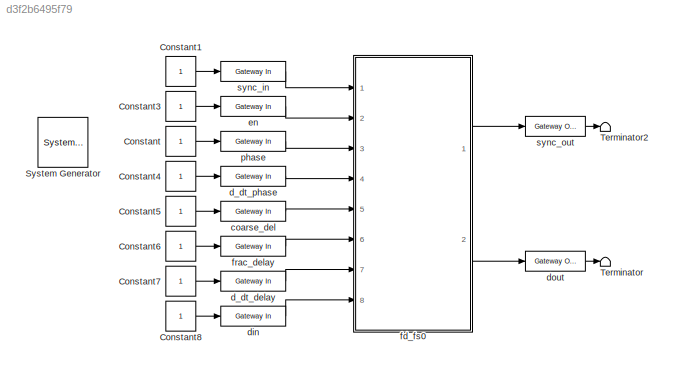
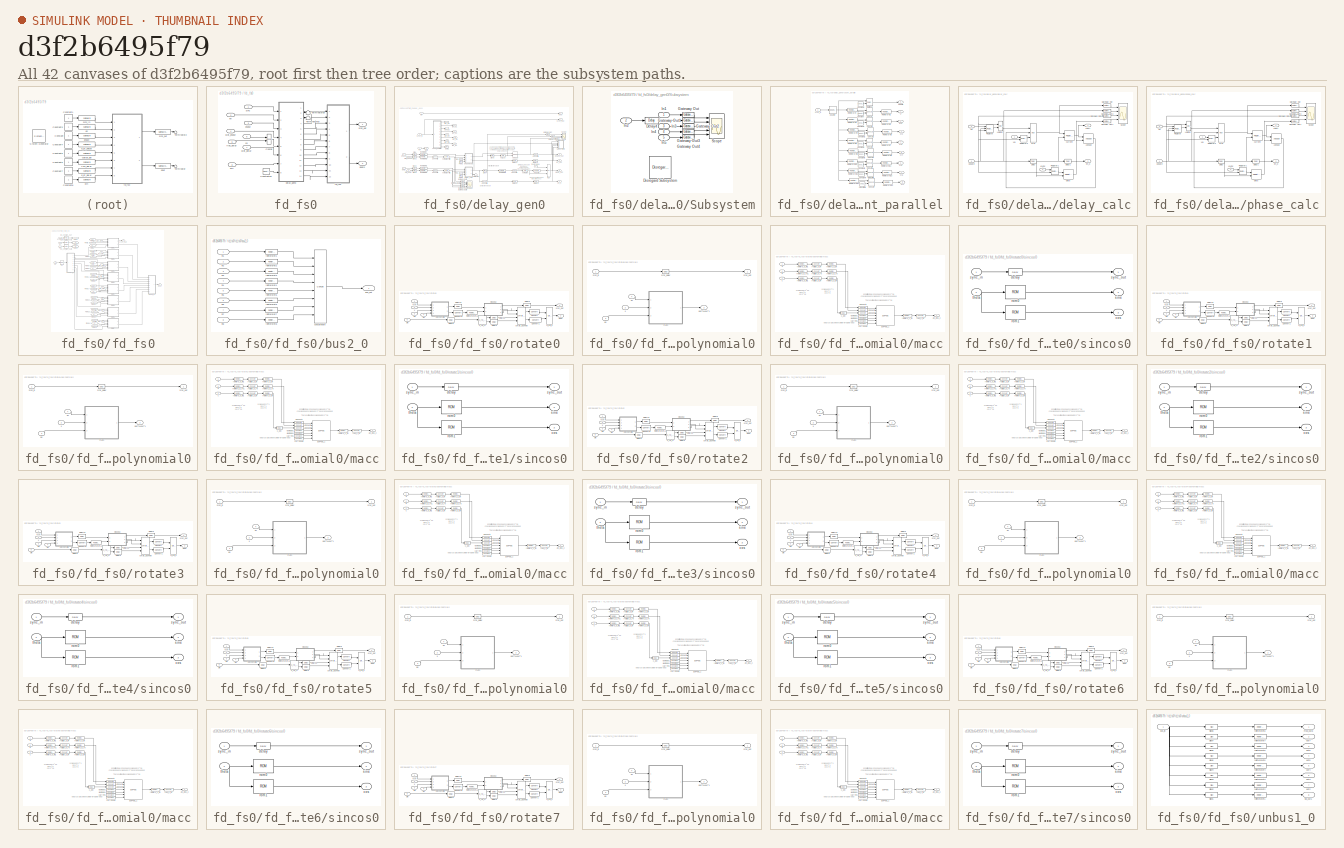
[diagram: thumbnail index - all 42 canvases of the model, root first then tree order]
MODEL slx_d3f2b6495f79
KIND model
BLOCK [Reference]  System Generator  REF=xbsIndex_r4/ System Generator
  AttributesFormatString = System\nGenerator
  Impl_file = ISE Defaults
  Ports = []
  SourceBlock = xbsIndex_r4/ System Generator
  SourceType = Xilinx System Generator Block
  Synth_file = XST Defaults
  Tag = genX
  UserDataPersistent = on
  block_type = sysgen
  clock_wrapper = Clock Enables
  core_generation = According to Block Masks
  dbl_ovrd = According to Block Masks
  dcm_input_clock_period = 10
  deprecated_control = off
  directory = ./fine_delay_core
  eval_field = 0
  has_advanced_control = 0
  incr_netlist = off
  infoedit = System Generator
  package = ff1759
  part = xc6vsx475t
  proj_type = Project Navigator
  run_coregen = off
  sg_icon_stat = 50,50,0,0,token,white,0,58c5b5770fe5f7c311f53dbc6e73f0f6,right,,[ ],[ ]
  sg_mask_display = fprintf('','COMMENT: begin icon graphics');\npatch([0 50 50 0 0 ],[0 0 50 50 0 ],[1 1 1 ]);\npatch([1.6375 16.81 27.31 37.81 48.31 27.31 12.1375 1.6375 ],[36.655 36.655 47.155 36.655 47.155 47.155 47.155 36.655 ],[0.933333 0.203922 0.141176 ]);\npatch([12.1375 27.31 16.81 1.6375 12.1375 ],[26.155 26.155 36.655 36.655 26.155 ],[0.698039 0.0313725 0.219608 ]);\npatch([1.6375 16.81 27.31 12.1375 1.6375 ]...<+327ch>
  sggui_pos = 326,245,464,466
  simulink_period = 1
  speed = -1
  synthesis_tool = XST
  sysclk_period = 10
  testbench = off
  trim_vbits = Everywhere in SubSystem
  xilinxfamily = virtex6
BLOCK [Constant] Constant
BLOCK [Constant] Constant1
BLOCK [Constant] Constant3
BLOCK [Constant] Constant4
BLOCK [Constant] Constant5
BLOCK [Constant] Constant6
BLOCK [Constant] Constant7
BLOCK [Constant] Constant8
BLOCK [Terminator] Terminator
BLOCK [Terminator] Terminator2
BLOCK [Reference] coarse_del  REF=xbsIndex_r4/Gateway In
  ADCChannel = '1'
  LOCs = {}
  Ports = [1, 1]
  SourceBlock = xbsIndex_r4/Gateway In
  SourceType = Xilinx Gateway In Block
  UseAsADC = off
  arith_type = Unsigned
  bin_pt = 0
  block_type = gatewayin
  dbl_ovrd = off
  exp_width = 8
  frac_width = 24
  gui_display_data_type = Fixed-point
  has_advanced_control = 0
  hdl_port = on
  infoedit = Gateway in block.  Converts inputs of type Simulink integer, single, double and fixed-point to  Xilinx fixed-point or floating-point data type.<br><br>Hardware notes:  In hardware these blocks become top level input ports.  <repeated x8 — deduplicated; at blocks: coarse_del, d_dt_delay, d_dt_phase, din, en, frac_delay, phase, sync_in>
  inherit_from_input = off
  locs_specified = off
  n_bits = 15
  overflow = Saturate
  period = 1
  preci_type = Single
  quantization = Round  (unbiased: +/- Inf)
  sg_icon_stat = 65,20,1,1,white,yellow,1,00d3666e,right,,[ ],[ ]
  sg_mask_display = fprintf('','COMMENT: begin icon graphics');\npatch([0 65 65 0 0 ],[0 0 20 20 0 ],[0.95 0.93 0.65 ]);\nplot([0 65 65 0 0 ],[0 0 20 20 0 ]);\npatch([27.55 30.44 32.44 34.44 36.44 32.44 29.55 27.55 ],[12.22 12.22 14.22 12.22 14.22 14.22 14.22 12.22 ],[1 1 1 ]);\npatch([29.55 32.44 30.44 27.55 29.55 ],[10.22 10.22 12.22 12.22 10.22 ],[0.985 0.979 0.895 ]);\npatch([27.55 30.44 32.44 29.55 27.55 ],[8.22 8.22...<+383ch>  <repeated x8 — deduplicated; at blocks: coarse_del, d_dt_delay, d_dt_phase, din, en, frac_delay, phase, sync_in>
  sggui_pos = 20,20,437,705
  timing_constraint = None
  xl_area = [0,0,0,0,0,0,0]
  xl_use_area = off
BLOCK [Reference] d_dt_delay  REF=xbsIndex_r4/Gateway In
  ADCChannel = '1'
  LOCs = {}
  Ports = [1, 1]
  SourceBlock = xbsIndex_r4/Gateway In
  SourceType = Xilinx Gateway In Block
  UseAsADC = off
  arith_type = Unsigned
  bin_pt = 0
  block_type = gatewayin
  dbl_ovrd = off
  exp_width = 8
  frac_width = 24
  gui_display_data_type = Fixed-point
  has_advanced_control = 0
  hdl_port = on
  inherit_from_input = off
  locs_specified = off
  n_bits = 16
  overflow = Saturate
  period = 1
  preci_type = Single
  quantization = Round  (unbiased: +/- Inf)
  sg_icon_stat = 65,20,1,1,white,yellow,1,00d3666e,right,,[ ],[ ]
  sggui_pos = 20,20,437,705
  timing_constraint = None
  xl_area = [0,0,0,0,0,0,0]
  xl_use_area = off
BLOCK [Reference] d_dt_phase  REF=xbsIndex_r4/Gateway In
  ADCChannel = '1'
  LOCs = {}
  Ports = [1, 1]
  SourceBlock = xbsIndex_r4/Gateway In
  SourceType = Xilinx Gateway In Block
  UseAsADC = off
  arith_type = Unsigned
  bin_pt = 0
  block_type = gatewayin
  dbl_ovrd = off
  exp_width = 8
  frac_width = 24
  gui_display_data_type = Fixed-point
  has_advanced_control = 0
  hdl_port = on
  inherit_from_input = off
  locs_specified = off
  n_bits = 16
  overflow = Saturate
  period = 1
  preci_type = Single
  quantization = Round  (unbiased: +/- Inf)
  sg_icon_stat = 65,20,1,1,white,yellow,1,00d3666e,right,,[ ],[ ]
  sggui_pos = 20,20,437,705
  timing_constraint = None
  xl_area = [0,0,0,0,0,0,0]
  xl_use_area = off
BLOCK [Reference] din  REF=xbsIndex_r4/Gateway In
  ADCChannel = '1'
  LOCs = {}
  Ports = [1, 1]
  SourceBlock = xbsIndex_r4/Gateway In
  SourceType = Xilinx Gateway In Block
  UseAsADC = off
  arith_type = Unsigned
  bin_pt = 0
  block_type = gatewayin
  dbl_ovrd = off
  exp_width = 8
  frac_width = 24
  gui_display_data_type = Fixed-point
  has_advanced_control = 0
  hdl_port = on
  inherit_from_input = off
  locs_specified = off
  n_bits = 8*36
  overflow = Saturate
  period = 1
  preci_type = Single
  quantization = Round  (unbiased: +/- Inf)
  sg_icon_stat = 65,20,1,1,white,yellow,1,00d3666e,right,,[ ],[ ]
  sggui_pos = 20,20,437,705
  timing_constraint = None
  xl_area = [0,0,0,0,0,0,0]
  xl_use_area = off
BLOCK [Reference] dout  REF=xbsIndex_r4/Gateway Out
  DACChannel = '1'
  LOCs = {}
  Ports = [1, 1]
  SourceBlock = xbsIndex_r4/Gateway Out
  SourceType = Xilinx Gateway Out Block
  UseAsDAC = off
  block_type = gatewayout
  has_advanced_control = 0
  hdl_port = on
  infoedit = Gateway out block.  Converts Xilinx fixed-point or floating-point type inputs into ouputs of type Simulink integer, single, double, or fixed-point.<br><br>Hardware notes:  In hardware these blocks become top level output ports or are discarded, depending on how they are configured.
  inherit_from_input = off
  locs_specified = off
  sg_icon_stat = 60,20,1,1,white,yellow,1,cc31b7ac,right,,[ ],[ ]
  sg_mask_display = fprintf('','COMMENT: begin icon graphics');\npatch([0 60 60 0 0 ],[0 0 20 20 0 ],[0.95 0.93 0.65 ]);\nplot([0 60 60 0 0 ],[0 0 20 20 0 ]);\npatch([25.55 28.44 30.44 32.44 34.44 30.44 27.55 25.55 ],[12.22 12.22 14.22 12.22 14.22 14.22 14.22 12.22 ],[1 1 1 ]);\npatch([27.55 30.44 28.44 25.55 27.55 ],[10.22 10.22 12.22 12.22 10.22 ],[0.985 0.979 0.895 ]);\npatch([25.55 28.44 30.44 27.55 25.55 ],[8.22 8.22...<+384ch>
  sggui_pos = -1,-1,-1,-1
  timing_constraint = None
  xl_area = [0,0,0,0,0,0,0]
  xl_use_area = off
BLOCK [Reference] en  REF=xbsIndex_r4/Gateway In
  ADCChannel = '1'
  LOCs = {}
  Ports = [1, 1]
  SourceBlock = xbsIndex_r4/Gateway In
  SourceType = Xilinx Gateway In Block
  UseAsADC = off
  arith_type = Boolean
  bin_pt = 14
  block_type = gatewayin
  dbl_ovrd = off
  exp_width = 8
  frac_width = 24
  gui_display_data_type = Boolean
  has_advanced_control = 0
  hdl_port = on
  inherit_from_input = off
  locs_specified = off
  n_bits = 16
  overflow = Saturate
  period = 1
  preci_type = Single
  quantization = Round  (unbiased: +/- Inf)
  sg_icon_stat = 65,20,1,1,white,yellow,1,00d3666e,right,,[ ],[ ]
  sggui_pos = 20,20,437,705
  timing_constraint = None
  xl_area = [0,0,0,0,0,0,0]
  xl_use_area = off
BLOCK [SubSystem] fd_fs0
  FunctionWithSeparateData = off
  MaskHideContents = off
  MinAlgLoopOccurrences = off
  Opaque = off
  Ports = [8, 2]
  PropExecContextOutsideSubsystem = off
  RTWSystemCode = Auto
  RequestExecContextInheritance = off
BLOCK [Reference] fd_fs0/Concat  REF=xbsIndex_r4/Concat
  Ports = [2, 1]
  SourceBlock = xbsIndex_r4/Concat
  SourceType = Xilinx Bus Concatenator Block
  block_type = concat
  block_version = 11.4
  dbl_ovrd = off
  has_advanced_control = 0
  infoedit = Concatenates two or more inputs.  Output will be cast to an unsigned value with the binary point at zero.
  num_inputs = 2
  sg_icon_stat = 15,38,2,1,white,blue,0,16398980,right,,[ ],[ ]
  sg_mask_display = fprintf('','COMMENT: begin icon graphics');\npatch([0 15 15 0 0 ],[0 0 38 38 0 ],[0.77 0.82 0.91 ]);\nplot([0 15 15 0 0 ],[0 0 38 38 0 ]);\npatch([2.55 5.44 7.44 9.44 11.44 7.44 4.55 2.55 ],[21.22 21.22 23.22 21.22 23.22 23.22 23.22 21.22 ],[1 1 1 ]);\npatch([4.55 7.44 5.44 2.55 4.55 ],[19.22 19.22 21.22 21.22 19.22 ],[0.931 0.946 0.973 ]);\npatch([2.55 5.44 7.44 4.55 2.55 ],[17.22 17.22 19.22 19.22 17...<+391ch>
  sggui_pos = -1,-1,-1,-1
BLOCK [Reference] fd_fs0/Constant53  REF=xbsIndex_r4/Constant
  Ports = [0, 1]
  SourceBlock = xbsIndex_r4/Constant
  SourceType = Xilinx Constant Block Block
  arith_type = Boolean
  bin_pt = 0
  block_type = constant
  block_version = 11.4
  carry = CIN
  const = 0
  dbl_ovrd = off
  dsp48_infoedit = The use of this block for DSP48 instructions is deprecated.  Please use the Opmode block.
  equ = P=C
  exp_width = 8
  explicit_period = off
  frac_width = 24
  gui_display_data_type = Fixed-point
  has_advanced_control = 0
  inp1 = P
  inp2 = PCIN>>17
  n_bits = 1
  opr = +
  opselect = C
  period = 1
  preci_type = Single
  sg_icon_stat = 25,22,0,1,white,blue,0,bf4ddd8b,right,,[ ],[ ]
  sg_list_contents = {'table'=>{'carry'=>'popup(0|1|CIN|~SIGN(P or PCIN)|~SIGN(A*B or A:B)|~SIGND(A*B or A:B))','inp1'=>'popup(0|P|A:B|A*B|C|P+C|A:B+C)','inp2'=>'popup(0|PCIN|P|C|PCIN>>17|P>>17)','opselect'=>'popup(C + A*B|PCIN + A*B|P + A*B|A * B|C + A:B|C - A:B|C|Custom)','userSelections'=>{'carry'=>'CIN','inp1'=>'P','inp2'=>'PCIN>>17','opselect'=>'C'}}}  <repeated x16 — deduplicated; at blocks: Constant53, Constant2, Constant3, Constant4, Constant5, Constant6, Constant7, Constant8, alumode1>
  sg_mask_display = fprintf('','COMMENT: begin icon graphics');\npatch([0 25 25 0 0 ],[0 0 22 22 0 ],[0.77 0.82 0.91 ]);\nplot([0 25 25 0 0 ],[0 0 22 22 0 ]);\npatch([5.325 9.66 12.66 15.66 18.66 12.66 8.325 5.325 ],[14.33 14.33 17.33 14.33 17.33 17.33 17.33 14.33 ],[1 1 1 ]);\npatch([8.325 12.66 9.66 5.325 8.325 ],[11.33 11.33 14.33 14.33 11.33 ],[0.931 0.946 0.973 ]);\npatch([5.325 9.66 12.66 8.325 5.325 ],[8.33 8.33 11...<+301ch>
  sggui_pos = 22,98,474,439
BLOCK [Terminator] fd_fs0/Terminator59
BLOCK [Terminator] fd_fs0/Terminator60
BLOCK [Inport] fd_fs0/cd
  IconDisplay = Port number
  Port = 5
BLOCK [Inport] fd_fs0/d//dt_delay
  IconDisplay = Port number
  Port = 7
BLOCK [Inport] fd_fs0/d//dt_phase
  IconDisplay = Port number
  Port = 4
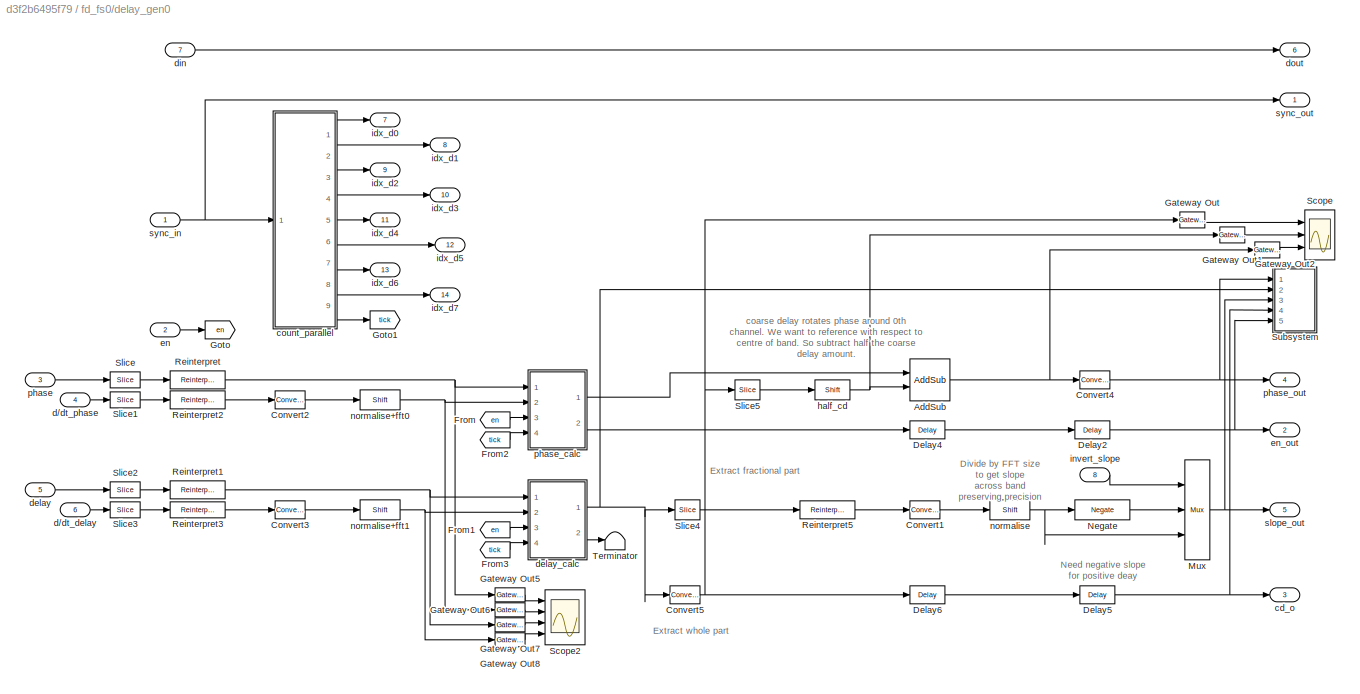
BLOCK [SubSystem] fd_fs0/delay_gen0
  FunctionWithSeparateData = off
  MaskHideContents = off
  MinAlgLoopOccurrences = off
  Opaque = off
  Ports = [8, 14]
  PropExecContextOutsideSubsystem = off
  RTWSystemCode = Auto
  RequestExecContextInheritance = off
BLOCK [Reference] fd_fs0/delay_gen0/AddSub  REF=xbsIndex_r4/AddSub
  Ports = [2, 1]
  SourceBlock = xbsIndex_r4/AddSub
  SourceType = Xilinx Adder/Subtracter Block
  arith_type = Unsigned
  bin_pt = 14
  block_type = addsub
  block_version = 11.4
  dbl_ovrd = off
  en = off
  has_advanced_control = 0
  hw_selection = Fabric
  latency = 0
  mode = Addition
  n_bits = 16
  overflow = Wrap
  pipelined = off
  precision = Full
  quantization = Truncate
  sg_icon_stat = 40,42,2,1,white,blue,0,e139daf6,right,,[ ],[ ]
  sg_mask_display = fprintf('','COMMENT: begin icon graphics');\npatch([0 40 40 0 0 ],[0 0 42 42 0 ],[0.77 0.82 0.91 ]);\nplot([0 40 40 0 0 ],[0 0 42 42 0 ]);\npatch([8.875 16.1 21.1 26.1 31.1 21.1 13.875 8.875 ],[26.55 26.55 31.55 26.55 31.55 31.55 31.55 26.55 ],[1 1 1 ]);\npatch([13.875 21.1 16.1 8.875 13.875 ],[21.55 21.55 26.55 26.55 21.55 ],[0.931 0.946 0.973 ]);\npatch([8.875 16.1 21.1 13.875 8.875 ],[16.55 16.55 21...<+416ch>
  sggui_pos = 22,49,419,344
  use_behavioral_HDL = off
  use_carryin = off
  use_carryout = off
  xl_area = [0,0,0,0,0,0,0]
  xl_use_area = off
BLOCK [Reference] fd_fs0/delay_gen0/Convert1  REF=xbsIndex_r4/Convert
  Ports = [1, 1]
  SourceBlock = xbsIndex_r4/Convert
  SourceType = Xilinx Type Converter Block
  arith_type = Signed  (2's comp)
  bin_pt = lookup_bits + fft_len -1
  block_type = convert
  block_version = 10.1.3
  dbl_ovrd = off
  en = off
  exp_bits = 8
  float_type = Single
  fraction_bits = 24
  gui_display_data_type = Fixed-point
  has_advanced_control = 0
  infoedit = Hardware notes: rounding and saturating require hardware resources; truncating and wrapping do not.
  latency = 1
  n_bits = lookup_bits + fft_len
  overflow = Wrap
  pipeline = on
  quantization = Round  (unbiased: +/- Inf)
  sg_icon_stat = 30,18,1,1,white,blue,0,0c6bad53,right,,[ ],[ ]
  sg_mask_display = fprintf('','COMMENT: begin icon graphics');\npatch([0 30 30 0 0 ],[0 0 18 18 0 ],[0.77 0.82 0.91 ]);\nplot([0 30 30 0 0 ],[0 0 18 18 0 ]);\npatch([10.55 13.44 15.44 17.44 19.44 15.44 12.55 10.55 ],[11.22 11.22 13.22 11.22 13.22 13.22 13.22 11.22 ],[1 1 1 ]);\npatch([12.55 15.44 13.44 10.55 12.55 ],[9.22 9.22 11.22 11.22 9.22 ],[0.931 0.946 0.973 ]);\npatch([10.55 13.44 15.44 12.55 10.55 ],[7.22 7.22 9....<+388ch>
  sggui_pos = 524,82,797,590
  xl_area = [0,0,0,0,0,0,0]
  xl_use_area = off
BLOCK [Reference] fd_fs0/delay_gen0/Convert2  REF=xbsIndex_r4/Convert
  Ports = [1, 1]
  SourceBlock = xbsIndex_r4/Convert
  SourceType = Xilinx Type Converter Block
  arith_type = Signed  (2's comp)
  bin_pt = min_fringe_rate-fft_len
  block_type = convert
  block_version = 10.1.3
  dbl_ovrd = off
  en = off
  exp_bits = 8
  float_type = Single
  fraction_bits = 24
  gui_display_data_type = Fixed-point
  has_advanced_control = 0
  infoedit = Hardware notes: rounding and saturating require hardware resources; truncating and wrapping do not.
  latency = 0
  n_bits = min_fringe_rate-fft_len+1
  overflow = Wrap
  pipeline = on
  quantization = Truncate
  sg_icon_stat = 30,18,1,1,white,blue,0,edca21da,right,,[ ],[ ]
  sg_mask_display = fprintf('','COMMENT: begin icon graphics');\npatch([0 30 30 0 0 ],[0 0 18 18 0 ],[0.77 0.82 0.91 ]);\nplot([0 30 30 0 0 ],[0 0 18 18 0 ]);\npatch([10.55 13.44 15.44 17.44 19.44 15.44 12.55 10.55 ],[11.22 11.22 13.22 11.22 13.22 13.22 13.22 11.22 ],[1 1 1 ]);\npatch([12.55 15.44 13.44 10.55 12.55 ],[9.22 9.22 11.22 11.22 9.22 ],[0.931 0.946 0.973 ]);\npatch([10.55 13.44 15.44 12.55 10.55 ],[7.22 7.22 9....<+304ch>  <repeated x4 — deduplicated; at blocks: Convert2, Convert3, Convert4, Convert5>
  sggui_pos = 818,440,797,590
  xl_area = [0,0,0,0,0,0,0]
  xl_use_area = off
BLOCK [Reference] fd_fs0/delay_gen0/Convert3  REF=xbsIndex_r4/Convert
  Ports = [1, 1]
  SourceBlock = xbsIndex_r4/Convert
  SourceType = Xilinx Type Converter Block
  arith_type = Signed  (2's comp)
  bin_pt = min_delay_rate-fft_len
  block_type = convert
  block_version = 10.1.3
  dbl_ovrd = off
  en = off
  exp_bits = 8
  float_type = Single
  fraction_bits = 24
  gui_display_data_type = Fixed-point
  has_advanced_control = 0
  infoedit = Hardware notes: rounding and saturating require hardware resources; truncating and wrapping do not.
  latency = 0
  n_bits = min_delay_rate-fft_len+1
  overflow = Wrap
  pipeline = on
  quantization = Truncate
  sg_icon_stat = 30,18,1,1,white,blue,0,edca21da,right,,[ ],[ ]
  sggui_pos = 837,581,797,590
  xl_area = [0,0,0,0,0,0,0]
  xl_use_area = off
BLOCK [Reference] fd_fs0/delay_gen0/Convert4  REF=xbsIndex_r4/Convert
  Ports = [1, 1]
  SourceBlock = xbsIndex_r4/Convert
  SourceType = Xilinx Type Converter Block
  arith_type = Signed  (2's comp)
  bin_pt = max(phase_bits-1, min_fringe_rate-fft_len)
  block_type = convert
  block_version = 10.1.3
  dbl_ovrd = off
  en = off
  exp_bits = 8
  float_type = Single
  fraction_bits = 24
  gui_display_data_type = Fixed-point
  has_advanced_control = 0
  infoedit = Hardware notes: rounding and saturating require hardware resources; truncating and wrapping do not.
  latency = 0
  n_bits = max(phase_bits, min_fringe_rate-fft_len+1)
  overflow = Wrap
  pipeline = on
  quantization = Truncate
  sg_icon_stat = 30,18,1,1,white,blue,0,edca21da,right,,[ ],[ ]
  sggui_pos = 794,476,797,659
  xl_area = [0,0,0,0,0,0,0]
  xl_use_area = off
BLOCK [Reference] fd_fs0/delay_gen0/Convert5  REF=xbsIndex_r4/Convert
  Ports = [1, 1]
  SourceBlock = xbsIndex_r4/Convert
  SourceType = Xilinx Type Converter Block
  arith_type = Unsigned
  bin_pt = 0
  block_type = convert
  block_version = 10.1.3
  dbl_ovrd = off
  en = off
  exp_bits = 8
  float_type = Single
  fraction_bits = 24
  gui_display_data_type = Fixed-point
  has_advanced_control = 0
  infoedit = Hardware notes: rounding and saturating require hardware resources; truncating and wrapping do not.
  latency = 0
  n_bits = cd_bits
  overflow = Wrap
  pipeline = on
  quantization = Truncate
  sg_icon_stat = 30,18,1,1,white,blue,0,edca21da,right,,[ ],[ ]
  sggui_pos = 92,556,797,590
  xl_area = [0,0,0,0,0,0,0]
  xl_use_area = off
BLOCK [Reference] fd_fs0/delay_gen0/Delay2  REF=xbsIndex_r4/Delay
  Ports = [1, 1]
  SourceBlock = xbsIndex_r4/Delay
  SourceType = Xilinx Delay Block
  block_type = delay
  block_version = 11.4
  dbl_ovrd = off
  en = off
  has_advanced_control = 0
  infoedit = Hardware notes: A delay line is a chain, each link of which is an SRL16 followed by a flip-flop.
  infoeditControl = Selection of Reset will increase slice count due to use of real FFs and instead of SRLs
  latency = 1
  reg_retiming = on
  rst = off
  sg_icon_stat = 35,18,1,1,white,blue,0,07b98262,right,,[ ],[ ]
  sg_mask_display = fprintf('','COMMENT: begin icon graphics');\npatch([0 35 35 0 0 ],[0 0 18 18 0 ],[0.77 0.82 0.91 ]);\nplot([0 35 35 0 0 ],[0 0 18 18 0 ]);\npatch([12.55 15.44 17.44 19.44 21.44 17.44 14.55 12.55 ],[11.22 11.22 13.22 11.22 13.22 13.22 13.22 11.22 ],[1 1 1 ]);\npatch([14.55 17.44 15.44 12.55 14.55 ],[9.22 9.22 11.22 11.22 9.22 ],[0.931 0.946 0.973 ]);\npatch([12.55 15.44 17.44 14.55 12.55 ],[7.22 7.22 9....<+305ch>  <repeated x5 — deduplicated; at blocks: Delay2, Delay4, Delay5, Delay6>
  sggui_pos = 22,98,419,315
  xl_area = [0,0,0,0,0,0,0]
  xl_use_area = off
BLOCK [Reference] fd_fs0/delay_gen0/Delay4  REF=xbsIndex_r4/Delay
  Ports = [1, 1]
  SourceBlock = xbsIndex_r4/Delay
  SourceType = Xilinx Delay Block
  block_type = delay
  block_version = 11.4
  dbl_ovrd = off
  en = off
  has_advanced_control = 0
  infoedit = Hardware notes: A delay line is a chain, each link of which is an SRL16 followed by a flip-flop.
  infoeditControl = Selection of Reset will increase slice count due to use of real FFs and instead of SRLs
  latency = 1
  reg_retiming = on
  rst = off
  sg_icon_stat = 35,18,1,1,white,blue,0,07b98262,right,,[ ],[ ]
  sggui_pos = 23,125,419,315
  xl_area = [0,0,0,0,0,0,0]
  xl_use_area = off
BLOCK [Reference] fd_fs0/delay_gen0/Delay5  REF=xbsIndex_r4/Delay
  Ports = [1, 1]
  SourceBlock = xbsIndex_r4/Delay
  SourceType = Xilinx Delay Block
  block_type = delay
  block_version = 11.4
  dbl_ovrd = off
  en = off
  has_advanced_control = 0
  infoedit = Hardware notes: A delay line is a chain, each link of which is an SRL16 followed by a flip-flop.
  infoeditControl = Selection of Reset will increase slice count due to use of real FFs and instead of SRLs
  latency = 1
  reg_retiming = on
  rst = off
  sg_icon_stat = 35,18,1,1,white,blue,0,07b98262,right,,[ ],[ ]
  sggui_pos = 23,125,419,315
  xl_area = [0,0,0,0,0,0,0]
  xl_use_area = off
BLOCK [Reference] fd_fs0/delay_gen0/Delay6  REF=xbsIndex_r4/Delay
  Ports = [1, 1]
  SourceBlock = xbsIndex_r4/Delay
  SourceType = Xilinx Delay Block
  block_type = delay
  block_version = 11.4
  dbl_ovrd = off
  en = off
  has_advanced_control = 0
  infoedit = Hardware notes: A delay line is a chain, each link of which is an SRL16 followed by a flip-flop.
  infoeditControl = Selection of Reset will increase slice count due to use of real FFs and instead of SRLs
  latency = 1
  reg_retiming = on
  rst = off
  sg_icon_stat = 35,18,1,1,white,blue,0,07b98262,right,,[ ],[ ]
  sggui_pos = 23,125,419,315
  xl_area = [0,0,0,0,0,0,0]
  xl_use_area = off
BLOCK [From] fd_fs0/delay_gen0/From
  CloseFcn = tagdialog Close
  GotoTag = en
BLOCK [From] fd_fs0/delay_gen0/From1
  CloseFcn = tagdialog Close
  GotoTag = en
BLOCK [From] fd_fs0/delay_gen0/From2
  CloseFcn = tagdialog Close
  GotoTag = tick
BLOCK [From] fd_fs0/delay_gen0/From3
  CloseFcn = tagdialog Close
  GotoTag = tick
BLOCK [Reference] fd_fs0/delay_gen0/Gateway Out  REF=xbsIndex_r4/Gateway Out
  DACChannel = '1'
  LOCs = {}
  Ports = [1, 1]
  SourceBlock = xbsIndex_r4/Gateway Out
  SourceType = Xilinx Gateway Out Block
  UseAsDAC = off
  block_type = gatewayout
  block_version = 11.4
  has_advanced_control = 0
  hdl_port = off
  infoedit = Gateway out block.  Converts Xilinx fixed point inputs into ouputs of type Simulink integer, double, or fixed point.<br><br>Hardware notes:  In hardware these blocks become top level output ports or are discarded, depending on how they are configured.  <repeated x20 — deduplicated; at blocks: Gateway Out, Gateway Out1, Gateway Out2, Gateway Out5, Gateway Out6, Gateway Out7, Gateway Out8, Gateway Out3, Gateway Out4>
  inherit_from_input = off
  locs_specified = off
  sg_icon_stat = 25,16,1,1,white,grey,1,632ec840,right,,[ ],[ ]
  sg_mask_display = fprintf('','COMMENT: begin icon graphics');\npatch([0 25 25 0 0 ],[0 0 16 16 0 ],[0.88 0.88 0.88 ]);\nplot([0 25 25 0 0 ],[0 0 16 16 0 ]);\npatch([7.55 10.44 12.44 14.44 16.44 12.44 9.55 7.55 ],[10.22 10.22 12.22 10.22 12.22 12.22 12.22 10.22 ],[1 1 1 ]);\npatch([9.55 12.44 10.44 7.55 9.55 ],[8.22 8.22 10.22 10.22 8.22 ],[0.964 0.964 0.964 ]);\npatch([7.55 10.44 12.44 9.55 7.55 ],[6.22 6.22 8.22 8.22 6...<+364ch>  <repeated x3 — deduplicated; at blocks: Gateway Out, Gateway Out1, Gateway Out2>
  sggui_pos = 20,50,403,473
  timing_constraint = None
  xl_area = [0,0,0,0,0,0,0]
  xl_use_area = off
BLOCK [Reference] fd_fs0/delay_gen0/Gateway Out1  REF=xbsIndex_r4/Gateway Out
  DACChannel = '1'
  LOCs = {}
  Ports = [1, 1]
  SourceBlock = xbsIndex_r4/Gateway Out
  SourceType = Xilinx Gateway Out Block
  UseAsDAC = off
  block_type = gatewayout
  block_version = 11.4
  has_advanced_control = 0
  hdl_port = off
  inherit_from_input = off
  locs_specified = off
  sg_icon_stat = 25,16,1,1,white,grey,1,632ec840,right,,[ ],[ ]
  sggui_pos = 20,50,403,473
  timing_constraint = None
  xl_area = [0,0,0,0,0,0,0]
  xl_use_area = off
BLOCK [Reference] fd_fs0/delay_gen0/Gateway Out2  REF=xbsIndex_r4/Gateway Out
  DACChannel = '1'
  LOCs = {}
  Ports = [1, 1]
  SourceBlock = xbsIndex_r4/Gateway Out
  SourceType = Xilinx Gateway Out Block
  UseAsDAC = off
  block_type = gatewayout
  block_version = 11.4
  has_advanced_control = 0
  hdl_port = off
  inherit_from_input = off
  locs_specified = off
  sg_icon_stat = 25,16,1,1,white,grey,1,632ec840,right,,[ ],[ ]
  sggui_pos = 20,50,403,473
  timing_constraint = None
  xl_area = [0,0,0,0,0,0,0]
  xl_use_area = off
BLOCK [Reference] fd_fs0/delay_gen0/Gateway Out5  REF=xbsIndex_r4/Gateway Out
  DACChannel = '1'
  LOCs = {}
  Ports = [1, 1]
  SourceBlock = xbsIndex_r4/Gateway Out
  SourceType = Xilinx Gateway Out Block
  UseAsDAC = off
  block_type = gatewayout
  block_version = 11.4
  has_advanced_control = 0
  hdl_port = off
  inherit_from_input = off
  locs_specified = off
  sg_icon_stat = 30,14,1,1,white,grey,1,632ec840,right,,[ ],[ ]
  sg_mask_display = fprintf('','COMMENT: begin icon graphics');\npatch([0 30 30 0 0 ],[0 0 14 14 0 ],[0.88 0.88 0.88 ]);\nplot([0 30 30 0 0 ],[0 0 14 14 0 ]);\npatch([10.55 13.44 15.44 17.44 19.44 15.44 12.55 10.55 ],[9.22 9.22 11.22 9.22 11.22 11.22 11.22 9.22 ],[1 1 1 ]);\npatch([12.55 15.44 13.44 10.55 12.55 ],[7.22 7.22 9.22 9.22 7.22 ],[0.964 0.964 0.964 ]);\npatch([10.55 13.44 15.44 12.55 10.55 ],[5.22 5.22 7.22 7.2...<+370ch>  <repeated x9 — deduplicated; at blocks: Gateway Out5, Gateway Out6, Gateway Out7, Gateway Out8, Gateway Out, Gateway Out1, Gateway Out2, Gateway Out3, Gateway Out4>
  sggui_pos = 21,71,403,473
  timing_constraint = None
  xl_area = [0,0,0,0,0,0,0]
  xl_use_area = off
BLOCK [Reference] fd_fs0/delay_gen0/Gateway Out6  REF=xbsIndex_r4/Gateway Out
  DACChannel = '1'
  LOCs = {}
  Ports = [1, 1]
  SourceBlock = xbsIndex_r4/Gateway Out
  SourceType = Xilinx Gateway Out Block
  UseAsDAC = off
  block_type = gatewayout
  block_version = 11.4
  has_advanced_control = 0
  hdl_port = off
  inherit_from_input = off
  locs_specified = off
  sg_icon_stat = 30,14,1,1,white,grey,1,632ec840,right,,[ ],[ ]
  sggui_pos = 21,71,403,473
  timing_constraint = None
  xl_area = [0,0,0,0,0,0,0]
  xl_use_area = off
BLOCK [Reference] fd_fs0/delay_gen0/Gateway Out7  REF=xbsIndex_r4/Gateway Out
  DACChannel = '1'
  LOCs = {}
  Ports = [1, 1]
  SourceBlock = xbsIndex_r4/Gateway Out
  SourceType = Xilinx Gateway Out Block
  UseAsDAC = off
  block_type = gatewayout
  block_version = 11.4
  has_advanced_control = 0
  hdl_port = off
  inherit_from_input = off
  locs_specified = off
  sg_icon_stat = 30,14,1,1,white,grey,1,632ec840,right,,[ ],[ ]
  sggui_pos = 21,71,403,473
  timing_constraint = None
  xl_area = [0,0,0,0,0,0,0]
  xl_use_area = off
BLOCK [Reference] fd_fs0/delay_gen0/Gateway Out8  REF=xbsIndex_r4/Gateway Out
  DACChannel = '1'
  LOCs = {}
  Ports = [1, 1]
  SourceBlock = xbsIndex_r4/Gateway Out
  SourceType = Xilinx Gateway Out Block
  UseAsDAC = off
  block_type = gatewayout
  block_version = 11.4
  has_advanced_control = 0
  hdl_port = off
  inherit_from_input = off
  locs_specified = off
  sg_icon_stat = 30,14,1,1,white,grey,1,632ec840,right,,[ ],[ ]
  sggui_pos = 21,71,403,473
  timing_constraint = None
  xl_area = [0,0,0,0,0,0,0]
  xl_use_area = off
BLOCK [Goto] fd_fs0/delay_gen0/Goto
  GotoTag = en
BLOCK [Goto] fd_fs0/delay_gen0/Goto1
  GotoTag = tick
BLOCK [Reference] fd_fs0/delay_gen0/Mux  REF=xbsIndex_r4/Mux
  Ports = [3, 1]
  SourceBlock = xbsIndex_r4/Mux
  SourceType = Xilinx Bus Multiplexer Block
  arith_type = Unsigned
  bin_pt = 14
  block_type = mux
  block_version = 11.4
  dbl_ovrd = off
  en = off
  has_advanced_control = 0
  inputs = 2
  latency = 0
  n_bits = 16
  overflow = Wrap
  precision = Full
  quantization = Truncate
  sg_icon_stat = 25,100,3,1,white,blue,3,eb98d690,right,,[ ],[ ]
  sg_list_contents = {'table'=>{'inputs'=>'popup(2|3|4|5|6|7|8|9|10|11|12|13|14|15|16|17|18|19|20|21|22|23|24|25|26|27|28|29|30|31|32)','userSelections'=>{'inputs'=>'2'}}}
  sg_mask_display = fprintf('','COMMENT: begin icon graphics');\npatch([0 25 25 0 0 ],[0 14.2857 85.7143 100 0 ],[0.77 0.82 0.91 ]);\nplot([0 25 25 0 0 ],[0 14.2857 85.7143 100 0 ]);\npatch([5.325 9.66 12.66 15.66 18.66 12.66 8.325 5.325 ],[53.33 53.33 56.33 53.33 56.33 56.33 56.33 53.33 ],[1 1 1 ]);\npatch([8.325 12.66 9.66 5.325 8.325 ],[50.33 50.33 53.33 53.33 50.33 ],[0.931 0.946 0.973 ]);\npatch([5.325 9.66 12.66 8.3...<+468ch>
  sggui_pos = 21,71,419,344
  xl_area = [0,0,0,0,0,0,0]
  xl_use_area = off
BLOCK [Reference] fd_fs0/delay_gen0/Negate  REF=xbsIndex_r4/Negate
  Ports = [1, 1]
  SourceBlock = xbsIndex_r4/Negate
  SourceType = Xilinx Negate Block Block
  arith_type = Signed  (2's comp)
  bin_pt = lookup_bits + fft_len - 1
  block_type = negate
  block_version = 11.4
  dbl_ovrd = off
  en = off
  has_advanced_control = 0
  latency = 1
  n_bits = lookup_bits + fft_len
  overflow = Wrap
  precision = User Defined
  quantization = Truncate
  sg_icon_stat = 55,20,1,1,white,blue,0,fc5ddbd7,right,,[ ],[ ]
  sg_mask_display = fprintf('','COMMENT: begin icon graphics');\npatch([0 55 55 0 0 ],[0 0 20 20 0 ],[0.77 0.82 0.91 ]);\nplot([0 55 55 0 0 ],[0 0 20 20 0 ]);\npatch([22.55 25.44 27.44 29.44 31.44 27.44 24.55 22.55 ],[12.22 12.22 14.22 12.22 14.22 14.22 14.22 12.22 ],[1 1 1 ]);\npatch([24.55 27.44 25.44 22.55 24.55 ],[10.22 10.22 12.22 12.22 10.22 ],[0.931 0.946 0.973 ]);\npatch([22.55 25.44 27.44 24.55 22.55 ],[8.22 8.22...<+378ch>
  sggui_pos = 24,95,419,441
  xl_area = [0,0,0,0,0,0,0]
  xl_use_area = off
BLOCK [Reference] fd_fs0/delay_gen0/Reinterpret  REF=xbsIndex_r4/Reinterpret
  Ports = [1, 1]
  SourceBlock = xbsIndex_r4/Reinterpret
  SourceType = Xilinx Type Reinterpreter Block
  arith_type = Signed  (2's comp)
  bin_pt = phase_bits-1
  block_type = reinterpret
  block_version = 11.4
  force_arith_type = on
  force_bin_pt = on
  has_advanced_control = 0
  infoedit = Changes signal type without altering the binary representation.   You can changed the signal between signed and unsigned, and relocate the binary point.<br><br>Hardware notes: In hardware this block costs nothing.<br><br>Example:  Suppose the input is 6 bits wide, signed, with 2 fractional bits, and the output is forced to unsigned with 0 fractional bits.  Then an input of -2.0 (1110.00 in binary ...<+59ch>  <repeated x47 — deduplicated; at blocks: Reinterpret, Reinterpret1, Reinterpret2, Reinterpret3, Reinterpret5, Reinterpret10, Reinterpret11, Reinterpret12, Reinterpret13, Reinterpret14, Reinterpret15, Reinterpret4, Reinterpret6, Reinterpret7, Reinterpret8, Reinterpret9, +4 more>
  sg_icon_stat = 55,18,1,1,white,blue,0,6b04d0b0,right,,[ ],[ ]
  sg_mask_display = fprintf('','COMMENT: begin icon graphics');\npatch([0 55 55 0 0 ],[0 0 18 18 0 ],[0.77 0.82 0.91 ]);\nplot([0 55 55 0 0 ],[0 0 18 18 0 ]);\npatch([22.55 25.44 27.44 29.44 31.44 27.44 24.55 22.55 ],[11.22 11.22 13.22 11.22 13.22 13.22 13.22 11.22 ],[1 1 1 ]);\npatch([24.55 27.44 25.44 22.55 24.55 ],[9.22 9.22 11.22 11.22 9.22 ],[0.931 0.946 0.973 ]);\npatch([22.55 25.44 27.44 24.55 22.55 ],[7.22 7.22 9....<+295ch>  <repeated x4 — deduplicated; at blocks: Reinterpret, Reinterpret1, Reinterpret2, Reinterpret5>
  sggui_pos = 828,349,374,364
BLOCK [Reference] fd_fs0/delay_gen0/Reinterpret1  REF=xbsIndex_r4/Reinterpret
  Ports = [1, 1]
  SourceBlock = xbsIndex_r4/Reinterpret
  SourceType = Xilinx Type Reinterpreter Block
  arith_type = Unsigned
  bin_pt = delay_bin_pt
  block_type = reinterpret
  block_version = 11.4
  force_arith_type = on
  force_bin_pt = on
  has_advanced_control = 0
  sg_icon_stat = 55,18,1,1,white,blue,0,6b04d0b0,right,,[ ],[ ]
  sggui_pos = 206,322,374,364
BLOCK [Reference] fd_fs0/delay_gen0/Reinterpret2  REF=xbsIndex_r4/Reinterpret
  Ports = [1, 1]
  SourceBlock = xbsIndex_r4/Reinterpret
  SourceType = Xilinx Type Reinterpreter Block
  arith_type = Signed  (2's comp)
  bin_pt = min_fringe_rate-max_fringe_rate
  block_type = reinterpret
  block_version = 11.4
  force_arith_type = on
  force_bin_pt = on
  has_advanced_control = 0
  sg_icon_stat = 55,18,1,1,white,blue,0,6b04d0b0,right,,[ ],[ ]
  sggui_pos = 1094,309,374,364
BLOCK [Reference] fd_fs0/delay_gen0/Reinterpret3  REF=xbsIndex_r4/Reinterpret
  Ports = [1, 1]
  SourceBlock = xbsIndex_r4/Reinterpret
  SourceType = Xilinx Type Reinterpreter Block
  arith_type = Signed  (2's comp)
  bin_pt = min_delay_rate-max_delay_rate
  block_type = reinterpret
  block_version = 11.4
  force_arith_type = on
  force_bin_pt = on
  has_advanced_control = 0
  sg_icon_stat = 55,16,1,1,white,blue,0,6b04d0b0,right,,[ ],[ ]
  sg_mask_display = fprintf('','COMMENT: begin icon graphics');\npatch([0 55 55 0 0 ],[0 0 16 16 0 ],[0.77 0.82 0.91 ]);\nplot([0 55 55 0 0 ],[0 0 16 16 0 ]);\npatch([22.55 25.44 27.44 29.44 31.44 27.44 24.55 22.55 ],[10.22 10.22 12.22 10.22 12.22 12.22 12.22 10.22 ],[1 1 1 ]);\npatch([24.55 27.44 25.44 22.55 24.55 ],[8.22 8.22 10.22 10.22 8.22 ],[0.931 0.946 0.973 ]);\npatch([22.55 25.44 27.44 24.55 22.55 ],[6.22 6.22 8....<+295ch>
  sggui_pos = 651,455,374,364
BLOCK [Reference] fd_fs0/delay_gen0/Reinterpret5  REF=xbsIndex_r4/Reinterpret
  Ports = [1, 1]
  SourceBlock = xbsIndex_r4/Reinterpret
  SourceType = Xilinx Type Reinterpreter Block
  arith_type = Unsigned
  bin_pt = max(delay_bin_pt-1, min_delay_rate-fft_len)
  block_type = reinterpret
  block_version = 11.4
  force_arith_type = on
  force_bin_pt = on
  has_advanced_control = 0
  sg_icon_stat = 55,18,1,1,white,blue,0,6b04d0b0,right,,[ ],[ ]
  sggui_pos = 30,314,458,377
BLOCK [Scope] fd_fs0/delay_gen0/Scope
  DataFormat = StructureWithTime
  Floating = off
  NumInputPorts = 3
  Ports = [3]
  SampleTime = 0
  ShowLegends = off
  YMax = 2~1~1
  YMin = 2~1~1
  ZoomMode = yonly
BLOCK [Scope] fd_fs0/delay_gen0/Scope2
  DataFormat = StructureWithTime
  Floating = off
  LimitDataPoints = off
  NumInputPorts = 4
  Ports = [4]
  SampleTime = 0
  SaveName = ScopeData6
  ShowLegends = off
  YMax = 5~5~5~5
  YMin = -5~-5~-5~-5
  ZoomMode = yonly
BLOCK [Reference] fd_fs0/delay_gen0/Slice  REF=xbsIndex_r4/Slice
  Ports = [1, 1]
  SourceBlock = xbsIndex_r4/Slice
  SourceType = Xilinx Bit Slice Extractor Block
  base0 = LSB of Input
  base1 = MSB of Input
  bit0 = 0
  bit1 = 0
  block_type = slice
  block_version = 11.4
  boolean_output = off
  dbl_ovrd = off
  has_advanced_control = 0
  infoedit = Extracts a given range of bits from each input sample and presents it at the output.  The output type is ordinarily unsigned with binary point at zero, but can be Boolean when the slice is one bit wide.<br><br>Hardware notes: In hardware this block costs nothing.  <repeated x14 — deduplicated; at blocks: Slice, Slice1, Slice2, Slice3, Slice4, Slice5, slice1, slice2, slice3, slice4, slice5, slice6, slice7, slice8>
  mode = Lower Bit Location + Width
  nbits = phase_bits
  sg_icon_stat = 30,16,1,1,white,blue,0,1fd851a7,right,,[ ],[ ]
  sg_mask_display = fprintf('','COMMENT: begin icon graphics');\npatch([0 30 30 0 0 ],[0 0 16 16 0 ],[0.77 0.82 0.91 ]);\nplot([0 30 30 0 0 ],[0 0 16 16 0 ]);\npatch([10.55 13.44 15.44 17.44 19.44 15.44 12.55 10.55 ],[10.22 10.22 12.22 10.22 12.22 12.22 12.22 10.22 ],[1 1 1 ]);\npatch([12.55 15.44 13.44 10.55 12.55 ],[8.22 8.22 10.22 10.22 8.22 ],[0.931 0.946 0.973 ]);\npatch([10.55 13.44 15.44 12.55 10.55 ],[6.22 6.22 8....<+305ch>  <repeated x4 — deduplicated; at blocks: Slice, Slice1, Slice2, Slice3>
  sggui_pos = 801,324,540,482
BLOCK [Reference] fd_fs0/delay_gen0/Slice1  REF=xbsIndex_r4/Slice
  Ports = [1, 1]
  SourceBlock = xbsIndex_r4/Slice
  SourceType = Xilinx Bit Slice Extractor Block
  base0 = LSB of Input
  base1 = MSB of Input
  bit0 = 0
  bit1 = 0
  block_type = slice
  block_version = 11.4
  boolean_output = off
  dbl_ovrd = off
  has_advanced_control = 0
  mode = Lower Bit Location + Width
  nbits = min_fringe_rate-max_fringe_rate+1
  sg_icon_stat = 30,16,1,1,white,blue,0,1fd851a7,right,,[ ],[ ]
  sggui_pos = 989,285,540,482
BLOCK [Reference] fd_fs0/delay_gen0/Slice2  REF=xbsIndex_r4/Slice
  Ports = [1, 1]
  SourceBlock = xbsIndex_r4/Slice
  SourceType = Xilinx Bit Slice Extractor Block
  base0 = LSB of Input
  base1 = MSB of Input
  bit0 = 0
  bit1 = 0
  block_type = slice
  block_version = 11.4
  boolean_output = off
  dbl_ovrd = off
  has_advanced_control = 0
  mode = Lower Bit Location + Width
  nbits = delay_bits
  sg_icon_stat = 30,16,1,1,white,blue,0,1fd851a7,right,,[ ],[ ]
  sggui_pos = 94,445,540,482
BLOCK [Reference] fd_fs0/delay_gen0/Slice3  REF=xbsIndex_r4/Slice
  Ports = [1, 1]
  SourceBlock = xbsIndex_r4/Slice
  SourceType = Xilinx Bit Slice Extractor Block
  base0 = LSB of Input
  base1 = MSB of Input
  bit0 = 0
  bit1 = 0
  block_type = slice
  block_version = 11.4
  boolean_output = off
  dbl_ovrd = off
  has_advanced_control = 0
  mode = Lower Bit Location + Width
  nbits = min_delay_rate-max_delay_rate+1
  sg_icon_stat = 30,16,1,1,white,blue,0,1fd851a7,right,,[ ],[ ]
  sggui_pos = 957,410,540,482
BLOCK [Reference] fd_fs0/delay_gen0/Slice4  REF=xbsIndex_r4/Slice
  Ports = [1, 1]
  SourceBlock = xbsIndex_r4/Slice
  SourceType = Xilinx Bit Slice Extractor Block
  base0 = LSB of Input
  base1 = MSB of Input
  bit0 = 0
  bit1 = 0
  block_type = slice
  block_version = 11.4
  boolean_output = off
  dbl_ovrd = off
  has_advanced_control = 0
  mode = Lower Bit Location + Width
  nbits = max(delay_bin_pt-1, min_delay_rate-fft_len)
  sg_icon_stat = 25,20,1,1,white,blue,0,1fd851a7,right,,[ ],[ ]
  sg_mask_display = fprintf('','COMMENT: begin icon graphics');\npatch([0 25 25 0 0 ],[0 0 20 20 0 ],[0.77 0.82 0.91 ]);\nplot([0 25 25 0 0 ],[0 0 20 20 0 ]);\npatch([7.55 10.44 12.44 14.44 16.44 12.44 9.55 7.55 ],[12.22 12.22 14.22 12.22 14.22 14.22 14.22 12.22 ],[1 1 1 ]);\npatch([9.55 12.44 10.44 7.55 9.55 ],[10.22 10.22 12.22 12.22 10.22 ],[0.931 0.946 0.973 ]);\npatch([7.55 10.44 12.44 9.55 7.55 ],[8.22 8.22 10.22 10...<+298ch>
  sggui_pos = 323,330,540,482
BLOCK [Reference] fd_fs0/delay_gen0/Slice5  REF=xbsIndex_r4/Slice
  Ports = [1, 1]
  SourceBlock = xbsIndex_r4/Slice
  SourceType = Xilinx Bit Slice Extractor Block
  base0 = LSB of Input
  base1 = MSB of Input
  bit0 = 0
  bit1 = 0
  block_type = slice
  block_version = 11.4
  boolean_output = off
  dbl_ovrd = off
  has_advanced_control = 0
  mode = Lower Bit Location + Width
  nbits = 2
  sg_icon_stat = 25,20,1,1,white,blue,0,1fd851a7,right,,[ ],[ ]
  sg_mask_display = fprintf('','COMMENT: begin icon graphics');\npatch([0 25 25 0 0 ],[0 0 20 20 0 ],[0.77 0.82 0.91 ]);\nplot([0 25 25 0 0 ],[0 0 20 20 0 ]);\npatch([7.55 10.44 12.44 14.44 16.44 12.44 9.55 7.55 ],[12.22 12.22 14.22 12.22 14.22 14.22 14.22 12.22 ],[1 1 1 ]);\npatch([9.55 12.44 10.44 7.55 9.55 ],[10.22 10.22 12.22 12.22 10.22 ],[0.931 0.946 0.973 ]);\npatch([7.55 10.44 12.44 9.55 7.55 ],[8.22 8.22 10.22 10...<+298ch>
  sggui_pos = 323,330,540,482
BLOCK [SubSystem] fd_fs0/delay_gen0/Subsystem
  FunctionWithSeparateData = off
  MaskHideContents = off
  MinAlgLoopOccurrences = off
  Opaque = off
  Ports = [5]
  PropExecContextOutsideSubsystem = off
  RTWSystemCode = Auto
  RequestExecContextInheritance = off
BLOCK [Reference] fd_fs0/delay_gen0/Subsystem/Delay4  REF=xbsIndex_r4/Delay
  Ports = [1, 1]
  SourceBlock = xbsIndex_r4/Delay
  SourceType = Xilinx Delay Block
  block_type = delay
  block_version = 11.4
  dbl_ovrd = off
  en = off
  has_advanced_control = 0
  infoedit = Hardware notes: A delay line is a chain, each link of which is an SRL16 followed by a flip-flop.
  infoeditControl = Selection of Reset will increase slice count due to use of real FFs and instead of SRLs
  latency = 1
  reg_retiming = on
  rst = off
  sg_icon_stat = 35,18,1,1,white,blue,0,07b98262,right,,[ ],[ ]
  sggui_pos = 22,98,419,315
  xl_area = [0,0,0,0,0,0,0]
  xl_use_area = off
BLOCK [Reference] fd_fs0/delay_gen0/Subsystem/Disregard Subsystem  REF=xbsIndex_r4/Disregard Subsystem
  AttributesFormatString = Disregard Subsystem\nFor Generation
  Ports = []
  SourceBlock = xbsIndex_r4/Disregard Subsystem
  SourceType = Xilinx Disregard Subsystem For Generation Block
  Tag = discardX
  block_type = disregard
  block_version = 11.4
  has_advanced_control = 0
  infoedit = Place this block into a subsystem to have System Generator ignore the subsystem during code generation. This block can be used in combination with the Simulation Multiplexer block to provide an alternative simulation model for another subsystem (e.g., to provide a simulation model for a black box).
  sg_icon_stat = 58,58,-1,-1,darkgray,black,0,0,right,
  sg_mask_display = fprintf('','COMMENT: begin icon graphics');\npatch([0 1 1 0 ],[0 0 1 1 ],[0.1 0.1 0.1]);\npatch([0.241379 0.0689655 0.310345 0.0689655 0.241379 0.5 0.568966 0.637931 0.913793 0.689655 0.482759 0.327586 0.568966 0.327586 0.482759 0.689655 0.913793 0.637931 0.568966 0.5 0.241379 ],[0.103448 0.275862 0.517241 0.758621 0.931034 0.931034 0.862069 0.931034 0.931034 0.706897 0.913793 0.758621 0.517241 0.27...<+240ch>
  sggui_pos = -1,-1,-1,-1
BLOCK [Reference] fd_fs0/delay_gen0/Subsystem/Gateway Out  REF=xbsIndex_r4/Gateway Out
  DACChannel = '1'
  LOCs = {}
  Ports = [1, 1]
  SourceBlock = xbsIndex_r4/Gateway Out
  SourceType = Xilinx Gateway Out Block
  UseAsDAC = off
  block_type = gatewayout
  block_version = 11.4
  has_advanced_control = 0
  hdl_port = off
  inherit_from_input = off
  locs_specified = off
  sg_icon_stat = 30,14,1,1,white,grey,1,632ec840,right,,[ ],[ ]
  sggui_pos = 21,71,403,473
  timing_constraint = None
  xl_area = [0,0,0,0,0,0,0]
  xl_use_area = off
BLOCK [Reference] fd_fs0/delay_gen0/Subsystem/Gateway Out1  REF=xbsIndex_r4/Gateway Out
  DACChannel = '1'
  LOCs = {}
  Ports = [1, 1]
  SourceBlock = xbsIndex_r4/Gateway Out
  SourceType = Xilinx Gateway Out Block
  UseAsDAC = off
  block_type = gatewayout
  block_version = 11.4
  has_advanced_control = 0
  hdl_port = off
  inherit_from_input = off
  locs_specified = off
  sg_icon_stat = 30,14,1,1,white,grey,1,632ec840,right,,[ ],[ ]
  sggui_pos = 21,71,403,473
  timing_constraint = None
  xl_area = [0,0,0,0,0,0,0]
  xl_use_area = off
BLOCK [Reference] fd_fs0/delay_gen0/Subsystem/Gateway Out2  REF=xbsIndex_r4/Gateway Out
  DACChannel = '1'
  LOCs = {}
  Ports = [1, 1]
  SourceBlock = xbsIndex_r4/Gateway Out
  SourceType = Xilinx Gateway Out Block
  UseAsDAC = off
  block_type = gatewayout
  block_version = 11.4
  has_advanced_control = 0
  hdl_port = off
  inherit_from_input = off
  locs_specified = off
  sg_icon_stat = 30,14,1,1,white,grey,1,632ec840,right,,[ ],[ ]
  sggui_pos = 21,71,403,473
  timing_constraint = None
  xl_area = [0,0,0,0,0,0,0]
  xl_use_area = off
BLOCK [Reference] fd_fs0/delay_gen0/Subsystem/Gateway Out3  REF=xbsIndex_r4/Gateway Out
  DACChannel = '1'
  LOCs = {}
  Ports = [1, 1]
  SourceBlock = xbsIndex_r4/Gateway Out
  SourceType = Xilinx Gateway Out Block
  UseAsDAC = off
  block_type = gatewayout
  block_version = 11.4
  has_advanced_control = 0
  hdl_port = off
  inherit_from_input = off
  locs_specified = off
  sg_icon_stat = 30,14,1,1,white,grey,1,632ec840,right,,[ ],[ ]
  sggui_pos = 21,71,403,473
  timing_constraint = None
  xl_area = [0,0,0,0,0,0,0]
  xl_use_area = off
BLOCK [Reference] fd_fs0/delay_gen0/Subsystem/Gateway Out4  REF=xbsIndex_r4/Gateway Out
  DACChannel = '1'
  LOCs = {}
  Ports = [1, 1]
  SourceBlock = xbsIndex_r4/Gateway Out
  SourceType = Xilinx Gateway Out Block
  UseAsDAC = off
  block_type = gatewayout
  block_version = 11.4
  has_advanced_control = 0
  hdl_port = off
  inherit_from_input = off
  locs_specified = off
  sg_icon_stat = 30,14,1,1,white,grey,1,632ec840,right,,[ ],[ ]
  sggui_pos = 21,71,403,473
  timing_constraint = None
  xl_area = [0,0,0,0,0,0,0]
  xl_use_area = off
BLOCK [Inport] fd_fs0/delay_gen0/Subsystem/In1
  IconDisplay = Port number
BLOCK [Inport] fd_fs0/delay_gen0/Subsystem/In2
  IconDisplay = Port number
  Port = 2
BLOCK [Inport] fd_fs0/delay_gen0/Subsystem/In3
  IconDisplay = Port number
  Port = 3
BLOCK [Inport] fd_fs0/delay_gen0/Subsystem/In4
  IconDisplay = Port number
  Port = 4
BLOCK [Inport] fd_fs0/delay_gen0/Subsystem/In5
  IconDisplay = Port number
  Port = 5
BLOCK [Scope] fd_fs0/delay_gen0/Subsystem/Scope
  DataFormat = StructureWithTime
  Floating = off
  LimitDataPoints = off
  NumInputPorts = 5
  Ports = [5]
  SampleTime = 0
  SaveName = ScopeData3
  ShowLegends = off
  TimeRange = 50000
  YMax = -0.5~1~1~1~1
  YMin = -0.5~1~-1~1~0
  ZoomMode = yonly
BLOCK [Terminator] fd_fs0/delay_gen0/Terminator
BLOCK [Outport] fd_fs0/delay_gen0/cd_o
  IconDisplay = Port number
  Port = 3
BLOCK [SubSystem] fd_fs0/delay_gen0/count_parallel
  FunctionWithSeparateData = off
  MaskHideContents = off
  MinAlgLoopOccurrences = off
  Opaque = off
  Ports = [1, 9]
  PropExecContextOutsideSubsystem = off
  RTWSystemCode = Auto
  RequestExecContextInheritance = off
BLOCK [Reference] fd_fs0/delay_gen0/count_parallel/Concat  REF=xbsIndex_r4/Concat
  Ports = [2, 1]
  SourceBlock = xbsIndex_r4/Concat
  SourceType = Xilinx Bus Concatenator Block
  block_type = concat
  block_version = 10.1.3
  dbl_ovrd = off
  has_advanced_control = 0
  infoedit = Concatenates two or more inputs.  Output will be cast to an unsigned value with the binary point at zero.
  num_inputs = 2
  sg_icon_stat = 35,44,2,1,white,blue,0,16398980,right,,[ ],[ ]
  sg_mask_display = fprintf('','COMMENT: begin icon graphics');\npatch([0 35 35 0 0 ],[0 0 44 44 0 ],[0.77 0.82 0.91 ]);\nplot([0 35 35 0 0 ],[0 0 44 44 0 ]);\npatch([5.875 13.1 18.1 23.1 28.1 18.1 10.875 5.875 ],[27.55 27.55 32.55 27.55 32.55 32.55 32.55 27.55 ],[1 1 1 ]);\npatch([10.875 18.1 13.1 5.875 10.875 ],[22.55 22.55 27.55 27.55 22.55 ],[0.931 0.946 0.973 ]);\npatch([5.875 13.1 18.1 10.875 5.875 ],[17.55 17.55 22...<+407ch>  <repeated x8 — deduplicated; at blocks: Concat, Concat1, Concat2, Concat3, Concat4, Concat5, Concat6, Concat7>
  sggui_pos = 20,20,336,165
BLOCK [Reference] fd_fs0/delay_gen0/count_parallel/Concat1  REF=xbsIndex_r4/Concat
  Ports = [2, 1]
  SourceBlock = xbsIndex_r4/Concat
  SourceType = Xilinx Bus Concatenator Block
  block_type = concat
  block_version = 10.1.3
  dbl_ovrd = off
  has_advanced_control = 0
  infoedit = Concatenates two or more inputs.  Output will be cast to an unsigned value with the binary point at zero.
  num_inputs = 2
  sg_icon_stat = 35,44,2,1,white,blue,0,16398980,right,,[ ],[ ]
  sggui_pos = -1,-1,-1,-1
BLOCK [Reference] fd_fs0/delay_gen0/count_parallel/Concat2  REF=xbsIndex_r4/Concat
  Ports = [2, 1]
  SourceBlock = xbsIndex_r4/Concat
  SourceType = Xilinx Bus Concatenator Block
  block_type = concat
  block_version = 10.1.3
  dbl_ovrd = off
  has_advanced_control = 0
  infoedit = Concatenates two or more inputs.  Output will be cast to an unsigned value with the binary point at zero.
  num_inputs = 2
  sg_icon_stat = 35,44,2,1,white,blue,0,16398980,right,,[ ],[ ]
  sggui_pos = -1,-1,-1,-1
BLOCK [Reference] fd_fs0/delay_gen0/count_parallel/Concat3  REF=xbsIndex_r4/Concat
  Ports = [2, 1]
  SourceBlock = xbsIndex_r4/Concat
  SourceType = Xilinx Bus Concatenator Block
  block_type = concat
  block_version = 10.1.3
  dbl_ovrd = off
  has_advanced_control = 0
  infoedit = Concatenates two or more inputs.  Output will be cast to an unsigned value with the binary point at zero.
  num_inputs = 2
  sg_icon_stat = 35,44,2,1,white,blue,0,16398980,right,,[ ],[ ]
  sggui_pos = -1,-1,-1,-1
BLOCK [Reference] fd_fs0/delay_gen0/count_parallel/Concat4  REF=xbsIndex_r4/Concat
  Ports = [2, 1]
  SourceBlock = xbsIndex_r4/Concat
  SourceType = Xilinx Bus Concatenator Block
  block_type = concat
  block_version = 10.1.3
  dbl_ovrd = off
  has_advanced_control = 0
  infoedit = Concatenates two or more inputs.  Output will be cast to an unsigned value with the binary point at zero.
  num_inputs = 2
  sg_icon_stat = 35,44,2,1,white,blue,0,16398980,right,,[ ],[ ]
  sggui_pos = -1,-1,-1,-1
BLOCK [Reference] fd_fs0/delay_gen0/count_parallel/Concat5  REF=xbsIndex_r4/Concat
  Ports = [2, 1]
  SourceBlock = xbsIndex_r4/Concat
  SourceType = Xilinx Bus Concatenator Block
  block_type = concat
  block_version = 10.1.3
  dbl_ovrd = off
  has_advanced_control = 0
  infoedit = Concatenates two or more inputs.  Output will be cast to an unsigned value with the binary point at zero.
  num_inputs = 2
  sg_icon_stat = 35,44,2,1,white,blue,0,16398980,right,,[ ],[ ]
  sggui_pos = -1,-1,-1,-1
BLOCK [Reference] fd_fs0/delay_gen0/count_parallel/Concat6  REF=xbsIndex_r4/Concat
  Ports = [2, 1]
  SourceBlock = xbsIndex_r4/Concat
  SourceType = Xilinx Bus Concatenator Block
  block_type = concat
  block_version = 10.1.3
  dbl_ovrd = off
  has_advanced_control = 0
  infoedit = Concatenates two or more inputs.  Output will be cast to an unsigned value with the binary point at zero.
  num_inputs = 2
  sg_icon_stat = 35,44,2,1,white,blue,0,16398980,right,,[ ],[ ]
  sggui_pos = -1,-1,-1,-1
BLOCK [Reference] fd_fs0/delay_gen0/count_parallel/Concat7  REF=xbsIndex_r4/Concat
  Ports = [2, 1]
  SourceBlock = xbsIndex_r4/Concat
  SourceType = Xilinx Bus Concatenator Block
  block_type = concat
  block_version = 10.1.3
  dbl_ovrd = off
  has_advanced_control = 0
  infoedit = Concatenates two or more inputs.  Output will be cast to an unsigned value with the binary point at zero.
  num_inputs = 2
  sg_icon_stat = 35,44,2,1,white,blue,0,16398980,right,,[ ],[ ]
  sggui_pos = -1,-1,-1,-1
BLOCK [Reference] fd_fs0/delay_gen0/count_parallel/Constant  REF=xbsIndex_r4/Constant
  Ports = [0, 1]
  SourceBlock = xbsIndex_r4/Constant
  SourceType = Xilinx Constant Block Block
  arith_type = Unsigned
  bin_pt = 0
  block_type = constant
  block_version = 10.1.3
  carry = CIN
  const = 0
  dbl_ovrd = off
  dsp48_infoedit = The use of this block for DSP48 instructions is deprecated.  Please use the Opmode block.
  equ = P=C
  exp_width = 8
  explicit_period = off
  frac_width = 24
  gui_display_data_type = Fixed-point
  has_advanced_control = 0
  inp1 = P
  inp2 = PCIN>>17
  n_bits = outputs
  opr = +
  opselect = C
  period = 1
  preci_type = Single
  sg_icon_stat = 30,26,0,1,white,blue,0,bf4ddd8b,right,,[ ],[ ]
  sg_mask_display = fprintf('','COMMENT: begin icon graphics');\npatch([0 30 30 0 0 ],[0 0 26 26 0 ],[0.77 0.82 0.91 ]);\nplot([0 30 30 0 0 ],[0 0 26 26 0 ]);\npatch([8.325 12.66 15.66 18.66 21.66 15.66 11.325 8.325 ],[16.33 16.33 19.33 16.33 19.33 19.33 19.33 16.33 ],[1 1 1 ]);\npatch([11.325 15.66 12.66 8.325 11.325 ],[13.33 13.33 16.33 16.33 13.33 ],[0.931 0.946 0.973 ]);\npatch([8.325 12.66 15.66 11.325 8.325 ],[10.33...<+317ch>  <repeated x8 — deduplicated; at blocks: Constant, Constant1, Constant2, Constant3, Constant5, Constant6, Constant7, Constant8>
  sggui_pos = 20,20,489,466
BLOCK [Reference] fd_fs0/delay_gen0/count_parallel/Constant1  REF=xbsIndex_r4/Constant
  Ports = [0, 1]
  SourceBlock = xbsIndex_r4/Constant
  SourceType = Xilinx Constant Block Block
  arith_type = Unsigned
  bin_pt = 0
  block_type = constant
  block_version = 10.1.3
  carry = CIN
  const = 1
  dbl_ovrd = off
  dsp48_infoedit = The use of this block for DSP48 instructions is deprecated.  Please use the Opmode block.
  equ = P=C
  exp_width = 8
  explicit_period = off
  frac_width = 24
  gui_display_data_type = Fixed-point
  has_advanced_control = 0
  inp1 = P
  inp2 = PCIN>>17
  n_bits = outputs
  opr = +
  opselect = C
  period = 1
  preci_type = Single
  sg_icon_stat = 30,26,0,1,white,blue,0,1c72b5be,right,,[ ],[ ]
  sggui_pos = 20,20,400,346
BLOCK [Reference] fd_fs0/delay_gen0/count_parallel/Constant2  REF=xbsIndex_r4/Constant
  Ports = [0, 1]
  SourceBlock = xbsIndex_r4/Constant
  SourceType = Xilinx Constant Block Block
  arith_type = Unsigned
  bin_pt = 0
  block_type = constant
  block_version = 10.1.3
  carry = CIN
  const = 2
  dbl_ovrd = off
  dsp48_infoedit = The use of this block for DSP48 instructions is deprecated.  Please use the Opmode block.
  equ = P=C
  exp_width = 8
  explicit_period = off
  frac_width = 24
  gui_display_data_type = Fixed-point
  has_advanced_control = 0
  inp1 = P
  inp2 = PCIN>>17
  n_bits = outputs
  opr = +
  opselect = C
  period = 1
  preci_type = Single
  sg_icon_stat = 30,26,0,1,white,blue,0,fca86624,right,,[ ],[ ]
  sggui_pos = 20,20,489,466
BLOCK [Reference] fd_fs0/delay_gen0/count_parallel/Constant3  REF=xbsIndex_r4/Constant
  Ports = [0, 1]
  SourceBlock = xbsIndex_r4/Constant
  SourceType = Xilinx Constant Block Block
  arith_type = Unsigned
  bin_pt = 0
  block_type = constant
  block_version = 10.1.3
  carry = CIN
  const = 3
  dbl_ovrd = off
  dsp48_infoedit = The use of this block for DSP48 instructions is deprecated.  Please use the Opmode block.
  equ = P=C
  exp_width = 8
  explicit_period = off
  frac_width = 24
  gui_display_data_type = Fixed-point
  has_advanced_control = 0
  inp1 = P
  inp2 = PCIN>>17
  n_bits = outputs
  opr = +
  opselect = C
  period = 1
  preci_type = Single
  sg_icon_stat = 30,26,0,1,white,blue,0,279a71c8,right,,[ ],[ ]
  sggui_pos = 20,20,489,466
BLOCK [Reference] fd_fs0/delay_gen0/count_parallel/Constant4  REF=xbsIndex_r4/Constant
  Ports = [0, 1]
  SourceBlock = xbsIndex_r4/Constant
  SourceType = Xilinx Constant Block Block
  arith_type = Signed (2's comp)
  bin_pt = 0
  block_type = constant
  block_version = 10.1.3
  carry = CIN
  const = 2^(period-outputs-1)-delay
  dbl_ovrd = off
  dsp48_infoedit = The use of this block for DSP48 instructions is deprecated.  Please use the Opmode block.
  equ = P=C
  exp_width = 8
  explicit_period = off
  frac_width = 24
  gui_display_data_type = Fixed-point
  has_advanced_control = 0
  inp1 = P
  inp2 = PCIN>>17
  n_bits = period-outputs
  opr = +
  opselect = C
  period = 1
  preci_type = Single
  sg_icon_stat = 30,26,0,1,white,blue,0,7f89bf5a,right,,[ ],[ ]
  sg_mask_display = fprintf('','COMMENT: begin icon graphics');\npatch([0 30 30 0 0 ],[0 0 26 26 0 ],[0.77 0.82 0.91 ]);\nplot([0 30 30 0 0 ],[0 0 26 26 0 ]);\npatch([8.325 12.66 15.66 18.66 21.66 15.66 11.325 8.325 ],[16.33 16.33 19.33 16.33 19.33 19.33 19.33 16.33 ],[1 1 1 ]);\npatch([11.325 15.66 12.66 8.325 11.325 ],[13.33 13.33 16.33 16.33 13.33 ],[0.931 0.946 0.973 ]);\npatch([8.325 12.66 15.66 11.325 8.325 ],[10.33...<+318ch>
  sggui_pos = 857,341,474,439
BLOCK [Reference] fd_fs0/delay_gen0/count_parallel/Constant5  REF=xbsIndex_r4/Constant
  Ports = [0, 1]
  SourceBlock = xbsIndex_r4/Constant
  SourceType = Xilinx Constant Block Block
  arith_type = Unsigned
  bin_pt = 0
  block_type = constant
  block_version = 10.1.3
  carry = CIN
  const = 4
  dbl_ovrd = off
  dsp48_infoedit = The use of this block for DSP48 instructions is deprecated.  Please use the Opmode block.
  equ = P=C
  exp_width = 8
  explicit_period = off
  frac_width = 24
  gui_display_data_type = Fixed-point
  has_advanced_control = 0
  inp1 = P
  inp2 = PCIN>>17
  n_bits = outputs
  opr = +
  opselect = C
  period = 1
  preci_type = Single
  sg_icon_stat = 30,26,0,1,white,blue,0,85f36853,right,,[ ],[ ]
  sggui_pos = 20,20,489,466
BLOCK [Reference] fd_fs0/delay_gen0/count_parallel/Constant6  REF=xbsIndex_r4/Constant
  Ports = [0, 1]
  SourceBlock = xbsIndex_r4/Constant
  SourceType = Xilinx Constant Block Block
  arith_type = Unsigned
  bin_pt = 0
  block_type = constant
  block_version = 10.1.3
  carry = CIN
  const = 5
  dbl_ovrd = off
  dsp48_infoedit = The use of this block for DSP48 instructions is deprecated.  Please use the Opmode block.
  equ = P=C
  exp_width = 8
  explicit_period = off
  frac_width = 24
  gui_display_data_type = Fixed-point
  has_advanced_control = 0
  inp1 = P
  inp2 = PCIN>>17
  n_bits = outputs
  opr = +
  opselect = C
  period = 1
  preci_type = Single
  sg_icon_stat = 30,26,0,1,white,blue,0,98872051,right,,[ ],[ ]
  sggui_pos = 20,20,489,466
BLOCK [Reference] fd_fs0/delay_gen0/count_parallel/Constant7  REF=xbsIndex_r4/Constant
  Ports = [0, 1]
  SourceBlock = xbsIndex_r4/Constant
  SourceType = Xilinx Constant Block Block
  arith_type = Unsigned
  bin_pt = 0
  block_type = constant
  block_version = 10.1.3
  carry = CIN
  const = 6
  dbl_ovrd = off
  dsp48_infoedit = The use of this block for DSP48 instructions is deprecated.  Please use the Opmode block.
  equ = P=C
  exp_width = 8
  explicit_period = off
  frac_width = 24
  gui_display_data_type = Fixed-point
  has_advanced_control = 0
  inp1 = P
  inp2 = PCIN>>17
  n_bits = outputs
  opr = +
  opselect = C
  period = 1
  preci_type = Single
  sg_icon_stat = 30,26,0,1,white,blue,0,f0403ad7,right,,[ ],[ ]
  sggui_pos = 20,20,489,466
BLOCK [Reference] fd_fs0/delay_gen0/count_parallel/Constant8  REF=xbsIndex_r4/Constant
  Ports = [0, 1]
  SourceBlock = xbsIndex_r4/Constant
  SourceType = Xilinx Constant Block Block
  arith_type = Unsigned
  bin_pt = 0
  block_type = constant
  block_version = 10.1.3
  carry = CIN
  const = 7
  dbl_ovrd = off
  dsp48_infoedit = The use of this block for DSP48 instructions is deprecated.  Please use the Opmode block.
  equ = P=C
  exp_width = 8
  explicit_period = off
  frac_width = 24
  gui_display_data_type = Fixed-point
  has_advanced_control = 0
  inp1 = P
  inp2 = PCIN>>17
  n_bits = outputs
  opr = +
  opselect = C
  period = 1
  preci_type = Single
  sg_icon_stat = 30,26,0,1,white,blue,0,2a6960a5,right,,[ ],[ ]
  sggui_pos = 20,20,489,466
BLOCK [Reference] fd_fs0/delay_gen0/count_parallel/Counter  REF=xbsIndex_r4/Counter
  Ports = [1, 1]
  SourceBlock = xbsIndex_r4/Counter
  SourceType = Xilinx Counter Block
  arith_type = Signed  (2's comp)
  bin_pt = 0
  block_type = counter
  block_version = 10.1.3
  cnt_by_val = 1
  cnt_to = Inf
  cnt_type = Free Running
  dbl_ovrd = off
  en = off
  explicit_period = on
  has_advanced_control = 0
  implementation = Fabric
  infoedit = Hardware notes: Free running counters are the least expensive in hardware.  A count limited counter is implemented by combining a counter with a comparator.
  load_pin = off
  n_bits = period-outputs
  operation = Up
  period = 1
  rst = on
  sg_icon_stat = 40,44,1,1,white,blue,0,803eba70,right,,[ ],[ ]
  sg_mask_display = fprintf('','COMMENT: begin icon graphics');\npatch([0 40 40 0 0 ],[0 0 44 44 0 ],[0.77 0.82 0.91 ]);\nplot([0 40 40 0 0 ],[0 0 44 44 0 ]);\npatch([8.875 16.1 21.1 26.1 31.1 21.1 13.875 8.875 ],[27.55 27.55 32.55 27.55 32.55 32.55 32.55 27.55 ],[1 1 1 ]);\npatch([13.875 21.1 16.1 8.875 13.875 ],[22.55 22.55 27.55 27.55 22.55 ],[0.931 0.946 0.973 ]);\npatch([8.875 16.1 21.1 13.875 8.875 ],[17.55 17.55 22...<+370ch>
  sggui_pos = 99,259,464,773
  start_count = -2^(period-outputs-1)
  use_behavioral_HDL = off
  use_rpm = off
  xl_area = [0,0,0,0,0,0,0]
  xl_use_area = off
BLOCK [Reference] fd_fs0/delay_gen0/count_parallel/Reinterpret  REF=xbsIndex_r4/Reinterpret
  Ports = [1, 1]
  SourceBlock = xbsIndex_r4/Reinterpret
  SourceType = Xilinx Type Reinterpreter Block
  arith_type = Unsigned
  bin_pt = 0
  block_type = reinterpret
  block_version = 11.4
  force_arith_type = on
  force_bin_pt = on
  has_advanced_control = 0
  sg_icon_stat = 55,22,1,1,white,blue,0,6b04d0b0,right,,[ ],[ ]
  sg_mask_display = fprintf('','COMMENT: begin icon graphics');\npatch([0 55 55 0 0 ],[0 0 22 22 0 ],[0.77 0.82 0.91 ]);\nplot([0 55 55 0 0 ],[0 0 22 22 0 ]);\npatch([20.325 24.66 27.66 30.66 33.66 27.66 23.325 20.325 ],[14.33 14.33 17.33 14.33 17.33 17.33 17.33 14.33 ],[1 1 1 ]);\npatch([23.325 27.66 24.66 20.325 23.325 ],[11.33 11.33 14.33 14.33 11.33 ],[0.931 0.946 0.973 ]);\npatch([20.325 24.66 27.66 23.325 20.325 ],[...<+312ch>  <repeated x16 — deduplicated; at blocks: Reinterpret, Reinterpret1, Reinterpret10, Reinterpret11, Reinterpret12, Reinterpret13, Reinterpret14, Reinterpret15, Reinterpret2, Reinterpret3, Reinterpret4, Reinterpret5, Reinterpret6, Reinterpret7, Reinterpret8, Reinterpret9>
  sggui_pos = -1,-1,-1,-1
BLOCK [Reference] fd_fs0/delay_gen0/count_parallel/Reinterpret1  REF=xbsIndex_r4/Reinterpret
  Ports = [1, 1]
  SourceBlock = xbsIndex_r4/Reinterpret
  SourceType = Xilinx Type Reinterpreter Block
  arith_type = Unsigned
  bin_pt = 0
  block_type = reinterpret
  block_version = 11.4
  force_arith_type = on
  force_bin_pt = on
  has_advanced_control = 0
  sg_icon_stat = 55,22,1,1,white,blue,0,6b04d0b0,right,,[ ],[ ]
  sggui_pos = -1,-1,-1,-1
BLOCK [Reference] fd_fs0/delay_gen0/count_parallel/Reinterpret10  REF=xbsIndex_r4/Reinterpret
  Ports = [1, 1]
  SourceBlock = xbsIndex_r4/Reinterpret
  SourceType = Xilinx Type Reinterpreter Block
  arith_type = Unsigned
  bin_pt = 0
  block_type = reinterpret
  block_version = 11.4
  force_arith_type = on
  force_bin_pt = on
  has_advanced_control = 0
  sg_icon_stat = 55,22,1,1,white,blue,0,6b04d0b0,right,,[ ],[ ]
  sggui_pos = -1,-1,-1,-1
BLOCK [Reference] fd_fs0/delay_gen0/count_parallel/Reinterpret11  REF=xbsIndex_r4/Reinterpret
  Ports = [1, 1]
  SourceBlock = xbsIndex_r4/Reinterpret
  SourceType = Xilinx Type Reinterpreter Block
  arith_type = Signed  (2's comp)
  bin_pt = 0
  block_type = reinterpret
  block_version = 11.4
  force_arith_type = on
  force_bin_pt = on
  has_advanced_control = 0
  sg_icon_stat = 55,22,1,1,white,blue,0,6b04d0b0,right,,[ ],[ ]
  sggui_pos = -1,-1,-1,-1
BLOCK [Reference] fd_fs0/delay_gen0/count_parallel/Reinterpret12  REF=xbsIndex_r4/Reinterpret
  Ports = [1, 1]
  SourceBlock = xbsIndex_r4/Reinterpret
  SourceType = Xilinx Type Reinterpreter Block
  arith_type = Unsigned
  bin_pt = 0
  block_type = reinterpret
  block_version = 11.4
  force_arith_type = on
  force_bin_pt = on
  has_advanced_control = 0
  sg_icon_stat = 55,22,1,1,white,blue,0,6b04d0b0,right,,[ ],[ ]
  sggui_pos = -1,-1,-1,-1
BLOCK [Reference] fd_fs0/delay_gen0/count_parallel/Reinterpret13  REF=xbsIndex_r4/Reinterpret
  Ports = [1, 1]
  SourceBlock = xbsIndex_r4/Reinterpret
  SourceType = Xilinx Type Reinterpreter Block
  arith_type = Signed  (2's comp)
  bin_pt = 0
  block_type = reinterpret
  block_version = 11.4
  force_arith_type = on
  force_bin_pt = on
  has_advanced_control = 0
  sg_icon_stat = 55,22,1,1,white,blue,0,6b04d0b0,right,,[ ],[ ]
  sggui_pos = -1,-1,-1,-1
BLOCK [Reference] fd_fs0/delay_gen0/count_parallel/Reinterpret14  REF=xbsIndex_r4/Reinterpret
  Ports = [1, 1]
  SourceBlock = xbsIndex_r4/Reinterpret
  SourceType = Xilinx Type Reinterpreter Block
  arith_type = Unsigned
  bin_pt = 0
  block_type = reinterpret
  block_version = 11.4
  force_arith_type = on
  force_bin_pt = on
  has_advanced_control = 0
  sg_icon_stat = 55,22,1,1,white,blue,0,6b04d0b0,right,,[ ],[ ]
  sggui_pos = -1,-1,-1,-1
BLOCK [Reference] fd_fs0/delay_gen0/count_parallel/Reinterpret15  REF=xbsIndex_r4/Reinterpret
  Ports = [1, 1]
  SourceBlock = xbsIndex_r4/Reinterpret
  SourceType = Xilinx Type Reinterpreter Block
  arith_type = Signed  (2's comp)
  bin_pt = 0
  block_type = reinterpret
  block_version = 11.4
  force_arith_type = on
  force_bin_pt = on
  has_advanced_control = 0
  sg_icon_stat = 55,22,1,1,white,blue,0,6b04d0b0,right,,[ ],[ ]
  sggui_pos = -1,-1,-1,-1
BLOCK [Reference] fd_fs0/delay_gen0/count_parallel/Reinterpret2  REF=xbsIndex_r4/Reinterpret
  Ports = [1, 1]
  SourceBlock = xbsIndex_r4/Reinterpret
  SourceType = Xilinx Type Reinterpreter Block
  arith_type = Signed  (2's comp)
  bin_pt = 0
  block_type = reinterpret
  block_version = 11.4
  force_arith_type = on
  force_bin_pt = on
  has_advanced_control = 0
  sg_icon_stat = 55,22,1,1,white,blue,0,6b04d0b0,right,,[ ],[ ]
  sggui_pos = -1,-1,-1,-1
BLOCK [Reference] fd_fs0/delay_gen0/count_parallel/Reinterpret3  REF=xbsIndex_r4/Reinterpret
  Ports = [1, 1]
  SourceBlock = xbsIndex_r4/Reinterpret
  SourceType = Xilinx Type Reinterpreter Block
  arith_type = Signed  (2's comp)
  bin_pt = 0
  block_type = reinterpret
  block_version = 11.4
  force_arith_type = on
  force_bin_pt = on
  has_advanced_control = 0
  sg_icon_stat = 55,22,1,1,white,blue,0,6b04d0b0,right,,[ ],[ ]
  sggui_pos = -1,-1,-1,-1
BLOCK [Reference] fd_fs0/delay_gen0/count_parallel/Reinterpret4  REF=xbsIndex_r4/Reinterpret
  Ports = [1, 1]
  SourceBlock = xbsIndex_r4/Reinterpret
  SourceType = Xilinx Type Reinterpreter Block
  arith_type = Unsigned
  bin_pt = 0
  block_type = reinterpret
  block_version = 11.4
  force_arith_type = on
  force_bin_pt = on
  has_advanced_control = 0
  sg_icon_stat = 55,22,1,1,white,blue,0,6b04d0b0,right,,[ ],[ ]
  sggui_pos = -1,-1,-1,-1
BLOCK [Reference] fd_fs0/delay_gen0/count_parallel/Reinterpret5  REF=xbsIndex_r4/Reinterpret
  Ports = [1, 1]
  SourceBlock = xbsIndex_r4/Reinterpret
  SourceType = Xilinx Type Reinterpreter Block
  arith_type = Signed  (2's comp)
  bin_pt = 0
  block_type = reinterpret
  block_version = 11.4
  force_arith_type = on
  force_bin_pt = on
  has_advanced_control = 0
  sg_icon_stat = 55,22,1,1,white,blue,0,6b04d0b0,right,,[ ],[ ]
  sggui_pos = -1,-1,-1,-1
BLOCK [Reference] fd_fs0/delay_gen0/count_parallel/Reinterpret6  REF=xbsIndex_r4/Reinterpret
  Ports = [1, 1]
  SourceBlock = xbsIndex_r4/Reinterpret
  SourceType = Xilinx Type Reinterpreter Block
  arith_type = Unsigned
  bin_pt = 0
  block_type = reinterpret
  block_version = 11.4
  force_arith_type = on
  force_bin_pt = on
  has_advanced_control = 0
  sg_icon_stat = 55,22,1,1,white,blue,0,6b04d0b0,right,,[ ],[ ]
  sggui_pos = -1,-1,-1,-1
BLOCK [Reference] fd_fs0/delay_gen0/count_parallel/Reinterpret7  REF=xbsIndex_r4/Reinterpret
  Ports = [1, 1]
  SourceBlock = xbsIndex_r4/Reinterpret
  SourceType = Xilinx Type Reinterpreter Block
  arith_type = Signed  (2's comp)
  bin_pt = 0
  block_type = reinterpret
  block_version = 11.4
  force_arith_type = on
  force_bin_pt = on
  has_advanced_control = 0
  sg_icon_stat = 55,22,1,1,white,blue,0,6b04d0b0,right,,[ ],[ ]
  sggui_pos = -1,-1,-1,-1
BLOCK [Reference] fd_fs0/delay_gen0/count_parallel/Reinterpret8  REF=xbsIndex_r4/Reinterpret
  Ports = [1, 1]
  SourceBlock = xbsIndex_r4/Reinterpret
  SourceType = Xilinx Type Reinterpreter Block
  arith_type = Unsigned
  bin_pt = 0
  block_type = reinterpret
  block_version = 11.4
  force_arith_type = on
  force_bin_pt = on
  has_advanced_control = 0
  sg_icon_stat = 55,22,1,1,white,blue,0,6b04d0b0,right,,[ ],[ ]
  sggui_pos = -1,-1,-1,-1
BLOCK [Reference] fd_fs0/delay_gen0/count_parallel/Reinterpret9  REF=xbsIndex_r4/Reinterpret
  Ports = [1, 1]
  SourceBlock = xbsIndex_r4/Reinterpret
  SourceType = Xilinx Type Reinterpreter Block
  arith_type = Signed  (2's comp)
  bin_pt = 0
  block_type = reinterpret
  block_version = 11.4
  force_arith_type = on
  force_bin_pt = on
  has_advanced_control = 0
  sg_icon_stat = 55,22,1,1,white,blue,0,6b04d0b0,right,,[ ],[ ]
  sggui_pos = -1,-1,-1,-1
BLOCK [Reference] fd_fs0/delay_gen0/count_parallel/Relational  REF=xbsIndex_r4/Relational
  Ports = [2, 1]
  SourceBlock = xbsIndex_r4/Relational
  SourceType = Xilinx Arithmetic Relational Operator Block
  block_type = relational
  block_version = 10.1.3
  dbl_ovrd = off
  en = off
  has_advanced_control = 0
  latency = 1
  mode = a=b
  sg_icon_stat = 35,42,2,1,white,blue,0,3618233f,right,,[ ],[ ]
  sg_mask_display = fprintf('','COMMENT: begin icon graphics');\npatch([0 35 35 0 0 ],[0 0 42 42 0 ],[0.77 0.82 0.91 ]);\nplot([0 35 35 0 0 ],[0 0 42 42 0 ]);\npatch([5.875 13.1 18.1 23.1 28.1 18.1 10.875 5.875 ],[26.55 26.55 31.55 26.55 31.55 31.55 31.55 26.55 ],[1 1 1 ]);\npatch([10.875 18.1 13.1 5.875 10.875 ],[21.55 21.55 26.55 26.55 21.55 ],[0.931 0.946 0.973 ]);\npatch([5.875 13.1 18.1 10.875 5.875 ],[16.55 16.55 21...<+498ch>
  sggui_pos = 20,20,348,193
  xl_area = [0,0,0,0,0,0,0]
  xl_use_area = off
BLOCK [Inport] fd_fs0/delay_gen0/count_parallel/sync_in
  IconDisplay = Port number
BLOCK [Outport] fd_fs0/delay_gen0/count_parallel/update
  IconDisplay = Port number
  Port = 9
BLOCK [Outport] fd_fs0/delay_gen0/count_parallel/x
  IconDisplay = Port number
BLOCK [Outport] fd_fs0/delay_gen0/count_parallel/x+1
  IconDisplay = Port number
  Port = 2
BLOCK [Outport] fd_fs0/delay_gen0/count_parallel/x+2
  IconDisplay = Port number
  Port = 3
BLOCK [Outport] fd_fs0/delay_gen0/count_parallel/x+3
  IconDisplay = Port number
  Port = 4
BLOCK [Outport] fd_fs0/delay_gen0/count_parallel/x+4
  IconDisplay = Port number
  Port = 5
BLOCK [Outport] fd_fs0/delay_gen0/count_parallel/x+5
  IconDisplay = Port number
  Port = 6
BLOCK [Outport] fd_fs0/delay_gen0/count_parallel/x+6
  IconDisplay = Port number
  Port = 7
BLOCK [Outport] fd_fs0/delay_gen0/count_parallel/x+7
  IconDisplay = Port number
  Port = 8
BLOCK [Inport] fd_fs0/delay_gen0/d//dt_delay
  IconDisplay = Port number
  Port = 6
BLOCK [Inport] fd_fs0/delay_gen0/d//dt_phase
  IconDisplay = Port number
  Port = 4
BLOCK [Inport] fd_fs0/delay_gen0/delay
  IconDisplay = Port number
  Port = 5
BLOCK [SubSystem] fd_fs0/delay_gen0/delay_calc
  FunctionWithSeparateData = off
  MaskHideContents = off
  MinAlgLoopOccurrences = off
  Opaque = off
  Ports = [4, 2]
  PropExecContextOutsideSubsystem = off
  RTWSystemCode = Auto
  RequestExecContextInheritance = off
BLOCK [Reference] fd_fs0/delay_gen0/delay_calc/AddSub  REF=xbsIndex_r4/AddSub
  Ports = [2, 1]
  SourceBlock = xbsIndex_r4/AddSub
  SourceType = Xilinx Adder/Subtracter Block
  arith_type = Unsigned
  bin_pt = bin_pt
  block_type = addsub
  block_version = 10.1.3
  dbl_ovrd = off
  en = off
  has_advanced_control = 0
  hw_selection = DSP48
  latency = 2
  mode = Addition
  n_bits = bit_width
  overflow = Saturate
  pipelined = on
  precision = User Defined
  quantization = Truncate
  sg_icon_stat = 45,47,2,1,white,blue,0,dcac4ee3,right,,[ ],[ ]
  sg_mask_display = fprintf('','COMMENT: begin icon graphics');\npatch([0 45 45 0 0 ],[0 0 47 47 0 ],[0.77 0.82 0.91 ]);\nplot([0 45 45 0 0 ],[0 0 47 47 0 ]);\npatch([8.65 17.32 23.32 29.32 35.32 23.32 14.65 8.65 ],[29.66 29.66 35.66 29.66 35.66 35.66 35.66 29.66 ],[1 1 1 ]);\npatch([14.65 23.32 17.32 8.65 14.65 ],[23.66 23.66 29.66 29.66 23.66 ],[0.931 0.946 0.973 ]);\npatch([8.65 17.32 23.32 14.65 8.65 ],[17.66 17.66 23...<+526ch>
  sggui_pos = 293,572,464,373
  use_behavioral_HDL = off
  use_carryin = off
  use_carryout = off
  use_rpm = on
  xl_area = [0,0,0,0,0,0,0]
  xl_use_area = off
BLOCK [Reference] fd_fs0/delay_gen0/delay_calc/Delay  REF=xbsIndex_r4/Delay
  Ports = [1, 1]
  SourceBlock = xbsIndex_r4/Delay
  SourceType = Xilinx Delay Block
  block_type = delay
  block_version = 10.1.3
  dbl_ovrd = off
  en = off
  has_advanced_control = 0
  infoedit = Hardware notes: A delay line is a chain, each link of which is an SRL16 followed by a flip-flop.
  infoeditControl = Selection of Reset will increase slice count due to use of real FFs and instead of SRLs
  latency = 1
  reg_retiming = on
  rst = off
  sg_icon_stat = 30,20,1,1,white,blue,0,07b98262,right,,[ ],[ ]
  sg_mask_display = fprintf('','COMMENT: begin icon graphics');\npatch([0 30 30 0 0 ],[0 0 20 20 0 ],[0.77 0.82 0.91 ]);\nplot([0 30 30 0 0 ],[0 0 20 20 0 ]);\npatch([10.55 13.44 15.44 17.44 19.44 15.44 12.55 10.55 ],[12.22 12.22 14.22 12.22 14.22 14.22 14.22 12.22 ],[1 1 1 ]);\npatch([12.55 15.44 13.44 10.55 12.55 ],[10.22 10.22 12.22 12.22 10.22 ],[0.931 0.946 0.973 ]);\npatch([10.55 13.44 15.44 12.55 10.55 ],[8.22 8.22...<+310ch>  <repeated x20 — deduplicated; at blocks: Delay, Delay1, c_del, sync_delay>
  sggui_pos = 21,71,419,315
  xl_area = [0,0,0,0,0,0,0]
  xl_use_area = off
BLOCK [Reference] fd_fs0/delay_gen0/delay_calc/Delay1  REF=xbsIndex_r4/Delay
  Ports = [1, 1]
  SourceBlock = xbsIndex_r4/Delay
  SourceType = Xilinx Delay Block
  block_type = delay
  block_version = 10.1.3
  dbl_ovrd = off
  en = off
  has_advanced_control = 0
  infoedit = Hardware notes: A delay line is a chain, each link of which is an SRL16 followed by a flip-flop.
  infoeditControl = Selection of Reset will increase slice count due to use of real FFs and instead of SRLs
  latency = 1
  reg_retiming = on
  rst = off
  sg_icon_stat = 30,20,1,1,white,blue,0,07b98262,right,,[ ],[ ]
  sggui_pos = 21,71,419,315
  xl_area = [0,0,0,0,0,0,0]
  xl_use_area = off
BLOCK [Reference] fd_fs0/delay_gen0/delay_calc/Gateway Out  REF=xbsIndex_r4/Gateway Out
  DACChannel = '1'
  LOCs = {}
  Ports = [1, 1]
  SourceBlock = xbsIndex_r4/Gateway Out
  SourceType = Xilinx Gateway Out Block
  UseAsDAC = off
  block_type = gatewayout
  block_version = 11.4
  has_advanced_control = 0
  hdl_port = off
  inherit_from_input = off
  locs_specified = off
  sg_icon_stat = 35,16,1,1,white,grey,1,632ec840,right,,[ ],[ ]
  sg_mask_display = fprintf('','COMMENT: begin icon graphics');\npatch([0 35 35 0 0 ],[0 0 16 16 0 ],[0.88 0.88 0.88 ]);\nplot([0 35 35 0 0 ],[0 0 16 16 0 ]);\npatch([12.55 15.44 17.44 19.44 21.44 17.44 14.55 12.55 ],[10.22 10.22 12.22 10.22 12.22 12.22 12.22 10.22 ],[1 1 1 ]);\npatch([14.55 17.44 15.44 12.55 14.55 ],[8.22 8.22 10.22 10.22 8.22 ],[0.964 0.964 0.964 ]);\npatch([12.55 15.44 17.44 14.55 12.55 ],[6.22 6.22 8....<+376ch>  <repeated x8 — deduplicated; at blocks: Gateway Out, Gateway Out1, Gateway Out3, Gateway Out4>
  sggui_pos = 21,71,403,473
  timing_constraint = None
  xl_area = [0,0,0,0,0,0,0]
  xl_use_area = off
BLOCK [Reference] fd_fs0/delay_gen0/delay_calc/Gateway Out1  REF=xbsIndex_r4/Gateway Out
  DACChannel = '1'
  LOCs = {}
  Ports = [1, 1]
  SourceBlock = xbsIndex_r4/Gateway Out
  SourceType = Xilinx Gateway Out Block
  UseAsDAC = off
  block_type = gatewayout
  block_version = 11.4
  has_advanced_control = 0
  hdl_port = off
  inherit_from_input = off
  locs_specified = off
  sg_icon_stat = 35,16,1,1,white,grey,1,632ec840,right,,[ ],[ ]
  sggui_pos = 21,71,403,473
  timing_constraint = None
  xl_area = [0,0,0,0,0,0,0]
  xl_use_area = off
BLOCK [Reference] fd_fs0/delay_gen0/delay_calc/Gateway Out3  REF=xbsIndex_r4/Gateway Out
  DACChannel = '1'
  LOCs = {}
  Ports = [1, 1]
  SourceBlock = xbsIndex_r4/Gateway Out
  SourceType = Xilinx Gateway Out Block
  UseAsDAC = off
  block_type = gatewayout
  block_version = 11.4
  has_advanced_control = 0
  hdl_port = off
  inherit_from_input = off
  locs_specified = off
  sg_icon_stat = 35,16,1,1,white,grey,1,632ec840,right,,[ ],[ ]
  sggui_pos = 21,71,403,473
  timing_constraint = None
  xl_area = [0,0,0,0,0,0,0]
  xl_use_area = off
BLOCK [Reference] fd_fs0/delay_gen0/delay_calc/Gateway Out4  REF=xbsIndex_r4/Gateway Out
  DACChannel = '1'
  LOCs = {}
  Ports = [1, 1]
  SourceBlock = xbsIndex_r4/Gateway Out
  SourceType = Xilinx Gateway Out Block
  UseAsDAC = off
  block_type = gatewayout
  block_version = 11.4
  has_advanced_control = 0
  hdl_port = off
  inherit_from_input = off
  locs_specified = off
  sg_icon_stat = 35,16,1,1,white,grey,1,632ec840,right,,[ ],[ ]
  sggui_pos = 21,71,403,473
  timing_constraint = None
  xl_area = [0,0,0,0,0,0,0]
  xl_use_area = off
BLOCK [Reference] fd_fs0/delay_gen0/delay_calc/Logical  REF=xbsIndex_r4/Logical
  Ports = [2, 1]
  SourceBlock = xbsIndex_r4/Logical
  SourceType = Xilinx Logical Block Block
  align_bp = on
  arith_type = Unsigned
  bin_pt = 0
  block_type = logical
  block_version = 10.1.3
  dbl_ovrd = off
  en = off
  has_advanced_control = 0
  inputs = 2
  latency = 0
  logical_function = OR
  n_bits = 16
  precision = Full
  sg_icon_stat = 20,47,2,1,white,blue,0,7ede7d88,right,,[ ],[ ]
  sg_mask_display = fprintf('','COMMENT: begin icon graphics');\npatch([0 20 20 0 0 ],[0 0 47 47 0 ],[0.77 0.82 0.91 ]);\nplot([0 20 20 0 0 ],[0 0 47 47 0 ]);\npatch([5.55 8.44 10.44 12.44 14.44 10.44 7.55 5.55 ],[25.22 25.22 27.22 25.22 27.22 27.22 27.22 25.22 ],[1 1 1 ]);\npatch([7.55 10.44 8.44 5.55 7.55 ],[23.22 23.22 25.22 25.22 23.22 ],[0.931 0.946 0.973 ]);\npatch([5.55 8.44 10.44 7.55 5.55 ],[21.22 21.22 23.22 23....<+286ch>
  sggui_pos = 20,20,348,261
  xl_area = [0,0,0,0,0,0,0]
  xl_use_area = off
BLOCK [Reference] fd_fs0/delay_gen0/delay_calc/Mux  REF=xbsIndex_r4/Mux
  Ports = [3, 1]
  SourceBlock = xbsIndex_r4/Mux
  SourceType = Xilinx Bus Multiplexer Block
  arith_type = Unsigned
  bin_pt = 14
  block_type = mux
  block_version = 10.1.3
  dbl_ovrd = off
  en = off
  has_advanced_control = 0
  inputs = 2
  latency = 1
  n_bits = 16
  overflow = Wrap
  precision = Full
  quantization = Truncate
  sg_icon_stat = 30,88,3,1,white,blue,3,a150fb03,right,,[ ],[ ]
  sg_mask_display = fprintf('','COMMENT: begin icon graphics');\npatch([0 30 30 0 0 ],[0 12.5714 75.4286 88 0 ],[0.77 0.82 0.91 ]);\nplot([0 30 30 0 0 ],[0 12.5714 75.4286 88 0 ]);\npatch([6.1 11.88 15.88 19.88 23.88 15.88 10.1 6.1 ],[48.44 48.44 52.44 48.44 52.44 52.44 52.44 48.44 ],[1 1 1 ]);\npatch([10.1 15.88 11.88 6.1 10.1 ],[44.44 44.44 48.44 48.44 44.44 ],[0.931 0.946 0.973 ]);\npatch([6.1 11.88 15.88 10.1 6.1 ],[4...<+460ch>
  sggui_pos = 22,78,419,344
  xl_area = [0,0,0,0,0,0,0]
  xl_use_area = off
BLOCK [Reference] fd_fs0/delay_gen0/delay_calc/Register  REF=xbsIndex_r4/Register
  Ports = [3, 1]
  SourceBlock = xbsIndex_r4/Register
  SourceType = Xilinx Register Block
  block_type = register
  block_version = 10.1.3
  dbl_ovrd = off
  en = on
  has_advanced_control = 0
  init = 0
  rst = on
  sg_icon_stat = 35,36,3,1,white,blue,0,30546de1,right,,[ ],[ ]
  sg_mask_display = fprintf('','COMMENT: begin icon graphics');\npatch([0 35 35 0 0 ],[0 0 36 36 0 ],[0.77 0.82 0.91 ]);\nplot([0 35 35 0 0 ],[0 0 36 36 0 ]);\npatch([5.875 13.1 18.1 23.1 28.1 18.1 10.875 5.875 ],[23.55 23.55 28.55 23.55 28.55 28.55 28.55 23.55 ],[1 1 1 ]);\npatch([10.875 18.1 13.1 5.875 10.875 ],[18.55 18.55 23.55 23.55 18.55 ],[0.931 0.946 0.973 ]);\npatch([5.875 13.1 18.1 10.875 5.875 ],[13.55 13.55 18...<+479ch>
  sggui_pos = 20,20,348,193
  xl_area = [0,0,0,0,0,0,0]
  xl_use_area = off
BLOCK [Reference] fd_fs0/delay_gen0/delay_calc/Register1  REF=xbsIndex_r4/Register
  Ports = [2, 1]
  SourceBlock = xbsIndex_r4/Register
  SourceType = Xilinx Register Block
  block_type = register
  block_version = 10.1.3
  dbl_ovrd = off
  en = on
  has_advanced_control = 0
  init = 0
  rst = off
  sg_icon_stat = 35,35,2,1,white,blue,0,6bd0930c,right,,[ ],[ ]
  sg_mask_display = fprintf('','COMMENT: begin icon graphics');\npatch([0 35 35 0 0 ],[0 0 35 35 0 ],[0.77 0.82 0.91 ]);\nplot([0 35 35 0 0 ],[0 0 35 35 0 ]);\npatch([5.875 13.1 18.1 23.1 28.1 18.1 10.875 5.875 ],[22.55 22.55 27.55 22.55 27.55 27.55 27.55 22.55 ],[1 1 1 ]);\npatch([10.875 18.1 13.1 5.875 10.875 ],[17.55 17.55 22.55 22.55 17.55 ],[0.931 0.946 0.973 ]);\npatch([5.875 13.1 18.1 10.875 5.875 ],[12.55 12.55 17...<+435ch>
  sggui_pos = 21,51,419,209
  xl_area = [0,0,0,0,0,0,0]
  xl_use_area = off
BLOCK [Reference] fd_fs0/delay_gen0/delay_calc/Register3  REF=xbsIndex_r4/Register
  Ports = [2, 1]
  SourceBlock = xbsIndex_r4/Register
  SourceType = Xilinx Register Block
  block_type = register
  block_version = 11.4
  dbl_ovrd = off
  en = on
  has_advanced_control = 0
  init = 0
  rst = off
  sg_icon_stat = 30,33,2,1,white,blue,0,6bd0930c,right,,[ ],[ ]
  sg_mask_display = fprintf('','COMMENT: begin icon graphics');\npatch([0 30 30 0 0 ],[0 0 33 33 0 ],[0.77 0.82 0.91 ]);\nplot([0 30 30 0 0 ],[0 0 33 33 0 ]);\npatch([6.1 11.88 15.88 19.88 23.88 15.88 10.1 6.1 ],[20.44 20.44 24.44 20.44 24.44 24.44 24.44 20.44 ],[1 1 1 ]);\npatch([10.1 15.88 11.88 6.1 10.1 ],[16.44 16.44 20.44 20.44 16.44 ],[0.931 0.946 0.973 ]);\npatch([6.1 11.88 15.88 10.1 6.1 ],[12.44 12.44 16.44 16.44...<+424ch>
  sggui_pos = 21,71,419,209
  xl_area = [0,0,0,0,0,0,0]
  xl_use_area = off
BLOCK [Scope] fd_fs0/delay_gen0/delay_calc/Scope
  DataFormat = StructureWithTime
  Floating = off
  LimitDataPoints = off
  NumInputPorts = 4
  Ports = [4]
  SampleTime = 0
  SaveName = ScopeData4
  ShowLegends = off
  YMax = 5~5~5~5
  YMin = -5~-5~-5~-5
  ZoomMode = yonly
BLOCK [Outport] fd_fs0/delay_gen0/delay_calc/coeff
  IconDisplay = Port number
BLOCK [Reference] fd_fs0/delay_gen0/delay_calc/current  REF=xbsIndex_r4/Register
  Ports = [2, 1]
  SourceBlock = xbsIndex_r4/Register
  SourceType = Xilinx Register Block
  block_type = register
  block_version = 10.1.3
  dbl_ovrd = off
  en = on
  has_advanced_control = 0
  init = 0
  rst = off
  sg_icon_stat = 45,49,2,1,white,blue,0,6bd0930c,right,,[ ],[ ]
  sg_mask_display = fprintf('','COMMENT: begin icon graphics');\npatch([0 45 45 0 0 ],[0 0 49 49 0 ],[0.77 0.82 0.91 ]);\nplot([0 45 45 0 0 ],[0 0 49 49 0 ]);\npatch([8.65 17.32 23.32 29.32 35.32 23.32 14.65 8.65 ],[30.66 30.66 36.66 30.66 36.66 36.66 36.66 30.66 ],[1 1 1 ]);\npatch([14.65 23.32 17.32 8.65 14.65 ],[24.66 24.66 30.66 30.66 24.66 ],[0.931 0.946 0.973 ]);\npatch([8.65 17.32 23.32 14.65 8.65 ],[18.66 18.66 24...<+440ch>
  sggui_pos = 22,78,419,209
  xl_area = [0,0,0,0,0,0,0]
  xl_use_area = off
BLOCK [Reference] fd_fs0/delay_gen0/delay_calc/delta  REF=xbsIndex_r4/Register
  Ports = [2, 1]
  SourceBlock = xbsIndex_r4/Register
  SourceType = Xilinx Register Block
  block_type = register
  block_version = 10.1.3
  dbl_ovrd = off
  en = on
  has_advanced_control = 0
  init = 0
  rst = off
  sg_icon_stat = 45,47,2,1,white,blue,0,6bd0930c,right,,[ ],[ ]
  sg_mask_display = fprintf('','COMMENT: begin icon graphics');\npatch([0 45 45 0 0 ],[0 0 47 47 0 ],[0.77 0.82 0.91 ]);\nplot([0 45 45 0 0 ],[0 0 47 47 0 ]);\npatch([8.65 17.32 23.32 29.32 35.32 23.32 14.65 8.65 ],[29.66 29.66 35.66 29.66 35.66 35.66 35.66 29.66 ],[1 1 1 ]);\npatch([14.65 23.32 17.32 8.65 14.65 ],[23.66 23.66 29.66 29.66 23.66 ],[0.931 0.946 0.973 ]);\npatch([8.65 17.32 23.32 14.65 8.65 ],[17.66 17.66 23...<+440ch>
  sggui_pos = 20,20,348,193
  xl_area = [0,0,0,0,0,0,0]
  xl_use_area = off
BLOCK [Inport] fd_fs0/delay_gen0/delay_calc/en
  IconDisplay = Port number
  Port = 3
BLOCK [Outport] fd_fs0/delay_gen0/delay_calc/en_o
  IconDisplay = Port number
  Port = 2
BLOCK [Inport] fd_fs0/delay_gen0/delay_calc/update
  IconDisplay = Port number
  Port = 4
BLOCK [Inport] fd_fs0/delay_gen0/delay_calc/val
  IconDisplay = Port number
BLOCK [Inport] fd_fs0/delay_gen0/delay_calc/val_inc
  IconDisplay = Port number
  Port = 2
BLOCK [Inport] fd_fs0/delay_gen0/din
  IconDisplay = Port number
  Port = 7
BLOCK [Outport] fd_fs0/delay_gen0/dout
  IconDisplay = Port number
  Port = 6
BLOCK [Inport] fd_fs0/delay_gen0/en
  IconDisplay = Port number
  Port = 2
BLOCK [Outport] fd_fs0/delay_gen0/en_out
  IconDisplay = Port number
  Port = 2
BLOCK [Reference] fd_fs0/delay_gen0/half_cd  REF=xbsIndex_r4/Shift
  Ports = [1, 1]
  SourceBlock = xbsIndex_r4/Shift
  SourceType = Xilinx Binary Shift Operator Block
  arith_type = Unsigned
  bin_pt = 1
  block_type = shift
  block_version = 11.4
  dbl_ovrd = off
  en = off
  has_advanced_control = 0
  infoedit = Hardware notes: In hardware this block costs nothing if full output precision is used.
  latency = 0
  n_bits = 2
  overflow = Saturate
  precision = User Defined
  quantization = Truncate
  sg_icon_stat = 35,20,1,1,white,blue,0,77cd8d92,right,,[ ],[ ]
  sg_mask_display = fprintf('','COMMENT: begin icon graphics');\npatch([0 35 35 0 0 ],[0 0 20 20 0 ],[0.77 0.82 0.91 ]);\nplot([0 35 35 0 0 ],[0 0 20 20 0 ]);\npatch([12.55 15.44 17.44 19.44 21.44 17.44 14.55 12.55 ],[12.22 12.22 14.22 12.22 14.22 14.22 14.22 12.22 ],[1 1 1 ]);\npatch([14.55 17.44 15.44 12.55 14.55 ],[10.22 10.22 12.22 12.22 10.22 ],[0.931 0.946 0.973 ]);\npatch([12.55 15.44 17.44 14.55 12.55 ],[8.22 8.22...<+315ch>
  sggui_pos = 135,562,491,444
  shift_bits = 1
  shift_dir = Right
  xl_area = [0,0,0,0,0,0,0]
  xl_use_area = off
BLOCK [Outport] fd_fs0/delay_gen0/idx_d0
  IconDisplay = Port number
  Port = 7
BLOCK [Outport] fd_fs0/delay_gen0/idx_d1
  IconDisplay = Port number
  Port = 8
BLOCK [Outport] fd_fs0/delay_gen0/idx_d2
  IconDisplay = Port number
  Port = 9
BLOCK [Outport] fd_fs0/delay_gen0/idx_d3
  IconDisplay = Port number
  Port = 10
BLOCK [Outport] fd_fs0/delay_gen0/idx_d4
  IconDisplay = Port number
  Port = 11
BLOCK [Outport] fd_fs0/delay_gen0/idx_d5
  IconDisplay = Port number
  Port = 12
BLOCK [Outport] fd_fs0/delay_gen0/idx_d6
  IconDisplay = Port number
  Port = 13
BLOCK [Outport] fd_fs0/delay_gen0/idx_d7
  IconDisplay = Port number
  Port = 14
BLOCK [Inport] fd_fs0/delay_gen0/invert_slope
  IconDisplay = Port number
  Port = 8
BLOCK [Reference] fd_fs0/delay_gen0/normalise  REF=xbsIndex_r4/Shift
  Ports = [1, 1]
  SourceBlock = xbsIndex_r4/Shift
  SourceType = Xilinx Binary Shift Operator Block
  arith_type = Signed  (2's comp)
  bin_pt = max(delay_bits-1, min_delay_rate-fft_len) + fft_len -1
  block_type = shift
  block_version = 11.4
  dbl_ovrd = off
  en = off
  has_advanced_control = 0
  infoedit = Hardware notes: In hardware this block costs nothing if full output precision is used.
  latency = 0
  n_bits = max(delay_bits-1, min_delay_rate-fft_len) + fft_len
  overflow = Wrap
  precision = Full
  quantization = Truncate
  sg_icon_stat = 40,20,1,1,white,blue,0,04b1d21b,right,,[ ],[ ]
  sg_mask_display = fprintf('','COMMENT: begin icon graphics');\npatch([0 40 40 0 0 ],[0 0 20 20 0 ],[0.77 0.82 0.91 ]);\nplot([0 40 40 0 0 ],[0 0 20 20 0 ]);\npatch([15.55 18.44 20.44 22.44 24.44 20.44 17.55 15.55 ],[12.22 12.22 14.22 12.22 14.22 14.22 14.22 12.22 ],[1 1 1 ]);\npatch([17.55 20.44 18.44 15.55 17.55 ],[10.22 10.22 12.22 12.22 10.22 ],[0.931 0.946 0.973 ]);\npatch([15.55 18.44 20.44 17.55 15.55 ],[8.22 8.22...<+316ch>  <repeated x3 — deduplicated; at blocks: normalise, normalise+fft0, normalise+fft1>
  sggui_pos = 474,440,491,444
  shift_bits = fft_len
  shift_dir = Right
  xl_area = [0,0,0,0,0,0,0]
  xl_use_area = off
BLOCK [Reference] fd_fs0/delay_gen0/normalise+fft0  REF=xbsIndex_r4/Shift
  Ports = [1, 1]
  SourceBlock = xbsIndex_r4/Shift
  SourceType = Xilinx Binary Shift Operator Block
  arith_type = Signed  (2's comp)
  bin_pt = 14
  block_type = shift
  block_version = 11.4
  dbl_ovrd = off
  en = off
  has_advanced_control = 0
  infoedit = Hardware notes: In hardware this block costs nothing if full output precision is used.
  latency = 0
  n_bits = 16
  overflow = Wrap
  precision = Full
  quantization = Truncate
  sg_icon_stat = 40,20,1,1,white,blue,0,5d31f610,right,,[ ],[ ]
  sggui_pos = 1150,727,419,444
  shift_bits = max_fringe_rate-fft_len
  shift_dir = Right
  xl_area = [0,0,0,0,0,0,0]
  xl_use_area = off
BLOCK [Reference] fd_fs0/delay_gen0/normalise+fft1  REF=xbsIndex_r4/Shift
  Ports = [1, 1]
  SourceBlock = xbsIndex_r4/Shift
  SourceType = Xilinx Binary Shift Operator Block
  arith_type = Signed  (2's comp)
  bin_pt = 14
  block_type = shift
  block_version = 11.4
  dbl_ovrd = off
  en = off
  has_advanced_control = 0
  infoedit = Hardware notes: In hardware this block costs nothing if full output precision is used.
  latency = 0
  n_bits = 16
  overflow = Wrap
  precision = Full
  quantization = Truncate
  sg_icon_stat = 40,20,1,1,white,blue,0,5d31f610,right,,[ ],[ ]
  sggui_pos = 1338,496,419,444
  shift_bits = max_delay_rate-fft_len
  shift_dir = Right
  xl_area = [0,0,0,0,0,0,0]
  xl_use_area = off
BLOCK [Inport] fd_fs0/delay_gen0/phase
  IconDisplay = Port number
  Port = 3
BLOCK [SubSystem] fd_fs0/delay_gen0/phase_calc
  FunctionWithSeparateData = off
  MaskHideContents = off
  MinAlgLoopOccurrences = off
  Opaque = off
  Ports = [4, 2]
  PropExecContextOutsideSubsystem = off
  RTWSystemCode = Auto
  RequestExecContextInheritance = off
BLOCK [Reference] fd_fs0/delay_gen0/phase_calc/AddSub  REF=xbsIndex_r4/AddSub
  Ports = [2, 1]
  SourceBlock = xbsIndex_r4/AddSub
  SourceType = Xilinx Adder/Subtracter Block
  arith_type = Signed  (2's comp)
  bin_pt = bin_pt
  block_type = addsub
  block_version = 10.1.3
  dbl_ovrd = off
  en = off
  has_advanced_control = 0
  hw_selection = DSP48
  latency = 2
  mode = Addition
  n_bits = bit_width
  overflow = Wrap
  pipelined = on
  precision = User Defined
  quantization = Truncate
  sg_icon_stat = 45,47,2,1,white,blue,0,dcac4ee3,right,,[ ],[ ]
  sg_mask_display = fprintf('','COMMENT: begin icon graphics');\npatch([0 45 45 0 0 ],[0 0 47 47 0 ],[0.77 0.82 0.91 ]);\nplot([0 45 45 0 0 ],[0 0 47 47 0 ]);\npatch([8.65 17.32 23.32 29.32 35.32 23.32 14.65 8.65 ],[29.66 29.66 35.66 29.66 35.66 35.66 35.66 29.66 ],[1 1 1 ]);\npatch([14.65 23.32 17.32 8.65 14.65 ],[23.66 23.66 29.66 29.66 23.66 ],[0.931 0.946 0.973 ]);\npatch([8.65 17.32 23.32 14.65 8.65 ],[17.66 17.66 23...<+526ch>
  sggui_pos = 690,676,419,344
  use_behavioral_HDL = off
  use_carryin = off
  use_carryout = off
  use_rpm = on
  xl_area = [0,0,0,0,0,0,0]
  xl_use_area = off
BLOCK [Reference] fd_fs0/delay_gen0/phase_calc/Delay  REF=xbsIndex_r4/Delay
  Ports = [1, 1]
  SourceBlock = xbsIndex_r4/Delay
  SourceType = Xilinx Delay Block
  block_type = delay
  block_version = 10.1.3
  dbl_ovrd = off
  en = off
  has_advanced_control = 0
  infoedit = Hardware notes: A delay line is a chain, each link of which is an SRL16 followed by a flip-flop.
  infoeditControl = Selection of Reset will increase slice count due to use of real FFs and instead of SRLs
  latency = 1
  reg_retiming = on
  rst = off
  sg_icon_stat = 30,20,1,1,white,blue,0,07b98262,right,,[ ],[ ]
  sggui_pos = 22,98,419,315
  xl_area = [0,0,0,0,0,0,0]
  xl_use_area = off
BLOCK [Reference] fd_fs0/delay_gen0/phase_calc/Delay1  REF=xbsIndex_r4/Delay
  Ports = [1, 1]
  SourceBlock = xbsIndex_r4/Delay
  SourceType = Xilinx Delay Block
  block_type = delay
  block_version = 10.1.3
  dbl_ovrd = off
  en = off
  has_advanced_control = 0
  infoedit = Hardware notes: A delay line is a chain, each link of which is an SRL16 followed by a flip-flop.
  infoeditControl = Selection of Reset will increase slice count due to use of real FFs and instead of SRLs
  latency = 1
  reg_retiming = on
  rst = off
  sg_icon_stat = 30,20,1,1,white,blue,0,07b98262,right,,[ ],[ ]
  sggui_pos = 22,98,419,315
  xl_area = [0,0,0,0,0,0,0]
  xl_use_area = off
BLOCK [Reference] fd_fs0/delay_gen0/phase_calc/Gateway Out  REF=xbsIndex_r4/Gateway Out
  DACChannel = '1'
  LOCs = {}
  Ports = [1, 1]
  SourceBlock = xbsIndex_r4/Gateway Out
  SourceType = Xilinx Gateway Out Block
  UseAsDAC = off
  block_type = gatewayout
  block_version = 11.4
  has_advanced_control = 0
  hdl_port = off
  inherit_from_input = off
  locs_specified = off
  sg_icon_stat = 35,16,1,1,white,grey,1,632ec840,right,,[ ],[ ]
  sggui_pos = 21,71,403,473
  timing_constraint = None
  xl_area = [0,0,0,0,0,0,0]
  xl_use_area = off
BLOCK [Reference] fd_fs0/delay_gen0/phase_calc/Gateway Out1  REF=xbsIndex_r4/Gateway Out
  DACChannel = '1'
  LOCs = {}
  Ports = [1, 1]
  SourceBlock = xbsIndex_r4/Gateway Out
  SourceType = Xilinx Gateway Out Block
  UseAsDAC = off
  block_type = gatewayout
  block_version = 11.4
  has_advanced_control = 0
  hdl_port = off
  inherit_from_input = off
  locs_specified = off
  sg_icon_stat = 35,16,1,1,white,grey,1,632ec840,right,,[ ],[ ]
  sggui_pos = 21,71,403,473
  timing_constraint = None
  xl_area = [0,0,0,0,0,0,0]
  xl_use_area = off
BLOCK [Reference] fd_fs0/delay_gen0/phase_calc/Gateway Out3  REF=xbsIndex_r4/Gateway Out
  DACChannel = '1'
  LOCs = {}
  Ports = [1, 1]
  SourceBlock = xbsIndex_r4/Gateway Out
  SourceType = Xilinx Gateway Out Block
  UseAsDAC = off
  block_type = gatewayout
  block_version = 11.4
  has_advanced_control = 0
  hdl_port = off
  inherit_from_input = off
  locs_specified = off
  sg_icon_stat = 35,16,1,1,white,grey,1,632ec840,right,,[ ],[ ]
  sggui_pos = 21,71,403,473
  timing_constraint = None
  xl_area = [0,0,0,0,0,0,0]
  xl_use_area = off
BLOCK [Reference] fd_fs0/delay_gen0/phase_calc/Gateway Out4  REF=xbsIndex_r4/Gateway Out
  DACChannel = '1'
  LOCs = {}
  Ports = [1, 1]
  SourceBlock = xbsIndex_r4/Gateway Out
  SourceType = Xilinx Gateway Out Block
  UseAsDAC = off
  block_type = gatewayout
  block_version = 11.4
  has_advanced_control = 0
  hdl_port = off
  inherit_from_input = off
  locs_specified = off
  sg_icon_stat = 35,16,1,1,white,grey,1,632ec840,right,,[ ],[ ]
  sggui_pos = 21,71,403,473
  timing_constraint = None
  xl_area = [0,0,0,0,0,0,0]
  xl_use_area = off
BLOCK [Reference] fd_fs0/delay_gen0/phase_calc/Logical  REF=xbsIndex_r4/Logical
  Ports = [2, 1]
  SourceBlock = xbsIndex_r4/Logical
  SourceType = Xilinx Logical Block Block
  align_bp = on
  arith_type = Unsigned
  bin_pt = 0
  block_type = logical
  block_version = 10.1.3
  dbl_ovrd = off
  en = off
  has_advanced_control = 0
  inputs = 2
  latency = 0
  logical_function = OR
  n_bits = 16
  precision = Full
  sg_icon_stat = 20,47,2,1,white,blue,0,7ede7d88,right,,[ ],[ ]
  sg_mask_display = fprintf('','COMMENT: begin icon graphics');\npatch([0 20 20 0 0 ],[0 0 47 47 0 ],[0.77 0.82 0.91 ]);\nplot([0 20 20 0 0 ],[0 0 47 47 0 ]);\npatch([5.55 8.44 10.44 12.44 14.44 10.44 7.55 5.55 ],[25.22 25.22 27.22 25.22 27.22 27.22 27.22 25.22 ],[1 1 1 ]);\npatch([7.55 10.44 8.44 5.55 7.55 ],[23.22 23.22 25.22 25.22 23.22 ],[0.931 0.946 0.973 ]);\npatch([5.55 8.44 10.44 7.55 5.55 ],[21.22 21.22 23.22 23....<+286ch>
  sggui_pos = 20,20,348,261
  xl_area = [0,0,0,0,0,0,0]
  xl_use_area = off
BLOCK [Reference] fd_fs0/delay_gen0/phase_calc/Mux  REF=xbsIndex_r4/Mux
  Ports = [3, 1]
  SourceBlock = xbsIndex_r4/Mux
  SourceType = Xilinx Bus Multiplexer Block
  arith_type = Unsigned
  bin_pt = 14
  block_type = mux
  block_version = 10.1.3
  dbl_ovrd = off
  en = off
  has_advanced_control = 0
  inputs = 2
  latency = 1
  n_bits = 16
  overflow = Wrap
  precision = Full
  quantization = Truncate
  sg_icon_stat = 30,88,3,1,white,blue,3,a150fb03,right,,[ ],[ ]
  sg_mask_display = fprintf('','COMMENT: begin icon graphics');\npatch([0 30 30 0 0 ],[0 12.5714 75.4286 88 0 ],[0.77 0.82 0.91 ]);\nplot([0 30 30 0 0 ],[0 12.5714 75.4286 88 0 ]);\npatch([6.1 11.88 15.88 19.88 23.88 15.88 10.1 6.1 ],[48.44 48.44 52.44 48.44 52.44 52.44 52.44 48.44 ],[1 1 1 ]);\npatch([10.1 15.88 11.88 6.1 10.1 ],[44.44 44.44 48.44 48.44 44.44 ],[0.931 0.946 0.973 ]);\npatch([6.1 11.88 15.88 10.1 6.1 ],[4...<+460ch>
  sggui_pos = 20,20,348,303
  xl_area = [0,0,0,0,0,0,0]
  xl_use_area = off
BLOCK [Reference] fd_fs0/delay_gen0/phase_calc/Register  REF=xbsIndex_r4/Register
  Ports = [3, 1]
  SourceBlock = xbsIndex_r4/Register
  SourceType = Xilinx Register Block
  block_type = register
  block_version = 10.1.3
  dbl_ovrd = off
  en = on
  has_advanced_control = 0
  init = 0
  rst = on
  sg_icon_stat = 35,36,3,1,white,blue,0,30546de1,right,,[ ],[ ]
  sg_mask_display = fprintf('','COMMENT: begin icon graphics');\npatch([0 35 35 0 0 ],[0 0 36 36 0 ],[0.77 0.82 0.91 ]);\nplot([0 35 35 0 0 ],[0 0 36 36 0 ]);\npatch([5.875 13.1 18.1 23.1 28.1 18.1 10.875 5.875 ],[23.55 23.55 28.55 23.55 28.55 28.55 28.55 23.55 ],[1 1 1 ]);\npatch([10.875 18.1 13.1 5.875 10.875 ],[18.55 18.55 23.55 23.55 18.55 ],[0.931 0.946 0.973 ]);\npatch([5.875 13.1 18.1 10.875 5.875 ],[13.55 13.55 18...<+479ch>
  sggui_pos = 20,20,348,193
  xl_area = [0,0,0,0,0,0,0]
  xl_use_area = off
BLOCK [Reference] fd_fs0/delay_gen0/phase_calc/Register1  REF=xbsIndex_r4/Register
  Ports = [2, 1]
  SourceBlock = xbsIndex_r4/Register
  SourceType = Xilinx Register Block
  block_type = register
  block_version = 10.1.3
  dbl_ovrd = off
  en = on
  has_advanced_control = 0
  init = 0
  rst = off
  sg_icon_stat = 35,35,2,1,white,blue,0,6bd0930c,right,,[ ],[ ]
  sg_mask_display = fprintf('','COMMENT: begin icon graphics');\npatch([0 35 35 0 0 ],[0 0 35 35 0 ],[0.77 0.82 0.91 ]);\nplot([0 35 35 0 0 ],[0 0 35 35 0 ]);\npatch([5.875 13.1 18.1 23.1 28.1 18.1 10.875 5.875 ],[22.55 22.55 27.55 22.55 27.55 27.55 27.55 22.55 ],[1 1 1 ]);\npatch([10.875 18.1 13.1 5.875 10.875 ],[17.55 17.55 22.55 22.55 17.55 ],[0.931 0.946 0.973 ]);\npatch([5.875 13.1 18.1 10.875 5.875 ],[12.55 12.55 17...<+435ch>
  sggui_pos = 21,51,419,209
  xl_area = [0,0,0,0,0,0,0]
  xl_use_area = off
BLOCK [Reference] fd_fs0/delay_gen0/phase_calc/Register3  REF=xbsIndex_r4/Register
  Ports = [2, 1]
  SourceBlock = xbsIndex_r4/Register
  SourceType = Xilinx Register Block
  block_type = register
  block_version = 11.4
  dbl_ovrd = off
  en = on
  has_advanced_control = 0
  init = 0
  rst = off
  sg_icon_stat = 30,33,2,1,white,blue,0,6bd0930c,right,,[ ],[ ]
  sg_mask_display = fprintf('','COMMENT: begin icon graphics');\npatch([0 30 30 0 0 ],[0 0 33 33 0 ],[0.77 0.82 0.91 ]);\nplot([0 30 30 0 0 ],[0 0 33 33 0 ]);\npatch([6.1 11.88 15.88 19.88 23.88 15.88 10.1 6.1 ],[20.44 20.44 24.44 20.44 24.44 24.44 24.44 20.44 ],[1 1 1 ]);\npatch([10.1 15.88 11.88 6.1 10.1 ],[16.44 16.44 20.44 20.44 16.44 ],[0.931 0.946 0.973 ]);\npatch([6.1 11.88 15.88 10.1 6.1 ],[12.44 12.44 16.44 16.44...<+424ch>
  sggui_pos = 21,71,419,209
  xl_area = [0,0,0,0,0,0,0]
  xl_use_area = off
BLOCK [Scope] fd_fs0/delay_gen0/phase_calc/Scope
  DataFormat = StructureWithTime
  Floating = off
  LimitDataPoints = off
  NumInputPorts = 4
  Ports = [4]
  SampleTime = 0
  SaveName = ScopeData4
  ShowLegends = off
  YMax = 5~5~5~5
  YMin = -5~-5~-5~-5
  ZoomMode = yonly
BLOCK [Outport] fd_fs0/delay_gen0/phase_calc/coeff
  IconDisplay = Port number
BLOCK [Reference] fd_fs0/delay_gen0/phase_calc/current  REF=xbsIndex_r4/Register
  Ports = [2, 1]
  SourceBlock = xbsIndex_r4/Register
  SourceType = Xilinx Register Block
  block_type = register
  block_version = 10.1.3
  dbl_ovrd = off
  en = on
  has_advanced_control = 0
  init = 0
  rst = off
  sg_icon_stat = 45,49,2,1,white,blue,0,6bd0930c,right,,[ ],[ ]
  sg_mask_display = fprintf('','COMMENT: begin icon graphics');\npatch([0 45 45 0 0 ],[0 0 49 49 0 ],[0.77 0.82 0.91 ]);\nplot([0 45 45 0 0 ],[0 0 49 49 0 ]);\npatch([8.65 17.32 23.32 29.32 35.32 23.32 14.65 8.65 ],[30.66 30.66 36.66 30.66 36.66 36.66 36.66 30.66 ],[1 1 1 ]);\npatch([14.65 23.32 17.32 8.65 14.65 ],[24.66 24.66 30.66 30.66 24.66 ],[0.931 0.946 0.973 ]);\npatch([8.65 17.32 23.32 14.65 8.65 ],[18.66 18.66 24...<+440ch>
  sggui_pos = 20,20,348,193
  xl_area = [0,0,0,0,0,0,0]
  xl_use_area = off
BLOCK [Reference] fd_fs0/delay_gen0/phase_calc/delta  REF=xbsIndex_r4/Register
  Ports = [2, 1]
  SourceBlock = xbsIndex_r4/Register
  SourceType = Xilinx Register Block
  block_type = register
  block_version = 10.1.3
  dbl_ovrd = off
  en = on
  has_advanced_control = 0
  init = 0
  rst = off
  sg_icon_stat = 45,47,2,1,white,blue,0,6bd0930c,right,,[ ],[ ]
  sg_mask_display = fprintf('','COMMENT: begin icon graphics');\npatch([0 45 45 0 0 ],[0 0 47 47 0 ],[0.77 0.82 0.91 ]);\nplot([0 45 45 0 0 ],[0 0 47 47 0 ]);\npatch([8.65 17.32 23.32 29.32 35.32 23.32 14.65 8.65 ],[29.66 29.66 35.66 29.66 35.66 35.66 35.66 29.66 ],[1 1 1 ]);\npatch([14.65 23.32 17.32 8.65 14.65 ],[23.66 23.66 29.66 29.66 23.66 ],[0.931 0.946 0.973 ]);\npatch([8.65 17.32 23.32 14.65 8.65 ],[17.66 17.66 23...<+440ch>
  sggui_pos = 20,20,348,193
  xl_area = [0,0,0,0,0,0,0]
  xl_use_area = off
BLOCK [Inport] fd_fs0/delay_gen0/phase_calc/en
  IconDisplay = Port number
  Port = 3
BLOCK [Outport] fd_fs0/delay_gen0/phase_calc/en_o
  IconDisplay = Port number
  Port = 2
BLOCK [Inport] fd_fs0/delay_gen0/phase_calc/update
  IconDisplay = Port number
  Port = 4
BLOCK [Inport] fd_fs0/delay_gen0/phase_calc/val
  IconDisplay = Port number
BLOCK [Inport] fd_fs0/delay_gen0/phase_calc/val_inc
  IconDisplay = Port number
  Port = 2
BLOCK [Outport] fd_fs0/delay_gen0/phase_out
  IconDisplay = Port number
  Port = 4
BLOCK [Outport] fd_fs0/delay_gen0/slope_out
  IconDisplay = Port number
  Port = 5
BLOCK [Inport] fd_fs0/delay_gen0/sync_in
  IconDisplay = Port number
BLOCK [Outport] fd_fs0/delay_gen0/sync_out
  IconDisplay = Port number
BLOCK [Inport] fd_fs0/din
  IconDisplay = Port number
  Port = 8
BLOCK [Outport] fd_fs0/dout0
  IconDisplay = Port number
  Port = 2
BLOCK [Inport] fd_fs0/en
  IconDisplay = Port number
  Port = 2
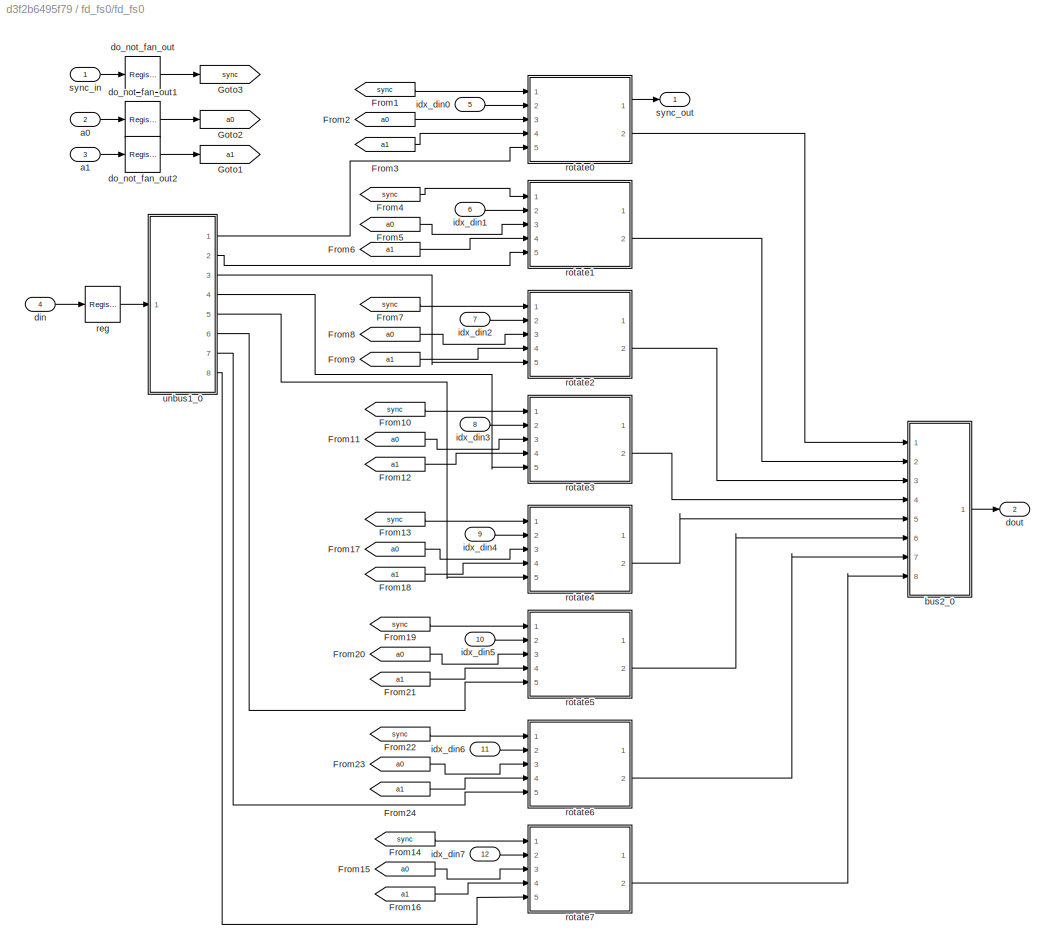
BLOCK [SubSystem] fd_fs0/fd_fs0
  FunctionWithSeparateData = off
  MaskHideContents = off
  MinAlgLoopOccurrences = off
  Opaque = off
  Ports = [12, 2]
  PropExecContextOutsideSubsystem = off
  RTWSystemCode = Auto
  RequestExecContextInheritance = off
BLOCK [From] fd_fs0/fd_fs0/From1
  GotoTag = sync
  TagVisibility = global
BLOCK [From] fd_fs0/fd_fs0/From10
  GotoTag = sync
  TagVisibility = global
BLOCK [From] fd_fs0/fd_fs0/From11
  GotoTag = a0
  TagVisibility = global
BLOCK [From] fd_fs0/fd_fs0/From12
  GotoTag = a1
  TagVisibility = global
BLOCK [From] fd_fs0/fd_fs0/From13
  GotoTag = sync
  TagVisibility = global
BLOCK [From] fd_fs0/fd_fs0/From14
  GotoTag = sync
  TagVisibility = global
BLOCK [From] fd_fs0/fd_fs0/From15
  GotoTag = a0
  TagVisibility = global
BLOCK [From] fd_fs0/fd_fs0/From16
  GotoTag = a1
  TagVisibility = global
BLOCK [From] fd_fs0/fd_fs0/From17
  GotoTag = a0
  TagVisibility = global
BLOCK [From] fd_fs0/fd_fs0/From18
  GotoTag = a1
  TagVisibility = global
BLOCK [From] fd_fs0/fd_fs0/From19
  GotoTag = sync
  TagVisibility = global
BLOCK [From] fd_fs0/fd_fs0/From2
  GotoTag = a0
  TagVisibility = global
BLOCK [From] fd_fs0/fd_fs0/From20
  GotoTag = a0
  TagVisibility = global
BLOCK [From] fd_fs0/fd_fs0/From21
  GotoTag = a1
  TagVisibility = global
BLOCK [From] fd_fs0/fd_fs0/From22
  GotoTag = sync
  TagVisibility = global
BLOCK [From] fd_fs0/fd_fs0/From23
  GotoTag = a0
  TagVisibility = global
BLOCK [From] fd_fs0/fd_fs0/From24
  GotoTag = a1
  TagVisibility = global
BLOCK [From] fd_fs0/fd_fs0/From3
  GotoTag = a1
  TagVisibility = global
BLOCK [From] fd_fs0/fd_fs0/From4
  GotoTag = sync
  TagVisibility = global
BLOCK [From] fd_fs0/fd_fs0/From5
  GotoTag = a0
  TagVisibility = global
BLOCK [From] fd_fs0/fd_fs0/From6
  GotoTag = a1
  TagVisibility = global
BLOCK [From] fd_fs0/fd_fs0/From7
  GotoTag = sync
  TagVisibility = global
BLOCK [From] fd_fs0/fd_fs0/From8
  GotoTag = a0
  TagVisibility = global
BLOCK [From] fd_fs0/fd_fs0/From9
  GotoTag = a1
  TagVisibility = global
BLOCK [Goto] fd_fs0/fd_fs0/Goto1
  GotoTag = a1
  TagVisibility = global
BLOCK [Goto] fd_fs0/fd_fs0/Goto2
  GotoTag = a0
  TagVisibility = global
BLOCK [Goto] fd_fs0/fd_fs0/Goto3
  GotoTag = sync
  TagVisibility = global
BLOCK [Inport] fd_fs0/fd_fs0/a0
  IconDisplay = Port number
  Port = 2
BLOCK [Inport] fd_fs0/fd_fs0/a1
  IconDisplay = Port number
  Port = 3
BLOCK [SubSystem] fd_fs0/fd_fs0/bus2_0
  AncestorBlock = casper_library_flow_control/bus_create
  FunctionWithSeparateData = off
  MaskHideContents = off
  MinAlgLoopOccurrences = off
  Opaque = off
  Ports = [8, 1]
  PropExecContextOutsideSubsystem = off
  RTWSystemCode = Auto
  RequestExecContextInheritance = off
  UserDataPersistent = on
BLOCK [Outport] fd_fs0/fd_fs0/bus2_0/bus_out
  IconDisplay = Port number
BLOCK [Reference] fd_fs0/fd_fs0/bus2_0/concatenate  REF=xbsIndex_r4/Concat
  Ports = [8, 1]
  SourceBlock = xbsIndex_r4/Concat
  SourceType = Xilinx Bus Concatenator Block
  block_type = concat
  block_version = 11.4
  dbl_ovrd = off
  has_advanced_control = 0
  infoedit = Concatenates two or more inputs.  Output will be cast to an unsigned value with the binary point at zero.
  num_inputs = 8
  sg_icon_stat = 50,301,8,1,white,blue,0,6fe74153,right,,[ ],[ ]
  sg_mask_display = fprintf('','COMMENT: begin icon graphics');\npatch([0 50 50 0 0 ],[0 0 301 301 0 ],[0.77 0.82 0.91 ]);\nplot([0 50 50 0 0 ],[0 0 301 301 0 ]);\npatch([9.425 19.54 26.54 33.54 40.54 26.54 16.425 9.425 ],[157.77 157.77 164.77 157.77 164.77 164.77 164.77 157.77 ],[1 1 1 ]);\npatch([16.425 26.54 19.54 9.425 16.425 ],[150.77 150.77 157.77 157.77 150.77 ],[0.931 0.946 0.973 ]);\npatch([9.425 19.54 26.54 16.4...<+455ch>
  sggui_pos = -1,-1,-1,-1
BLOCK [Inport] fd_fs0/fd_fs0/bus2_0/in1
  IconDisplay = Port number
BLOCK [Inport] fd_fs0/fd_fs0/bus2_0/in2
  IconDisplay = Port number
  Port = 2
BLOCK [Inport] fd_fs0/fd_fs0/bus2_0/in3
  IconDisplay = Port number
  Port = 3
BLOCK [Inport] fd_fs0/fd_fs0/bus2_0/in4
  IconDisplay = Port number
  Port = 4
BLOCK [Inport] fd_fs0/fd_fs0/bus2_0/in5
  IconDisplay = Port number
  Port = 5
BLOCK [Inport] fd_fs0/fd_fs0/bus2_0/in6
  IconDisplay = Port number
  Port = 6
BLOCK [Inport] fd_fs0/fd_fs0/bus2_0/in7
  IconDisplay = Port number
  Port = 7
BLOCK [Inport] fd_fs0/fd_fs0/bus2_0/in8
  IconDisplay = Port number
  Port = 8
BLOCK [Reference] fd_fs0/fd_fs0/bus2_0/reinterpret1  REF=xbsIndex_r4/Reinterpret
  Ports = [1, 1]
  SourceBlock = xbsIndex_r4/Reinterpret
  SourceType = Xilinx Type Reinterpreter Block
  arith_type = Unsigned
  bin_pt = 0
  block_type = reinterpret
  block_version = 11.4
  force_arith_type = on
  force_bin_pt = on
  has_advanced_control = 0
  sg_icon_stat = 50,20,1,1,white,blue,0,6b04d0b0,right,,[ ],[ ]
  sg_mask_display = fprintf('','COMMENT: begin icon graphics');\npatch([0 50 50 0 0 ],[0 0 20 20 0 ],[0.77 0.82 0.91 ]);\nplot([0 50 50 0 0 ],[0 0 20 20 0 ]);\npatch([20.55 23.44 25.44 27.44 29.44 25.44 22.55 20.55 ],[12.22 12.22 14.22 12.22 14.22 14.22 14.22 12.22 ],[1 1 1 ]);\npatch([22.55 25.44 23.44 20.55 22.55 ],[10.22 10.22 12.22 12.22 10.22 ],[0.931 0.946 0.973 ]);\npatch([20.55 23.44 25.44 22.55 20.55 ],[8.22 8.22...<+300ch>  <repeated x16 — deduplicated; at blocks: reinterpret1, reinterpret2, reinterpret3, reinterpret4, reinterpret5, reinterpret6, reinterpret7, reinterpret8>
  sggui_pos = -1,-1,-1,-1
BLOCK [Reference] fd_fs0/fd_fs0/bus2_0/reinterpret2  REF=xbsIndex_r4/Reinterpret
  Ports = [1, 1]
  SourceBlock = xbsIndex_r4/Reinterpret
  SourceType = Xilinx Type Reinterpreter Block
  arith_type = Unsigned
  bin_pt = 0
  block_type = reinterpret
  block_version = 11.4
  force_arith_type = on
  force_bin_pt = on
  has_advanced_control = 0
  sg_icon_stat = 50,20,1,1,white,blue,0,6b04d0b0,right,,[ ],[ ]
  sggui_pos = 281,224,671,460
BLOCK [Reference] fd_fs0/fd_fs0/bus2_0/reinterpret3  REF=xbsIndex_r4/Reinterpret
  Ports = [1, 1]
  SourceBlock = xbsIndex_r4/Reinterpret
  SourceType = Xilinx Type Reinterpreter Block
  arith_type = Unsigned
  bin_pt = 0
  block_type = reinterpret
  force_arith_type = on
  force_bin_pt = on
  has_advanced_control = 0
  infoedit = Changes signal type without altering the binary representation.   You can change the signal between signed and unsigned, and relocate the binary point.<br><br>Hardware notes: In hardware this block costs nothing.<br><br>Example:  Suppose the input is 6 bits wide, signed, with 2 fractional bits, and the output is forced to unsigned with 0 fractional bits.  Then an input of -2.0 (1110.00 in binary 2...<+58ch>  <repeated x54 — deduplicated; at blocks: reinterpret3, reinterpret4, reinterpret5, reinterpret6, reinterpret7, reinterpret8, reinterp_a_im, reinterp_a_im1, reinterp_b_im1, reinterp_b_re1, reinterp_c_im, reinterpret1, reinterpret2>
  sg_icon_stat = 50,20,1,1,white,blue,0,6b04d0b0,right,,[ ],[ ]
  sggui_pos = -1,-1,-1,-1
BLOCK [Reference] fd_fs0/fd_fs0/bus2_0/reinterpret4  REF=xbsIndex_r4/Reinterpret
  Ports = [1, 1]
  SourceBlock = xbsIndex_r4/Reinterpret
  SourceType = Xilinx Type Reinterpreter Block
  arith_type = Unsigned
  bin_pt = 0
  block_type = reinterpret
  force_arith_type = on
  force_bin_pt = on
  has_advanced_control = 0
  sg_icon_stat = 50,20,1,1,white,blue,0,6b04d0b0,right,,[ ],[ ]
  sggui_pos = -1,-1,-1,-1
BLOCK [Reference] fd_fs0/fd_fs0/bus2_0/reinterpret5  REF=xbsIndex_r4/Reinterpret
  Ports = [1, 1]
  SourceBlock = xbsIndex_r4/Reinterpret
  SourceType = Xilinx Type Reinterpreter Block
  arith_type = Unsigned
  bin_pt = 0
  block_type = reinterpret
  force_arith_type = on
  force_bin_pt = on
  has_advanced_control = 0
  sg_icon_stat = 50,20,1,1,white,blue,0,6b04d0b0,right,,[ ],[ ]
  sggui_pos = -1,-1,-1,-1
BLOCK [Reference] fd_fs0/fd_fs0/bus2_0/reinterpret6  REF=xbsIndex_r4/Reinterpret
  Ports = [1, 1]
  SourceBlock = xbsIndex_r4/Reinterpret
  SourceType = Xilinx Type Reinterpreter Block
  arith_type = Unsigned
  bin_pt = 0
  block_type = reinterpret
  force_arith_type = on
  force_bin_pt = on
  has_advanced_control = 0
  sg_icon_stat = 50,20,1,1,white,blue,0,6b04d0b0,right,,[ ],[ ]
  sggui_pos = -1,-1,-1,-1
BLOCK [Reference] fd_fs0/fd_fs0/bus2_0/reinterpret7  REF=xbsIndex_r4/Reinterpret
  Ports = [1, 1]
  SourceBlock = xbsIndex_r4/Reinterpret
  SourceType = Xilinx Type Reinterpreter Block
  arith_type = Unsigned
  bin_pt = 0
  block_type = reinterpret
  force_arith_type = on
  force_bin_pt = on
  has_advanced_control = 0
  sg_icon_stat = 50,20,1,1,white,blue,0,6b04d0b0,right,,[ ],[ ]
  sggui_pos = -1,-1,-1,-1
BLOCK [Reference] fd_fs0/fd_fs0/bus2_0/reinterpret8  REF=xbsIndex_r4/Reinterpret
  Ports = [1, 1]
  SourceBlock = xbsIndex_r4/Reinterpret
  SourceType = Xilinx Type Reinterpreter Block
  arith_type = Unsigned
  bin_pt = 0
  block_type = reinterpret
  force_arith_type = on
  force_bin_pt = on
  has_advanced_control = 0
  sg_icon_stat = 50,20,1,1,white,blue,0,6b04d0b0,right,,[ ],[ ]
  sggui_pos = -1,-1,-1,-1
BLOCK [Inport] fd_fs0/fd_fs0/din
  IconDisplay = Port number
  Port = 4
BLOCK [Reference] fd_fs0/fd_fs0/do_not_fan_out  REF=xbsIndex_r4/Register
  Ports = [1, 1]
  SourceBlock = xbsIndex_r4/Register
  SourceType = Xilinx Register Block
  block_type = register
  dbl_ovrd = off
  en = off
  has_advanced_control = 0
  init = 0
  rst = off
  sg_icon_stat = 35,36,1,1,white,blue,0,c80657c5,right,,[ ],[ ]
  sg_mask_display = fprintf('','COMMENT: begin icon graphics');\npatch([0 35 35 0 0 ],[0 0 36 36 0 ],[0.77 0.82 0.91 ]);\nplot([0 35 35 0 0 ],[0 0 36 36 0 ]);\npatch([5.875 13.1 18.1 23.1 28.1 18.1 10.875 5.875 ],[23.55 23.55 28.55 23.55 28.55 28.55 28.55 23.55 ],[1 1 1 ]);\npatch([10.875 18.1 13.1 5.875 10.875 ],[18.55 18.55 23.55 23.55 18.55 ],[0.931 0.946 0.973 ]);\npatch([5.875 13.1 18.1 10.875 5.875 ],[13.55 13.55 18...<+392ch>  <repeated x4 — deduplicated; at blocks: do_not_fan_out, do_not_fan_out1, do_not_fan_out2, reg>
  sggui_pos = -1,-1,-1,-1
  xl_area = [0,0,0,0,0,0,0]
  xl_use_area = off
BLOCK [Reference] fd_fs0/fd_fs0/do_not_fan_out1  REF=xbsIndex_r4/Register
  Ports = [1, 1]
  SourceBlock = xbsIndex_r4/Register
  SourceType = Xilinx Register Block
  block_type = register
  dbl_ovrd = off
  en = off
  has_advanced_control = 0
  init = 0
  rst = off
  sg_icon_stat = 35,36,1,1,white,blue,0,c80657c5,right,,[ ],[ ]
  sggui_pos = -1,-1,-1,-1
  xl_area = [0,0,0,0,0,0,0]
  xl_use_area = off
BLOCK [Reference] fd_fs0/fd_fs0/do_not_fan_out2  REF=xbsIndex_r4/Register
  Ports = [1, 1]
  SourceBlock = xbsIndex_r4/Register
  SourceType = Xilinx Register Block
  block_type = register
  dbl_ovrd = off
  en = off
  has_advanced_control = 0
  init = 0
  rst = off
  sg_icon_stat = 35,36,1,1,white,blue,0,c80657c5,right,,[ ],[ ]
  sggui_pos = -1,-1,-1,-1
  xl_area = [0,0,0,0,0,0,0]
  xl_use_area = off
BLOCK [Outport] fd_fs0/fd_fs0/dout
  IconDisplay = Port number
  Port = 2
BLOCK [Inport] fd_fs0/fd_fs0/idx_din0
  IconDisplay = Port number
  Port = 5
BLOCK [Inport] fd_fs0/fd_fs0/idx_din1
  IconDisplay = Port number
  Port = 6
BLOCK [Inport] fd_fs0/fd_fs0/idx_din2
  IconDisplay = Port number
  Port = 7
BLOCK [Inport] fd_fs0/fd_fs0/idx_din3
  IconDisplay = Port number
  Port = 8
BLOCK [Inport] fd_fs0/fd_fs0/idx_din4
  IconDisplay = Port number
  Port = 9
BLOCK [Inport] fd_fs0/fd_fs0/idx_din5
  IconDisplay = Port number
  Port = 10
BLOCK [Inport] fd_fs0/fd_fs0/idx_din6
  IconDisplay = Port number
  Port = 11
BLOCK [Inport] fd_fs0/fd_fs0/idx_din7
  IconDisplay = Port number
  Port = 12
BLOCK [Reference] fd_fs0/fd_fs0/reg  REF=xbsIndex_r4/Register
  Ports = [1, 1]
  SourceBlock = xbsIndex_r4/Register
  SourceType = Xilinx Register Block
  block_type = register
  dbl_ovrd = off
  en = off
  has_advanced_control = 0
  init = 0
  rst = off
  sg_icon_stat = 35,36,1,1,white,blue,0,c80657c5,right,,[ ],[ ]
  sggui_pos = -1,-1,-1,-1
  xl_area = [0,0,0,0,0,0,0]
  xl_use_area = off
BLOCK [SubSystem] fd_fs0/fd_fs0/rotate0
  FunctionWithSeparateData = off
  MaskHideContents = off
  MinAlgLoopOccurrences = off
  Opaque = off
  Ports = [5, 2]
  PropExecContextOutsideSubsystem = off
  RTWSystemCode = Auto
  RequestExecContextInheritance = off
BLOCK [Reference] fd_fs0/fd_fs0/rotate0/Convert  REF=xbsIndex_r4/Convert
  Ports = [1, 1]
  SourceBlock = xbsIndex_r4/Convert
  SourceType = Xilinx Type Converter Block
  arith_type = Signed  (2's comp)
  bin_pt = data_bit_width-1
  block_type = convert
  block_version = 10.1.3
  dbl_ovrd = off
  en = off
  exp_bits = 8
  float_type = Single
  fraction_bits = 24
  gui_display_data_type = Fixed-point
  has_advanced_control = 0
  infoedit = Hardware notes: rounding and saturating require hardware resources; truncating and wrapping do not.
  latency = conv_latency
  n_bits = data_bit_width
  overflow = Wrap
  pipeline = on
  quantization = Round  (unbiased: Even Values)
  sg_icon_stat = 45,24,1,1,white,blue,0,0bfac013,right,,[ ],[ ]
  sg_mask_display = fprintf('','COMMENT: begin icon graphics');\npatch([0 45 45 0 0 ],[0 0 24 24 0 ],[0.77 0.82 0.91 ]);\nplot([0 45 45 0 0 ],[0 0 24 24 0 ]);\npatch([15.325 19.66 22.66 25.66 28.66 22.66 18.325 15.325 ],[15.33 15.33 18.33 15.33 18.33 18.33 18.33 15.33 ],[1 1 1 ]);\npatch([18.325 22.66 19.66 15.325 18.325 ],[12.33 12.33 15.33 15.33 12.33 ],[0.931 0.946 0.973 ]);\npatch([15.325 19.66 22.66 18.325 15.325 ],[...<+405ch>  <repeated x23 — deduplicated; at blocks: Convert, Convert8, Convert1>
  sggui_pos = 8,78,589,659
  xl_area = [0,0,0,0,0,0,0]
  xl_use_area = off
BLOCK [Reference] fd_fs0/fd_fs0/rotate0/Convert1  REF=xbsIndex_r4/Convert
  Ports = [1, 1]
  SourceBlock = xbsIndex_r4/Convert
  SourceType = Xilinx Type Converter Block
  arith_type = Signed  (2's comp)
  bin_pt = data_bit_width-1
  block_type = convert
  block_version = 10.1.3
  dbl_ovrd = off
  en = off
  exp_bits = 8
  float_type = Single
  fraction_bits = 24
  gui_display_data_type = Fixed-point
  has_advanced_control = 0
  infoedit = Hardware notes: rounding and saturating require hardware resources; truncating and wrapping do not.
  latency = conv_latency
  n_bits = data_bit_width
  overflow = Wrap
  pipeline = on
  quantization = Round  (unbiased: Even Values)
  sg_icon_stat = 55,24,1,1,white,blue,0,0bfac013,right,,[ ],[ ]
  sg_mask_display = fprintf('','COMMENT: begin icon graphics');\npatch([0 55 55 0 0 ],[0 0 24 24 0 ],[0.77 0.82 0.91 ]);\nplot([0 55 55 0 0 ],[0 0 24 24 0 ]);\npatch([20.325 24.66 27.66 30.66 33.66 27.66 23.325 20.325 ],[15.33 15.33 18.33 15.33 18.33 18.33 18.33 15.33 ],[1 1 1 ]);\npatch([23.325 27.66 24.66 20.325 23.325 ],[12.33 12.33 15.33 15.33 12.33 ],[0.931 0.946 0.973 ]);\npatch([20.325 24.66 27.66 23.325 20.325 ],[...<+405ch>
  sggui_pos = 14,51,589,659
  xl_area = [0,0,0,0,0,0,0]
  xl_use_area = off
BLOCK [Reference] fd_fs0/fd_fs0/rotate0/Convert8  REF=xbsIndex_r4/Convert
  Ports = [1, 1]
  SourceBlock = xbsIndex_r4/Convert
  SourceType = Xilinx Type Converter Block
  arith_type = Signed  (2's comp)
  bin_pt = lookup_bit_width-1
  block_type = convert
  block_version = 10.1.3
  dbl_ovrd = off
  en = off
  exp_bits = 8
  float_type = Single
  fraction_bits = 24
  gui_display_data_type = Fixed-point
  has_advanced_control = 0
  infoedit = Hardware notes: rounding and saturating require hardware resources; truncating and wrapping do not.
  latency = conv_latency
  n_bits = lookup_bit_width
  overflow = Wrap
  pipeline = on
  quantization = Round  (unbiased: +/- Inf)
  sg_icon_stat = 45,24,1,1,white,blue,0,0bfac013,right,,[ ],[ ]
  sggui_pos = -7,159,589,659
  xl_area = [0,0,0,0,0,0,0]
  xl_use_area = off
BLOCK [Reference] fd_fs0/fd_fs0/rotate0/Delay10  REF=xbsIndex_r4/Delay
  Ports = [1, 1]
  SourceBlock = xbsIndex_r4/Delay
  SourceType = Xilinx Delay Block
  block_type = delay
  block_version = 10.1.3
  dbl_ovrd = off
  en = off
  has_advanced_control = 0
  infoedit = Hardware notes: A delay line is a chain, each link of which is an SRL16 followed by a flip-flop.
  infoeditControl = Selection of Reset will increase slice count due to use of real FFs and instead of SRLs
  latency = bram_latency
  reg_retiming = on
  rst = off
  sg_icon_stat = 35,22,1,1,white,blue,0,83e6bb61,right,,[ ],[ ]
  sg_mask_display = fprintf('','COMMENT: begin icon graphics');\npatch([0 35 35 0 0 ],[0 0 22 22 0 ],[0.77 0.82 0.91 ]);\nplot([0 35 35 0 0 ],[0 0 22 22 0 ]);\npatch([10.325 14.66 17.66 20.66 23.66 17.66 13.325 10.325 ],[14.33 14.33 17.33 14.33 17.33 17.33 17.33 14.33 ],[1 1 1 ]);\npatch([13.325 17.66 14.66 10.325 13.325 ],[11.33 11.33 14.33 14.33 11.33 ],[0.931 0.946 0.973 ]);\npatch([10.325 14.66 17.66 13.325 10.325 ],[...<+322ch>  <repeated x40 — deduplicated; at blocks: Delay10, Delay13, Delay3, Delay6, Delay9>
  sggui_pos = 21,51,419,315
  xl_area = [0,0,0,0,0,0,0]
  xl_use_area = off
BLOCK [Reference] fd_fs0/fd_fs0/rotate0/Delay13  REF=xbsIndex_r4/Delay
  Ports = [1, 1]
  SourceBlock = xbsIndex_r4/Delay
  SourceType = Xilinx Delay Block
  block_type = delay
  block_version = 10.1.3
  dbl_ovrd = off
  en = off
  has_advanced_control = 0
  infoedit = Hardware notes: A delay line is a chain, each link of which is an SRL16 followed by a flip-flop.
  infoeditControl = Selection of Reset will increase slice count due to use of real FFs and instead of SRLs
  latency = conv_latency
  reg_retiming = on
  rst = off
  sg_icon_stat = 35,22,1,1,white,blue,0,83e6bb61,right,,[ ],[ ]
  sggui_pos = 13,24,464,405
  xl_area = [0,0,0,0,0,0,0]
  xl_use_area = off
BLOCK [Reference] fd_fs0/fd_fs0/rotate0/Delay3  REF=xbsIndex_r4/Delay
  Ports = [1, 1]
  SourceBlock = xbsIndex_r4/Delay
  SourceType = Xilinx Delay Block
  block_type = delay
  block_version = 10.1.3
  dbl_ovrd = off
  en = off
  has_advanced_control = 0
  infoedit = Hardware notes: A delay line is a chain, each link of which is an SRL16 followed by a flip-flop.
  infoeditControl = Selection of Reset will increase slice count due to use of real FFs and instead of SRLs
  latency = bram_latency
  reg_retiming = on
  rst = off
  sg_icon_stat = 35,22,1,1,white,blue,0,83e6bb61,right,,[ ],[ ]
  sggui_pos = 21,51,419,315
  xl_area = [0,0,0,0,0,0,0]
  xl_use_area = off
BLOCK [Reference] fd_fs0/fd_fs0/rotate0/Delay6  REF=xbsIndex_r4/Delay
  Ports = [1, 1]
  SourceBlock = xbsIndex_r4/Delay
  SourceType = Xilinx Delay Block
  block_type = delay
  block_version = 10.1.3
  dbl_ovrd = off
  en = off
  has_advanced_control = 0
  infoedit = Hardware notes: A delay line is a chain, each link of which is an SRL16 followed by a flip-flop.
  infoeditControl = Selection of Reset will increase slice count due to use of real FFs and instead of SRLs
  latency = mult_latency+add_latency+conv_latency
  reg_retiming = on
  rst = off
  sg_icon_stat = 35,22,1,1,white,blue,0,aa5bc30d,right,,[ ],[ ]
  sggui_pos = 22,78,419,315
  xl_area = [0,0,0,0,0,0,0]
  xl_use_area = off
BLOCK [Reference] fd_fs0/fd_fs0/rotate0/Delay9  REF=xbsIndex_r4/Delay
  Ports = [1, 1]
  SourceBlock = xbsIndex_r4/Delay
  SourceType = Xilinx Delay Block
  block_type = delay
  block_version = 10.1.3
  dbl_ovrd = off
  en = off
  has_advanced_control = 0
  infoedit = Hardware notes: A delay line is a chain, each link of which is an SRL16 followed by a flip-flop.
  infoeditControl = Selection of Reset will increase slice count due to use of real FFs and instead of SRLs
  latency = add_latency+mult_latency+conv_latency
  reg_retiming = on
  rst = off
  sg_icon_stat = 35,22,1,1,white,blue,0,aa5bc30d,right,,[ ],[ ]
  sggui_pos = 6,24,464,405
  xl_area = [0,0,0,0,0,0,0]
  xl_use_area = off
BLOCK [Reference] fd_fs0/fd_fs0/rotate0/Reinterpret11  REF=xbsIndex_r4/Reinterpret
  Ports = [1, 1]
  SourceBlock = xbsIndex_r4/Reinterpret
  SourceType = Xilinx Type Reinterpreter Block
  arith_type = Unsigned
  bin_pt = 0
  block_type = reinterpret
  block_version = 10.1.3
  force_arith_type = on
  force_bin_pt = on
  has_advanced_control = 0
  sg_icon_stat = 50,18,1,1,white,blue,0,6b04d0b0,right,,[ ],[ ]
  sg_mask_display = fprintf('','COMMENT: begin icon graphics');\npatch([0 50 50 0 0 ],[0 0 18 18 0 ],[0.77 0.82 0.91 ]);\nplot([0 50 50 0 0 ],[0 0 18 18 0 ]);\npatch([20.55 23.44 25.44 27.44 29.44 25.44 22.55 20.55 ],[11.22 11.22 13.22 11.22 13.22 13.22 13.22 11.22 ],[1 1 1 ]);\npatch([22.55 25.44 23.44 20.55 22.55 ],[9.22 9.22 11.22 11.22 9.22 ],[0.931 0.946 0.973 ]);\npatch([20.55 23.44 25.44 22.55 20.55 ],[7.22 7.22 9....<+295ch>  <repeated x8 — deduplicated; at blocks: Reinterpret11>
  sggui_pos = 22,78,374,364
BLOCK [Inport] fd_fs0/fd_fs0/rotate0/a0
  IconDisplay = Port number
  Port = 3
BLOCK [Inport] fd_fs0/fd_fs0/rotate0/a1
  IconDisplay = Port number
  Port = 4
BLOCK [Reference] fd_fs0/fd_fs0/rotate0/c_to_ri  REF=casper_library_misc/c_to_ri  (lib defined in mdl_357510c33b49, mdl_57b5f564ae26, +4 more)
  AttributesFormatString = 18_17 r/i
  Ports = [1, 2]
  SourceBlock = casper_library_misc/c_to_ri
  SourceType = c_to_ri
  UserDataPersistent = on
  bin_pt = data_bit_width-1
  n_bits = data_bit_width
BLOCK [Reference] fd_fs0/fd_fs0/rotate0/cmult_dsp48e  REF=casper_library_multipliers/cmult_dsp48e  (lib defined in mdl_176093ab7132, mdl_422fa485fc5d, +3 more)
  AttributesFormatString = 18_17 * 18_17 ==> 37_34\nLatency=4
  Ports = [4, 2]
  SourceBlock = casper_library_multipliers/cmult_dsp48e
  SourceType = cmult_dsp48e
  UserDataPersistent = on
  bin_pt_a = 17
  bin_pt_b = 17
  bin_pt_c = 34
  cast_latency = 0
  conjugated = off
  full_precision = on
  n_bits_a = 18
  n_bits_b = 18
  n_bits_c = 37
  overflow = Wrap
  quantization = Truncate
BLOCK [Inport] fd_fs0/fd_fs0/rotate0/din
  IconDisplay = Port number
  Port = 5
BLOCK [Outport] fd_fs0/fd_fs0/rotate0/dout
  IconDisplay = Port number
  Port = 2
BLOCK [SubSystem] fd_fs0/fd_fs0/rotate0/polynomial0
  AttributesFormatString = latency 6
  FunctionWithSeparateData = off
  MaskHideContents = off
  MinAlgLoopOccurrences = off
  Opaque = off
  Ports = [4, 2]
  PropExecContextOutsideSubsystem = off
  RTWSystemCode = Auto
  RequestExecContextInheritance = off
  UserDataPersistent = on
BLOCK [Inport] fd_fs0/fd_fs0/rotate0/polynomial0/a0
  IconDisplay = Port number
  Port = 3
BLOCK [Outport] fd_fs0/fd_fs0/rotate0/polynomial0/a0x^0+a1x^1
  IconDisplay = Port number
  Port = 2
BLOCK [Inport] fd_fs0/fd_fs0/rotate0/polynomial0/a1
  IconDisplay = Port number
  Port = 4
BLOCK [SubSystem] fd_fs0/fd_fs0/rotate0/polynomial0/macc
  AncestorBlock = casper_library_multipliers/cmult_dsp48e
  AttributesFormatString = 18_17 * 18_17 ==> 37_34\nLatency=4
  FunctionWithSeparateData = off
  MaskHideContents = off
  MinAlgLoopOccurrences = off
  Opaque = off
  Ports = [3, 1]
  PropExecContextOutsideSubsystem = off
  RTWSystemCode = Auto
  RequestExecContextInheritance = off
  UserDataPersistent = on
BLOCK [Reference] fd_fs0/fd_fs0/rotate0/polynomial0/macc/Convert1  REF=xbsIndex_r4/Convert
  Ports = [1, 1]
  SourceBlock = xbsIndex_r4/Convert
  SourceType = Xilinx Type Converter Block
  arith_type = Signed  (2's comp)
  bin_pt = 0
  block_type = convert
  block_version = 10.1.3
  dbl_ovrd = off
  en = off
  exp_bits = 8
  float_type = Single
  fraction_bits = 24
  gui_display_data_type = Fixed-point
  has_advanced_control = 0
  infoedit = Hardware notes: rounding and saturating require hardware resources; truncating and wrapping do not.
  latency = 0
  n_bits = 30
  overflow = Wrap
  pipeline = on
  quantization = Truncate
  sg_icon_stat = 50,16,1,1,white,blue,0,edca21da,right,,[ ],[ ]
  sg_mask_display = fprintf('','COMMENT: begin icon graphics');\npatch([0 50 50 0 0 ],[0 0 16 16 0 ],[0.77 0.82 0.91 ]);\nplot([0 50 50 0 0 ],[0 0 16 16 0 ]);\npatch([20.55 23.44 25.44 27.44 29.44 25.44 22.55 20.55 ],[10.22 10.22 12.22 10.22 12.22 12.22 12.22 10.22 ],[1 1 1 ]);\npatch([22.55 25.44 23.44 20.55 22.55 ],[8.22 8.22 10.22 10.22 8.22 ],[0.931 0.946 0.973 ]);\npatch([20.55 23.44 25.44 22.55 20.55 ],[6.22 6.22 8....<+304ch>  <repeated x56 — deduplicated; at blocks: Convert1, Convert2, Convert6, cast_c_im, realign_a_im, realign_b_im, realign_b_re>
  sggui_pos = 13,27,633,659
  xl_area = [0,0,0,0,0,0,0]
  xl_use_area = off
BLOCK [Reference] fd_fs0/fd_fs0/rotate0/polynomial0/macc/Convert2  REF=xbsIndex_r4/Convert
  Ports = [1, 1]
  SourceBlock = xbsIndex_r4/Convert
  SourceType = Xilinx Type Converter Block
  arith_type = Signed  (2's comp)
  bin_pt = 0
  block_type = convert
  block_version = 10.1.3
  dbl_ovrd = off
  en = off
  exp_bits = 8
  float_type = Single
  fraction_bits = 24
  gui_display_data_type = Fixed-point
  has_advanced_control = 0
  infoedit = Hardware notes: rounding and saturating require hardware resources; truncating and wrapping do not.
  latency = 0
  n_bits = 48
  overflow = Wrap
  pipeline = on
  quantization = Truncate
  sg_icon_stat = 50,16,1,1,white,blue,0,edca21da,right,,[ ],[ ]
  sggui_pos = 13,27,633,659
  xl_area = [0,0,0,0,0,0,0]
  xl_use_area = off
BLOCK [Reference] fd_fs0/fd_fs0/rotate0/polynomial0/macc/Convert6  REF=xbsIndex_r4/Convert
  Ports = [1, 1]
  SourceBlock = xbsIndex_r4/Convert
  SourceType = Xilinx Type Converter Block
  arith_type = Signed  (2's comp)
  bin_pt = 0
  block_type = convert
  block_version = 10.1.3
  dbl_ovrd = off
  en = off
  exp_bits = 8
  float_type = Single
  fraction_bits = 24
  gui_display_data_type = Fixed-point
  has_advanced_control = 0
  infoedit = Hardware notes: rounding and saturating require hardware resources; truncating and wrapping do not.
  latency = 0
  n_bits = 18
  overflow = Wrap
  pipeline = on
  quantization = Truncate
  sg_icon_stat = 50,16,1,1,white,blue,0,edca21da,right,,[ ],[ ]
  sggui_pos = 13,27,633,659
  xl_area = [0,0,0,0,0,0,0]
  xl_use_area = off
BLOCK [Reference] fd_fs0/fd_fs0/rotate0/polynomial0/macc/DSP48E_1  REF=xbsIndex_r4/DSP48E
  Ports = [7, 1]
  SourceBlock = xbsIndex_r4/DSP48E
  SourceType = Xilinx DSP48E Block
  addsub_mode = ONE48
  block_type = dsp48e
  block_version = 10.1.3
  en_a1 = off
  en_a2 = off
  en_all = off
  en_alumode = off
  en_b1 = off
  en_b2 = off
  en_c = off
  en_carry_in = off
  en_ctrl = off
  en_mult = off
  en_multcarryin = off
  en_p = off
  has_advanced_control = 0
  mask_from_creg = off
  pattern = '000000000000'
  pattern_from_creg = off
  pattern_mask = '3FFFFFFFFFFF'
  pipeline_a = 1
  pipeline_acout = 1
  pipeline_alumode = on
  pipeline_b = 1
  pipeline_bcout = 1
  pipeline_c = on
  pipeline_carryin = on
  pipeline_carryinsel = on
  pipeline_mult = on
  pipeline_opmode = on
  pipeline_p = on
  reset_preg = off
  rst_a = off
  rst_all = off
  rst_alumode = off
  rst_b = off
  rst_c = off
  rst_carry_in = off
  rst_ctrl = off
  rst_mult = off
  rst_p = off
  sel_rounding_mask = Select mask
  sg_icon_stat = 100,112,7,1,white,blue,0,51584ea8,right,,[ ],[ ]
  sg_mask_display = fprintf('','COMMENT: begin icon graphics');\npatch([0 100 100 0 0 ],[0 0 112 112 0 ],[0.77 0.82 0.91 ]);\nplot([0 100 100 0 0 ],[0 0 112 112 0 ]);\npatch([18.85 39.08 53.08 67.08 81.08 53.08 32.85 18.85 ],[71.54 71.54 85.54 71.54 85.54 85.54 85.54 71.54 ],[1 1 1 ]);\npatch([32.85 53.08 39.08 18.85 32.85 ],[57.54 57.54 71.54 71.54 57.54 ],[0.931 0.946 0.973 ]);\npatch([18.85 39.08 53.08 32.85 18.85 ],[4...<+643ch>  <repeated x8 — deduplicated; at blocks: DSP48E_1>
  sggui_pos = 210,37,691,967
  use_a = Direct from A Port
  use_acout = off
  use_b = Direct from B Port
  use_bcout = off
  use_carrycascin = off
  use_carrycascout = off
  use_carryout = off
  use_creg = on
  use_multsignin = off
  use_multsignout = off
  use_op = off
  use_overflow = off
  use_patternbdetect = off
  use_patterndetect = off
  use_pcin = off
  use_pcout = off
  use_synth_model = off
  use_underflow = off
  xl_area = [0,0,0,0,0,0,0]
  xl_use_area = off
  xl_useadderonly = off
BLOCK [Inport] fd_fs0/fd_fs0/rotate0/polynomial0/macc/a
  IconDisplay = Port number
BLOCK [Outport] fd_fs0/fd_fs0/rotate0/polynomial0/macc/ab_plus_c
  IconDisplay = Port number
BLOCK [Reference] fd_fs0/fd_fs0/rotate0/polynomial0/macc/alumode1  REF=xbsIndex_r4/Constant
  Ports = [0, 1]
  SourceBlock = xbsIndex_r4/Constant
  SourceType = Xilinx Constant Block Block
  arith_type = Unsigned
  bin_pt = 0
  block_type = constant
  block_version = 10.1.3
  carry = CIN
  const = 0
  dbl_ovrd = off
  dsp48_infoedit = The use of this block for DSP48 instructions is deprecated.  Please use the Opmode block.
  equ = P=C
  exp_width = 8
  explicit_period = off
  frac_width = 24
  gui_display_data_type = Fixed-point
  has_advanced_control = 0
  inp1 = P
  inp2 = PCIN>>17
  n_bits = 4
  opr = +
  opselect = C
  period = 1
  preci_type = Single
  sg_icon_stat = 50,16,0,1,white,blue,0,bf4ddd8b,right,,[ ],[ ]
  sg_mask_display = fprintf('','COMMENT: begin icon graphics');\npatch([0 50 50 0 0 ],[0 0 16 16 0 ],[0.77 0.82 0.91 ]);\nplot([0 50 50 0 0 ],[0 0 16 16 0 ]);\npatch([20.55 23.44 25.44 27.44 29.44 25.44 22.55 20.55 ],[10.22 10.22 12.22 10.22 12.22 12.22 12.22 10.22 ],[1 1 1 ]);\npatch([22.55 25.44 23.44 20.55 22.55 ],[8.22 8.22 10.22 10.22 8.22 ],[0.931 0.946 0.973 ]);\npatch([20.55 23.44 25.44 22.55 20.55 ],[6.22 6.22 8....<+300ch>  <repeated x24 — deduplicated; at blocks: alumode1, carryin1, carryinsel1>
  sggui_pos = 20,20,400,346
BLOCK [Inport] fd_fs0/fd_fs0/rotate0/polynomial0/macc/b
  IconDisplay = Port number
  Port = 2
BLOCK [Inport] fd_fs0/fd_fs0/rotate0/polynomial0/macc/c
  IconDisplay = Port number
  Port = 3
BLOCK [Reference] fd_fs0/fd_fs0/rotate0/polynomial0/macc/c_del  REF=xbsIndex_r4/Delay
  Ports = [1, 1]
  SourceBlock = xbsIndex_r4/Delay
  SourceType = Xilinx Delay Block
  block_type = delay
  block_version = 10.1.3
  dbl_ovrd = off
  en = off
  has_advanced_control = 0
  infoedit = Hardware notes: A delay line is a chain, each link of which is an SRL16 followed by a flip-flop.
  infoeditControl = Selection of Reset will increase slice count due to use of real FFs and instead of SRLs
  latency = 1
  reg_retiming = on
  rst = off
  sg_icon_stat = 30,20,1,1,white,blue,0,07b98262,right,,[ ],[ ]
  sggui_pos = 15,78,464,405
  xl_area = [0,0,0,0,0,0,0]
  xl_use_area = off
BLOCK [Reference] fd_fs0/fd_fs0/rotate0/polynomial0/macc/carryin1  REF=xbsIndex_r4/Constant
  Ports = [0, 1]
  SourceBlock = xbsIndex_r4/Constant
  SourceType = Xilinx Constant Block Block
  arith_type = Unsigned
  bin_pt = 0
  block_type = constant
  block_version = 10.1.3
  carry = CIN
  const = 0
  dbl_ovrd = off
  dsp48_infoedit = The use of this block for DSP48 instructions is deprecated.  Please use the Opmode block.
  equ = P=C
  exp_width = 8
  explicit_period = off
  frac_width = 24
  gui_display_data_type = Fixed-point
  has_advanced_control = 0
  inp1 = P
  inp2 = PCIN>>17
  n_bits = 1
  opr = +
  opselect = C
  period = 1
  preci_type = Single
  sg_icon_stat = 50,16,0,1,white,blue,0,bf4ddd8b,right,,[ ],[ ]
  sggui_pos = 20,20,400,346
BLOCK [Reference] fd_fs0/fd_fs0/rotate0/polynomial0/macc/carryinsel1  REF=xbsIndex_r4/Constant
  Ports = [0, 1]
  SourceBlock = xbsIndex_r4/Constant
  SourceType = Xilinx Constant Block Block
  arith_type = Unsigned
  bin_pt = 0
  block_type = constant
  block_version = 10.1.3
  carry = CIN
  const = 0
  dbl_ovrd = off
  dsp48_infoedit = The use of this block for DSP48 instructions is deprecated.  Please use the Opmode block.
  equ = P=C
  exp_width = 8
  explicit_period = off
  frac_width = 24
  gui_display_data_type = Fixed-point
  has_advanced_control = 0
  inp1 = P
  inp2 = PCIN>>17
  n_bits = 3
  opr = +
  opselect = C
  period = 1
  preci_type = Single
  sg_icon_stat = 50,16,0,1,white,blue,0,bf4ddd8b,right,,[ ],[ ]
  sggui_pos = 20,20,400,346
BLOCK [Reference] fd_fs0/fd_fs0/rotate0/polynomial0/macc/cast_c_im  REF=xbsIndex_r4/Convert
  Ports = [1, 1]
  SourceBlock = xbsIndex_r4/Convert
  SourceType = Xilinx Type Converter Block
  arith_type = Signed  (2's comp)
  bin_pt = 28
  block_type = convert
  block_version = 10.1.3
  dbl_ovrd = off
  en = off
  exp_bits = 8
  float_type = Single
  fraction_bits = 24
  gui_display_data_type = Fixed-point
  has_advanced_control = 0
  infoedit = Hardware notes: rounding and saturating require hardware resources; truncating and wrapping do not.
  latency = 0
  n_bits = 40
  overflow = Wrap
  pipeline = on
  quantization = Truncate
  sg_icon_stat = 50,16,1,1,white,blue,0,edca21da,right,,[ ],[ ]
  sggui_pos = 13,27,633,659
  xl_area = [0,0,0,0,0,0,0]
  xl_use_area = off
BLOCK [Reference] fd_fs0/fd_fs0/rotate0/polynomial0/macc/opmode1  REF=xbsIndex_r4/Constant
  Ports = [0, 1]
  SourceBlock = xbsIndex_r4/Constant
  SourceType = Xilinx Constant Block Block
  arith_type = Unsigned
  bin_pt = 0
  block_type = constant
  block_version = 10.1.3
  carry = CIN
  const = 53
  dbl_ovrd = off
  dsp48_infoedit = The use of this block for DSP48 instructions is deprecated.  Please use the Opmode block.
  equ = P=C
  exp_width = 8
  explicit_period = off
  frac_width = 24
  gui_display_data_type = Fixed-point
  has_advanced_control = 0
  inp1 = P
  inp2 = PCIN>>17
  n_bits = 7
  opr = +
  opselect = C
  period = 1
  preci_type = Single
  sg_icon_stat = 50,16,0,1,white,blue,0,2cdbf06a,right,,[ ],[ ]
  sg_mask_display = fprintf('','COMMENT: begin icon graphics');\npatch([0 50 50 0 0 ],[0 0 16 16 0 ],[0.77 0.82 0.91 ]);\nplot([0 50 50 0 0 ],[0 0 16 16 0 ]);\npatch([20.55 23.44 25.44 27.44 29.44 25.44 22.55 20.55 ],[10.22 10.22 12.22 10.22 12.22 12.22 12.22 10.22 ],[1 1 1 ]);\npatch([22.55 25.44 23.44 20.55 22.55 ],[8.22 8.22 10.22 10.22 8.22 ],[0.931 0.946 0.973 ]);\npatch([20.55 23.44 25.44 22.55 20.55 ],[6.22 6.22 8....<+301ch>  <repeated x8 — deduplicated; at blocks: opmode1>
  sggui_pos = -7,24,550,547
BLOCK [Reference] fd_fs0/fd_fs0/rotate0/polynomial0/macc/realign_a_im  REF=xbsIndex_r4/Convert
  Ports = [1, 1]
  SourceBlock = xbsIndex_r4/Convert
  SourceType = Xilinx Type Converter Block
  arith_type = Signed  (2's comp)
  bin_pt = 4
  block_type = convert
  block_version = 10.1.3
  dbl_ovrd = off
  en = off
  exp_bits = 8
  float_type = Single
  fraction_bits = 24
  gui_display_data_type = Fixed-point
  has_advanced_control = 0
  infoedit = Hardware notes: rounding and saturating require hardware resources; truncating and wrapping do not.
  latency = 0
  n_bits = 25
  overflow = Wrap
  pipeline = on
  quantization = Truncate
  sg_icon_stat = 50,16,1,1,white,blue,0,edca21da,right,,[ ],[ ]
  sggui_pos = 13,27,633,659
  xl_area = [0,0,0,0,0,0,0]
  xl_use_area = off
BLOCK [Reference] fd_fs0/fd_fs0/rotate0/polynomial0/macc/realign_b_im  REF=xbsIndex_r4/Convert
  Ports = [1, 1]
  SourceBlock = xbsIndex_r4/Convert
  SourceType = Xilinx Type Converter Block
  arith_type = Signed  (2's comp)
  bin_pt = 0
  block_type = convert
  block_version = 10.1.3
  dbl_ovrd = off
  en = off
  exp_bits = 8
  float_type = Single
  fraction_bits = 24
  gui_display_data_type = Fixed-point
  has_advanced_control = 0
  infoedit = Hardware notes: rounding and saturating require hardware resources; truncating and wrapping do not.
  latency = 0
  n_bits = 29
  overflow = Wrap
  pipeline = on
  quantization = Truncate
  sg_icon_stat = 50,16,1,1,white,blue,0,edca21da,right,,[ ],[ ]
  sggui_pos = 13,27,633,659
  xl_area = [0,0,0,0,0,0,0]
  xl_use_area = off
BLOCK [Reference] fd_fs0/fd_fs0/rotate0/polynomial0/macc/realign_b_re  REF=xbsIndex_r4/Convert
  Ports = [1, 1]
  SourceBlock = xbsIndex_r4/Convert
  SourceType = Xilinx Type Converter Block
  arith_type = Signed  (2's comp)
  bin_pt = 4
  block_type = convert
  block_version = 10.1.3
  dbl_ovrd = off
  en = off
  exp_bits = 8
  float_type = Single
  fraction_bits = 24
  gui_display_data_type = Fixed-point
  has_advanced_control = 0
  infoedit = Hardware notes: rounding and saturating require hardware resources; truncating and wrapping do not.
  latency = 0
  n_bits = 14
  overflow = Wrap
  pipeline = on
  quantization = Truncate
  sg_icon_stat = 50,16,1,1,white,blue,0,edca21da,right,,[ ],[ ]
  sggui_pos = 13,27,633,659
  xl_area = [0,0,0,0,0,0,0]
  xl_use_area = off
BLOCK [Reference] fd_fs0/fd_fs0/rotate0/polynomial0/macc/reinterp_a_im  REF=xbsIndex_r4/Reinterpret
  Ports = [1, 1]
  SourceBlock = xbsIndex_r4/Reinterpret
  SourceType = Xilinx Type Reinterpreter Block
  arith_type = Signed  (2's comp)
  bin_pt = 0
  block_type = reinterpret
  block_version = 10.1.3
  force_arith_type = on
  force_bin_pt = on
  has_advanced_control = 0
  sg_icon_stat = 50,16,1,1,white,blue,0,6b04d0b0,right,,[ ],[ ]
  sg_mask_display = fprintf('','COMMENT: begin icon graphics');\npatch([0 50 50 0 0 ],[0 0 16 16 0 ],[0.77 0.82 0.91 ]);\nplot([0 50 50 0 0 ],[0 0 16 16 0 ]);\npatch([20.55 23.44 25.44 27.44 29.44 25.44 22.55 20.55 ],[10.22 10.22 12.22 10.22 12.22 12.22 12.22 10.22 ],[1 1 1 ]);\npatch([22.55 25.44 23.44 20.55 22.55 ],[8.22 8.22 10.22 10.22 8.22 ],[0.931 0.946 0.973 ]);\npatch([20.55 23.44 25.44 22.55 20.55 ],[6.22 6.22 8....<+295ch>  <repeated x56 — deduplicated; at blocks: reinterp_a_im, reinterp_a_im1, reinterp_b_im, reinterp_b_im1, reinterp_b_re, reinterp_b_re1, reinterp_c_im>
  sggui_pos = 8,25,416,401
BLOCK [Reference] fd_fs0/fd_fs0/rotate0/polynomial0/macc/reinterp_a_im1  REF=xbsIndex_r4/Reinterpret
  Ports = [1, 1]
  SourceBlock = xbsIndex_r4/Reinterpret
  SourceType = Xilinx Type Reinterpreter Block
  arith_type = Signed  (2's comp)
  bin_pt = 0
  block_type = reinterpret
  block_version = 10.1.3
  force_arith_type = on
  force_bin_pt = on
  has_advanced_control = 0
  sg_icon_stat = 50,16,1,1,white,blue,0,6b04d0b0,right,,[ ],[ ]
  sggui_pos = 8,25,416,401
BLOCK [Reference] fd_fs0/fd_fs0/rotate0/polynomial0/macc/reinterp_b_im  REF=xbsIndex_r4/Reinterpret
  Ports = [1, 1]
  SourceBlock = xbsIndex_r4/Reinterpret
  SourceType = Xilinx Type Reinterpreter Block
  arith_type = Signed  (2's comp)
  bin_pt = 0
  block_type = reinterpret
  block_version = 10.1.3
  force_arith_type = on
  force_bin_pt = on
  has_advanced_control = 0
  sg_icon_stat = 50,16,1,1,white,blue,0,6b04d0b0,right,,[ ],[ ]
  sggui_pos = 15,25,372,364
BLOCK [Reference] fd_fs0/fd_fs0/rotate0/polynomial0/macc/reinterp_b_im1  REF=xbsIndex_r4/Reinterpret
  Ports = [1, 1]
  SourceBlock = xbsIndex_r4/Reinterpret
  SourceType = Xilinx Type Reinterpreter Block
  arith_type = Signed  (2's comp)
  bin_pt = 0
  block_type = reinterpret
  block_version = 10.1.3
  force_arith_type = on
  force_bin_pt = on
  has_advanced_control = 0
  sg_icon_stat = 50,16,1,1,white,blue,0,6b04d0b0,right,,[ ],[ ]
  sggui_pos = 8,25,416,401
BLOCK [Reference] fd_fs0/fd_fs0/rotate0/polynomial0/macc/reinterp_b_re  REF=xbsIndex_r4/Reinterpret
  Ports = [1, 1]
  SourceBlock = xbsIndex_r4/Reinterpret
  SourceType = Xilinx Type Reinterpreter Block
  arith_type = Signed  (2's comp)
  bin_pt = 0
  block_type = reinterpret
  block_version = 10.1.3
  force_arith_type = on
  force_bin_pt = on
  has_advanced_control = 0
  sg_icon_stat = 50,16,1,1,white,blue,0,6b04d0b0,right,,[ ],[ ]
  sggui_pos = 15,25,372,364
BLOCK [Reference] fd_fs0/fd_fs0/rotate0/polynomial0/macc/reinterp_b_re1  REF=xbsIndex_r4/Reinterpret
  Ports = [1, 1]
  SourceBlock = xbsIndex_r4/Reinterpret
  SourceType = Xilinx Type Reinterpreter Block
  arith_type = Signed  (2's comp)
  bin_pt = 0
  block_type = reinterpret
  block_version = 10.1.3
  force_arith_type = on
  force_bin_pt = on
  has_advanced_control = 0
  sg_icon_stat = 50,16,1,1,white,blue,0,6b04d0b0,right,,[ ],[ ]
  sggui_pos = 8,25,416,401
BLOCK [Reference] fd_fs0/fd_fs0/rotate0/polynomial0/macc/reinterp_c_im  REF=xbsIndex_r4/Reinterpret
  Ports = [1, 1]
  SourceBlock = xbsIndex_r4/Reinterpret
  SourceType = Xilinx Type Reinterpreter Block
  arith_type = Signed  (2's comp)
  bin_pt = 28
  block_type = reinterpret
  block_version = 10.1.3
  force_arith_type = on
  force_bin_pt = on
  has_advanced_control = 0
  sg_icon_stat = 50,16,1,1,white,blue,0,6b04d0b0,right,,[ ],[ ]
  sggui_pos = 8,25,416,401
BLOCK [Reference] fd_fs0/fd_fs0/rotate0/polynomial0/sync_delay  REF=xbsIndex_r4/Delay
  Ports = [1, 1]
  SourceBlock = xbsIndex_r4/Delay
  SourceType = Xilinx Delay Block
  block_type = delay
  block_version = 10.1.3
  dbl_ovrd = off
  en = off
  has_advanced_control = 0
  infoedit = Hardware notes: A delay line is a chain, each link of which is an SRL16 followed by a flip-flop.
  infoeditControl = Selection of Reset will increase slice count due to use of real FFs and instead of SRLs
  latency = order*mult_latency+add_latency
  reg_retiming = on
  rst = off
  sg_icon_stat = 30,20,1,1,white,blue,0,83e6bb61,right,,[ ],[ ]
  sggui_pos = 8,78,464,405
  xl_area = [0,0,0,0,0,0,0]
  xl_use_area = off
BLOCK [Inport] fd_fs0/fd_fs0/rotate0/polynomial0/sync_in
  IconDisplay = Port number
BLOCK [Outport] fd_fs0/fd_fs0/rotate0/polynomial0/sync_out
  IconDisplay = Port number
BLOCK [Inport] fd_fs0/fd_fs0/rotate0/polynomial0/x
  IconDisplay = Port number
  Port = 2
BLOCK [Reference] fd_fs0/fd_fs0/rotate0/ri_to_c  REF=casper_library_misc/ri_to_c  (lib defined in mdl_357510c33b49, mdl_57b5f564ae26, +4 more)
  Ports = [2, 1]
  SourceBlock = casper_library_misc/ri_to_c
  SourceType = ri_to_c
  UserDataPersistent = on
BLOCK [SubSystem] fd_fs0/fd_fs0/rotate0/sincos0
  AncestorBlock = casper_library_downconverter/sincos
  FunctionWithSeparateData = off
  MaskHideContents = off
  MinAlgLoopOccurrences = off
  Opaque = off
  Ports = [2, 3]
  PropExecContextOutsideSubsystem = off
  RTWSystemCode = Auto
  RequestExecContextInheritance = off
  UserDataPersistent = on
BLOCK [Outport] fd_fs0/fd_fs0/rotate0/sincos0/cos
  IconDisplay = Port number
  Port = 3
BLOCK [Reference] fd_fs0/fd_fs0/rotate0/sincos0/delay  REF=xbsIndex_r4/Delay
  Ports = [1, 1]
  SourceBlock = xbsIndex_r4/Delay
  SourceType = Xilinx Delay Block
  block_type = delay
  dbl_ovrd = off
  en = off
  has_advanced_control = 0
  infoedit = Hardware notes: A delay line is a chain, each link of which is an SRL16 followed by a flip-flop.
  infoeditControl = Selection of Reset will increase slice count due to use of real FFs and instead of SRLs
  latency = bram_latency
  reg_retiming = off
  rst = off
  sg_icon_stat = 40,20,1,1,white,blue,0,83e6bb61,right,,[ ],[ ]
  sg_mask_display = fprintf('','COMMENT: begin icon graphics');\npatch([0 40 40 0 0 ],[0 0 20 20 0 ],[0.77 0.82 0.91 ]);\nplot([0 40 40 0 0 ],[0 0 20 20 0 ]);\npatch([15.55 18.44 20.44 22.44 24.44 20.44 17.55 15.55 ],[12.22 12.22 14.22 12.22 14.22 14.22 14.22 12.22 ],[1 1 1 ]);\npatch([17.55 20.44 18.44 15.55 17.55 ],[10.22 10.22 12.22 12.22 10.22 ],[0.931 0.946 0.973 ]);\npatch([15.55 18.44 20.44 17.55 15.55 ],[8.22 8.22...<+310ch>  <repeated x8 — deduplicated; at blocks: delay>
  sggui_pos = -1,-1,-1,-1
  xl_area = [0,0,0,0,0,0,0]
  xl_use_area = off
BLOCK [Reference] fd_fs0/fd_fs0/rotate0/sincos0/rom0  REF=xbsIndex_r4/ROM
  Ports = [1, 1]
  SourceBlock = xbsIndex_r4/ROM
  SourceType = Xilinx Single Port Read-Only Memory Block
  arith_type = Signed  (2's comp)
  bin_pt = bit_width-1
  block_type = sprom
  dbl_ovrd = off
  depth = 2^depth_bits
  distributed_mem = Block RAM
  en = off
  exp_width = 8
  frac_width = 24
  gui_display_data_type = Fixed-point
  has_advanced_control = 0
  initVector = sin(2*pi*(0:(2^depth_bits-1))/(2^depth_bits))
  init_reg = 0
  latency = bram_latency
  n_bits = bit_width
  optimize = Area
  preci_type = Single
  rst = off
  sg_icon_stat = 60,40,1,1,white,blue,0,f667b64a,right,,[ ],[ ]
  sg_mask_display = fprintf('','COMMENT: begin icon graphics');\npatch([0 60 60 0 0 ],[0 0 40 40 0 ],[0.77 0.82 0.91 ]);\nplot([0 60 60 0 0 ],[0 0 40 40 0 ]);\npatch([18.875 26.1 31.1 36.1 41.1 31.1 23.875 18.875 ],[25.55 25.55 30.55 25.55 30.55 30.55 30.55 25.55 ],[1 1 1 ]);\npatch([23.875 31.1 26.1 18.875 23.875 ],[20.55 20.55 25.55 25.55 20.55 ],[0.931 0.946 0.973 ]);\npatch([18.875 26.1 31.1 23.875 18.875 ],[15.55 15....<+363ch>  <repeated x16 — deduplicated; at blocks: rom0, rom1>
  sggui_pos = 6,24,464,361
  use_rpm = on
  xl_area = [0,0,0,0,0,0,0]
  xl_use_area = off
BLOCK [Reference] fd_fs0/fd_fs0/rotate0/sincos0/rom1  REF=xbsIndex_r4/ROM
  Ports = [1, 1]
  SourceBlock = xbsIndex_r4/ROM
  SourceType = Xilinx Single Port Read-Only Memory Block
  arith_type = Signed  (2's comp)
  bin_pt = bit_width-1
  block_type = sprom
  dbl_ovrd = off
  depth = 2^depth_bits
  distributed_mem = Block RAM
  en = off
  exp_width = 8
  frac_width = 24
  gui_display_data_type = Fixed-point
  has_advanced_control = 0
  initVector = cos(2*pi*(0:(2^depth_bits-1))/(2^depth_bits))
  init_reg = 0
  latency = bram_latency
  n_bits = bit_width
  optimize = Area
  preci_type = Single
  rst = off
  sg_icon_stat = 60,40,1,1,white,blue,0,f667b64a,right,,[ ],[ ]
  sggui_pos = -1,-1,-1,-1
  use_rpm = on
  xl_area = [0,0,0,0,0,0,0]
  xl_use_area = off
BLOCK [Outport] fd_fs0/fd_fs0/rotate0/sincos0/sine
  IconDisplay = Port number
  Port = 2
BLOCK [Inport] fd_fs0/fd_fs0/rotate0/sincos0/sync_in
  IconDisplay = Port number
BLOCK [Outport] fd_fs0/fd_fs0/rotate0/sincos0/sync_out
  IconDisplay = Port number
BLOCK [Inport] fd_fs0/fd_fs0/rotate0/sincos0/theta
  IconDisplay = Port number
  Port = 2
BLOCK [Inport] fd_fs0/fd_fs0/rotate0/sync
  IconDisplay = Port number
BLOCK [Outport] fd_fs0/fd_fs0/rotate0/sync_out
  IconDisplay = Port number
BLOCK [Inport] fd_fs0/fd_fs0/rotate0/x
  IconDisplay = Port number
  Port = 2
BLOCK [SubSystem] fd_fs0/fd_fs0/rotate1
  FunctionWithSeparateData = off
  MaskHideContents = off
  MinAlgLoopOccurrences = off
  Opaque = off
  Ports = [5, 2]
  PropExecContextOutsideSubsystem = off
  RTWSystemCode = Auto
  RequestExecContextInheritance = off
BLOCK [Reference] fd_fs0/fd_fs0/rotate1/Convert  REF=xbsIndex_r4/Convert
  Ports = [1, 1]
  SourceBlock = xbsIndex_r4/Convert
  SourceType = Xilinx Type Converter Block
  arith_type = Signed  (2's comp)
  bin_pt = data_bit_width-1
  block_type = convert
  block_version = 10.1.3
  dbl_ovrd = off
  en = off
  exp_bits = 8
  float_type = Single
  fraction_bits = 24
  gui_display_data_type = Fixed-point
  has_advanced_control = 0
  infoedit = Hardware notes: rounding and saturating require hardware resources; truncating and wrapping do not.
  latency = conv_latency
  n_bits = data_bit_width
  overflow = Wrap
  pipeline = on
  quantization = Round  (unbiased: Even Values)
  sg_icon_stat = 45,24,1,1,white,blue,0,0bfac013,right,,[ ],[ ]
  sggui_pos = 8,78,589,659
  xl_area = [0,0,0,0,0,0,0]
  xl_use_area = off
BLOCK [Reference] fd_fs0/fd_fs0/rotate1/Convert1  REF=xbsIndex_r4/Convert
  Ports = [1, 1]
  SourceBlock = xbsIndex_r4/Convert
  SourceType = Xilinx Type Converter Block
  arith_type = Signed  (2's comp)
  bin_pt = data_bit_width-1
  block_type = convert
  block_version = 10.1.3
  dbl_ovrd = off
  en = off
  exp_bits = 8
  float_type = Single
  fraction_bits = 24
  gui_display_data_type = Fixed-point
  has_advanced_control = 0
  infoedit = Hardware notes: rounding and saturating require hardware resources; truncating and wrapping do not.
  latency = conv_latency
  n_bits = data_bit_width
  overflow = Wrap
  pipeline = on
  quantization = Round  (unbiased: Even Values)
  sg_icon_stat = 45,24,1,1,white,blue,0,0bfac013,right,,[ ],[ ]
  sggui_pos = 14,51,589,659
  xl_area = [0,0,0,0,0,0,0]
  xl_use_area = off
BLOCK [Reference] fd_fs0/fd_fs0/rotate1/Convert8  REF=xbsIndex_r4/Convert
  Ports = [1, 1]
  SourceBlock = xbsIndex_r4/Convert
  SourceType = Xilinx Type Converter Block
  arith_type = Signed  (2's comp)
  bin_pt = lookup_bit_width-1
  block_type = convert
  block_version = 10.1.3
  dbl_ovrd = off
  en = off
  exp_bits = 8
  float_type = Single
  fraction_bits = 24
  gui_display_data_type = Fixed-point
  has_advanced_control = 0
  infoedit = Hardware notes: rounding and saturating require hardware resources; truncating and wrapping do not.
  latency = conv_latency
  n_bits = lookup_bit_width
  overflow = Wrap
  pipeline = on
  quantization = Round  (unbiased: +/- Inf)
  sg_icon_stat = 45,24,1,1,white,blue,0,0bfac013,right,,[ ],[ ]
  sggui_pos = -7,159,589,659
  xl_area = [0,0,0,0,0,0,0]
  xl_use_area = off
BLOCK [Reference] fd_fs0/fd_fs0/rotate1/Delay10  REF=xbsIndex_r4/Delay
  Ports = [1, 1]
  SourceBlock = xbsIndex_r4/Delay
  SourceType = Xilinx Delay Block
  block_type = delay
  block_version = 10.1.3
  dbl_ovrd = off
  en = off
  has_advanced_control = 0
  infoedit = Hardware notes: A delay line is a chain, each link of which is an SRL16 followed by a flip-flop.
  infoeditControl = Selection of Reset will increase slice count due to use of real FFs and instead of SRLs
  latency = bram_latency
  reg_retiming = on
  rst = off
  sg_icon_stat = 35,22,1,1,white,blue,0,83e6bb61,right,,[ ],[ ]
  sggui_pos = 21,51,419,315
  xl_area = [0,0,0,0,0,0,0]
  xl_use_area = off
BLOCK [Reference] fd_fs0/fd_fs0/rotate1/Delay13  REF=xbsIndex_r4/Delay
  Ports = [1, 1]
  SourceBlock = xbsIndex_r4/Delay
  SourceType = Xilinx Delay Block
  block_type = delay
  block_version = 10.1.3
  dbl_ovrd = off
  en = off
  has_advanced_control = 0
  infoedit = Hardware notes: A delay line is a chain, each link of which is an SRL16 followed by a flip-flop.
  infoeditControl = Selection of Reset will increase slice count due to use of real FFs and instead of SRLs
  latency = conv_latency
  reg_retiming = on
  rst = off
  sg_icon_stat = 35,22,1,1,white,blue,0,83e6bb61,right,,[ ],[ ]
  sggui_pos = 13,24,464,405
  xl_area = [0,0,0,0,0,0,0]
  xl_use_area = off
BLOCK [Reference] fd_fs0/fd_fs0/rotate1/Delay3  REF=xbsIndex_r4/Delay
  Ports = [1, 1]
  SourceBlock = xbsIndex_r4/Delay
  SourceType = Xilinx Delay Block
  block_type = delay
  block_version = 10.1.3
  dbl_ovrd = off
  en = off
  has_advanced_control = 0
  infoedit = Hardware notes: A delay line is a chain, each link of which is an SRL16 followed by a flip-flop.
  infoeditControl = Selection of Reset will increase slice count due to use of real FFs and instead of SRLs
  latency = bram_latency
  reg_retiming = on
  rst = off
  sg_icon_stat = 35,22,1,1,white,blue,0,83e6bb61,right,,[ ],[ ]
  sggui_pos = 21,51,419,315
  xl_area = [0,0,0,0,0,0,0]
  xl_use_area = off
BLOCK [Reference] fd_fs0/fd_fs0/rotate1/Delay6  REF=xbsIndex_r4/Delay
  Ports = [1, 1]
  SourceBlock = xbsIndex_r4/Delay
  SourceType = Xilinx Delay Block
  block_type = delay
  block_version = 10.1.3
  dbl_ovrd = off
  en = off
  has_advanced_control = 0
  infoedit = Hardware notes: A delay line is a chain, each link of which is an SRL16 followed by a flip-flop.
  infoeditControl = Selection of Reset will increase slice count due to use of real FFs and instead of SRLs
  latency = mult_latency+add_latency+conv_latency
  reg_retiming = on
  rst = off
  sg_icon_stat = 35,22,1,1,white,blue,0,aa5bc30d,right,,[ ],[ ]
  sggui_pos = 22,78,419,315
  xl_area = [0,0,0,0,0,0,0]
  xl_use_area = off
BLOCK [Reference] fd_fs0/fd_fs0/rotate1/Delay9  REF=xbsIndex_r4/Delay
  Ports = [1, 1]
  SourceBlock = xbsIndex_r4/Delay
  SourceType = Xilinx Delay Block
  block_type = delay
  block_version = 10.1.3
  dbl_ovrd = off
  en = off
  has_advanced_control = 0
  infoedit = Hardware notes: A delay line is a chain, each link of which is an SRL16 followed by a flip-flop.
  infoeditControl = Selection of Reset will increase slice count due to use of real FFs and instead of SRLs
  latency = add_latency+mult_latency+conv_latency
  reg_retiming = on
  rst = off
  sg_icon_stat = 35,22,1,1,white,blue,0,aa5bc30d,right,,[ ],[ ]
  sggui_pos = 13,24,464,405
  xl_area = [0,0,0,0,0,0,0]
  xl_use_area = off
BLOCK [Reference] fd_fs0/fd_fs0/rotate1/Reinterpret11  REF=xbsIndex_r4/Reinterpret
  Ports = [1, 1]
  SourceBlock = xbsIndex_r4/Reinterpret
  SourceType = Xilinx Type Reinterpreter Block
  arith_type = Unsigned
  bin_pt = 0
  block_type = reinterpret
  block_version = 10.1.3
  force_arith_type = on
  force_bin_pt = on
  has_advanced_control = 0
  sg_icon_stat = 50,18,1,1,white,blue,0,6b04d0b0,right,,[ ],[ ]
  sggui_pos = 22,78,374,364
BLOCK [Inport] fd_fs0/fd_fs0/rotate1/a0
  IconDisplay = Port number
  Port = 3
BLOCK [Inport] fd_fs0/fd_fs0/rotate1/a1
  IconDisplay = Port number
  Port = 4
BLOCK [Reference] fd_fs0/fd_fs0/rotate1/c_to_ri  REF=casper_library_misc/c_to_ri  (lib defined in mdl_357510c33b49, mdl_57b5f564ae26, +4 more)
  AttributesFormatString = 18_17 r/i
  Ports = [1, 2]
  SourceBlock = casper_library_misc/c_to_ri
  SourceType = c_to_ri
  UserDataPersistent = on
  bin_pt = data_bit_width-1
  n_bits = data_bit_width
BLOCK [Reference] fd_fs0/fd_fs0/rotate1/cmult_dsp48e  REF=casper_library_multipliers/cmult_dsp48e  (lib defined in mdl_176093ab7132, mdl_422fa485fc5d, +3 more)
  AttributesFormatString = 18_17 * 18_17 ==> 37_34\nLatency=4
  Ports = [4, 2]
  SourceBlock = casper_library_multipliers/cmult_dsp48e
  SourceType = cmult_dsp48e
  UserDataPersistent = on
  bin_pt_a = 17
  bin_pt_b = 17
  bin_pt_c = 34
  cast_latency = 0
  conjugated = off
  full_precision = on
  n_bits_a = 18
  n_bits_b = 18
  n_bits_c = 37
  overflow = Wrap
  quantization = Truncate
BLOCK [Inport] fd_fs0/fd_fs0/rotate1/din
  IconDisplay = Port number
  Port = 5
BLOCK [Outport] fd_fs0/fd_fs0/rotate1/dout
  IconDisplay = Port number
  Port = 2
BLOCK [SubSystem] fd_fs0/fd_fs0/rotate1/polynomial0
  AttributesFormatString = latency 6
  FunctionWithSeparateData = off
  MaskHideContents = off
  MinAlgLoopOccurrences = off
  Opaque = off
  Ports = [4, 2]
  PropExecContextOutsideSubsystem = off
  RTWSystemCode = Auto
  RequestExecContextInheritance = off
  UserDataPersistent = on
BLOCK [Inport] fd_fs0/fd_fs0/rotate1/polynomial0/a0
  IconDisplay = Port number
  Port = 3
BLOCK [Outport] fd_fs0/fd_fs0/rotate1/polynomial0/a0x^0+a1x^1
  IconDisplay = Port number
  Port = 2
BLOCK [Inport] fd_fs0/fd_fs0/rotate1/polynomial0/a1
  IconDisplay = Port number
  Port = 4
BLOCK [SubSystem] fd_fs0/fd_fs0/rotate1/polynomial0/macc
  AncestorBlock = casper_library_multipliers/cmult_dsp48e
  AttributesFormatString = 18_17 * 18_17 ==> 37_34\nLatency=4
  FunctionWithSeparateData = off
  MaskHideContents = off
  MinAlgLoopOccurrences = off
  Opaque = off
  Ports = [3, 1]
  PropExecContextOutsideSubsystem = off
  RTWSystemCode = Auto
  RequestExecContextInheritance = off
  UserDataPersistent = on
BLOCK [Reference] fd_fs0/fd_fs0/rotate1/polynomial0/macc/Convert1  REF=xbsIndex_r4/Convert
  Ports = [1, 1]
  SourceBlock = xbsIndex_r4/Convert
  SourceType = Xilinx Type Converter Block
  arith_type = Signed  (2's comp)
  bin_pt = 0
  block_type = convert
  block_version = 10.1.3
  dbl_ovrd = off
  en = off
  exp_bits = 8
  float_type = Single
  fraction_bits = 24
  gui_display_data_type = Fixed-point
  has_advanced_control = 0
  infoedit = Hardware notes: rounding and saturating require hardware resources; truncating and wrapping do not.
  latency = 0
  n_bits = 30
  overflow = Wrap
  pipeline = on
  quantization = Truncate
  sg_icon_stat = 50,16,1,1,white,blue,0,edca21da,right,,[ ],[ ]
  sggui_pos = 13,27,633,659
  xl_area = [0,0,0,0,0,0,0]
  xl_use_area = off
BLOCK [Reference] fd_fs0/fd_fs0/rotate1/polynomial0/macc/Convert2  REF=xbsIndex_r4/Convert
  Ports = [1, 1]
  SourceBlock = xbsIndex_r4/Convert
  SourceType = Xilinx Type Converter Block
  arith_type = Signed  (2's comp)
  bin_pt = 0
  block_type = convert
  block_version = 10.1.3
  dbl_ovrd = off
  en = off
  exp_bits = 8
  float_type = Single
  fraction_bits = 24
  gui_display_data_type = Fixed-point
  has_advanced_control = 0
  infoedit = Hardware notes: rounding and saturating require hardware resources; truncating and wrapping do not.
  latency = 0
  n_bits = 48
  overflow = Wrap
  pipeline = on
  quantization = Truncate
  sg_icon_stat = 50,16,1,1,white,blue,0,edca21da,right,,[ ],[ ]
  sggui_pos = 13,27,633,659
  xl_area = [0,0,0,0,0,0,0]
  xl_use_area = off
BLOCK [Reference] fd_fs0/fd_fs0/rotate1/polynomial0/macc/Convert6  REF=xbsIndex_r4/Convert
  Ports = [1, 1]
  SourceBlock = xbsIndex_r4/Convert
  SourceType = Xilinx Type Converter Block
  arith_type = Signed  (2's comp)
  bin_pt = 0
  block_type = convert
  block_version = 10.1.3
  dbl_ovrd = off
  en = off
  exp_bits = 8
  float_type = Single
  fraction_bits = 24
  gui_display_data_type = Fixed-point
  has_advanced_control = 0
  infoedit = Hardware notes: rounding and saturating require hardware resources; truncating and wrapping do not.
  latency = 0
  n_bits = 18
  overflow = Wrap
  pipeline = on
  quantization = Truncate
  sg_icon_stat = 50,16,1,1,white,blue,0,edca21da,right,,[ ],[ ]
  sggui_pos = 13,27,633,659
  xl_area = [0,0,0,0,0,0,0]
  xl_use_area = off
BLOCK [Reference] fd_fs0/fd_fs0/rotate1/polynomial0/macc/DSP48E_1  REF=xbsIndex_r4/DSP48E
  Ports = [7, 1]
  SourceBlock = xbsIndex_r4/DSP48E
  SourceType = Xilinx DSP48E Block
  addsub_mode = ONE48
  block_type = dsp48e
  block_version = 10.1.3
  en_a1 = off
  en_a2 = off
  en_all = off
  en_alumode = off
  en_b1 = off
  en_b2 = off
  en_c = off
  en_carry_in = off
  en_ctrl = off
  en_mult = off
  en_multcarryin = off
  en_p = off
  has_advanced_control = 0
  mask_from_creg = off
  pattern = '000000000000'
  pattern_from_creg = off
  pattern_mask = '3FFFFFFFFFFF'
  pipeline_a = 1
  pipeline_acout = 1
  pipeline_alumode = on
  pipeline_b = 1
  pipeline_bcout = 1
  pipeline_c = on
  pipeline_carryin = on
  pipeline_carryinsel = on
  pipeline_mult = on
  pipeline_opmode = on
  pipeline_p = on
  reset_preg = off
  rst_a = off
  rst_all = off
  rst_alumode = off
  rst_b = off
  rst_c = off
  rst_carry_in = off
  rst_ctrl = off
  rst_mult = off
  rst_p = off
  sel_rounding_mask = Select mask
  sg_icon_stat = 100,112,7,1,white,blue,0,51584ea8,right,,[ ],[ ]
  sggui_pos = 210,37,691,967
  use_a = Direct from A Port
  use_acout = off
  use_b = Direct from B Port
  use_bcout = off
  use_carrycascin = off
  use_carrycascout = off
  use_carryout = off
  use_creg = on
  use_multsignin = off
  use_multsignout = off
  use_op = off
  use_overflow = off
  use_patternbdetect = off
  use_patterndetect = off
  use_pcin = off
  use_pcout = off
  use_synth_model = off
  use_underflow = off
  xl_area = [0,0,0,0,0,0,0]
  xl_use_area = off
  xl_useadderonly = off
BLOCK [Inport] fd_fs0/fd_fs0/rotate1/polynomial0/macc/a
  IconDisplay = Port number
BLOCK [Outport] fd_fs0/fd_fs0/rotate1/polynomial0/macc/ab_plus_c
  IconDisplay = Port number
BLOCK [Reference] fd_fs0/fd_fs0/rotate1/polynomial0/macc/alumode1  REF=xbsIndex_r4/Constant
  Ports = [0, 1]
  SourceBlock = xbsIndex_r4/Constant
  SourceType = Xilinx Constant Block Block
  arith_type = Unsigned
  bin_pt = 0
  block_type = constant
  block_version = 10.1.3
  carry = CIN
  const = 0
  dbl_ovrd = off
  dsp48_infoedit = The use of this block for DSP48 instructions is deprecated.  Please use the Opmode block.
  equ = P=C
  exp_width = 8
  explicit_period = off
  frac_width = 24
  gui_display_data_type = Fixed-point
  has_advanced_control = 0
  inp1 = P
  inp2 = PCIN>>17
  n_bits = 4
  opr = +
  opselect = C
  period = 1
  preci_type = Single
  sg_icon_stat = 50,16,0,1,white,blue,0,bf4ddd8b,right,,[ ],[ ]
  sggui_pos = 20,20,400,346
BLOCK [Inport] fd_fs0/fd_fs0/rotate1/polynomial0/macc/b
  IconDisplay = Port number
  Port = 2
BLOCK [Inport] fd_fs0/fd_fs0/rotate1/polynomial0/macc/c
  IconDisplay = Port number
  Port = 3
BLOCK [Reference] fd_fs0/fd_fs0/rotate1/polynomial0/macc/c_del  REF=xbsIndex_r4/Delay
  Ports = [1, 1]
  SourceBlock = xbsIndex_r4/Delay
  SourceType = Xilinx Delay Block
  block_type = delay
  block_version = 10.1.3
  dbl_ovrd = off
  en = off
  has_advanced_control = 0
  infoedit = Hardware notes: A delay line is a chain, each link of which is an SRL16 followed by a flip-flop.
  infoeditControl = Selection of Reset will increase slice count due to use of real FFs and instead of SRLs
  latency = 1
  reg_retiming = on
  rst = off
  sg_icon_stat = 30,20,1,1,white,blue,0,07b98262,right,,[ ],[ ]
  sggui_pos = 15,78,464,405
  xl_area = [0,0,0,0,0,0,0]
  xl_use_area = off
BLOCK [Reference] fd_fs0/fd_fs0/rotate1/polynomial0/macc/carryin1  REF=xbsIndex_r4/Constant
  Ports = [0, 1]
  SourceBlock = xbsIndex_r4/Constant
  SourceType = Xilinx Constant Block Block
  arith_type = Unsigned
  bin_pt = 0
  block_type = constant
  block_version = 10.1.3
  carry = CIN
  const = 0
  dbl_ovrd = off
  dsp48_infoedit = The use of this block for DSP48 instructions is deprecated.  Please use the Opmode block.
  equ = P=C
  exp_width = 8
  explicit_period = off
  frac_width = 24
  gui_display_data_type = Fixed-point
  has_advanced_control = 0
  inp1 = P
  inp2 = PCIN>>17
  n_bits = 1
  opr = +
  opselect = C
  period = 1
  preci_type = Single
  sg_icon_stat = 50,16,0,1,white,blue,0,bf4ddd8b,right,,[ ],[ ]
  sggui_pos = 20,20,400,346
BLOCK [Reference] fd_fs0/fd_fs0/rotate1/polynomial0/macc/carryinsel1  REF=xbsIndex_r4/Constant
  Ports = [0, 1]
  SourceBlock = xbsIndex_r4/Constant
  SourceType = Xilinx Constant Block Block
  arith_type = Unsigned
  bin_pt = 0
  block_type = constant
  block_version = 10.1.3
  carry = CIN
  const = 0
  dbl_ovrd = off
  dsp48_infoedit = The use of this block for DSP48 instructions is deprecated.  Please use the Opmode block.
  equ = P=C
  exp_width = 8
  explicit_period = off
  frac_width = 24
  gui_display_data_type = Fixed-point
  has_advanced_control = 0
  inp1 = P
  inp2 = PCIN>>17
  n_bits = 3
  opr = +
  opselect = C
  period = 1
  preci_type = Single
  sg_icon_stat = 50,16,0,1,white,blue,0,bf4ddd8b,right,,[ ],[ ]
  sggui_pos = 20,20,400,346
BLOCK [Reference] fd_fs0/fd_fs0/rotate1/polynomial0/macc/cast_c_im  REF=xbsIndex_r4/Convert
  Ports = [1, 1]
  SourceBlock = xbsIndex_r4/Convert
  SourceType = Xilinx Type Converter Block
  arith_type = Signed  (2's comp)
  bin_pt = 28
  block_type = convert
  block_version = 10.1.3
  dbl_ovrd = off
  en = off
  exp_bits = 8
  float_type = Single
  fraction_bits = 24
  gui_display_data_type = Fixed-point
  has_advanced_control = 0
  infoedit = Hardware notes: rounding and saturating require hardware resources; truncating and wrapping do not.
  latency = 0
  n_bits = 40
  overflow = Wrap
  pipeline = on
  quantization = Truncate
  sg_icon_stat = 50,16,1,1,white,blue,0,edca21da,right,,[ ],[ ]
  sggui_pos = 13,27,633,659
  xl_area = [0,0,0,0,0,0,0]
  xl_use_area = off
BLOCK [Reference] fd_fs0/fd_fs0/rotate1/polynomial0/macc/opmode1  REF=xbsIndex_r4/Constant
  Ports = [0, 1]
  SourceBlock = xbsIndex_r4/Constant
  SourceType = Xilinx Constant Block Block
  arith_type = Unsigned
  bin_pt = 0
  block_type = constant
  block_version = 10.1.3
  carry = CIN
  const = 53
  dbl_ovrd = off
  dsp48_infoedit = The use of this block for DSP48 instructions is deprecated.  Please use the Opmode block.
  equ = P=C
  exp_width = 8
  explicit_period = off
  frac_width = 24
  gui_display_data_type = Fixed-point
  has_advanced_control = 0
  inp1 = P
  inp2 = PCIN>>17
  n_bits = 7
  opr = +
  opselect = C
  period = 1
  preci_type = Single
  sg_icon_stat = 50,16,0,1,white,blue,0,2cdbf06a,right,,[ ],[ ]
  sggui_pos = -7,24,550,547
BLOCK [Reference] fd_fs0/fd_fs0/rotate1/polynomial0/macc/realign_a_im  REF=xbsIndex_r4/Convert
  Ports = [1, 1]
  SourceBlock = xbsIndex_r4/Convert
  SourceType = Xilinx Type Converter Block
  arith_type = Signed  (2's comp)
  bin_pt = 4
  block_type = convert
  block_version = 10.1.3
  dbl_ovrd = off
  en = off
  exp_bits = 8
  float_type = Single
  fraction_bits = 24
  gui_display_data_type = Fixed-point
  has_advanced_control = 0
  infoedit = Hardware notes: rounding and saturating require hardware resources; truncating and wrapping do not.
  latency = 0
  n_bits = 25
  overflow = Wrap
  pipeline = on
  quantization = Truncate
  sg_icon_stat = 50,16,1,1,white,blue,0,edca21da,right,,[ ],[ ]
  sggui_pos = 13,27,633,659
  xl_area = [0,0,0,0,0,0,0]
  xl_use_area = off
BLOCK [Reference] fd_fs0/fd_fs0/rotate1/polynomial0/macc/realign_b_im  REF=xbsIndex_r4/Convert
  Ports = [1, 1]
  SourceBlock = xbsIndex_r4/Convert
  SourceType = Xilinx Type Converter Block
  arith_type = Signed  (2's comp)
  bin_pt = 0
  block_type = convert
  block_version = 10.1.3
  dbl_ovrd = off
  en = off
  exp_bits = 8
  float_type = Single
  fraction_bits = 24
  gui_display_data_type = Fixed-point
  has_advanced_control = 0
  infoedit = Hardware notes: rounding and saturating require hardware resources; truncating and wrapping do not.
  latency = 0
  n_bits = 29
  overflow = Wrap
  pipeline = on
  quantization = Truncate
  sg_icon_stat = 50,16,1,1,white,blue,0,edca21da,right,,[ ],[ ]
  sggui_pos = 13,27,633,659
  xl_area = [0,0,0,0,0,0,0]
  xl_use_area = off
BLOCK [Reference] fd_fs0/fd_fs0/rotate1/polynomial0/macc/realign_b_re  REF=xbsIndex_r4/Convert
  Ports = [1, 1]
  SourceBlock = xbsIndex_r4/Convert
  SourceType = Xilinx Type Converter Block
  arith_type = Signed  (2's comp)
  bin_pt = 4
  block_type = convert
  block_version = 10.1.3
  dbl_ovrd = off
  en = off
  exp_bits = 8
  float_type = Single
  fraction_bits = 24
  gui_display_data_type = Fixed-point
  has_advanced_control = 0
  infoedit = Hardware notes: rounding and saturating require hardware resources; truncating and wrapping do not.
  latency = 0
  n_bits = 14
  overflow = Wrap
  pipeline = on
  quantization = Truncate
  sg_icon_stat = 50,16,1,1,white,blue,0,edca21da,right,,[ ],[ ]
  sggui_pos = 13,27,633,659
  xl_area = [0,0,0,0,0,0,0]
  xl_use_area = off
BLOCK [Reference] fd_fs0/fd_fs0/rotate1/polynomial0/macc/reinterp_a_im  REF=xbsIndex_r4/Reinterpret
  Ports = [1, 1]
  SourceBlock = xbsIndex_r4/Reinterpret
  SourceType = Xilinx Type Reinterpreter Block
  arith_type = Signed  (2's comp)
  bin_pt = 0
  block_type = reinterpret
  block_version = 10.1.3
  force_arith_type = on
  force_bin_pt = on
  has_advanced_control = 0
  sg_icon_stat = 50,16,1,1,white,blue,0,6b04d0b0,right,,[ ],[ ]
  sggui_pos = 8,25,416,401
BLOCK [Reference] fd_fs0/fd_fs0/rotate1/polynomial0/macc/reinterp_a_im1  REF=xbsIndex_r4/Reinterpret
  Ports = [1, 1]
  SourceBlock = xbsIndex_r4/Reinterpret
  SourceType = Xilinx Type Reinterpreter Block
  arith_type = Signed  (2's comp)
  bin_pt = 0
  block_type = reinterpret
  block_version = 10.1.3
  force_arith_type = on
  force_bin_pt = on
  has_advanced_control = 0
  sg_icon_stat = 50,16,1,1,white,blue,0,6b04d0b0,right,,[ ],[ ]
  sggui_pos = 8,25,416,401
BLOCK [Reference] fd_fs0/fd_fs0/rotate1/polynomial0/macc/reinterp_b_im  REF=xbsIndex_r4/Reinterpret
  Ports = [1, 1]
  SourceBlock = xbsIndex_r4/Reinterpret
  SourceType = Xilinx Type Reinterpreter Block
  arith_type = Signed  (2's comp)
  bin_pt = 0
  block_type = reinterpret
  block_version = 10.1.3
  force_arith_type = on
  force_bin_pt = on
  has_advanced_control = 0
  sg_icon_stat = 50,16,1,1,white,blue,0,6b04d0b0,right,,[ ],[ ]
  sggui_pos = 15,25,372,364
BLOCK [Reference] fd_fs0/fd_fs0/rotate1/polynomial0/macc/reinterp_b_im1  REF=xbsIndex_r4/Reinterpret
  Ports = [1, 1]
  SourceBlock = xbsIndex_r4/Reinterpret
  SourceType = Xilinx Type Reinterpreter Block
  arith_type = Signed  (2's comp)
  bin_pt = 0
  block_type = reinterpret
  block_version = 10.1.3
  force_arith_type = on
  force_bin_pt = on
  has_advanced_control = 0
  sg_icon_stat = 50,16,1,1,white,blue,0,6b04d0b0,right,,[ ],[ ]
  sggui_pos = 8,25,416,401
BLOCK [Reference] fd_fs0/fd_fs0/rotate1/polynomial0/macc/reinterp_b_re  REF=xbsIndex_r4/Reinterpret
  Ports = [1, 1]
  SourceBlock = xbsIndex_r4/Reinterpret
  SourceType = Xilinx Type Reinterpreter Block
  arith_type = Signed  (2's comp)
  bin_pt = 0
  block_type = reinterpret
  block_version = 10.1.3
  force_arith_type = on
  force_bin_pt = on
  has_advanced_control = 0
  sg_icon_stat = 50,16,1,1,white,blue,0,6b04d0b0,right,,[ ],[ ]
  sggui_pos = 15,25,372,364
BLOCK [Reference] fd_fs0/fd_fs0/rotate1/polynomial0/macc/reinterp_b_re1  REF=xbsIndex_r4/Reinterpret
  Ports = [1, 1]
  SourceBlock = xbsIndex_r4/Reinterpret
  SourceType = Xilinx Type Reinterpreter Block
  arith_type = Signed  (2's comp)
  bin_pt = 0
  block_type = reinterpret
  block_version = 10.1.3
  force_arith_type = on
  force_bin_pt = on
  has_advanced_control = 0
  sg_icon_stat = 50,16,1,1,white,blue,0,6b04d0b0,right,,[ ],[ ]
  sggui_pos = 8,25,416,401
BLOCK [Reference] fd_fs0/fd_fs0/rotate1/polynomial0/macc/reinterp_c_im  REF=xbsIndex_r4/Reinterpret
  Ports = [1, 1]
  SourceBlock = xbsIndex_r4/Reinterpret
  SourceType = Xilinx Type Reinterpreter Block
  arith_type = Signed  (2's comp)
  bin_pt = 28
  block_type = reinterpret
  block_version = 10.1.3
  force_arith_type = on
  force_bin_pt = on
  has_advanced_control = 0
  sg_icon_stat = 50,16,1,1,white,blue,0,6b04d0b0,right,,[ ],[ ]
  sggui_pos = 8,25,416,401
BLOCK [Reference] fd_fs0/fd_fs0/rotate1/polynomial0/sync_delay  REF=xbsIndex_r4/Delay
  Ports = [1, 1]
  SourceBlock = xbsIndex_r4/Delay
  SourceType = Xilinx Delay Block
  block_type = delay
  block_version = 10.1.3
  dbl_ovrd = off
  en = off
  has_advanced_control = 0
  infoedit = Hardware notes: A delay line is a chain, each link of which is an SRL16 followed by a flip-flop.
  infoeditControl = Selection of Reset will increase slice count due to use of real FFs and instead of SRLs
  latency = order*mult_latency+add_latency
  reg_retiming = on
  rst = off
  sg_icon_stat = 30,20,1,1,white,blue,0,83e6bb61,right,,[ ],[ ]
  sggui_pos = 15,78,464,405
  xl_area = [0,0,0,0,0,0,0]
  xl_use_area = off
BLOCK [Inport] fd_fs0/fd_fs0/rotate1/polynomial0/sync_in
  IconDisplay = Port number
BLOCK [Outport] fd_fs0/fd_fs0/rotate1/polynomial0/sync_out
  IconDisplay = Port number
BLOCK [Inport] fd_fs0/fd_fs0/rotate1/polynomial0/x
  IconDisplay = Port number
  Port = 2
BLOCK [Reference] fd_fs0/fd_fs0/rotate1/ri_to_c  REF=casper_library_misc/ri_to_c  (lib defined in mdl_357510c33b49, mdl_57b5f564ae26, +4 more)
  Ports = [2, 1]
  SourceBlock = casper_library_misc/ri_to_c
  SourceType = ri_to_c
  UserDataPersistent = on
BLOCK [SubSystem] fd_fs0/fd_fs0/rotate1/sincos0
  AncestorBlock = casper_library_downconverter/sincos
  FunctionWithSeparateData = off
  MaskHideContents = off
  MinAlgLoopOccurrences = off
  Opaque = off
  Ports = [2, 3]
  PropExecContextOutsideSubsystem = off
  RTWSystemCode = Auto
  RequestExecContextInheritance = off
  UserDataPersistent = on
BLOCK [Outport] fd_fs0/fd_fs0/rotate1/sincos0/cos
  IconDisplay = Port number
  Port = 3
BLOCK [Reference] fd_fs0/fd_fs0/rotate1/sincos0/delay  REF=xbsIndex_r4/Delay
  Ports = [1, 1]
  SourceBlock = xbsIndex_r4/Delay
  SourceType = Xilinx Delay Block
  block_type = delay
  dbl_ovrd = off
  en = off
  has_advanced_control = 0
  infoedit = Hardware notes: A delay line is a chain, each link of which is an SRL16 followed by a flip-flop.
  infoeditControl = Selection of Reset will increase slice count due to use of real FFs and instead of SRLs
  latency = bram_latency
  reg_retiming = off
  rst = off
  sg_icon_stat = 40,20,1,1,white,blue,0,83e6bb61,right,,[ ],[ ]
  sggui_pos = -1,-1,-1,-1
  xl_area = [0,0,0,0,0,0,0]
  xl_use_area = off
BLOCK [Reference] fd_fs0/fd_fs0/rotate1/sincos0/rom0  REF=xbsIndex_r4/ROM
  Ports = [1, 1]
  SourceBlock = xbsIndex_r4/ROM
  SourceType = Xilinx Single Port Read-Only Memory Block
  arith_type = Signed  (2's comp)
  bin_pt = bit_width-1
  block_type = sprom
  dbl_ovrd = off
  depth = 2^depth_bits
  distributed_mem = Block RAM
  en = off
  exp_width = 8
  frac_width = 24
  gui_display_data_type = Fixed-point
  has_advanced_control = 0
  initVector = sin(2*pi*(0:(2^depth_bits-1))/(2^depth_bits))
  init_reg = 0
  latency = bram_latency
  n_bits = bit_width
  optimize = Area
  preci_type = Single
  rst = off
  sg_icon_stat = 60,40,1,1,white,blue,0,f667b64a,right,,[ ],[ ]
  sggui_pos = 6,24,464,361
  use_rpm = on
  xl_area = [0,0,0,0,0,0,0]
  xl_use_area = off
BLOCK [Reference] fd_fs0/fd_fs0/rotate1/sincos0/rom1  REF=xbsIndex_r4/ROM
  Ports = [1, 1]
  SourceBlock = xbsIndex_r4/ROM
  SourceType = Xilinx Single Port Read-Only Memory Block
  arith_type = Signed  (2's comp)
  bin_pt = bit_width-1
  block_type = sprom
  dbl_ovrd = off
  depth = 2^depth_bits
  distributed_mem = Block RAM
  en = off
  exp_width = 8
  frac_width = 24
  gui_display_data_type = Fixed-point
  has_advanced_control = 0
  initVector = cos(2*pi*(0:(2^depth_bits-1))/(2^depth_bits))
  init_reg = 0
  latency = bram_latency
  n_bits = bit_width
  optimize = Area
  preci_type = Single
  rst = off
  sg_icon_stat = 60,40,1,1,white,blue,0,f667b64a,right,,[ ],[ ]
  sggui_pos = -1,-1,-1,-1
  use_rpm = on
  xl_area = [0,0,0,0,0,0,0]
  xl_use_area = off
BLOCK [Outport] fd_fs0/fd_fs0/rotate1/sincos0/sine
  IconDisplay = Port number
  Port = 2
BLOCK [Inport] fd_fs0/fd_fs0/rotate1/sincos0/sync_in
  IconDisplay = Port number
BLOCK [Outport] fd_fs0/fd_fs0/rotate1/sincos0/sync_out
  IconDisplay = Port number
BLOCK [Inport] fd_fs0/fd_fs0/rotate1/sincos0/theta
  IconDisplay = Port number
  Port = 2
BLOCK [Inport] fd_fs0/fd_fs0/rotate1/sync
  IconDisplay = Port number
BLOCK [Outport] fd_fs0/fd_fs0/rotate1/sync_out
  IconDisplay = Port number
BLOCK [Inport] fd_fs0/fd_fs0/rotate1/x
  IconDisplay = Port number
  Port = 2
BLOCK [SubSystem] fd_fs0/fd_fs0/rotate2
  FunctionWithSeparateData = off
  MaskHideContents = off
  MinAlgLoopOccurrences = off
  Opaque = off
  Ports = [5, 2]
  PropExecContextOutsideSubsystem = off
  RTWSystemCode = Auto
  RequestExecContextInheritance = off
BLOCK [Reference] fd_fs0/fd_fs0/rotate2/Convert  REF=xbsIndex_r4/Convert
  Ports = [1, 1]
  SourceBlock = xbsIndex_r4/Convert
  SourceType = Xilinx Type Converter Block
  arith_type = Signed  (2's comp)
  bin_pt = data_bit_width-1
  block_type = convert
  block_version = 10.1.3
  dbl_ovrd = off
  en = off
  exp_bits = 8
  float_type = Single
  fraction_bits = 24
  gui_display_data_type = Fixed-point
  has_advanced_control = 0
  infoedit = Hardware notes: rounding and saturating require hardware resources; truncating and wrapping do not.
  latency = conv_latency
  n_bits = data_bit_width
  overflow = Wrap
  pipeline = on
  quantization = Round  (unbiased: Even Values)
  sg_icon_stat = 45,24,1,1,white,blue,0,0bfac013,right,,[ ],[ ]
  sggui_pos = 8,78,589,659
  xl_area = [0,0,0,0,0,0,0]
  xl_use_area = off
BLOCK [Reference] fd_fs0/fd_fs0/rotate2/Convert1  REF=xbsIndex_r4/Convert
  Ports = [1, 1]
  SourceBlock = xbsIndex_r4/Convert
  SourceType = Xilinx Type Converter Block
  arith_type = Signed  (2's comp)
  bin_pt = data_bit_width-1
  block_type = convert
  block_version = 10.1.3
  dbl_ovrd = off
  en = off
  exp_bits = 8
  float_type = Single
  fraction_bits = 24
  gui_display_data_type = Fixed-point
  has_advanced_control = 0
  infoedit = Hardware notes: rounding and saturating require hardware resources; truncating and wrapping do not.
  latency = conv_latency
  n_bits = data_bit_width
  overflow = Wrap
  pipeline = on
  quantization = Round  (unbiased: Even Values)
  sg_icon_stat = 45,24,1,1,white,blue,0,0bfac013,right,,[ ],[ ]
  sggui_pos = 14,51,589,659
  xl_area = [0,0,0,0,0,0,0]
  xl_use_area = off
BLOCK [Reference] fd_fs0/fd_fs0/rotate2/Convert8  REF=xbsIndex_r4/Convert
  Ports = [1, 1]
  SourceBlock = xbsIndex_r4/Convert
  SourceType = Xilinx Type Converter Block
  arith_type = Signed  (2's comp)
  bin_pt = lookup_bit_width-1
  block_type = convert
  block_version = 10.1.3
  dbl_ovrd = off
  en = off
  exp_bits = 8
  float_type = Single
  fraction_bits = 24
  gui_display_data_type = Fixed-point
  has_advanced_control = 0
  infoedit = Hardware notes: rounding and saturating require hardware resources; truncating and wrapping do not.
  latency = conv_latency
  n_bits = lookup_bit_width
  overflow = Wrap
  pipeline = on
  quantization = Round  (unbiased: +/- Inf)
  sg_icon_stat = 45,24,1,1,white,blue,0,0bfac013,right,,[ ],[ ]
  sggui_pos = -7,159,589,659
  xl_area = [0,0,0,0,0,0,0]
  xl_use_area = off
BLOCK [Reference] fd_fs0/fd_fs0/rotate2/Delay10  REF=xbsIndex_r4/Delay
  Ports = [1, 1]
  SourceBlock = xbsIndex_r4/Delay
  SourceType = Xilinx Delay Block
  block_type = delay
  block_version = 10.1.3
  dbl_ovrd = off
  en = off
  has_advanced_control = 0
  infoedit = Hardware notes: A delay line is a chain, each link of which is an SRL16 followed by a flip-flop.
  infoeditControl = Selection of Reset will increase slice count due to use of real FFs and instead of SRLs
  latency = bram_latency
  reg_retiming = on
  rst = off
  sg_icon_stat = 35,22,1,1,white,blue,0,83e6bb61,right,,[ ],[ ]
  sggui_pos = 21,51,419,315
  xl_area = [0,0,0,0,0,0,0]
  xl_use_area = off
BLOCK [Reference] fd_fs0/fd_fs0/rotate2/Delay13  REF=xbsIndex_r4/Delay
  Ports = [1, 1]
  SourceBlock = xbsIndex_r4/Delay
  SourceType = Xilinx Delay Block
  block_type = delay
  block_version = 10.1.3
  dbl_ovrd = off
  en = off
  has_advanced_control = 0
  infoedit = Hardware notes: A delay line is a chain, each link of which is an SRL16 followed by a flip-flop.
  infoeditControl = Selection of Reset will increase slice count due to use of real FFs and instead of SRLs
  latency = conv_latency
  reg_retiming = on
  rst = off
  sg_icon_stat = 35,22,1,1,white,blue,0,83e6bb61,right,,[ ],[ ]
  sggui_pos = 13,24,464,405
  xl_area = [0,0,0,0,0,0,0]
  xl_use_area = off
BLOCK [Reference] fd_fs0/fd_fs0/rotate2/Delay3  REF=xbsIndex_r4/Delay
  Ports = [1, 1]
  SourceBlock = xbsIndex_r4/Delay
  SourceType = Xilinx Delay Block
  block_type = delay
  block_version = 10.1.3
  dbl_ovrd = off
  en = off
  has_advanced_control = 0
  infoedit = Hardware notes: A delay line is a chain, each link of which is an SRL16 followed by a flip-flop.
  infoeditControl = Selection of Reset will increase slice count due to use of real FFs and instead of SRLs
  latency = bram_latency
  reg_retiming = on
  rst = off
  sg_icon_stat = 35,22,1,1,white,blue,0,83e6bb61,right,,[ ],[ ]
  sggui_pos = 21,51,419,315
  xl_area = [0,0,0,0,0,0,0]
  xl_use_area = off
BLOCK [Reference] fd_fs0/fd_fs0/rotate2/Delay6  REF=xbsIndex_r4/Delay
  Ports = [1, 1]
  SourceBlock = xbsIndex_r4/Delay
  SourceType = Xilinx Delay Block
  block_type = delay
  block_version = 10.1.3
  dbl_ovrd = off
  en = off
  has_advanced_control = 0
  infoedit = Hardware notes: A delay line is a chain, each link of which is an SRL16 followed by a flip-flop.
  infoeditControl = Selection of Reset will increase slice count due to use of real FFs and instead of SRLs
  latency = mult_latency+add_latency+conv_latency
  reg_retiming = on
  rst = off
  sg_icon_stat = 35,22,1,1,white,blue,0,aa5bc30d,right,,[ ],[ ]
  sggui_pos = 22,78,419,315
  xl_area = [0,0,0,0,0,0,0]
  xl_use_area = off
BLOCK [Reference] fd_fs0/fd_fs0/rotate2/Delay9  REF=xbsIndex_r4/Delay
  Ports = [1, 1]
  SourceBlock = xbsIndex_r4/Delay
  SourceType = Xilinx Delay Block
  block_type = delay
  block_version = 10.1.3
  dbl_ovrd = off
  en = off
  has_advanced_control = 0
  infoedit = Hardware notes: A delay line is a chain, each link of which is an SRL16 followed by a flip-flop.
  infoeditControl = Selection of Reset will increase slice count due to use of real FFs and instead of SRLs
  latency = add_latency+mult_latency+conv_latency
  reg_retiming = on
  rst = off
  sg_icon_stat = 35,22,1,1,white,blue,0,aa5bc30d,right,,[ ],[ ]
  sggui_pos = 13,24,464,405
  xl_area = [0,0,0,0,0,0,0]
  xl_use_area = off
BLOCK [Reference] fd_fs0/fd_fs0/rotate2/Reinterpret11  REF=xbsIndex_r4/Reinterpret
  Ports = [1, 1]
  SourceBlock = xbsIndex_r4/Reinterpret
  SourceType = Xilinx Type Reinterpreter Block
  arith_type = Unsigned
  bin_pt = 0
  block_type = reinterpret
  block_version = 10.1.3
  force_arith_type = on
  force_bin_pt = on
  has_advanced_control = 0
  sg_icon_stat = 50,18,1,1,white,blue,0,6b04d0b0,right,,[ ],[ ]
  sggui_pos = 22,78,374,364
BLOCK [Inport] fd_fs0/fd_fs0/rotate2/a0
  IconDisplay = Port number
  Port = 3
BLOCK [Inport] fd_fs0/fd_fs0/rotate2/a1
  IconDisplay = Port number
  Port = 4
BLOCK [Reference] fd_fs0/fd_fs0/rotate2/c_to_ri  REF=casper_library_misc/c_to_ri  (lib defined in mdl_357510c33b49, mdl_57b5f564ae26, +4 more)
  AttributesFormatString = 18_17 r/i
  Ports = [1, 2]
  SourceBlock = casper_library_misc/c_to_ri
  SourceType = c_to_ri
  UserDataPersistent = on
  bin_pt = data_bit_width-1
  n_bits = data_bit_width
BLOCK [Reference] fd_fs0/fd_fs0/rotate2/cmult_dsp48e  REF=casper_library_multipliers/cmult_dsp48e  (lib defined in mdl_176093ab7132, mdl_422fa485fc5d, +3 more)
  AttributesFormatString = 18_17 * 18_17 ==> 37_34\nLatency=4
  Ports = [4, 2]
  SourceBlock = casper_library_multipliers/cmult_dsp48e
  SourceType = cmult_dsp48e
  UserDataPersistent = on
  bin_pt_a = 17
  bin_pt_b = 17
  bin_pt_c = 34
  cast_latency = 0
  conjugated = off
  full_precision = on
  n_bits_a = 18
  n_bits_b = 18
  n_bits_c = 37
  overflow = Wrap
  quantization = Truncate
BLOCK [Inport] fd_fs0/fd_fs0/rotate2/din
  IconDisplay = Port number
  Port = 5
BLOCK [Outport] fd_fs0/fd_fs0/rotate2/dout
  IconDisplay = Port number
  Port = 2
BLOCK [SubSystem] fd_fs0/fd_fs0/rotate2/polynomial0
  AttributesFormatString = latency 6
  FunctionWithSeparateData = off
  MaskHideContents = off
  MinAlgLoopOccurrences = off
  Opaque = off
  Ports = [4, 2]
  PropExecContextOutsideSubsystem = off
  RTWSystemCode = Auto
  RequestExecContextInheritance = off
  UserDataPersistent = on
BLOCK [Inport] fd_fs0/fd_fs0/rotate2/polynomial0/a0
  IconDisplay = Port number
  Port = 3
BLOCK [Outport] fd_fs0/fd_fs0/rotate2/polynomial0/a0x^0+a1x^1
  IconDisplay = Port number
  Port = 2
BLOCK [Inport] fd_fs0/fd_fs0/rotate2/polynomial0/a1
  IconDisplay = Port number
  Port = 4
BLOCK [SubSystem] fd_fs0/fd_fs0/rotate2/polynomial0/macc
  AncestorBlock = casper_library_multipliers/cmult_dsp48e
  AttributesFormatString = 18_17 * 18_17 ==> 37_34\nLatency=4
  FunctionWithSeparateData = off
  MaskHideContents = off
  MinAlgLoopOccurrences = off
  Opaque = off
  Ports = [3, 1]
  PropExecContextOutsideSubsystem = off
  RTWSystemCode = Auto
  RequestExecContextInheritance = off
  UserDataPersistent = on
BLOCK [Reference] fd_fs0/fd_fs0/rotate2/polynomial0/macc/Convert1  REF=xbsIndex_r4/Convert
  Ports = [1, 1]
  SourceBlock = xbsIndex_r4/Convert
  SourceType = Xilinx Type Converter Block
  arith_type = Signed  (2's comp)
  bin_pt = 0
  block_type = convert
  block_version = 10.1.3
  dbl_ovrd = off
  en = off
  exp_bits = 8
  float_type = Single
  fraction_bits = 24
  gui_display_data_type = Fixed-point
  has_advanced_control = 0
  infoedit = Hardware notes: rounding and saturating require hardware resources; truncating and wrapping do not.
  latency = 0
  n_bits = 30
  overflow = Wrap
  pipeline = on
  quantization = Truncate
  sg_icon_stat = 50,16,1,1,white,blue,0,edca21da,right,,[ ],[ ]
  sggui_pos = 13,27,633,659
  xl_area = [0,0,0,0,0,0,0]
  xl_use_area = off
BLOCK [Reference] fd_fs0/fd_fs0/rotate2/polynomial0/macc/Convert2  REF=xbsIndex_r4/Convert
  Ports = [1, 1]
  SourceBlock = xbsIndex_r4/Convert
  SourceType = Xilinx Type Converter Block
  arith_type = Signed  (2's comp)
  bin_pt = 0
  block_type = convert
  block_version = 10.1.3
  dbl_ovrd = off
  en = off
  exp_bits = 8
  float_type = Single
  fraction_bits = 24
  gui_display_data_type = Fixed-point
  has_advanced_control = 0
  infoedit = Hardware notes: rounding and saturating require hardware resources; truncating and wrapping do not.
  latency = 0
  n_bits = 48
  overflow = Wrap
  pipeline = on
  quantization = Truncate
  sg_icon_stat = 50,16,1,1,white,blue,0,edca21da,right,,[ ],[ ]
  sggui_pos = 13,27,633,659
  xl_area = [0,0,0,0,0,0,0]
  xl_use_area = off
BLOCK [Reference] fd_fs0/fd_fs0/rotate2/polynomial0/macc/Convert6  REF=xbsIndex_r4/Convert
  Ports = [1, 1]
  SourceBlock = xbsIndex_r4/Convert
  SourceType = Xilinx Type Converter Block
  arith_type = Signed  (2's comp)
  bin_pt = 0
  block_type = convert
  block_version = 10.1.3
  dbl_ovrd = off
  en = off
  exp_bits = 8
  float_type = Single
  fraction_bits = 24
  gui_display_data_type = Fixed-point
  has_advanced_control = 0
  infoedit = Hardware notes: rounding and saturating require hardware resources; truncating and wrapping do not.
  latency = 0
  n_bits = 18
  overflow = Wrap
  pipeline = on
  quantization = Truncate
  sg_icon_stat = 50,16,1,1,white,blue,0,edca21da,right,,[ ],[ ]
  sggui_pos = 13,27,633,659
  xl_area = [0,0,0,0,0,0,0]
  xl_use_area = off
BLOCK [Reference] fd_fs0/fd_fs0/rotate2/polynomial0/macc/DSP48E_1  REF=xbsIndex_r4/DSP48E
  Ports = [7, 1]
  SourceBlock = xbsIndex_r4/DSP48E
  SourceType = Xilinx DSP48E Block
  addsub_mode = ONE48
  block_type = dsp48e
  block_version = 10.1.3
  en_a1 = off
  en_a2 = off
  en_all = off
  en_alumode = off
  en_b1 = off
  en_b2 = off
  en_c = off
  en_carry_in = off
  en_ctrl = off
  en_mult = off
  en_multcarryin = off
  en_p = off
  has_advanced_control = 0
  mask_from_creg = off
  pattern = '000000000000'
  pattern_from_creg = off
  pattern_mask = '3FFFFFFFFFFF'
  pipeline_a = 1
  pipeline_acout = 1
  pipeline_alumode = on
  pipeline_b = 1
  pipeline_bcout = 1
  pipeline_c = on
  pipeline_carryin = on
  pipeline_carryinsel = on
  pipeline_mult = on
  pipeline_opmode = on
  pipeline_p = on
  reset_preg = off
  rst_a = off
  rst_all = off
  rst_alumode = off
  rst_b = off
  rst_c = off
  rst_carry_in = off
  rst_ctrl = off
  rst_mult = off
  rst_p = off
  sel_rounding_mask = Select mask
  sg_icon_stat = 100,112,7,1,white,blue,0,51584ea8,right,,[ ],[ ]
  sggui_pos = 210,37,691,967
  use_a = Direct from A Port
  use_acout = off
  use_b = Direct from B Port
  use_bcout = off
  use_carrycascin = off
  use_carrycascout = off
  use_carryout = off
  use_creg = on
  use_multsignin = off
  use_multsignout = off
  use_op = off
  use_overflow = off
  use_patternbdetect = off
  use_patterndetect = off
  use_pcin = off
  use_pcout = off
  use_synth_model = off
  use_underflow = off
  xl_area = [0,0,0,0,0,0,0]
  xl_use_area = off
  xl_useadderonly = off
BLOCK [Inport] fd_fs0/fd_fs0/rotate2/polynomial0/macc/a
  IconDisplay = Port number
BLOCK [Outport] fd_fs0/fd_fs0/rotate2/polynomial0/macc/ab_plus_c
  IconDisplay = Port number
BLOCK [Reference] fd_fs0/fd_fs0/rotate2/polynomial0/macc/alumode1  REF=xbsIndex_r4/Constant
  Ports = [0, 1]
  SourceBlock = xbsIndex_r4/Constant
  SourceType = Xilinx Constant Block Block
  arith_type = Unsigned
  bin_pt = 0
  block_type = constant
  block_version = 10.1.3
  carry = CIN
  const = 0
  dbl_ovrd = off
  dsp48_infoedit = The use of this block for DSP48 instructions is deprecated.  Please use the Opmode block.
  equ = P=C
  exp_width = 8
  explicit_period = off
  frac_width = 24
  gui_display_data_type = Fixed-point
  has_advanced_control = 0
  inp1 = P
  inp2 = PCIN>>17
  n_bits = 4
  opr = +
  opselect = C
  period = 1
  preci_type = Single
  sg_icon_stat = 50,16,0,1,white,blue,0,bf4ddd8b,right,,[ ],[ ]
  sggui_pos = 20,20,400,346
BLOCK [Inport] fd_fs0/fd_fs0/rotate2/polynomial0/macc/b
  IconDisplay = Port number
  Port = 2
BLOCK [Inport] fd_fs0/fd_fs0/rotate2/polynomial0/macc/c
  IconDisplay = Port number
  Port = 3
BLOCK [Reference] fd_fs0/fd_fs0/rotate2/polynomial0/macc/c_del  REF=xbsIndex_r4/Delay
  Ports = [1, 1]
  SourceBlock = xbsIndex_r4/Delay
  SourceType = Xilinx Delay Block
  block_type = delay
  block_version = 10.1.3
  dbl_ovrd = off
  en = off
  has_advanced_control = 0
  infoedit = Hardware notes: A delay line is a chain, each link of which is an SRL16 followed by a flip-flop.
  infoeditControl = Selection of Reset will increase slice count due to use of real FFs and instead of SRLs
  latency = 1
  reg_retiming = on
  rst = off
  sg_icon_stat = 30,20,1,1,white,blue,0,07b98262,right,,[ ],[ ]
  sggui_pos = 15,78,464,405
  xl_area = [0,0,0,0,0,0,0]
  xl_use_area = off
BLOCK [Reference] fd_fs0/fd_fs0/rotate2/polynomial0/macc/carryin1  REF=xbsIndex_r4/Constant
  Ports = [0, 1]
  SourceBlock = xbsIndex_r4/Constant
  SourceType = Xilinx Constant Block Block
  arith_type = Unsigned
  bin_pt = 0
  block_type = constant
  block_version = 10.1.3
  carry = CIN
  const = 0
  dbl_ovrd = off
  dsp48_infoedit = The use of this block for DSP48 instructions is deprecated.  Please use the Opmode block.
  equ = P=C
  exp_width = 8
  explicit_period = off
  frac_width = 24
  gui_display_data_type = Fixed-point
  has_advanced_control = 0
  inp1 = P
  inp2 = PCIN>>17
  n_bits = 1
  opr = +
  opselect = C
  period = 1
  preci_type = Single
  sg_icon_stat = 50,16,0,1,white,blue,0,bf4ddd8b,right,,[ ],[ ]
  sggui_pos = 20,20,400,346
BLOCK [Reference] fd_fs0/fd_fs0/rotate2/polynomial0/macc/carryinsel1  REF=xbsIndex_r4/Constant
  Ports = [0, 1]
  SourceBlock = xbsIndex_r4/Constant
  SourceType = Xilinx Constant Block Block
  arith_type = Unsigned
  bin_pt = 0
  block_type = constant
  block_version = 10.1.3
  carry = CIN
  const = 0
  dbl_ovrd = off
  dsp48_infoedit = The use of this block for DSP48 instructions is deprecated.  Please use the Opmode block.
  equ = P=C
  exp_width = 8
  explicit_period = off
  frac_width = 24
  gui_display_data_type = Fixed-point
  has_advanced_control = 0
  inp1 = P
  inp2 = PCIN>>17
  n_bits = 3
  opr = +
  opselect = C
  period = 1
  preci_type = Single
  sg_icon_stat = 50,16,0,1,white,blue,0,bf4ddd8b,right,,[ ],[ ]
  sggui_pos = 20,20,400,346
BLOCK [Reference] fd_fs0/fd_fs0/rotate2/polynomial0/macc/cast_c_im  REF=xbsIndex_r4/Convert
  Ports = [1, 1]
  SourceBlock = xbsIndex_r4/Convert
  SourceType = Xilinx Type Converter Block
  arith_type = Signed  (2's comp)
  bin_pt = 28
  block_type = convert
  block_version = 10.1.3
  dbl_ovrd = off
  en = off
  exp_bits = 8
  float_type = Single
  fraction_bits = 24
  gui_display_data_type = Fixed-point
  has_advanced_control = 0
  infoedit = Hardware notes: rounding and saturating require hardware resources; truncating and wrapping do not.
  latency = 0
  n_bits = 40
  overflow = Wrap
  pipeline = on
  quantization = Truncate
  sg_icon_stat = 50,16,1,1,white,blue,0,edca21da,right,,[ ],[ ]
  sggui_pos = 13,27,633,659
  xl_area = [0,0,0,0,0,0,0]
  xl_use_area = off
BLOCK [Reference] fd_fs0/fd_fs0/rotate2/polynomial0/macc/opmode1  REF=xbsIndex_r4/Constant
  Ports = [0, 1]
  SourceBlock = xbsIndex_r4/Constant
  SourceType = Xilinx Constant Block Block
  arith_type = Unsigned
  bin_pt = 0
  block_type = constant
  block_version = 10.1.3
  carry = CIN
  const = 53
  dbl_ovrd = off
  dsp48_infoedit = The use of this block for DSP48 instructions is deprecated.  Please use the Opmode block.
  equ = P=C
  exp_width = 8
  explicit_period = off
  frac_width = 24
  gui_display_data_type = Fixed-point
  has_advanced_control = 0
  inp1 = P
  inp2 = PCIN>>17
  n_bits = 7
  opr = +
  opselect = C
  period = 1
  preci_type = Single
  sg_icon_stat = 50,16,0,1,white,blue,0,2cdbf06a,right,,[ ],[ ]
  sggui_pos = -7,24,550,547
BLOCK [Reference] fd_fs0/fd_fs0/rotate2/polynomial0/macc/realign_a_im  REF=xbsIndex_r4/Convert
  Ports = [1, 1]
  SourceBlock = xbsIndex_r4/Convert
  SourceType = Xilinx Type Converter Block
  arith_type = Signed  (2's comp)
  bin_pt = 4
  block_type = convert
  block_version = 10.1.3
  dbl_ovrd = off
  en = off
  exp_bits = 8
  float_type = Single
  fraction_bits = 24
  gui_display_data_type = Fixed-point
  has_advanced_control = 0
  infoedit = Hardware notes: rounding and saturating require hardware resources; truncating and wrapping do not.
  latency = 0
  n_bits = 25
  overflow = Wrap
  pipeline = on
  quantization = Truncate
  sg_icon_stat = 50,16,1,1,white,blue,0,edca21da,right,,[ ],[ ]
  sggui_pos = 13,27,633,659
  xl_area = [0,0,0,0,0,0,0]
  xl_use_area = off
BLOCK [Reference] fd_fs0/fd_fs0/rotate2/polynomial0/macc/realign_b_im  REF=xbsIndex_r4/Convert
  Ports = [1, 1]
  SourceBlock = xbsIndex_r4/Convert
  SourceType = Xilinx Type Converter Block
  arith_type = Signed  (2's comp)
  bin_pt = 0
  block_type = convert
  block_version = 10.1.3
  dbl_ovrd = off
  en = off
  exp_bits = 8
  float_type = Single
  fraction_bits = 24
  gui_display_data_type = Fixed-point
  has_advanced_control = 0
  infoedit = Hardware notes: rounding and saturating require hardware resources; truncating and wrapping do not.
  latency = 0
  n_bits = 29
  overflow = Wrap
  pipeline = on
  quantization = Truncate
  sg_icon_stat = 50,16,1,1,white,blue,0,edca21da,right,,[ ],[ ]
  sggui_pos = 13,27,633,659
  xl_area = [0,0,0,0,0,0,0]
  xl_use_area = off
BLOCK [Reference] fd_fs0/fd_fs0/rotate2/polynomial0/macc/realign_b_re  REF=xbsIndex_r4/Convert
  Ports = [1, 1]
  SourceBlock = xbsIndex_r4/Convert
  SourceType = Xilinx Type Converter Block
  arith_type = Signed  (2's comp)
  bin_pt = 4
  block_type = convert
  block_version = 10.1.3
  dbl_ovrd = off
  en = off
  exp_bits = 8
  float_type = Single
  fraction_bits = 24
  gui_display_data_type = Fixed-point
  has_advanced_control = 0
  infoedit = Hardware notes: rounding and saturating require hardware resources; truncating and wrapping do not.
  latency = 0
  n_bits = 14
  overflow = Wrap
  pipeline = on
  quantization = Truncate
  sg_icon_stat = 50,16,1,1,white,blue,0,edca21da,right,,[ ],[ ]
  sggui_pos = 13,27,633,659
  xl_area = [0,0,0,0,0,0,0]
  xl_use_area = off
BLOCK [Reference] fd_fs0/fd_fs0/rotate2/polynomial0/macc/reinterp_a_im  REF=xbsIndex_r4/Reinterpret
  Ports = [1, 1]
  SourceBlock = xbsIndex_r4/Reinterpret
  SourceType = Xilinx Type Reinterpreter Block
  arith_type = Signed  (2's comp)
  bin_pt = 0
  block_type = reinterpret
  block_version = 10.1.3
  force_arith_type = on
  force_bin_pt = on
  has_advanced_control = 0
  sg_icon_stat = 50,16,1,1,white,blue,0,6b04d0b0,right,,[ ],[ ]
  sggui_pos = 8,25,416,401
BLOCK [Reference] fd_fs0/fd_fs0/rotate2/polynomial0/macc/reinterp_a_im1  REF=xbsIndex_r4/Reinterpret
  Ports = [1, 1]
  SourceBlock = xbsIndex_r4/Reinterpret
  SourceType = Xilinx Type Reinterpreter Block
  arith_type = Signed  (2's comp)
  bin_pt = 0
  block_type = reinterpret
  block_version = 10.1.3
  force_arith_type = on
  force_bin_pt = on
  has_advanced_control = 0
  sg_icon_stat = 50,16,1,1,white,blue,0,6b04d0b0,right,,[ ],[ ]
  sggui_pos = 8,25,416,401
BLOCK [Reference] fd_fs0/fd_fs0/rotate2/polynomial0/macc/reinterp_b_im  REF=xbsIndex_r4/Reinterpret
  Ports = [1, 1]
  SourceBlock = xbsIndex_r4/Reinterpret
  SourceType = Xilinx Type Reinterpreter Block
  arith_type = Signed  (2's comp)
  bin_pt = 0
  block_type = reinterpret
  block_version = 10.1.3
  force_arith_type = on
  force_bin_pt = on
  has_advanced_control = 0
  sg_icon_stat = 50,16,1,1,white,blue,0,6b04d0b0,right,,[ ],[ ]
  sggui_pos = 15,25,372,364
BLOCK [Reference] fd_fs0/fd_fs0/rotate2/polynomial0/macc/reinterp_b_im1  REF=xbsIndex_r4/Reinterpret
  Ports = [1, 1]
  SourceBlock = xbsIndex_r4/Reinterpret
  SourceType = Xilinx Type Reinterpreter Block
  arith_type = Signed  (2's comp)
  bin_pt = 0
  block_type = reinterpret
  block_version = 10.1.3
  force_arith_type = on
  force_bin_pt = on
  has_advanced_control = 0
  sg_icon_stat = 50,16,1,1,white,blue,0,6b04d0b0,right,,[ ],[ ]
  sggui_pos = 8,25,416,401
BLOCK [Reference] fd_fs0/fd_fs0/rotate2/polynomial0/macc/reinterp_b_re  REF=xbsIndex_r4/Reinterpret
  Ports = [1, 1]
  SourceBlock = xbsIndex_r4/Reinterpret
  SourceType = Xilinx Type Reinterpreter Block
  arith_type = Signed  (2's comp)
  bin_pt = 0
  block_type = reinterpret
  block_version = 10.1.3
  force_arith_type = on
  force_bin_pt = on
  has_advanced_control = 0
  sg_icon_stat = 50,16,1,1,white,blue,0,6b04d0b0,right,,[ ],[ ]
  sggui_pos = 15,25,372,364
BLOCK [Reference] fd_fs0/fd_fs0/rotate2/polynomial0/macc/reinterp_b_re1  REF=xbsIndex_r4/Reinterpret
  Ports = [1, 1]
  SourceBlock = xbsIndex_r4/Reinterpret
  SourceType = Xilinx Type Reinterpreter Block
  arith_type = Signed  (2's comp)
  bin_pt = 0
  block_type = reinterpret
  block_version = 10.1.3
  force_arith_type = on
  force_bin_pt = on
  has_advanced_control = 0
  sg_icon_stat = 50,16,1,1,white,blue,0,6b04d0b0,right,,[ ],[ ]
  sggui_pos = 8,25,416,401
BLOCK [Reference] fd_fs0/fd_fs0/rotate2/polynomial0/macc/reinterp_c_im  REF=xbsIndex_r4/Reinterpret
  Ports = [1, 1]
  SourceBlock = xbsIndex_r4/Reinterpret
  SourceType = Xilinx Type Reinterpreter Block
  arith_type = Signed  (2's comp)
  bin_pt = 28
  block_type = reinterpret
  block_version = 10.1.3
  force_arith_type = on
  force_bin_pt = on
  has_advanced_control = 0
  sg_icon_stat = 50,16,1,1,white,blue,0,6b04d0b0,right,,[ ],[ ]
  sggui_pos = 8,25,416,401
BLOCK [Reference] fd_fs0/fd_fs0/rotate2/polynomial0/sync_delay  REF=xbsIndex_r4/Delay
  Ports = [1, 1]
  SourceBlock = xbsIndex_r4/Delay
  SourceType = Xilinx Delay Block
  block_type = delay
  block_version = 10.1.3
  dbl_ovrd = off
  en = off
  has_advanced_control = 0
  infoedit = Hardware notes: A delay line is a chain, each link of which is an SRL16 followed by a flip-flop.
  infoeditControl = Selection of Reset will increase slice count due to use of real FFs and instead of SRLs
  latency = order*mult_latency+add_latency
  reg_retiming = on
  rst = off
  sg_icon_stat = 30,20,1,1,white,blue,0,83e6bb61,right,,[ ],[ ]
  sggui_pos = 15,78,464,405
  xl_area = [0,0,0,0,0,0,0]
  xl_use_area = off
BLOCK [Inport] fd_fs0/fd_fs0/rotate2/polynomial0/sync_in
  IconDisplay = Port number
BLOCK [Outport] fd_fs0/fd_fs0/rotate2/polynomial0/sync_out
  IconDisplay = Port number
BLOCK [Inport] fd_fs0/fd_fs0/rotate2/polynomial0/x
  IconDisplay = Port number
  Port = 2
BLOCK [Reference] fd_fs0/fd_fs0/rotate2/ri_to_c  REF=casper_library_misc/ri_to_c  (lib defined in mdl_357510c33b49, mdl_57b5f564ae26, +4 more)
  Ports = [2, 1]
  SourceBlock = casper_library_misc/ri_to_c
  SourceType = ri_to_c
  UserDataPersistent = on
BLOCK [SubSystem] fd_fs0/fd_fs0/rotate2/sincos0
  AncestorBlock = casper_library_downconverter/sincos
  FunctionWithSeparateData = off
  MaskHideContents = off
  MinAlgLoopOccurrences = off
  Opaque = off
  Ports = [2, 3]
  PropExecContextOutsideSubsystem = off
  RTWSystemCode = Auto
  RequestExecContextInheritance = off
  UserDataPersistent = on
BLOCK [Outport] fd_fs0/fd_fs0/rotate2/sincos0/cos
  IconDisplay = Port number
  Port = 3
BLOCK [Reference] fd_fs0/fd_fs0/rotate2/sincos0/delay  REF=xbsIndex_r4/Delay
  Ports = [1, 1]
  SourceBlock = xbsIndex_r4/Delay
  SourceType = Xilinx Delay Block
  block_type = delay
  dbl_ovrd = off
  en = off
  has_advanced_control = 0
  infoedit = Hardware notes: A delay line is a chain, each link of which is an SRL16 followed by a flip-flop.
  infoeditControl = Selection of Reset will increase slice count due to use of real FFs and instead of SRLs
  latency = bram_latency
  reg_retiming = off
  rst = off
  sg_icon_stat = 40,20,1,1,white,blue,0,83e6bb61,right,,[ ],[ ]
  sggui_pos = -1,-1,-1,-1
  xl_area = [0,0,0,0,0,0,0]
  xl_use_area = off
BLOCK [Reference] fd_fs0/fd_fs0/rotate2/sincos0/rom0  REF=xbsIndex_r4/ROM
  Ports = [1, 1]
  SourceBlock = xbsIndex_r4/ROM
  SourceType = Xilinx Single Port Read-Only Memory Block
  arith_type = Signed  (2's comp)
  bin_pt = bit_width-1
  block_type = sprom
  dbl_ovrd = off
  depth = 2^depth_bits
  distributed_mem = Block RAM
  en = off
  exp_width = 8
  frac_width = 24
  gui_display_data_type = Fixed-point
  has_advanced_control = 0
  initVector = sin(2*pi*(0:(2^depth_bits-1))/(2^depth_bits))
  init_reg = 0
  latency = bram_latency
  n_bits = bit_width
  optimize = Area
  preci_type = Single
  rst = off
  sg_icon_stat = 60,40,1,1,white,blue,0,f667b64a,right,,[ ],[ ]
  sggui_pos = 6,24,464,361
  use_rpm = on
  xl_area = [0,0,0,0,0,0,0]
  xl_use_area = off
BLOCK [Reference] fd_fs0/fd_fs0/rotate2/sincos0/rom1  REF=xbsIndex_r4/ROM
  Ports = [1, 1]
  SourceBlock = xbsIndex_r4/ROM
  SourceType = Xilinx Single Port Read-Only Memory Block
  arith_type = Signed  (2's comp)
  bin_pt = bit_width-1
  block_type = sprom
  dbl_ovrd = off
  depth = 2^depth_bits
  distributed_mem = Block RAM
  en = off
  exp_width = 8
  frac_width = 24
  gui_display_data_type = Fixed-point
  has_advanced_control = 0
  initVector = cos(2*pi*(0:(2^depth_bits-1))/(2^depth_bits))
  init_reg = 0
  latency = bram_latency
  n_bits = bit_width
  optimize = Area
  preci_type = Single
  rst = off
  sg_icon_stat = 60,40,1,1,white,blue,0,f667b64a,right,,[ ],[ ]
  sggui_pos = -1,-1,-1,-1
  use_rpm = on
  xl_area = [0,0,0,0,0,0,0]
  xl_use_area = off
BLOCK [Outport] fd_fs0/fd_fs0/rotate2/sincos0/sine
  IconDisplay = Port number
  Port = 2
BLOCK [Inport] fd_fs0/fd_fs0/rotate2/sincos0/sync_in
  IconDisplay = Port number
BLOCK [Outport] fd_fs0/fd_fs0/rotate2/sincos0/sync_out
  IconDisplay = Port number
BLOCK [Inport] fd_fs0/fd_fs0/rotate2/sincos0/theta
  IconDisplay = Port number
  Port = 2
BLOCK [Inport] fd_fs0/fd_fs0/rotate2/sync
  IconDisplay = Port number
BLOCK [Outport] fd_fs0/fd_fs0/rotate2/sync_out
  IconDisplay = Port number
BLOCK [Inport] fd_fs0/fd_fs0/rotate2/x
  IconDisplay = Port number
  Port = 2
BLOCK [SubSystem] fd_fs0/fd_fs0/rotate3
  FunctionWithSeparateData = off
  MaskHideContents = off
  MinAlgLoopOccurrences = off
  Opaque = off
  Ports = [5, 2]
  PropExecContextOutsideSubsystem = off
  RTWSystemCode = Auto
  RequestExecContextInheritance = off
BLOCK [Reference] fd_fs0/fd_fs0/rotate3/Convert  REF=xbsIndex_r4/Convert
  Ports = [1, 1]
  SourceBlock = xbsIndex_r4/Convert
  SourceType = Xilinx Type Converter Block
  arith_type = Signed  (2's comp)
  bin_pt = data_bit_width-1
  block_type = convert
  block_version = 10.1.3
  dbl_ovrd = off
  en = off
  exp_bits = 8
  float_type = Single
  fraction_bits = 24
  gui_display_data_type = Fixed-point
  has_advanced_control = 0
  infoedit = Hardware notes: rounding and saturating require hardware resources; truncating and wrapping do not.
  latency = conv_latency
  n_bits = data_bit_width
  overflow = Wrap
  pipeline = on
  quantization = Round  (unbiased: Even Values)
  sg_icon_stat = 45,24,1,1,white,blue,0,0bfac013,right,,[ ],[ ]
  sggui_pos = 8,78,589,659
  xl_area = [0,0,0,0,0,0,0]
  xl_use_area = off
BLOCK [Reference] fd_fs0/fd_fs0/rotate3/Convert1  REF=xbsIndex_r4/Convert
  Ports = [1, 1]
  SourceBlock = xbsIndex_r4/Convert
  SourceType = Xilinx Type Converter Block
  arith_type = Signed  (2's comp)
  bin_pt = data_bit_width-1
  block_type = convert
  block_version = 10.1.3
  dbl_ovrd = off
  en = off
  exp_bits = 8
  float_type = Single
  fraction_bits = 24
  gui_display_data_type = Fixed-point
  has_advanced_control = 0
  infoedit = Hardware notes: rounding and saturating require hardware resources; truncating and wrapping do not.
  latency = conv_latency
  n_bits = data_bit_width
  overflow = Wrap
  pipeline = on
  quantization = Round  (unbiased: Even Values)
  sg_icon_stat = 45,24,1,1,white,blue,0,0bfac013,right,,[ ],[ ]
  sggui_pos = 14,51,589,659
  xl_area = [0,0,0,0,0,0,0]
  xl_use_area = off
BLOCK [Reference] fd_fs0/fd_fs0/rotate3/Convert8  REF=xbsIndex_r4/Convert
  Ports = [1, 1]
  SourceBlock = xbsIndex_r4/Convert
  SourceType = Xilinx Type Converter Block
  arith_type = Signed  (2's comp)
  bin_pt = lookup_bit_width-1
  block_type = convert
  block_version = 10.1.3
  dbl_ovrd = off
  en = off
  exp_bits = 8
  float_type = Single
  fraction_bits = 24
  gui_display_data_type = Fixed-point
  has_advanced_control = 0
  infoedit = Hardware notes: rounding and saturating require hardware resources; truncating and wrapping do not.
  latency = conv_latency
  n_bits = lookup_bit_width
  overflow = Wrap
  pipeline = on
  quantization = Round  (unbiased: +/- Inf)
  sg_icon_stat = 45,24,1,1,white,blue,0,0bfac013,right,,[ ],[ ]
  sggui_pos = -7,159,589,659
  xl_area = [0,0,0,0,0,0,0]
  xl_use_area = off
BLOCK [Reference] fd_fs0/fd_fs0/rotate3/Delay10  REF=xbsIndex_r4/Delay
  Ports = [1, 1]
  SourceBlock = xbsIndex_r4/Delay
  SourceType = Xilinx Delay Block
  block_type = delay
  block_version = 10.1.3
  dbl_ovrd = off
  en = off
  has_advanced_control = 0
  infoedit = Hardware notes: A delay line is a chain, each link of which is an SRL16 followed by a flip-flop.
  infoeditControl = Selection of Reset will increase slice count due to use of real FFs and instead of SRLs
  latency = bram_latency
  reg_retiming = on
  rst = off
  sg_icon_stat = 35,22,1,1,white,blue,0,83e6bb61,right,,[ ],[ ]
  sggui_pos = 21,51,419,315
  xl_area = [0,0,0,0,0,0,0]
  xl_use_area = off
BLOCK [Reference] fd_fs0/fd_fs0/rotate3/Delay13  REF=xbsIndex_r4/Delay
  Ports = [1, 1]
  SourceBlock = xbsIndex_r4/Delay
  SourceType = Xilinx Delay Block
  block_type = delay
  block_version = 10.1.3
  dbl_ovrd = off
  en = off
  has_advanced_control = 0
  infoedit = Hardware notes: A delay line is a chain, each link of which is an SRL16 followed by a flip-flop.
  infoeditControl = Selection of Reset will increase slice count due to use of real FFs and instead of SRLs
  latency = conv_latency
  reg_retiming = on
  rst = off
  sg_icon_stat = 35,22,1,1,white,blue,0,83e6bb61,right,,[ ],[ ]
  sggui_pos = 13,24,464,405
  xl_area = [0,0,0,0,0,0,0]
  xl_use_area = off
BLOCK [Reference] fd_fs0/fd_fs0/rotate3/Delay3  REF=xbsIndex_r4/Delay
  Ports = [1, 1]
  SourceBlock = xbsIndex_r4/Delay
  SourceType = Xilinx Delay Block
  block_type = delay
  block_version = 10.1.3
  dbl_ovrd = off
  en = off
  has_advanced_control = 0
  infoedit = Hardware notes: A delay line is a chain, each link of which is an SRL16 followed by a flip-flop.
  infoeditControl = Selection of Reset will increase slice count due to use of real FFs and instead of SRLs
  latency = bram_latency
  reg_retiming = on
  rst = off
  sg_icon_stat = 35,22,1,1,white,blue,0,83e6bb61,right,,[ ],[ ]
  sggui_pos = 21,51,419,315
  xl_area = [0,0,0,0,0,0,0]
  xl_use_area = off
BLOCK [Reference] fd_fs0/fd_fs0/rotate3/Delay6  REF=xbsIndex_r4/Delay
  Ports = [1, 1]
  SourceBlock = xbsIndex_r4/Delay
  SourceType = Xilinx Delay Block
  block_type = delay
  block_version = 10.1.3
  dbl_ovrd = off
  en = off
  has_advanced_control = 0
  infoedit = Hardware notes: A delay line is a chain, each link of which is an SRL16 followed by a flip-flop.
  infoeditControl = Selection of Reset will increase slice count due to use of real FFs and instead of SRLs
  latency = mult_latency+add_latency+conv_latency
  reg_retiming = on
  rst = off
  sg_icon_stat = 35,22,1,1,white,blue,0,d93bb731,right,,[ ],[ ]
  sggui_pos = 22,78,419,315
  xl_area = [0,0,0,0,0,0,0]
  xl_use_area = off
BLOCK [Reference] fd_fs0/fd_fs0/rotate3/Delay9  REF=xbsIndex_r4/Delay
  Ports = [1, 1]
  SourceBlock = xbsIndex_r4/Delay
  SourceType = Xilinx Delay Block
  block_type = delay
  block_version = 10.1.3
  dbl_ovrd = off
  en = off
  has_advanced_control = 0
  infoedit = Hardware notes: A delay line is a chain, each link of which is an SRL16 followed by a flip-flop.
  infoeditControl = Selection of Reset will increase slice count due to use of real FFs and instead of SRLs
  latency = add_latency+mult_latency+conv_latency
  reg_retiming = on
  rst = off
  sg_icon_stat = 35,22,1,1,white,blue,0,d93bb731,right,,[ ],[ ]
  sggui_pos = 13,24,464,405
  xl_area = [0,0,0,0,0,0,0]
  xl_use_area = off
BLOCK [Reference] fd_fs0/fd_fs0/rotate3/Reinterpret11  REF=xbsIndex_r4/Reinterpret
  Ports = [1, 1]
  SourceBlock = xbsIndex_r4/Reinterpret
  SourceType = Xilinx Type Reinterpreter Block
  arith_type = Unsigned
  bin_pt = 0
  block_type = reinterpret
  block_version = 10.1.3
  force_arith_type = on
  force_bin_pt = on
  has_advanced_control = 0
  sg_icon_stat = 50,18,1,1,white,blue,0,6b04d0b0,right,,[ ],[ ]
  sggui_pos = 22,78,374,364
BLOCK [Inport] fd_fs0/fd_fs0/rotate3/a0
  IconDisplay = Port number
  Port = 3
BLOCK [Inport] fd_fs0/fd_fs0/rotate3/a1
  IconDisplay = Port number
  Port = 4
BLOCK [Reference] fd_fs0/fd_fs0/rotate3/c_to_ri  REF=casper_library_misc/c_to_ri  (lib defined in mdl_357510c33b49, mdl_57b5f564ae26, +4 more)
  AttributesFormatString = 18_17 r/i
  Ports = [1, 2]
  SourceBlock = casper_library_misc/c_to_ri
  SourceType = c_to_ri
  UserDataPersistent = on
  bin_pt = data_bit_width-1
  n_bits = data_bit_width
BLOCK [Reference] fd_fs0/fd_fs0/rotate3/cmult_dsp48e  REF=casper_library_multipliers/cmult_dsp48e  (lib defined in mdl_176093ab7132, mdl_422fa485fc5d, +3 more)
  AttributesFormatString = 18_17 * 18_17 ==> 37_34\nLatency=4
  Ports = [4, 2]
  SourceBlock = casper_library_multipliers/cmult_dsp48e
  SourceType = cmult_dsp48e
  UserDataPersistent = on
  bin_pt_a = 17
  bin_pt_b = 17
  bin_pt_c = 34
  cast_latency = 0
  conjugated = off
  full_precision = on
  n_bits_a = 18
  n_bits_b = 18
  n_bits_c = 37
  overflow = Wrap
  quantization = Truncate
BLOCK [Inport] fd_fs0/fd_fs0/rotate3/din
  IconDisplay = Port number
  Port = 5
BLOCK [Outport] fd_fs0/fd_fs0/rotate3/dout
  IconDisplay = Port number
  Port = 2
BLOCK [SubSystem] fd_fs0/fd_fs0/rotate3/polynomial0
  AttributesFormatString = latency 6
  FunctionWithSeparateData = off
  MaskHideContents = off
  MinAlgLoopOccurrences = off
  Opaque = off
  Ports = [4, 2]
  PropExecContextOutsideSubsystem = off
  RTWSystemCode = Auto
  RequestExecContextInheritance = off
  UserDataPersistent = on
BLOCK [Inport] fd_fs0/fd_fs0/rotate3/polynomial0/a0
  IconDisplay = Port number
  Port = 3
BLOCK [Outport] fd_fs0/fd_fs0/rotate3/polynomial0/a0x^0+a1x^1
  IconDisplay = Port number
  Port = 2
BLOCK [Inport] fd_fs0/fd_fs0/rotate3/polynomial0/a1
  IconDisplay = Port number
  Port = 4
BLOCK [SubSystem] fd_fs0/fd_fs0/rotate3/polynomial0/macc
  AncestorBlock = casper_library_multipliers/cmult_dsp48e
  AttributesFormatString = 18_17 * 18_17 ==> 37_34\nLatency=4
  FunctionWithSeparateData = off
  MaskHideContents = off
  MinAlgLoopOccurrences = off
  Opaque = off
  Ports = [3, 1]
  PropExecContextOutsideSubsystem = off
  RTWSystemCode = Auto
  RequestExecContextInheritance = off
  UserDataPersistent = on
BLOCK [Reference] fd_fs0/fd_fs0/rotate3/polynomial0/macc/Convert1  REF=xbsIndex_r4/Convert
  Ports = [1, 1]
  SourceBlock = xbsIndex_r4/Convert
  SourceType = Xilinx Type Converter Block
  arith_type = Signed  (2's comp)
  bin_pt = 0
  block_type = convert
  block_version = 10.1.3
  dbl_ovrd = off
  en = off
  exp_bits = 8
  float_type = Single
  fraction_bits = 24
  gui_display_data_type = Fixed-point
  has_advanced_control = 0
  infoedit = Hardware notes: rounding and saturating require hardware resources; truncating and wrapping do not.
  latency = 0
  n_bits = 30
  overflow = Wrap
  pipeline = on
  quantization = Truncate
  sg_icon_stat = 50,16,1,1,white,blue,0,edca21da,right,,[ ],[ ]
  sggui_pos = 13,27,633,659
  xl_area = [0,0,0,0,0,0,0]
  xl_use_area = off
BLOCK [Reference] fd_fs0/fd_fs0/rotate3/polynomial0/macc/Convert2  REF=xbsIndex_r4/Convert
  Ports = [1, 1]
  SourceBlock = xbsIndex_r4/Convert
  SourceType = Xilinx Type Converter Block
  arith_type = Signed  (2's comp)
  bin_pt = 0
  block_type = convert
  block_version = 10.1.3
  dbl_ovrd = off
  en = off
  exp_bits = 8
  float_type = Single
  fraction_bits = 24
  gui_display_data_type = Fixed-point
  has_advanced_control = 0
  infoedit = Hardware notes: rounding and saturating require hardware resources; truncating and wrapping do not.
  latency = 0
  n_bits = 48
  overflow = Wrap
  pipeline = on
  quantization = Truncate
  sg_icon_stat = 50,16,1,1,white,blue,0,edca21da,right,,[ ],[ ]
  sggui_pos = 13,27,633,659
  xl_area = [0,0,0,0,0,0,0]
  xl_use_area = off
BLOCK [Reference] fd_fs0/fd_fs0/rotate3/polynomial0/macc/Convert6  REF=xbsIndex_r4/Convert
  Ports = [1, 1]
  SourceBlock = xbsIndex_r4/Convert
  SourceType = Xilinx Type Converter Block
  arith_type = Signed  (2's comp)
  bin_pt = 0
  block_type = convert
  block_version = 10.1.3
  dbl_ovrd = off
  en = off
  exp_bits = 8
  float_type = Single
  fraction_bits = 24
  gui_display_data_type = Fixed-point
  has_advanced_control = 0
  infoedit = Hardware notes: rounding and saturating require hardware resources; truncating and wrapping do not.
  latency = 0
  n_bits = 18
  overflow = Wrap
  pipeline = on
  quantization = Truncate
  sg_icon_stat = 50,16,1,1,white,blue,0,edca21da,right,,[ ],[ ]
  sggui_pos = 13,27,633,659
  xl_area = [0,0,0,0,0,0,0]
  xl_use_area = off
BLOCK [Reference] fd_fs0/fd_fs0/rotate3/polynomial0/macc/DSP48E_1  REF=xbsIndex_r4/DSP48E
  Ports = [7, 1]
  SourceBlock = xbsIndex_r4/DSP48E
  SourceType = Xilinx DSP48E Block
  addsub_mode = ONE48
  block_type = dsp48e
  block_version = 10.1.3
  en_a1 = off
  en_a2 = off
  en_all = off
  en_alumode = off
  en_b1 = off
  en_b2 = off
  en_c = off
  en_carry_in = off
  en_ctrl = off
  en_mult = off
  en_multcarryin = off
  en_p = off
  has_advanced_control = 0
  mask_from_creg = off
  pattern = '000000000000'
  pattern_from_creg = off
  pattern_mask = '3FFFFFFFFFFF'
  pipeline_a = 1
  pipeline_acout = 1
  pipeline_alumode = on
  pipeline_b = 1
  pipeline_bcout = 1
  pipeline_c = on
  pipeline_carryin = on
  pipeline_carryinsel = on
  pipeline_mult = on
  pipeline_opmode = on
  pipeline_p = on
  reset_preg = off
  rst_a = off
  rst_all = off
  rst_alumode = off
  rst_b = off
  rst_c = off
  rst_carry_in = off
  rst_ctrl = off
  rst_mult = off
  rst_p = off
  sel_rounding_mask = Select mask
  sg_icon_stat = 100,112,7,1,white,blue,0,51584ea8,right,,[ ],[ ]
  sggui_pos = 210,37,691,967
  use_a = Direct from A Port
  use_acout = off
  use_b = Direct from B Port
  use_bcout = off
  use_carrycascin = off
  use_carrycascout = off
  use_carryout = off
  use_creg = on
  use_multsignin = off
  use_multsignout = off
  use_op = off
  use_overflow = off
  use_patternbdetect = off
  use_patterndetect = off
  use_pcin = off
  use_pcout = off
  use_synth_model = off
  use_underflow = off
  xl_area = [0,0,0,0,0,0,0]
  xl_use_area = off
  xl_useadderonly = off
BLOCK [Inport] fd_fs0/fd_fs0/rotate3/polynomial0/macc/a
  IconDisplay = Port number
BLOCK [Outport] fd_fs0/fd_fs0/rotate3/polynomial0/macc/ab_plus_c
  IconDisplay = Port number
BLOCK [Reference] fd_fs0/fd_fs0/rotate3/polynomial0/macc/alumode1  REF=xbsIndex_r4/Constant
  Ports = [0, 1]
  SourceBlock = xbsIndex_r4/Constant
  SourceType = Xilinx Constant Block Block
  arith_type = Unsigned
  bin_pt = 0
  block_type = constant
  block_version = 10.1.3
  carry = CIN
  const = 0
  dbl_ovrd = off
  dsp48_infoedit = The use of this block for DSP48 instructions is deprecated.  Please use the Opmode block.
  equ = P=C
  exp_width = 8
  explicit_period = off
  frac_width = 24
  gui_display_data_type = Fixed-point
  has_advanced_control = 0
  inp1 = P
  inp2 = PCIN>>17
  n_bits = 4
  opr = +
  opselect = C
  period = 1
  preci_type = Single
  sg_icon_stat = 50,16,0,1,white,blue,0,bf4ddd8b,right,,[ ],[ ]
  sggui_pos = 20,20,400,346
BLOCK [Inport] fd_fs0/fd_fs0/rotate3/polynomial0/macc/b
  IconDisplay = Port number
  Port = 2
BLOCK [Inport] fd_fs0/fd_fs0/rotate3/polynomial0/macc/c
  IconDisplay = Port number
  Port = 3
BLOCK [Reference] fd_fs0/fd_fs0/rotate3/polynomial0/macc/c_del  REF=xbsIndex_r4/Delay
  Ports = [1, 1]
  SourceBlock = xbsIndex_r4/Delay
  SourceType = Xilinx Delay Block
  block_type = delay
  block_version = 10.1.3
  dbl_ovrd = off
  en = off
  has_advanced_control = 0
  infoedit = Hardware notes: A delay line is a chain, each link of which is an SRL16 followed by a flip-flop.
  infoeditControl = Selection of Reset will increase slice count due to use of real FFs and instead of SRLs
  latency = 1
  reg_retiming = on
  rst = off
  sg_icon_stat = 30,20,1,1,white,blue,0,07b98262,right,,[ ],[ ]
  sggui_pos = 15,78,464,405
  xl_area = [0,0,0,0,0,0,0]
  xl_use_area = off
BLOCK [Reference] fd_fs0/fd_fs0/rotate3/polynomial0/macc/carryin1  REF=xbsIndex_r4/Constant
  Ports = [0, 1]
  SourceBlock = xbsIndex_r4/Constant
  SourceType = Xilinx Constant Block Block
  arith_type = Unsigned
  bin_pt = 0
  block_type = constant
  block_version = 10.1.3
  carry = CIN
  const = 0
  dbl_ovrd = off
  dsp48_infoedit = The use of this block for DSP48 instructions is deprecated.  Please use the Opmode block.
  equ = P=C
  exp_width = 8
  explicit_period = off
  frac_width = 24
  gui_display_data_type = Fixed-point
  has_advanced_control = 0
  inp1 = P
  inp2 = PCIN>>17
  n_bits = 1
  opr = +
  opselect = C
  period = 1
  preci_type = Single
  sg_icon_stat = 50,16,0,1,white,blue,0,bf4ddd8b,right,,[ ],[ ]
  sggui_pos = 20,20,400,346
BLOCK [Reference] fd_fs0/fd_fs0/rotate3/polynomial0/macc/carryinsel1  REF=xbsIndex_r4/Constant
  Ports = [0, 1]
  SourceBlock = xbsIndex_r4/Constant
  SourceType = Xilinx Constant Block Block
  arith_type = Unsigned
  bin_pt = 0
  block_type = constant
  block_version = 10.1.3
  carry = CIN
  const = 0
  dbl_ovrd = off
  dsp48_infoedit = The use of this block for DSP48 instructions is deprecated.  Please use the Opmode block.
  equ = P=C
  exp_width = 8
  explicit_period = off
  frac_width = 24
  gui_display_data_type = Fixed-point
  has_advanced_control = 0
  inp1 = P
  inp2 = PCIN>>17
  n_bits = 3
  opr = +
  opselect = C
  period = 1
  preci_type = Single
  sg_icon_stat = 50,16,0,1,white,blue,0,bf4ddd8b,right,,[ ],[ ]
  sggui_pos = 20,20,400,346
BLOCK [Reference] fd_fs0/fd_fs0/rotate3/polynomial0/macc/cast_c_im  REF=xbsIndex_r4/Convert
  Ports = [1, 1]
  SourceBlock = xbsIndex_r4/Convert
  SourceType = Xilinx Type Converter Block
  arith_type = Signed  (2's comp)
  bin_pt = 28
  block_type = convert
  block_version = 10.1.3
  dbl_ovrd = off
  en = off
  exp_bits = 8
  float_type = Single
  fraction_bits = 24
  gui_display_data_type = Fixed-point
  has_advanced_control = 0
  infoedit = Hardware notes: rounding and saturating require hardware resources; truncating and wrapping do not.
  latency = 0
  n_bits = 40
  overflow = Wrap
  pipeline = on
  quantization = Truncate
  sg_icon_stat = 50,16,1,1,white,blue,0,edca21da,right,,[ ],[ ]
  sggui_pos = 13,27,633,659
  xl_area = [0,0,0,0,0,0,0]
  xl_use_area = off
BLOCK [Reference] fd_fs0/fd_fs0/rotate3/polynomial0/macc/opmode1  REF=xbsIndex_r4/Constant
  Ports = [0, 1]
  SourceBlock = xbsIndex_r4/Constant
  SourceType = Xilinx Constant Block Block
  arith_type = Unsigned
  bin_pt = 0
  block_type = constant
  block_version = 10.1.3
  carry = CIN
  const = 53
  dbl_ovrd = off
  dsp48_infoedit = The use of this block for DSP48 instructions is deprecated.  Please use the Opmode block.
  equ = P=C
  exp_width = 8
  explicit_period = off
  frac_width = 24
  gui_display_data_type = Fixed-point
  has_advanced_control = 0
  inp1 = P
  inp2 = PCIN>>17
  n_bits = 7
  opr = +
  opselect = C
  period = 1
  preci_type = Single
  sg_icon_stat = 50,16,0,1,white,blue,0,2cdbf06a,right,,[ ],[ ]
  sggui_pos = -7,24,550,547
BLOCK [Reference] fd_fs0/fd_fs0/rotate3/polynomial0/macc/realign_a_im  REF=xbsIndex_r4/Convert
  Ports = [1, 1]
  SourceBlock = xbsIndex_r4/Convert
  SourceType = Xilinx Type Converter Block
  arith_type = Signed  (2's comp)
  bin_pt = 4
  block_type = convert
  block_version = 10.1.3
  dbl_ovrd = off
  en = off
  exp_bits = 8
  float_type = Single
  fraction_bits = 24
  gui_display_data_type = Fixed-point
  has_advanced_control = 0
  infoedit = Hardware notes: rounding and saturating require hardware resources; truncating and wrapping do not.
  latency = 0
  n_bits = 25
  overflow = Wrap
  pipeline = on
  quantization = Truncate
  sg_icon_stat = 50,16,1,1,white,blue,0,edca21da,right,,[ ],[ ]
  sggui_pos = 13,27,633,659
  xl_area = [0,0,0,0,0,0,0]
  xl_use_area = off
BLOCK [Reference] fd_fs0/fd_fs0/rotate3/polynomial0/macc/realign_b_im  REF=xbsIndex_r4/Convert
  Ports = [1, 1]
  SourceBlock = xbsIndex_r4/Convert
  SourceType = Xilinx Type Converter Block
  arith_type = Signed  (2's comp)
  bin_pt = 0
  block_type = convert
  block_version = 10.1.3
  dbl_ovrd = off
  en = off
  exp_bits = 8
  float_type = Single
  fraction_bits = 24
  gui_display_data_type = Fixed-point
  has_advanced_control = 0
  infoedit = Hardware notes: rounding and saturating require hardware resources; truncating and wrapping do not.
  latency = 0
  n_bits = 29
  overflow = Wrap
  pipeline = on
  quantization = Truncate
  sg_icon_stat = 50,16,1,1,white,blue,0,edca21da,right,,[ ],[ ]
  sggui_pos = 13,27,633,659
  xl_area = [0,0,0,0,0,0,0]
  xl_use_area = off
BLOCK [Reference] fd_fs0/fd_fs0/rotate3/polynomial0/macc/realign_b_re  REF=xbsIndex_r4/Convert
  Ports = [1, 1]
  SourceBlock = xbsIndex_r4/Convert
  SourceType = Xilinx Type Converter Block
  arith_type = Signed  (2's comp)
  bin_pt = 4
  block_type = convert
  block_version = 10.1.3
  dbl_ovrd = off
  en = off
  exp_bits = 8
  float_type = Single
  fraction_bits = 24
  gui_display_data_type = Fixed-point
  has_advanced_control = 0
  infoedit = Hardware notes: rounding and saturating require hardware resources; truncating and wrapping do not.
  latency = 0
  n_bits = 14
  overflow = Wrap
  pipeline = on
  quantization = Truncate
  sg_icon_stat = 50,16,1,1,white,blue,0,edca21da,right,,[ ],[ ]
  sggui_pos = 13,27,633,659
  xl_area = [0,0,0,0,0,0,0]
  xl_use_area = off
BLOCK [Reference] fd_fs0/fd_fs0/rotate3/polynomial0/macc/reinterp_a_im  REF=xbsIndex_r4/Reinterpret
  Ports = [1, 1]
  SourceBlock = xbsIndex_r4/Reinterpret
  SourceType = Xilinx Type Reinterpreter Block
  arith_type = Signed  (2's comp)
  bin_pt = 0
  block_type = reinterpret
  block_version = 10.1.3
  force_arith_type = on
  force_bin_pt = on
  has_advanced_control = 0
  sg_icon_stat = 50,16,1,1,white,blue,0,6b04d0b0,right,,[ ],[ ]
  sggui_pos = 8,25,416,401
BLOCK [Reference] fd_fs0/fd_fs0/rotate3/polynomial0/macc/reinterp_a_im1  REF=xbsIndex_r4/Reinterpret
  Ports = [1, 1]
  SourceBlock = xbsIndex_r4/Reinterpret
  SourceType = Xilinx Type Reinterpreter Block
  arith_type = Signed  (2's comp)
  bin_pt = 0
  block_type = reinterpret
  block_version = 10.1.3
  force_arith_type = on
  force_bin_pt = on
  has_advanced_control = 0
  sg_icon_stat = 50,16,1,1,white,blue,0,6b04d0b0,right,,[ ],[ ]
  sggui_pos = 8,25,416,401
BLOCK [Reference] fd_fs0/fd_fs0/rotate3/polynomial0/macc/reinterp_b_im  REF=xbsIndex_r4/Reinterpret
  Ports = [1, 1]
  SourceBlock = xbsIndex_r4/Reinterpret
  SourceType = Xilinx Type Reinterpreter Block
  arith_type = Signed  (2's comp)
  bin_pt = 0
  block_type = reinterpret
  block_version = 10.1.3
  force_arith_type = on
  force_bin_pt = on
  has_advanced_control = 0
  sg_icon_stat = 50,16,1,1,white,blue,0,6b04d0b0,right,,[ ],[ ]
  sggui_pos = 15,25,372,364
BLOCK [Reference] fd_fs0/fd_fs0/rotate3/polynomial0/macc/reinterp_b_im1  REF=xbsIndex_r4/Reinterpret
  Ports = [1, 1]
  SourceBlock = xbsIndex_r4/Reinterpret
  SourceType = Xilinx Type Reinterpreter Block
  arith_type = Signed  (2's comp)
  bin_pt = 0
  block_type = reinterpret
  block_version = 10.1.3
  force_arith_type = on
  force_bin_pt = on
  has_advanced_control = 0
  sg_icon_stat = 50,16,1,1,white,blue,0,6b04d0b0,right,,[ ],[ ]
  sggui_pos = 8,25,416,401
BLOCK [Reference] fd_fs0/fd_fs0/rotate3/polynomial0/macc/reinterp_b_re  REF=xbsIndex_r4/Reinterpret
  Ports = [1, 1]
  SourceBlock = xbsIndex_r4/Reinterpret
  SourceType = Xilinx Type Reinterpreter Block
  arith_type = Signed  (2's comp)
  bin_pt = 0
  block_type = reinterpret
  block_version = 10.1.3
  force_arith_type = on
  force_bin_pt = on
  has_advanced_control = 0
  sg_icon_stat = 50,16,1,1,white,blue,0,6b04d0b0,right,,[ ],[ ]
  sggui_pos = 15,25,372,364
BLOCK [Reference] fd_fs0/fd_fs0/rotate3/polynomial0/macc/reinterp_b_re1  REF=xbsIndex_r4/Reinterpret
  Ports = [1, 1]
  SourceBlock = xbsIndex_r4/Reinterpret
  SourceType = Xilinx Type Reinterpreter Block
  arith_type = Signed  (2's comp)
  bin_pt = 0
  block_type = reinterpret
  block_version = 10.1.3
  force_arith_type = on
  force_bin_pt = on
  has_advanced_control = 0
  sg_icon_stat = 50,16,1,1,white,blue,0,6b04d0b0,right,,[ ],[ ]
  sggui_pos = 8,25,416,401
BLOCK [Reference] fd_fs0/fd_fs0/rotate3/polynomial0/macc/reinterp_c_im  REF=xbsIndex_r4/Reinterpret
  Ports = [1, 1]
  SourceBlock = xbsIndex_r4/Reinterpret
  SourceType = Xilinx Type Reinterpreter Block
  arith_type = Signed  (2's comp)
  bin_pt = 28
  block_type = reinterpret
  block_version = 10.1.3
  force_arith_type = on
  force_bin_pt = on
  has_advanced_control = 0
  sg_icon_stat = 50,16,1,1,white,blue,0,6b04d0b0,right,,[ ],[ ]
  sggui_pos = 8,25,416,401
BLOCK [Reference] fd_fs0/fd_fs0/rotate3/polynomial0/sync_delay  REF=xbsIndex_r4/Delay
  Ports = [1, 1]
  SourceBlock = xbsIndex_r4/Delay
  SourceType = Xilinx Delay Block
  block_type = delay
  block_version = 10.1.3
  dbl_ovrd = off
  en = off
  has_advanced_control = 0
  infoedit = Hardware notes: A delay line is a chain, each link of which is an SRL16 followed by a flip-flop.
  infoeditControl = Selection of Reset will increase slice count due to use of real FFs and instead of SRLs
  latency = order*mult_latency+add_latency
  reg_retiming = on
  rst = off
  sg_icon_stat = 30,20,1,1,white,blue,0,83e6bb61,right,,[ ],[ ]
  sggui_pos = 15,78,464,405
  xl_area = [0,0,0,0,0,0,0]
  xl_use_area = off
BLOCK [Inport] fd_fs0/fd_fs0/rotate3/polynomial0/sync_in
  IconDisplay = Port number
BLOCK [Outport] fd_fs0/fd_fs0/rotate3/polynomial0/sync_out
  IconDisplay = Port number
BLOCK [Inport] fd_fs0/fd_fs0/rotate3/polynomial0/x
  IconDisplay = Port number
  Port = 2
BLOCK [Reference] fd_fs0/fd_fs0/rotate3/ri_to_c  REF=casper_library_misc/ri_to_c  (lib defined in mdl_357510c33b49, mdl_57b5f564ae26, +4 more)
  Ports = [2, 1]
  SourceBlock = casper_library_misc/ri_to_c
  SourceType = ri_to_c
  UserDataPersistent = on
BLOCK [SubSystem] fd_fs0/fd_fs0/rotate3/sincos0
  AncestorBlock = casper_library_downconverter/sincos
  FunctionWithSeparateData = off
  MaskHideContents = off
  MinAlgLoopOccurrences = off
  Opaque = off
  Ports = [2, 3]
  PropExecContextOutsideSubsystem = off
  RTWSystemCode = Auto
  RequestExecContextInheritance = off
  UserDataPersistent = on
BLOCK [Outport] fd_fs0/fd_fs0/rotate3/sincos0/cos
  IconDisplay = Port number
  Port = 3
BLOCK [Reference] fd_fs0/fd_fs0/rotate3/sincos0/delay  REF=xbsIndex_r4/Delay
  Ports = [1, 1]
  SourceBlock = xbsIndex_r4/Delay
  SourceType = Xilinx Delay Block
  block_type = delay
  dbl_ovrd = off
  en = off
  has_advanced_control = 0
  infoedit = Hardware notes: A delay line is a chain, each link of which is an SRL16 followed by a flip-flop.
  infoeditControl = Selection of Reset will increase slice count due to use of real FFs and instead of SRLs
  latency = bram_latency
  reg_retiming = off
  rst = off
  sg_icon_stat = 40,20,1,1,white,blue,0,83e6bb61,right,,[ ],[ ]
  sggui_pos = -1,-1,-1,-1
  xl_area = [0,0,0,0,0,0,0]
  xl_use_area = off
BLOCK [Reference] fd_fs0/fd_fs0/rotate3/sincos0/rom0  REF=xbsIndex_r4/ROM
  Ports = [1, 1]
  SourceBlock = xbsIndex_r4/ROM
  SourceType = Xilinx Single Port Read-Only Memory Block
  arith_type = Signed  (2's comp)
  bin_pt = bit_width-1
  block_type = sprom
  dbl_ovrd = off
  depth = 2^depth_bits
  distributed_mem = Block RAM
  en = off
  exp_width = 8
  frac_width = 24
  gui_display_data_type = Fixed-point
  has_advanced_control = 0
  initVector = sin(2*pi*(0:(2^depth_bits-1))/(2^depth_bits))
  init_reg = 0
  latency = bram_latency
  n_bits = bit_width
  optimize = Area
  preci_type = Single
  rst = off
  sg_icon_stat = 60,40,1,1,white,blue,0,f667b64a,right,,[ ],[ ]
  sggui_pos = 6,24,464,361
  use_rpm = on
  xl_area = [0,0,0,0,0,0,0]
  xl_use_area = off
BLOCK [Reference] fd_fs0/fd_fs0/rotate3/sincos0/rom1  REF=xbsIndex_r4/ROM
  Ports = [1, 1]
  SourceBlock = xbsIndex_r4/ROM
  SourceType = Xilinx Single Port Read-Only Memory Block
  arith_type = Signed  (2's comp)
  bin_pt = bit_width-1
  block_type = sprom
  dbl_ovrd = off
  depth = 2^depth_bits
  distributed_mem = Block RAM
  en = off
  exp_width = 8
  frac_width = 24
  gui_display_data_type = Fixed-point
  has_advanced_control = 0
  initVector = cos(2*pi*(0:(2^depth_bits-1))/(2^depth_bits))
  init_reg = 0
  latency = bram_latency
  n_bits = bit_width
  optimize = Area
  preci_type = Single
  rst = off
  sg_icon_stat = 60,40,1,1,white,blue,0,f667b64a,right,,[ ],[ ]
  sggui_pos = -1,-1,-1,-1
  use_rpm = on
  xl_area = [0,0,0,0,0,0,0]
  xl_use_area = off
BLOCK [Outport] fd_fs0/fd_fs0/rotate3/sincos0/sine
  IconDisplay = Port number
  Port = 2
BLOCK [Inport] fd_fs0/fd_fs0/rotate3/sincos0/sync_in
  IconDisplay = Port number
BLOCK [Outport] fd_fs0/fd_fs0/rotate3/sincos0/sync_out
  IconDisplay = Port number
BLOCK [Inport] fd_fs0/fd_fs0/rotate3/sincos0/theta
  IconDisplay = Port number
  Port = 2
BLOCK [Inport] fd_fs0/fd_fs0/rotate3/sync
  IconDisplay = Port number
BLOCK [Outport] fd_fs0/fd_fs0/rotate3/sync_out
  IconDisplay = Port number
BLOCK [Inport] fd_fs0/fd_fs0/rotate3/x
  IconDisplay = Port number
  Port = 2
BLOCK [SubSystem] fd_fs0/fd_fs0/rotate4
  FunctionWithSeparateData = off
  MaskHideContents = off
  MinAlgLoopOccurrences = off
  Opaque = off
  Ports = [5, 2]
  PropExecContextOutsideSubsystem = off
  RTWSystemCode = Auto
  RequestExecContextInheritance = off
BLOCK [Reference] fd_fs0/fd_fs0/rotate4/Convert  REF=xbsIndex_r4/Convert
  Ports = [1, 1]
  SourceBlock = xbsIndex_r4/Convert
  SourceType = Xilinx Type Converter Block
  arith_type = Signed  (2's comp)
  bin_pt = data_bit_width-1
  block_type = convert
  block_version = 10.1.3
  dbl_ovrd = off
  en = off
  exp_bits = 8
  float_type = Single
  fraction_bits = 24
  gui_display_data_type = Fixed-point
  has_advanced_control = 0
  infoedit = Hardware notes: rounding and saturating require hardware resources; truncating and wrapping do not.
  latency = conv_latency
  n_bits = data_bit_width
  overflow = Wrap
  pipeline = on
  quantization = Round  (unbiased: Even Values)
  sg_icon_stat = 45,24,1,1,white,blue,0,0bfac013,right,,[ ],[ ]
  sggui_pos = 8,78,589,659
  xl_area = [0,0,0,0,0,0,0]
  xl_use_area = off
BLOCK [Reference] fd_fs0/fd_fs0/rotate4/Convert1  REF=xbsIndex_r4/Convert
  Ports = [1, 1]
  SourceBlock = xbsIndex_r4/Convert
  SourceType = Xilinx Type Converter Block
  arith_type = Signed  (2's comp)
  bin_pt = data_bit_width-1
  block_type = convert
  block_version = 10.1.3
  dbl_ovrd = off
  en = off
  exp_bits = 8
  float_type = Single
  fraction_bits = 24
  gui_display_data_type = Fixed-point
  has_advanced_control = 0
  infoedit = Hardware notes: rounding and saturating require hardware resources; truncating and wrapping do not.
  latency = conv_latency
  n_bits = data_bit_width
  overflow = Wrap
  pipeline = on
  quantization = Round  (unbiased: Even Values)
  sg_icon_stat = 45,24,1,1,white,blue,0,0bfac013,right,,[ ],[ ]
  sggui_pos = 14,51,589,659
  xl_area = [0,0,0,0,0,0,0]
  xl_use_area = off
BLOCK [Reference] fd_fs0/fd_fs0/rotate4/Convert8  REF=xbsIndex_r4/Convert
  Ports = [1, 1]
  SourceBlock = xbsIndex_r4/Convert
  SourceType = Xilinx Type Converter Block
  arith_type = Signed  (2's comp)
  bin_pt = lookup_bit_width-1
  block_type = convert
  block_version = 10.1.3
  dbl_ovrd = off
  en = off
  exp_bits = 8
  float_type = Single
  fraction_bits = 24
  gui_display_data_type = Fixed-point
  has_advanced_control = 0
  infoedit = Hardware notes: rounding and saturating require hardware resources; truncating and wrapping do not.
  latency = conv_latency
  n_bits = lookup_bit_width
  overflow = Wrap
  pipeline = on
  quantization = Round  (unbiased: +/- Inf)
  sg_icon_stat = 45,24,1,1,white,blue,0,0bfac013,right,,[ ],[ ]
  sggui_pos = -7,159,589,659
  xl_area = [0,0,0,0,0,0,0]
  xl_use_area = off
BLOCK [Reference] fd_fs0/fd_fs0/rotate4/Delay10  REF=xbsIndex_r4/Delay
  Ports = [1, 1]
  SourceBlock = xbsIndex_r4/Delay
  SourceType = Xilinx Delay Block
  block_type = delay
  block_version = 10.1.3
  dbl_ovrd = off
  en = off
  has_advanced_control = 0
  infoedit = Hardware notes: A delay line is a chain, each link of which is an SRL16 followed by a flip-flop.
  infoeditControl = Selection of Reset will increase slice count due to use of real FFs and instead of SRLs
  latency = bram_latency
  reg_retiming = on
  rst = off
  sg_icon_stat = 35,22,1,1,white,blue,0,83e6bb61,right,,[ ],[ ]
  sggui_pos = 21,51,419,315
  xl_area = [0,0,0,0,0,0,0]
  xl_use_area = off
BLOCK [Reference] fd_fs0/fd_fs0/rotate4/Delay13  REF=xbsIndex_r4/Delay
  Ports = [1, 1]
  SourceBlock = xbsIndex_r4/Delay
  SourceType = Xilinx Delay Block
  block_type = delay
  block_version = 10.1.3
  dbl_ovrd = off
  en = off
  has_advanced_control = 0
  infoedit = Hardware notes: A delay line is a chain, each link of which is an SRL16 followed by a flip-flop.
  infoeditControl = Selection of Reset will increase slice count due to use of real FFs and instead of SRLs
  latency = conv_latency
  reg_retiming = on
  rst = off
  sg_icon_stat = 35,22,1,1,white,blue,0,83e6bb61,right,,[ ],[ ]
  sggui_pos = 13,24,464,405
  xl_area = [0,0,0,0,0,0,0]
  xl_use_area = off
BLOCK [Reference] fd_fs0/fd_fs0/rotate4/Delay3  REF=xbsIndex_r4/Delay
  Ports = [1, 1]
  SourceBlock = xbsIndex_r4/Delay
  SourceType = Xilinx Delay Block
  block_type = delay
  block_version = 10.1.3
  dbl_ovrd = off
  en = off
  has_advanced_control = 0
  infoedit = Hardware notes: A delay line is a chain, each link of which is an SRL16 followed by a flip-flop.
  infoeditControl = Selection of Reset will increase slice count due to use of real FFs and instead of SRLs
  latency = bram_latency
  reg_retiming = on
  rst = off
  sg_icon_stat = 35,22,1,1,white,blue,0,83e6bb61,right,,[ ],[ ]
  sggui_pos = 21,51,419,315
  xl_area = [0,0,0,0,0,0,0]
  xl_use_area = off
BLOCK [Reference] fd_fs0/fd_fs0/rotate4/Delay6  REF=xbsIndex_r4/Delay
  Ports = [1, 1]
  SourceBlock = xbsIndex_r4/Delay
  SourceType = Xilinx Delay Block
  block_type = delay
  block_version = 10.1.3
  dbl_ovrd = off
  en = off
  has_advanced_control = 0
  infoedit = Hardware notes: A delay line is a chain, each link of which is an SRL16 followed by a flip-flop.
  infoeditControl = Selection of Reset will increase slice count due to use of real FFs and instead of SRLs
  latency = mult_latency+add_latency+conv_latency
  reg_retiming = on
  rst = off
  sg_icon_stat = 35,22,1,1,white,blue,0,aa5bc30d,right,,[ ],[ ]
  sggui_pos = 22,78,419,315
  xl_area = [0,0,0,0,0,0,0]
  xl_use_area = off
BLOCK [Reference] fd_fs0/fd_fs0/rotate4/Delay9  REF=xbsIndex_r4/Delay
  Ports = [1, 1]
  SourceBlock = xbsIndex_r4/Delay
  SourceType = Xilinx Delay Block
  block_type = delay
  block_version = 10.1.3
  dbl_ovrd = off
  en = off
  has_advanced_control = 0
  infoedit = Hardware notes: A delay line is a chain, each link of which is an SRL16 followed by a flip-flop.
  infoeditControl = Selection of Reset will increase slice count due to use of real FFs and instead of SRLs
  latency = add_latency+mult_latency+conv_latency
  reg_retiming = on
  rst = off
  sg_icon_stat = 35,22,1,1,white,blue,0,aa5bc30d,right,,[ ],[ ]
  sggui_pos = 13,24,464,405
  xl_area = [0,0,0,0,0,0,0]
  xl_use_area = off
BLOCK [Reference] fd_fs0/fd_fs0/rotate4/Reinterpret11  REF=xbsIndex_r4/Reinterpret
  Ports = [1, 1]
  SourceBlock = xbsIndex_r4/Reinterpret
  SourceType = Xilinx Type Reinterpreter Block
  arith_type = Unsigned
  bin_pt = 0
  block_type = reinterpret
  block_version = 10.1.3
  force_arith_type = on
  force_bin_pt = on
  has_advanced_control = 0
  sg_icon_stat = 50,18,1,1,white,blue,0,6b04d0b0,right,,[ ],[ ]
  sggui_pos = 22,78,374,364
BLOCK [Inport] fd_fs0/fd_fs0/rotate4/a0
  IconDisplay = Port number
  Port = 3
BLOCK [Inport] fd_fs0/fd_fs0/rotate4/a1
  IconDisplay = Port number
  Port = 4
BLOCK [Reference] fd_fs0/fd_fs0/rotate4/c_to_ri  REF=casper_library_misc/c_to_ri  (lib defined in mdl_357510c33b49, mdl_57b5f564ae26, +4 more)
  AttributesFormatString = 18_17 r/i
  Ports = [1, 2]
  SourceBlock = casper_library_misc/c_to_ri
  SourceType = c_to_ri
  UserDataPersistent = on
  bin_pt = data_bit_width-1
  n_bits = data_bit_width
BLOCK [Reference] fd_fs0/fd_fs0/rotate4/cmult_dsp48e  REF=casper_library_multipliers/cmult_dsp48e  (lib defined in mdl_176093ab7132, mdl_422fa485fc5d, +3 more)
  AttributesFormatString = 18_17 * 18_17 ==> 37_34\nLatency=4
  Ports = [4, 2]
  SourceBlock = casper_library_multipliers/cmult_dsp48e
  SourceType = cmult_dsp48e
  UserDataPersistent = on
  bin_pt_a = 17
  bin_pt_b = 17
  bin_pt_c = 34
  cast_latency = 0
  conjugated = off
  full_precision = on
  n_bits_a = 18
  n_bits_b = 18
  n_bits_c = 37
  overflow = Wrap
  quantization = Truncate
BLOCK [Inport] fd_fs0/fd_fs0/rotate4/din
  IconDisplay = Port number
  Port = 5
BLOCK [Outport] fd_fs0/fd_fs0/rotate4/dout
  IconDisplay = Port number
  Port = 2
BLOCK [SubSystem] fd_fs0/fd_fs0/rotate4/polynomial0
  AttributesFormatString = latency 6
  FunctionWithSeparateData = off
  MaskHideContents = off
  MinAlgLoopOccurrences = off
  Opaque = off
  Ports = [4, 2]
  PropExecContextOutsideSubsystem = off
  RTWSystemCode = Auto
  RequestExecContextInheritance = off
  UserDataPersistent = on
BLOCK [Inport] fd_fs0/fd_fs0/rotate4/polynomial0/a0
  IconDisplay = Port number
  Port = 3
BLOCK [Outport] fd_fs0/fd_fs0/rotate4/polynomial0/a0x^0+a1x^1
  IconDisplay = Port number
  Port = 2
BLOCK [Inport] fd_fs0/fd_fs0/rotate4/polynomial0/a1
  IconDisplay = Port number
  Port = 4
BLOCK [SubSystem] fd_fs0/fd_fs0/rotate4/polynomial0/macc
  AncestorBlock = casper_library_multipliers/cmult_dsp48e
  AttributesFormatString = 18_17 * 18_17 ==> 37_34\nLatency=4
  FunctionWithSeparateData = off
  MaskHideContents = off
  MinAlgLoopOccurrences = off
  Opaque = off
  Ports = [3, 1]
  PropExecContextOutsideSubsystem = off
  RTWSystemCode = Auto
  RequestExecContextInheritance = off
  UserDataPersistent = on
BLOCK [Reference] fd_fs0/fd_fs0/rotate4/polynomial0/macc/Convert1  REF=xbsIndex_r4/Convert
  Ports = [1, 1]
  SourceBlock = xbsIndex_r4/Convert
  SourceType = Xilinx Type Converter Block
  arith_type = Signed  (2's comp)
  bin_pt = 0
  block_type = convert
  block_version = 10.1.3
  dbl_ovrd = off
  en = off
  exp_bits = 8
  float_type = Single
  fraction_bits = 24
  gui_display_data_type = Fixed-point
  has_advanced_control = 0
  infoedit = Hardware notes: rounding and saturating require hardware resources; truncating and wrapping do not.
  latency = 0
  n_bits = 30
  overflow = Wrap
  pipeline = on
  quantization = Truncate
  sg_icon_stat = 50,16,1,1,white,blue,0,edca21da,right,,[ ],[ ]
  sggui_pos = 13,27,633,659
  xl_area = [0,0,0,0,0,0,0]
  xl_use_area = off
BLOCK [Reference] fd_fs0/fd_fs0/rotate4/polynomial0/macc/Convert2  REF=xbsIndex_r4/Convert
  Ports = [1, 1]
  SourceBlock = xbsIndex_r4/Convert
  SourceType = Xilinx Type Converter Block
  arith_type = Signed  (2's comp)
  bin_pt = 0
  block_type = convert
  block_version = 10.1.3
  dbl_ovrd = off
  en = off
  exp_bits = 8
  float_type = Single
  fraction_bits = 24
  gui_display_data_type = Fixed-point
  has_advanced_control = 0
  infoedit = Hardware notes: rounding and saturating require hardware resources; truncating and wrapping do not.
  latency = 0
  n_bits = 48
  overflow = Wrap
  pipeline = on
  quantization = Truncate
  sg_icon_stat = 50,16,1,1,white,blue,0,edca21da,right,,[ ],[ ]
  sggui_pos = 13,27,633,659
  xl_area = [0,0,0,0,0,0,0]
  xl_use_area = off
BLOCK [Reference] fd_fs0/fd_fs0/rotate4/polynomial0/macc/Convert6  REF=xbsIndex_r4/Convert
  Ports = [1, 1]
  SourceBlock = xbsIndex_r4/Convert
  SourceType = Xilinx Type Converter Block
  arith_type = Signed  (2's comp)
  bin_pt = 0
  block_type = convert
  block_version = 10.1.3
  dbl_ovrd = off
  en = off
  exp_bits = 8
  float_type = Single
  fraction_bits = 24
  gui_display_data_type = Fixed-point
  has_advanced_control = 0
  infoedit = Hardware notes: rounding and saturating require hardware resources; truncating and wrapping do not.
  latency = 0
  n_bits = 18
  overflow = Wrap
  pipeline = on
  quantization = Truncate
  sg_icon_stat = 50,16,1,1,white,blue,0,edca21da,right,,[ ],[ ]
  sggui_pos = 13,27,633,659
  xl_area = [0,0,0,0,0,0,0]
  xl_use_area = off
BLOCK [Reference] fd_fs0/fd_fs0/rotate4/polynomial0/macc/DSP48E_1  REF=xbsIndex_r4/DSP48E
  Ports = [7, 1]
  SourceBlock = xbsIndex_r4/DSP48E
  SourceType = Xilinx DSP48E Block
  addsub_mode = ONE48
  block_type = dsp48e
  block_version = 10.1.3
  en_a1 = off
  en_a2 = off
  en_all = off
  en_alumode = off
  en_b1 = off
  en_b2 = off
  en_c = off
  en_carry_in = off
  en_ctrl = off
  en_mult = off
  en_multcarryin = off
  en_p = off
  has_advanced_control = 0
  mask_from_creg = off
  pattern = '000000000000'
  pattern_from_creg = off
  pattern_mask = '3FFFFFFFFFFF'
  pipeline_a = 1
  pipeline_acout = 1
  pipeline_alumode = on
  pipeline_b = 1
  pipeline_bcout = 1
  pipeline_c = on
  pipeline_carryin = on
  pipeline_carryinsel = on
  pipeline_mult = on
  pipeline_opmode = on
  pipeline_p = on
  reset_preg = off
  rst_a = off
  rst_all = off
  rst_alumode = off
  rst_b = off
  rst_c = off
  rst_carry_in = off
  rst_ctrl = off
  rst_mult = off
  rst_p = off
  sel_rounding_mask = Select mask
  sg_icon_stat = 100,112,7,1,white,blue,0,51584ea8,right,,[ ],[ ]
  sggui_pos = 210,37,691,967
  use_a = Direct from A Port
  use_acout = off
  use_b = Direct from B Port
  use_bcout = off
  use_carrycascin = off
  use_carrycascout = off
  use_carryout = off
  use_creg = on
  use_multsignin = off
  use_multsignout = off
  use_op = off
  use_overflow = off
  use_patternbdetect = off
  use_patterndetect = off
  use_pcin = off
  use_pcout = off
  use_synth_model = off
  use_underflow = off
  xl_area = [0,0,0,0,0,0,0]
  xl_use_area = off
  xl_useadderonly = off
BLOCK [Inport] fd_fs0/fd_fs0/rotate4/polynomial0/macc/a
  IconDisplay = Port number
BLOCK [Outport] fd_fs0/fd_fs0/rotate4/polynomial0/macc/ab_plus_c
  IconDisplay = Port number
BLOCK [Reference] fd_fs0/fd_fs0/rotate4/polynomial0/macc/alumode1  REF=xbsIndex_r4/Constant
  Ports = [0, 1]
  SourceBlock = xbsIndex_r4/Constant
  SourceType = Xilinx Constant Block Block
  arith_type = Unsigned
  bin_pt = 0
  block_type = constant
  block_version = 10.1.3
  carry = CIN
  const = 0
  dbl_ovrd = off
  dsp48_infoedit = The use of this block for DSP48 instructions is deprecated.  Please use the Opmode block.
  equ = P=C
  exp_width = 8
  explicit_period = off
  frac_width = 24
  gui_display_data_type = Fixed-point
  has_advanced_control = 0
  inp1 = P
  inp2 = PCIN>>17
  n_bits = 4
  opr = +
  opselect = C
  period = 1
  preci_type = Single
  sg_icon_stat = 50,16,0,1,white,blue,0,bf4ddd8b,right,,[ ],[ ]
  sggui_pos = 20,20,400,346
BLOCK [Inport] fd_fs0/fd_fs0/rotate4/polynomial0/macc/b
  IconDisplay = Port number
  Port = 2
BLOCK [Inport] fd_fs0/fd_fs0/rotate4/polynomial0/macc/c
  IconDisplay = Port number
  Port = 3
BLOCK [Reference] fd_fs0/fd_fs0/rotate4/polynomial0/macc/c_del  REF=xbsIndex_r4/Delay
  Ports = [1, 1]
  SourceBlock = xbsIndex_r4/Delay
  SourceType = Xilinx Delay Block
  block_type = delay
  block_version = 10.1.3
  dbl_ovrd = off
  en = off
  has_advanced_control = 0
  infoedit = Hardware notes: A delay line is a chain, each link of which is an SRL16 followed by a flip-flop.
  infoeditControl = Selection of Reset will increase slice count due to use of real FFs and instead of SRLs
  latency = 1
  reg_retiming = on
  rst = off
  sg_icon_stat = 30,20,1,1,white,blue,0,07b98262,right,,[ ],[ ]
  sggui_pos = 15,78,464,405
  xl_area = [0,0,0,0,0,0,0]
  xl_use_area = off
BLOCK [Reference] fd_fs0/fd_fs0/rotate4/polynomial0/macc/carryin1  REF=xbsIndex_r4/Constant
  Ports = [0, 1]
  SourceBlock = xbsIndex_r4/Constant
  SourceType = Xilinx Constant Block Block
  arith_type = Unsigned
  bin_pt = 0
  block_type = constant
  block_version = 10.1.3
  carry = CIN
  const = 0
  dbl_ovrd = off
  dsp48_infoedit = The use of this block for DSP48 instructions is deprecated.  Please use the Opmode block.
  equ = P=C
  exp_width = 8
  explicit_period = off
  frac_width = 24
  gui_display_data_type = Fixed-point
  has_advanced_control = 0
  inp1 = P
  inp2 = PCIN>>17
  n_bits = 1
  opr = +
  opselect = C
  period = 1
  preci_type = Single
  sg_icon_stat = 50,16,0,1,white,blue,0,bf4ddd8b,right,,[ ],[ ]
  sggui_pos = 20,20,400,346
BLOCK [Reference] fd_fs0/fd_fs0/rotate4/polynomial0/macc/carryinsel1  REF=xbsIndex_r4/Constant
  Ports = [0, 1]
  SourceBlock = xbsIndex_r4/Constant
  SourceType = Xilinx Constant Block Block
  arith_type = Unsigned
  bin_pt = 0
  block_type = constant
  block_version = 10.1.3
  carry = CIN
  const = 0
  dbl_ovrd = off
  dsp48_infoedit = The use of this block for DSP48 instructions is deprecated.  Please use the Opmode block.
  equ = P=C
  exp_width = 8
  explicit_period = off
  frac_width = 24
  gui_display_data_type = Fixed-point
  has_advanced_control = 0
  inp1 = P
  inp2 = PCIN>>17
  n_bits = 3
  opr = +
  opselect = C
  period = 1
  preci_type = Single
  sg_icon_stat = 50,16,0,1,white,blue,0,bf4ddd8b,right,,[ ],[ ]
  sggui_pos = 20,20,400,346
BLOCK [Reference] fd_fs0/fd_fs0/rotate4/polynomial0/macc/cast_c_im  REF=xbsIndex_r4/Convert
  Ports = [1, 1]
  SourceBlock = xbsIndex_r4/Convert
  SourceType = Xilinx Type Converter Block
  arith_type = Signed  (2's comp)
  bin_pt = 28
  block_type = convert
  block_version = 10.1.3
  dbl_ovrd = off
  en = off
  exp_bits = 8
  float_type = Single
  fraction_bits = 24
  gui_display_data_type = Fixed-point
  has_advanced_control = 0
  infoedit = Hardware notes: rounding and saturating require hardware resources; truncating and wrapping do not.
  latency = 0
  n_bits = 40
  overflow = Wrap
  pipeline = on
  quantization = Truncate
  sg_icon_stat = 50,16,1,1,white,blue,0,edca21da,right,,[ ],[ ]
  sggui_pos = 13,27,633,659
  xl_area = [0,0,0,0,0,0,0]
  xl_use_area = off
BLOCK [Reference] fd_fs0/fd_fs0/rotate4/polynomial0/macc/opmode1  REF=xbsIndex_r4/Constant
  Ports = [0, 1]
  SourceBlock = xbsIndex_r4/Constant
  SourceType = Xilinx Constant Block Block
  arith_type = Unsigned
  bin_pt = 0
  block_type = constant
  block_version = 10.1.3
  carry = CIN
  const = 53
  dbl_ovrd = off
  dsp48_infoedit = The use of this block for DSP48 instructions is deprecated.  Please use the Opmode block.
  equ = P=C
  exp_width = 8
  explicit_period = off
  frac_width = 24
  gui_display_data_type = Fixed-point
  has_advanced_control = 0
  inp1 = P
  inp2 = PCIN>>17
  n_bits = 7
  opr = +
  opselect = C
  period = 1
  preci_type = Single
  sg_icon_stat = 50,16,0,1,white,blue,0,2cdbf06a,right,,[ ],[ ]
  sggui_pos = -7,24,550,547
BLOCK [Reference] fd_fs0/fd_fs0/rotate4/polynomial0/macc/realign_a_im  REF=xbsIndex_r4/Convert
  Ports = [1, 1]
  SourceBlock = xbsIndex_r4/Convert
  SourceType = Xilinx Type Converter Block
  arith_type = Signed  (2's comp)
  bin_pt = 4
  block_type = convert
  block_version = 10.1.3
  dbl_ovrd = off
  en = off
  exp_bits = 8
  float_type = Single
  fraction_bits = 24
  gui_display_data_type = Fixed-point
  has_advanced_control = 0
  infoedit = Hardware notes: rounding and saturating require hardware resources; truncating and wrapping do not.
  latency = 0
  n_bits = 25
  overflow = Wrap
  pipeline = on
  quantization = Truncate
  sg_icon_stat = 50,16,1,1,white,blue,0,edca21da,right,,[ ],[ ]
  sggui_pos = 13,27,633,659
  xl_area = [0,0,0,0,0,0,0]
  xl_use_area = off
BLOCK [Reference] fd_fs0/fd_fs0/rotate4/polynomial0/macc/realign_b_im  REF=xbsIndex_r4/Convert
  Ports = [1, 1]
  SourceBlock = xbsIndex_r4/Convert
  SourceType = Xilinx Type Converter Block
  arith_type = Signed  (2's comp)
  bin_pt = 0
  block_type = convert
  block_version = 10.1.3
  dbl_ovrd = off
  en = off
  exp_bits = 8
  float_type = Single
  fraction_bits = 24
  gui_display_data_type = Fixed-point
  has_advanced_control = 0
  infoedit = Hardware notes: rounding and saturating require hardware resources; truncating and wrapping do not.
  latency = 0
  n_bits = 29
  overflow = Wrap
  pipeline = on
  quantization = Truncate
  sg_icon_stat = 50,16,1,1,white,blue,0,edca21da,right,,[ ],[ ]
  sggui_pos = 13,27,633,659
  xl_area = [0,0,0,0,0,0,0]
  xl_use_area = off
BLOCK [Reference] fd_fs0/fd_fs0/rotate4/polynomial0/macc/realign_b_re  REF=xbsIndex_r4/Convert
  Ports = [1, 1]
  SourceBlock = xbsIndex_r4/Convert
  SourceType = Xilinx Type Converter Block
  arith_type = Signed  (2's comp)
  bin_pt = 4
  block_type = convert
  block_version = 10.1.3
  dbl_ovrd = off
  en = off
  exp_bits = 8
  float_type = Single
  fraction_bits = 24
  gui_display_data_type = Fixed-point
  has_advanced_control = 0
  infoedit = Hardware notes: rounding and saturating require hardware resources; truncating and wrapping do not.
  latency = 0
  n_bits = 14
  overflow = Wrap
  pipeline = on
  quantization = Truncate
  sg_icon_stat = 50,16,1,1,white,blue,0,edca21da,right,,[ ],[ ]
  sggui_pos = 13,27,633,659
  xl_area = [0,0,0,0,0,0,0]
  xl_use_area = off
BLOCK [Reference] fd_fs0/fd_fs0/rotate4/polynomial0/macc/reinterp_a_im  REF=xbsIndex_r4/Reinterpret
  Ports = [1, 1]
  SourceBlock = xbsIndex_r4/Reinterpret
  SourceType = Xilinx Type Reinterpreter Block
  arith_type = Signed  (2's comp)
  bin_pt = 0
  block_type = reinterpret
  block_version = 10.1.3
  force_arith_type = on
  force_bin_pt = on
  has_advanced_control = 0
  sg_icon_stat = 50,16,1,1,white,blue,0,6b04d0b0,right,,[ ],[ ]
  sggui_pos = 8,25,416,401
BLOCK [Reference] fd_fs0/fd_fs0/rotate4/polynomial0/macc/reinterp_a_im1  REF=xbsIndex_r4/Reinterpret
  Ports = [1, 1]
  SourceBlock = xbsIndex_r4/Reinterpret
  SourceType = Xilinx Type Reinterpreter Block
  arith_type = Signed  (2's comp)
  bin_pt = 0
  block_type = reinterpret
  block_version = 10.1.3
  force_arith_type = on
  force_bin_pt = on
  has_advanced_control = 0
  sg_icon_stat = 50,16,1,1,white,blue,0,6b04d0b0,right,,[ ],[ ]
  sggui_pos = 8,25,416,401
BLOCK [Reference] fd_fs0/fd_fs0/rotate4/polynomial0/macc/reinterp_b_im  REF=xbsIndex_r4/Reinterpret
  Ports = [1, 1]
  SourceBlock = xbsIndex_r4/Reinterpret
  SourceType = Xilinx Type Reinterpreter Block
  arith_type = Signed  (2's comp)
  bin_pt = 0
  block_type = reinterpret
  block_version = 10.1.3
  force_arith_type = on
  force_bin_pt = on
  has_advanced_control = 0
  sg_icon_stat = 50,16,1,1,white,blue,0,6b04d0b0,right,,[ ],[ ]
  sggui_pos = 15,25,372,364
BLOCK [Reference] fd_fs0/fd_fs0/rotate4/polynomial0/macc/reinterp_b_im1  REF=xbsIndex_r4/Reinterpret
  Ports = [1, 1]
  SourceBlock = xbsIndex_r4/Reinterpret
  SourceType = Xilinx Type Reinterpreter Block
  arith_type = Signed  (2's comp)
  bin_pt = 0
  block_type = reinterpret
  block_version = 10.1.3
  force_arith_type = on
  force_bin_pt = on
  has_advanced_control = 0
  sg_icon_stat = 50,16,1,1,white,blue,0,6b04d0b0,right,,[ ],[ ]
  sggui_pos = 8,25,416,401
BLOCK [Reference] fd_fs0/fd_fs0/rotate4/polynomial0/macc/reinterp_b_re  REF=xbsIndex_r4/Reinterpret
  Ports = [1, 1]
  SourceBlock = xbsIndex_r4/Reinterpret
  SourceType = Xilinx Type Reinterpreter Block
  arith_type = Signed  (2's comp)
  bin_pt = 0
  block_type = reinterpret
  block_version = 10.1.3
  force_arith_type = on
  force_bin_pt = on
  has_advanced_control = 0
  sg_icon_stat = 50,16,1,1,white,blue,0,6b04d0b0,right,,[ ],[ ]
  sggui_pos = 15,25,372,364
BLOCK [Reference] fd_fs0/fd_fs0/rotate4/polynomial0/macc/reinterp_b_re1  REF=xbsIndex_r4/Reinterpret
  Ports = [1, 1]
  SourceBlock = xbsIndex_r4/Reinterpret
  SourceType = Xilinx Type Reinterpreter Block
  arith_type = Signed  (2's comp)
  bin_pt = 0
  block_type = reinterpret
  block_version = 10.1.3
  force_arith_type = on
  force_bin_pt = on
  has_advanced_control = 0
  sg_icon_stat = 50,16,1,1,white,blue,0,6b04d0b0,right,,[ ],[ ]
  sggui_pos = 8,25,416,401
BLOCK [Reference] fd_fs0/fd_fs0/rotate4/polynomial0/macc/reinterp_c_im  REF=xbsIndex_r4/Reinterpret
  Ports = [1, 1]
  SourceBlock = xbsIndex_r4/Reinterpret
  SourceType = Xilinx Type Reinterpreter Block
  arith_type = Signed  (2's comp)
  bin_pt = 28
  block_type = reinterpret
  block_version = 10.1.3
  force_arith_type = on
  force_bin_pt = on
  has_advanced_control = 0
  sg_icon_stat = 50,16,1,1,white,blue,0,6b04d0b0,right,,[ ],[ ]
  sggui_pos = 8,25,416,401
BLOCK [Reference] fd_fs0/fd_fs0/rotate4/polynomial0/sync_delay  REF=xbsIndex_r4/Delay
  Ports = [1, 1]
  SourceBlock = xbsIndex_r4/Delay
  SourceType = Xilinx Delay Block
  block_type = delay
  block_version = 10.1.3
  dbl_ovrd = off
  en = off
  has_advanced_control = 0
  infoedit = Hardware notes: A delay line is a chain, each link of which is an SRL16 followed by a flip-flop.
  infoeditControl = Selection of Reset will increase slice count due to use of real FFs and instead of SRLs
  latency = order*mult_latency+add_latency
  reg_retiming = on
  rst = off
  sg_icon_stat = 30,20,1,1,white,blue,0,83e6bb61,right,,[ ],[ ]
  sggui_pos = 15,78,464,405
  xl_area = [0,0,0,0,0,0,0]
  xl_use_area = off
BLOCK [Inport] fd_fs0/fd_fs0/rotate4/polynomial0/sync_in
  IconDisplay = Port number
BLOCK [Outport] fd_fs0/fd_fs0/rotate4/polynomial0/sync_out
  IconDisplay = Port number
BLOCK [Inport] fd_fs0/fd_fs0/rotate4/polynomial0/x
  IconDisplay = Port number
  Port = 2
BLOCK [Reference] fd_fs0/fd_fs0/rotate4/ri_to_c  REF=casper_library_misc/ri_to_c  (lib defined in mdl_357510c33b49, mdl_57b5f564ae26, +4 more)
  Ports = [2, 1]
  SourceBlock = casper_library_misc/ri_to_c
  SourceType = ri_to_c
  UserDataPersistent = on
BLOCK [SubSystem] fd_fs0/fd_fs0/rotate4/sincos0
  AncestorBlock = casper_library_downconverter/sincos
  FunctionWithSeparateData = off
  MaskHideContents = off
  MinAlgLoopOccurrences = off
  Opaque = off
  Ports = [2, 3]
  PropExecContextOutsideSubsystem = off
  RTWSystemCode = Auto
  RequestExecContextInheritance = off
  UserDataPersistent = on
BLOCK [Outport] fd_fs0/fd_fs0/rotate4/sincos0/cos
  IconDisplay = Port number
  Port = 3
BLOCK [Reference] fd_fs0/fd_fs0/rotate4/sincos0/delay  REF=xbsIndex_r4/Delay
  Ports = [1, 1]
  SourceBlock = xbsIndex_r4/Delay
  SourceType = Xilinx Delay Block
  block_type = delay
  dbl_ovrd = off
  en = off
  has_advanced_control = 0
  infoedit = Hardware notes: A delay line is a chain, each link of which is an SRL16 followed by a flip-flop.
  infoeditControl = Selection of Reset will increase slice count due to use of real FFs and instead of SRLs
  latency = bram_latency
  reg_retiming = off
  rst = off
  sg_icon_stat = 40,20,1,1,white,blue,0,83e6bb61,right,,[ ],[ ]
  sggui_pos = -1,-1,-1,-1
  xl_area = [0,0,0,0,0,0,0]
  xl_use_area = off
BLOCK [Reference] fd_fs0/fd_fs0/rotate4/sincos0/rom0  REF=xbsIndex_r4/ROM
  Ports = [1, 1]
  SourceBlock = xbsIndex_r4/ROM
  SourceType = Xilinx Single Port Read-Only Memory Block
  arith_type = Signed  (2's comp)
  bin_pt = bit_width-1
  block_type = sprom
  dbl_ovrd = off
  depth = 2^depth_bits
  distributed_mem = Block RAM
  en = off
  exp_width = 8
  frac_width = 24
  gui_display_data_type = Fixed-point
  has_advanced_control = 0
  initVector = sin(2*pi*(0:(2^depth_bits-1))/(2^depth_bits))
  init_reg = 0
  latency = bram_latency
  n_bits = bit_width
  optimize = Area
  preci_type = Single
  rst = off
  sg_icon_stat = 60,40,1,1,white,blue,0,f667b64a,right,,[ ],[ ]
  sggui_pos = 6,24,464,361
  use_rpm = on
  xl_area = [0,0,0,0,0,0,0]
  xl_use_area = off
BLOCK [Reference] fd_fs0/fd_fs0/rotate4/sincos0/rom1  REF=xbsIndex_r4/ROM
  Ports = [1, 1]
  SourceBlock = xbsIndex_r4/ROM
  SourceType = Xilinx Single Port Read-Only Memory Block
  arith_type = Signed  (2's comp)
  bin_pt = bit_width-1
  block_type = sprom
  dbl_ovrd = off
  depth = 2^depth_bits
  distributed_mem = Block RAM
  en = off
  exp_width = 8
  frac_width = 24
  gui_display_data_type = Fixed-point
  has_advanced_control = 0
  initVector = cos(2*pi*(0:(2^depth_bits-1))/(2^depth_bits))
  init_reg = 0
  latency = bram_latency
  n_bits = bit_width
  optimize = Area
  preci_type = Single
  rst = off
  sg_icon_stat = 60,40,1,1,white,blue,0,f667b64a,right,,[ ],[ ]
  sggui_pos = -1,-1,-1,-1
  use_rpm = on
  xl_area = [0,0,0,0,0,0,0]
  xl_use_area = off
BLOCK [Outport] fd_fs0/fd_fs0/rotate4/sincos0/sine
  IconDisplay = Port number
  Port = 2
BLOCK [Inport] fd_fs0/fd_fs0/rotate4/sincos0/sync_in
  IconDisplay = Port number
BLOCK [Outport] fd_fs0/fd_fs0/rotate4/sincos0/sync_out
  IconDisplay = Port number
BLOCK [Inport] fd_fs0/fd_fs0/rotate4/sincos0/theta
  IconDisplay = Port number
  Port = 2
BLOCK [Inport] fd_fs0/fd_fs0/rotate4/sync
  IconDisplay = Port number
BLOCK [Outport] fd_fs0/fd_fs0/rotate4/sync_out
  IconDisplay = Port number
BLOCK [Inport] fd_fs0/fd_fs0/rotate4/x
  IconDisplay = Port number
  Port = 2
BLOCK [SubSystem] fd_fs0/fd_fs0/rotate5
  FunctionWithSeparateData = off
  MaskHideContents = off
  MinAlgLoopOccurrences = off
  Opaque = off
  Ports = [5, 2]
  PropExecContextOutsideSubsystem = off
  RTWSystemCode = Auto
  RequestExecContextInheritance = off
BLOCK [Reference] fd_fs0/fd_fs0/rotate5/Convert  REF=xbsIndex_r4/Convert
  Ports = [1, 1]
  SourceBlock = xbsIndex_r4/Convert
  SourceType = Xilinx Type Converter Block
  arith_type = Signed  (2's comp)
  bin_pt = data_bit_width-1
  block_type = convert
  block_version = 10.1.3
  dbl_ovrd = off
  en = off
  exp_bits = 8
  float_type = Single
  fraction_bits = 24
  gui_display_data_type = Fixed-point
  has_advanced_control = 0
  infoedit = Hardware notes: rounding and saturating require hardware resources; truncating and wrapping do not.
  latency = conv_latency
  n_bits = data_bit_width
  overflow = Wrap
  pipeline = on
  quantization = Round  (unbiased: Even Values)
  sg_icon_stat = 45,24,1,1,white,blue,0,0bfac013,right,,[ ],[ ]
  sggui_pos = 8,78,589,659
  xl_area = [0,0,0,0,0,0,0]
  xl_use_area = off
BLOCK [Reference] fd_fs0/fd_fs0/rotate5/Convert1  REF=xbsIndex_r4/Convert
  Ports = [1, 1]
  SourceBlock = xbsIndex_r4/Convert
  SourceType = Xilinx Type Converter Block
  arith_type = Signed  (2's comp)
  bin_pt = data_bit_width-1
  block_type = convert
  block_version = 10.1.3
  dbl_ovrd = off
  en = off
  exp_bits = 8
  float_type = Single
  fraction_bits = 24
  gui_display_data_type = Fixed-point
  has_advanced_control = 0
  infoedit = Hardware notes: rounding and saturating require hardware resources; truncating and wrapping do not.
  latency = conv_latency
  n_bits = data_bit_width
  overflow = Wrap
  pipeline = on
  quantization = Round  (unbiased: Even Values)
  sg_icon_stat = 45,24,1,1,white,blue,0,0bfac013,right,,[ ],[ ]
  sggui_pos = 14,51,589,659
  xl_area = [0,0,0,0,0,0,0]
  xl_use_area = off
BLOCK [Reference] fd_fs0/fd_fs0/rotate5/Convert8  REF=xbsIndex_r4/Convert
  Ports = [1, 1]
  SourceBlock = xbsIndex_r4/Convert
  SourceType = Xilinx Type Converter Block
  arith_type = Signed  (2's comp)
  bin_pt = lookup_bit_width-1
  block_type = convert
  block_version = 10.1.3
  dbl_ovrd = off
  en = off
  exp_bits = 8
  float_type = Single
  fraction_bits = 24
  gui_display_data_type = Fixed-point
  has_advanced_control = 0
  infoedit = Hardware notes: rounding and saturating require hardware resources; truncating and wrapping do not.
  latency = conv_latency
  n_bits = lookup_bit_width
  overflow = Wrap
  pipeline = on
  quantization = Round  (unbiased: +/- Inf)
  sg_icon_stat = 45,24,1,1,white,blue,0,0bfac013,right,,[ ],[ ]
  sggui_pos = -7,159,589,659
  xl_area = [0,0,0,0,0,0,0]
  xl_use_area = off
BLOCK [Reference] fd_fs0/fd_fs0/rotate5/Delay10  REF=xbsIndex_r4/Delay
  Ports = [1, 1]
  SourceBlock = xbsIndex_r4/Delay
  SourceType = Xilinx Delay Block
  block_type = delay
  block_version = 10.1.3
  dbl_ovrd = off
  en = off
  has_advanced_control = 0
  infoedit = Hardware notes: A delay line is a chain, each link of which is an SRL16 followed by a flip-flop.
  infoeditControl = Selection of Reset will increase slice count due to use of real FFs and instead of SRLs
  latency = bram_latency
  reg_retiming = on
  rst = off
  sg_icon_stat = 35,22,1,1,white,blue,0,83e6bb61,right,,[ ],[ ]
  sggui_pos = 21,51,419,315
  xl_area = [0,0,0,0,0,0,0]
  xl_use_area = off
BLOCK [Reference] fd_fs0/fd_fs0/rotate5/Delay13  REF=xbsIndex_r4/Delay
  Ports = [1, 1]
  SourceBlock = xbsIndex_r4/Delay
  SourceType = Xilinx Delay Block
  block_type = delay
  block_version = 10.1.3
  dbl_ovrd = off
  en = off
  has_advanced_control = 0
  infoedit = Hardware notes: A delay line is a chain, each link of which is an SRL16 followed by a flip-flop.
  infoeditControl = Selection of Reset will increase slice count due to use of real FFs and instead of SRLs
  latency = conv_latency
  reg_retiming = on
  rst = off
  sg_icon_stat = 35,22,1,1,white,blue,0,83e6bb61,right,,[ ],[ ]
  sggui_pos = 13,24,464,405
  xl_area = [0,0,0,0,0,0,0]
  xl_use_area = off
BLOCK [Reference] fd_fs0/fd_fs0/rotate5/Delay3  REF=xbsIndex_r4/Delay
  Ports = [1, 1]
  SourceBlock = xbsIndex_r4/Delay
  SourceType = Xilinx Delay Block
  block_type = delay
  block_version = 10.1.3
  dbl_ovrd = off
  en = off
  has_advanced_control = 0
  infoedit = Hardware notes: A delay line is a chain, each link of which is an SRL16 followed by a flip-flop.
  infoeditControl = Selection of Reset will increase slice count due to use of real FFs and instead of SRLs
  latency = bram_latency
  reg_retiming = on
  rst = off
  sg_icon_stat = 35,22,1,1,white,blue,0,83e6bb61,right,,[ ],[ ]
  sggui_pos = 21,51,419,315
  xl_area = [0,0,0,0,0,0,0]
  xl_use_area = off
BLOCK [Reference] fd_fs0/fd_fs0/rotate5/Delay6  REF=xbsIndex_r4/Delay
  Ports = [1, 1]
  SourceBlock = xbsIndex_r4/Delay
  SourceType = Xilinx Delay Block
  block_type = delay
  block_version = 10.1.3
  dbl_ovrd = off
  en = off
  has_advanced_control = 0
  infoedit = Hardware notes: A delay line is a chain, each link of which is an SRL16 followed by a flip-flop.
  infoeditControl = Selection of Reset will increase slice count due to use of real FFs and instead of SRLs
  latency = mult_latency+add_latency+conv_latency
  reg_retiming = on
  rst = off
  sg_icon_stat = 35,22,1,1,white,blue,0,aa5bc30d,right,,[ ],[ ]
  sggui_pos = 22,78,419,315
  xl_area = [0,0,0,0,0,0,0]
  xl_use_area = off
BLOCK [Reference] fd_fs0/fd_fs0/rotate5/Delay9  REF=xbsIndex_r4/Delay
  Ports = [1, 1]
  SourceBlock = xbsIndex_r4/Delay
  SourceType = Xilinx Delay Block
  block_type = delay
  block_version = 10.1.3
  dbl_ovrd = off
  en = off
  has_advanced_control = 0
  infoedit = Hardware notes: A delay line is a chain, each link of which is an SRL16 followed by a flip-flop.
  infoeditControl = Selection of Reset will increase slice count due to use of real FFs and instead of SRLs
  latency = add_latency+mult_latency+conv_latency
  reg_retiming = on
  rst = off
  sg_icon_stat = 35,22,1,1,white,blue,0,aa5bc30d,right,,[ ],[ ]
  sggui_pos = 13,24,464,405
  xl_area = [0,0,0,0,0,0,0]
  xl_use_area = off
BLOCK [Reference] fd_fs0/fd_fs0/rotate5/Reinterpret11  REF=xbsIndex_r4/Reinterpret
  Ports = [1, 1]
  SourceBlock = xbsIndex_r4/Reinterpret
  SourceType = Xilinx Type Reinterpreter Block
  arith_type = Unsigned
  bin_pt = 0
  block_type = reinterpret
  block_version = 10.1.3
  force_arith_type = on
  force_bin_pt = on
  has_advanced_control = 0
  sg_icon_stat = 50,18,1,1,white,blue,0,6b04d0b0,right,,[ ],[ ]
  sggui_pos = 22,78,374,364
BLOCK [Inport] fd_fs0/fd_fs0/rotate5/a0
  IconDisplay = Port number
  Port = 3
BLOCK [Inport] fd_fs0/fd_fs0/rotate5/a1
  IconDisplay = Port number
  Port = 4
BLOCK [Reference] fd_fs0/fd_fs0/rotate5/c_to_ri  REF=casper_library_misc/c_to_ri  (lib defined in mdl_357510c33b49, mdl_57b5f564ae26, +4 more)
  AttributesFormatString = 18_17 r/i
  Ports = [1, 2]
  SourceBlock = casper_library_misc/c_to_ri
  SourceType = c_to_ri
  UserDataPersistent = on
  bin_pt = data_bit_width-1
  n_bits = data_bit_width
BLOCK [Reference] fd_fs0/fd_fs0/rotate5/cmult_dsp48e  REF=casper_library_multipliers/cmult_dsp48e  (lib defined in mdl_176093ab7132, mdl_422fa485fc5d, +3 more)
  AttributesFormatString = 18_17 * 18_17 ==> 37_34\nLatency=4
  Ports = [4, 2]
  SourceBlock = casper_library_multipliers/cmult_dsp48e
  SourceType = cmult_dsp48e
  UserDataPersistent = on
  bin_pt_a = 17
  bin_pt_b = 17
  bin_pt_c = 34
  cast_latency = 0
  conjugated = off
  full_precision = on
  n_bits_a = 18
  n_bits_b = 18
  n_bits_c = 37
  overflow = Wrap
  quantization = Truncate
BLOCK [Inport] fd_fs0/fd_fs0/rotate5/din
  IconDisplay = Port number
  Port = 5
BLOCK [Outport] fd_fs0/fd_fs0/rotate5/dout
  IconDisplay = Port number
  Port = 2
BLOCK [SubSystem] fd_fs0/fd_fs0/rotate5/polynomial0
  AttributesFormatString = latency 6
  FunctionWithSeparateData = off
  MaskHideContents = off
  MinAlgLoopOccurrences = off
  Opaque = off
  Ports = [4, 2]
  PropExecContextOutsideSubsystem = off
  RTWSystemCode = Auto
  RequestExecContextInheritance = off
  UserDataPersistent = on
BLOCK [Inport] fd_fs0/fd_fs0/rotate5/polynomial0/a0
  IconDisplay = Port number
  Port = 3
BLOCK [Outport] fd_fs0/fd_fs0/rotate5/polynomial0/a0x^0+a1x^1
  IconDisplay = Port number
  Port = 2
BLOCK [Inport] fd_fs0/fd_fs0/rotate5/polynomial0/a1
  IconDisplay = Port number
  Port = 4
BLOCK [SubSystem] fd_fs0/fd_fs0/rotate5/polynomial0/macc
  AncestorBlock = casper_library_multipliers/cmult_dsp48e
  AttributesFormatString = 18_17 * 18_17 ==> 37_34\nLatency=4
  FunctionWithSeparateData = off
  MaskHideContents = off
  MinAlgLoopOccurrences = off
  Opaque = off
  Ports = [3, 1]
  PropExecContextOutsideSubsystem = off
  RTWSystemCode = Auto
  RequestExecContextInheritance = off
  UserDataPersistent = on
BLOCK [Reference] fd_fs0/fd_fs0/rotate5/polynomial0/macc/Convert1  REF=xbsIndex_r4/Convert
  Ports = [1, 1]
  SourceBlock = xbsIndex_r4/Convert
  SourceType = Xilinx Type Converter Block
  arith_type = Signed  (2's comp)
  bin_pt = 0
  block_type = convert
  block_version = 10.1.3
  dbl_ovrd = off
  en = off
  exp_bits = 8
  float_type = Single
  fraction_bits = 24
  gui_display_data_type = Fixed-point
  has_advanced_control = 0
  infoedit = Hardware notes: rounding and saturating require hardware resources; truncating and wrapping do not.
  latency = 0
  n_bits = 30
  overflow = Wrap
  pipeline = on
  quantization = Truncate
  sg_icon_stat = 50,16,1,1,white,blue,0,edca21da,right,,[ ],[ ]
  sggui_pos = 13,27,633,659
  xl_area = [0,0,0,0,0,0,0]
  xl_use_area = off
BLOCK [Reference] fd_fs0/fd_fs0/rotate5/polynomial0/macc/Convert2  REF=xbsIndex_r4/Convert
  Ports = [1, 1]
  SourceBlock = xbsIndex_r4/Convert
  SourceType = Xilinx Type Converter Block
  arith_type = Signed  (2's comp)
  bin_pt = 0
  block_type = convert
  block_version = 10.1.3
  dbl_ovrd = off
  en = off
  exp_bits = 8
  float_type = Single
  fraction_bits = 24
  gui_display_data_type = Fixed-point
  has_advanced_control = 0
  infoedit = Hardware notes: rounding and saturating require hardware resources; truncating and wrapping do not.
  latency = 0
  n_bits = 48
  overflow = Wrap
  pipeline = on
  quantization = Truncate
  sg_icon_stat = 50,16,1,1,white,blue,0,edca21da,right,,[ ],[ ]
  sggui_pos = 13,27,633,659
  xl_area = [0,0,0,0,0,0,0]
  xl_use_area = off
BLOCK [Reference] fd_fs0/fd_fs0/rotate5/polynomial0/macc/Convert6  REF=xbsIndex_r4/Convert
  Ports = [1, 1]
  SourceBlock = xbsIndex_r4/Convert
  SourceType = Xilinx Type Converter Block
  arith_type = Signed  (2's comp)
  bin_pt = 0
  block_type = convert
  block_version = 10.1.3
  dbl_ovrd = off
  en = off
  exp_bits = 8
  float_type = Single
  fraction_bits = 24
  gui_display_data_type = Fixed-point
  has_advanced_control = 0
  infoedit = Hardware notes: rounding and saturating require hardware resources; truncating and wrapping do not.
  latency = 0
  n_bits = 18
  overflow = Wrap
  pipeline = on
  quantization = Truncate
  sg_icon_stat = 50,16,1,1,white,blue,0,edca21da,right,,[ ],[ ]
  sggui_pos = 13,27,633,659
  xl_area = [0,0,0,0,0,0,0]
  xl_use_area = off
BLOCK [Reference] fd_fs0/fd_fs0/rotate5/polynomial0/macc/DSP48E_1  REF=xbsIndex_r4/DSP48E
  Ports = [7, 1]
  SourceBlock = xbsIndex_r4/DSP48E
  SourceType = Xilinx DSP48E Block
  addsub_mode = ONE48
  block_type = dsp48e
  block_version = 10.1.3
  en_a1 = off
  en_a2 = off
  en_all = off
  en_alumode = off
  en_b1 = off
  en_b2 = off
  en_c = off
  en_carry_in = off
  en_ctrl = off
  en_mult = off
  en_multcarryin = off
  en_p = off
  has_advanced_control = 0
  mask_from_creg = off
  pattern = '000000000000'
  pattern_from_creg = off
  pattern_mask = '3FFFFFFFFFFF'
  pipeline_a = 1
  pipeline_acout = 1
  pipeline_alumode = on
  pipeline_b = 1
  pipeline_bcout = 1
  pipeline_c = on
  pipeline_carryin = on
  pipeline_carryinsel = on
  pipeline_mult = on
  pipeline_opmode = on
  pipeline_p = on
  reset_preg = off
  rst_a = off
  rst_all = off
  rst_alumode = off
  rst_b = off
  rst_c = off
  rst_carry_in = off
  rst_ctrl = off
  rst_mult = off
  rst_p = off
  sel_rounding_mask = Select mask
  sg_icon_stat = 100,112,7,1,white,blue,0,51584ea8,right,,[ ],[ ]
  sggui_pos = 210,37,691,967
  use_a = Direct from A Port
  use_acout = off
  use_b = Direct from B Port
  use_bcout = off
  use_carrycascin = off
  use_carrycascout = off
  use_carryout = off
  use_creg = on
  use_multsignin = off
  use_multsignout = off
  use_op = off
  use_overflow = off
  use_patternbdetect = off
  use_patterndetect = off
  use_pcin = off
  use_pcout = off
  use_synth_model = off
  use_underflow = off
  xl_area = [0,0,0,0,0,0,0]
  xl_use_area = off
  xl_useadderonly = off
BLOCK [Inport] fd_fs0/fd_fs0/rotate5/polynomial0/macc/a
  IconDisplay = Port number
BLOCK [Outport] fd_fs0/fd_fs0/rotate5/polynomial0/macc/ab_plus_c
  IconDisplay = Port number
BLOCK [Reference] fd_fs0/fd_fs0/rotate5/polynomial0/macc/alumode1  REF=xbsIndex_r4/Constant
  Ports = [0, 1]
  SourceBlock = xbsIndex_r4/Constant
  SourceType = Xilinx Constant Block Block
  arith_type = Unsigned
  bin_pt = 0
  block_type = constant
  block_version = 10.1.3
  carry = CIN
  const = 0
  dbl_ovrd = off
  dsp48_infoedit = The use of this block for DSP48 instructions is deprecated.  Please use the Opmode block.
  equ = P=C
  exp_width = 8
  explicit_period = off
  frac_width = 24
  gui_display_data_type = Fixed-point
  has_advanced_control = 0
  inp1 = P
  inp2 = PCIN>>17
  n_bits = 4
  opr = +
  opselect = C
  period = 1
  preci_type = Single
  sg_icon_stat = 50,16,0,1,white,blue,0,bf4ddd8b,right,,[ ],[ ]
  sggui_pos = 20,20,400,346
BLOCK [Inport] fd_fs0/fd_fs0/rotate5/polynomial0/macc/b
  IconDisplay = Port number
  Port = 2
BLOCK [Inport] fd_fs0/fd_fs0/rotate5/polynomial0/macc/c
  IconDisplay = Port number
  Port = 3
BLOCK [Reference] fd_fs0/fd_fs0/rotate5/polynomial0/macc/c_del  REF=xbsIndex_r4/Delay
  Ports = [1, 1]
  SourceBlock = xbsIndex_r4/Delay
  SourceType = Xilinx Delay Block
  block_type = delay
  block_version = 10.1.3
  dbl_ovrd = off
  en = off
  has_advanced_control = 0
  infoedit = Hardware notes: A delay line is a chain, each link of which is an SRL16 followed by a flip-flop.
  infoeditControl = Selection of Reset will increase slice count due to use of real FFs and instead of SRLs
  latency = 1
  reg_retiming = on
  rst = off
  sg_icon_stat = 30,20,1,1,white,blue,0,07b98262,right,,[ ],[ ]
  sggui_pos = 15,78,464,405
  xl_area = [0,0,0,0,0,0,0]
  xl_use_area = off
BLOCK [Reference] fd_fs0/fd_fs0/rotate5/polynomial0/macc/carryin1  REF=xbsIndex_r4/Constant
  Ports = [0, 1]
  SourceBlock = xbsIndex_r4/Constant
  SourceType = Xilinx Constant Block Block
  arith_type = Unsigned
  bin_pt = 0
  block_type = constant
  block_version = 10.1.3
  carry = CIN
  const = 0
  dbl_ovrd = off
  dsp48_infoedit = The use of this block for DSP48 instructions is deprecated.  Please use the Opmode block.
  equ = P=C
  exp_width = 8
  explicit_period = off
  frac_width = 24
  gui_display_data_type = Fixed-point
  has_advanced_control = 0
  inp1 = P
  inp2 = PCIN>>17
  n_bits = 1
  opr = +
  opselect = C
  period = 1
  preci_type = Single
  sg_icon_stat = 50,16,0,1,white,blue,0,bf4ddd8b,right,,[ ],[ ]
  sggui_pos = 20,20,400,346
BLOCK [Reference] fd_fs0/fd_fs0/rotate5/polynomial0/macc/carryinsel1  REF=xbsIndex_r4/Constant
  Ports = [0, 1]
  SourceBlock = xbsIndex_r4/Constant
  SourceType = Xilinx Constant Block Block
  arith_type = Unsigned
  bin_pt = 0
  block_type = constant
  block_version = 10.1.3
  carry = CIN
  const = 0
  dbl_ovrd = off
  dsp48_infoedit = The use of this block for DSP48 instructions is deprecated.  Please use the Opmode block.
  equ = P=C
  exp_width = 8
  explicit_period = off
  frac_width = 24
  gui_display_data_type = Fixed-point
  has_advanced_control = 0
  inp1 = P
  inp2 = PCIN>>17
  n_bits = 3
  opr = +
  opselect = C
  period = 1
  preci_type = Single
  sg_icon_stat = 50,16,0,1,white,blue,0,bf4ddd8b,right,,[ ],[ ]
  sggui_pos = 20,20,400,346
BLOCK [Reference] fd_fs0/fd_fs0/rotate5/polynomial0/macc/cast_c_im  REF=xbsIndex_r4/Convert
  Ports = [1, 1]
  SourceBlock = xbsIndex_r4/Convert
  SourceType = Xilinx Type Converter Block
  arith_type = Signed  (2's comp)
  bin_pt = 28
  block_type = convert
  block_version = 10.1.3
  dbl_ovrd = off
  en = off
  exp_bits = 8
  float_type = Single
  fraction_bits = 24
  gui_display_data_type = Fixed-point
  has_advanced_control = 0
  infoedit = Hardware notes: rounding and saturating require hardware resources; truncating and wrapping do not.
  latency = 0
  n_bits = 40
  overflow = Wrap
  pipeline = on
  quantization = Truncate
  sg_icon_stat = 50,16,1,1,white,blue,0,edca21da,right,,[ ],[ ]
  sggui_pos = 13,27,633,659
  xl_area = [0,0,0,0,0,0,0]
  xl_use_area = off
BLOCK [Reference] fd_fs0/fd_fs0/rotate5/polynomial0/macc/opmode1  REF=xbsIndex_r4/Constant
  Ports = [0, 1]
  SourceBlock = xbsIndex_r4/Constant
  SourceType = Xilinx Constant Block Block
  arith_type = Unsigned
  bin_pt = 0
  block_type = constant
  block_version = 10.1.3
  carry = CIN
  const = 53
  dbl_ovrd = off
  dsp48_infoedit = The use of this block for DSP48 instructions is deprecated.  Please use the Opmode block.
  equ = P=C
  exp_width = 8
  explicit_period = off
  frac_width = 24
  gui_display_data_type = Fixed-point
  has_advanced_control = 0
  inp1 = P
  inp2 = PCIN>>17
  n_bits = 7
  opr = +
  opselect = C
  period = 1
  preci_type = Single
  sg_icon_stat = 50,16,0,1,white,blue,0,2cdbf06a,right,,[ ],[ ]
  sggui_pos = -7,24,550,547
BLOCK [Reference] fd_fs0/fd_fs0/rotate5/polynomial0/macc/realign_a_im  REF=xbsIndex_r4/Convert
  Ports = [1, 1]
  SourceBlock = xbsIndex_r4/Convert
  SourceType = Xilinx Type Converter Block
  arith_type = Signed  (2's comp)
  bin_pt = 4
  block_type = convert
  block_version = 10.1.3
  dbl_ovrd = off
  en = off
  exp_bits = 8
  float_type = Single
  fraction_bits = 24
  gui_display_data_type = Fixed-point
  has_advanced_control = 0
  infoedit = Hardware notes: rounding and saturating require hardware resources; truncating and wrapping do not.
  latency = 0
  n_bits = 25
  overflow = Wrap
  pipeline = on
  quantization = Truncate
  sg_icon_stat = 50,16,1,1,white,blue,0,edca21da,right,,[ ],[ ]
  sggui_pos = 13,27,633,659
  xl_area = [0,0,0,0,0,0,0]
  xl_use_area = off
BLOCK [Reference] fd_fs0/fd_fs0/rotate5/polynomial0/macc/realign_b_im  REF=xbsIndex_r4/Convert
  Ports = [1, 1]
  SourceBlock = xbsIndex_r4/Convert
  SourceType = Xilinx Type Converter Block
  arith_type = Signed  (2's comp)
  bin_pt = 0
  block_type = convert
  block_version = 10.1.3
  dbl_ovrd = off
  en = off
  exp_bits = 8
  float_type = Single
  fraction_bits = 24
  gui_display_data_type = Fixed-point
  has_advanced_control = 0
  infoedit = Hardware notes: rounding and saturating require hardware resources; truncating and wrapping do not.
  latency = 0
  n_bits = 29
  overflow = Wrap
  pipeline = on
  quantization = Truncate
  sg_icon_stat = 50,16,1,1,white,blue,0,edca21da,right,,[ ],[ ]
  sggui_pos = 13,27,633,659
  xl_area = [0,0,0,0,0,0,0]
  xl_use_area = off
BLOCK [Reference] fd_fs0/fd_fs0/rotate5/polynomial0/macc/realign_b_re  REF=xbsIndex_r4/Convert
  Ports = [1, 1]
  SourceBlock = xbsIndex_r4/Convert
  SourceType = Xilinx Type Converter Block
  arith_type = Signed  (2's comp)
  bin_pt = 4
  block_type = convert
  block_version = 10.1.3
  dbl_ovrd = off
  en = off
  exp_bits = 8
  float_type = Single
  fraction_bits = 24
  gui_display_data_type = Fixed-point
  has_advanced_control = 0
  infoedit = Hardware notes: rounding and saturating require hardware resources; truncating and wrapping do not.
  latency = 0
  n_bits = 14
  overflow = Wrap
  pipeline = on
  quantization = Truncate
  sg_icon_stat = 50,16,1,1,white,blue,0,edca21da,right,,[ ],[ ]
  sggui_pos = 13,27,633,659
  xl_area = [0,0,0,0,0,0,0]
  xl_use_area = off
BLOCK [Reference] fd_fs0/fd_fs0/rotate5/polynomial0/macc/reinterp_a_im  REF=xbsIndex_r4/Reinterpret
  Ports = [1, 1]
  SourceBlock = xbsIndex_r4/Reinterpret
  SourceType = Xilinx Type Reinterpreter Block
  arith_type = Signed  (2's comp)
  bin_pt = 0
  block_type = reinterpret
  block_version = 10.1.3
  force_arith_type = on
  force_bin_pt = on
  has_advanced_control = 0
  sg_icon_stat = 50,16,1,1,white,blue,0,6b04d0b0,right,,[ ],[ ]
  sggui_pos = 8,25,416,401
BLOCK [Reference] fd_fs0/fd_fs0/rotate5/polynomial0/macc/reinterp_a_im1  REF=xbsIndex_r4/Reinterpret
  Ports = [1, 1]
  SourceBlock = xbsIndex_r4/Reinterpret
  SourceType = Xilinx Type Reinterpreter Block
  arith_type = Signed  (2's comp)
  bin_pt = 0
  block_type = reinterpret
  block_version = 10.1.3
  force_arith_type = on
  force_bin_pt = on
  has_advanced_control = 0
  sg_icon_stat = 50,16,1,1,white,blue,0,6b04d0b0,right,,[ ],[ ]
  sggui_pos = 8,25,416,401
BLOCK [Reference] fd_fs0/fd_fs0/rotate5/polynomial0/macc/reinterp_b_im  REF=xbsIndex_r4/Reinterpret
  Ports = [1, 1]
  SourceBlock = xbsIndex_r4/Reinterpret
  SourceType = Xilinx Type Reinterpreter Block
  arith_type = Signed  (2's comp)
  bin_pt = 0
  block_type = reinterpret
  block_version = 10.1.3
  force_arith_type = on
  force_bin_pt = on
  has_advanced_control = 0
  sg_icon_stat = 50,16,1,1,white,blue,0,6b04d0b0,right,,[ ],[ ]
  sggui_pos = 15,25,372,364
BLOCK [Reference] fd_fs0/fd_fs0/rotate5/polynomial0/macc/reinterp_b_im1  REF=xbsIndex_r4/Reinterpret
  Ports = [1, 1]
  SourceBlock = xbsIndex_r4/Reinterpret
  SourceType = Xilinx Type Reinterpreter Block
  arith_type = Signed  (2's comp)
  bin_pt = 0
  block_type = reinterpret
  block_version = 10.1.3
  force_arith_type = on
  force_bin_pt = on
  has_advanced_control = 0
  sg_icon_stat = 50,16,1,1,white,blue,0,6b04d0b0,right,,[ ],[ ]
  sggui_pos = 8,25,416,401
BLOCK [Reference] fd_fs0/fd_fs0/rotate5/polynomial0/macc/reinterp_b_re  REF=xbsIndex_r4/Reinterpret
  Ports = [1, 1]
  SourceBlock = xbsIndex_r4/Reinterpret
  SourceType = Xilinx Type Reinterpreter Block
  arith_type = Signed  (2's comp)
  bin_pt = 0
  block_type = reinterpret
  block_version = 10.1.3
  force_arith_type = on
  force_bin_pt = on
  has_advanced_control = 0
  sg_icon_stat = 50,16,1,1,white,blue,0,6b04d0b0,right,,[ ],[ ]
  sggui_pos = 15,25,372,364
BLOCK [Reference] fd_fs0/fd_fs0/rotate5/polynomial0/macc/reinterp_b_re1  REF=xbsIndex_r4/Reinterpret
  Ports = [1, 1]
  SourceBlock = xbsIndex_r4/Reinterpret
  SourceType = Xilinx Type Reinterpreter Block
  arith_type = Signed  (2's comp)
  bin_pt = 0
  block_type = reinterpret
  block_version = 10.1.3
  force_arith_type = on
  force_bin_pt = on
  has_advanced_control = 0
  sg_icon_stat = 50,16,1,1,white,blue,0,6b04d0b0,right,,[ ],[ ]
  sggui_pos = 8,25,416,401
BLOCK [Reference] fd_fs0/fd_fs0/rotate5/polynomial0/macc/reinterp_c_im  REF=xbsIndex_r4/Reinterpret
  Ports = [1, 1]
  SourceBlock = xbsIndex_r4/Reinterpret
  SourceType = Xilinx Type Reinterpreter Block
  arith_type = Signed  (2's comp)
  bin_pt = 28
  block_type = reinterpret
  block_version = 10.1.3
  force_arith_type = on
  force_bin_pt = on
  has_advanced_control = 0
  sg_icon_stat = 50,16,1,1,white,blue,0,6b04d0b0,right,,[ ],[ ]
  sggui_pos = 8,25,416,401
BLOCK [Reference] fd_fs0/fd_fs0/rotate5/polynomial0/sync_delay  REF=xbsIndex_r4/Delay
  Ports = [1, 1]
  SourceBlock = xbsIndex_r4/Delay
  SourceType = Xilinx Delay Block
  block_type = delay
  block_version = 10.1.3
  dbl_ovrd = off
  en = off
  has_advanced_control = 0
  infoedit = Hardware notes: A delay line is a chain, each link of which is an SRL16 followed by a flip-flop.
  infoeditControl = Selection of Reset will increase slice count due to use of real FFs and instead of SRLs
  latency = order*mult_latency+add_latency
  reg_retiming = on
  rst = off
  sg_icon_stat = 30,20,1,1,white,blue,0,83e6bb61,right,,[ ],[ ]
  sggui_pos = 15,78,464,405
  xl_area = [0,0,0,0,0,0,0]
  xl_use_area = off
BLOCK [Inport] fd_fs0/fd_fs0/rotate5/polynomial0/sync_in
  IconDisplay = Port number
BLOCK [Outport] fd_fs0/fd_fs0/rotate5/polynomial0/sync_out
  IconDisplay = Port number
BLOCK [Inport] fd_fs0/fd_fs0/rotate5/polynomial0/x
  IconDisplay = Port number
  Port = 2
BLOCK [Reference] fd_fs0/fd_fs0/rotate5/ri_to_c  REF=casper_library_misc/ri_to_c  (lib defined in mdl_357510c33b49, mdl_57b5f564ae26, +4 more)
  Ports = [2, 1]
  SourceBlock = casper_library_misc/ri_to_c
  SourceType = ri_to_c
  UserDataPersistent = on
BLOCK [SubSystem] fd_fs0/fd_fs0/rotate5/sincos0
  AncestorBlock = casper_library_downconverter/sincos
  FunctionWithSeparateData = off
  MaskHideContents = off
  MinAlgLoopOccurrences = off
  Opaque = off
  Ports = [2, 3]
  PropExecContextOutsideSubsystem = off
  RTWSystemCode = Auto
  RequestExecContextInheritance = off
  UserDataPersistent = on
BLOCK [Outport] fd_fs0/fd_fs0/rotate5/sincos0/cos
  IconDisplay = Port number
  Port = 3
BLOCK [Reference] fd_fs0/fd_fs0/rotate5/sincos0/delay  REF=xbsIndex_r4/Delay
  Ports = [1, 1]
  SourceBlock = xbsIndex_r4/Delay
  SourceType = Xilinx Delay Block
  block_type = delay
  dbl_ovrd = off
  en = off
  has_advanced_control = 0
  infoedit = Hardware notes: A delay line is a chain, each link of which is an SRL16 followed by a flip-flop.
  infoeditControl = Selection of Reset will increase slice count due to use of real FFs and instead of SRLs
  latency = bram_latency
  reg_retiming = off
  rst = off
  sg_icon_stat = 40,20,1,1,white,blue,0,83e6bb61,right,,[ ],[ ]
  sggui_pos = -1,-1,-1,-1
  xl_area = [0,0,0,0,0,0,0]
  xl_use_area = off
BLOCK [Reference] fd_fs0/fd_fs0/rotate5/sincos0/rom0  REF=xbsIndex_r4/ROM
  Ports = [1, 1]
  SourceBlock = xbsIndex_r4/ROM
  SourceType = Xilinx Single Port Read-Only Memory Block
  arith_type = Signed  (2's comp)
  bin_pt = bit_width-1
  block_type = sprom
  dbl_ovrd = off
  depth = 2^depth_bits
  distributed_mem = Block RAM
  en = off
  exp_width = 8
  frac_width = 24
  gui_display_data_type = Fixed-point
  has_advanced_control = 0
  initVector = sin(2*pi*(0:(2^depth_bits-1))/(2^depth_bits))
  init_reg = 0
  latency = bram_latency
  n_bits = bit_width
  optimize = Area
  preci_type = Single
  rst = off
  sg_icon_stat = 60,40,1,1,white,blue,0,f667b64a,right,,[ ],[ ]
  sggui_pos = 6,24,464,361
  use_rpm = on
  xl_area = [0,0,0,0,0,0,0]
  xl_use_area = off
BLOCK [Reference] fd_fs0/fd_fs0/rotate5/sincos0/rom1  REF=xbsIndex_r4/ROM
  Ports = [1, 1]
  SourceBlock = xbsIndex_r4/ROM
  SourceType = Xilinx Single Port Read-Only Memory Block
  arith_type = Signed  (2's comp)
  bin_pt = bit_width-1
  block_type = sprom
  dbl_ovrd = off
  depth = 2^depth_bits
  distributed_mem = Block RAM
  en = off
  exp_width = 8
  frac_width = 24
  gui_display_data_type = Fixed-point
  has_advanced_control = 0
  initVector = cos(2*pi*(0:(2^depth_bits-1))/(2^depth_bits))
  init_reg = 0
  latency = bram_latency
  n_bits = bit_width
  optimize = Area
  preci_type = Single
  rst = off
  sg_icon_stat = 60,40,1,1,white,blue,0,f667b64a,right,,[ ],[ ]
  sggui_pos = -1,-1,-1,-1
  use_rpm = on
  xl_area = [0,0,0,0,0,0,0]
  xl_use_area = off
BLOCK [Outport] fd_fs0/fd_fs0/rotate5/sincos0/sine
  IconDisplay = Port number
  Port = 2
BLOCK [Inport] fd_fs0/fd_fs0/rotate5/sincos0/sync_in
  IconDisplay = Port number
BLOCK [Outport] fd_fs0/fd_fs0/rotate5/sincos0/sync_out
  IconDisplay = Port number
BLOCK [Inport] fd_fs0/fd_fs0/rotate5/sincos0/theta
  IconDisplay = Port number
  Port = 2
BLOCK [Inport] fd_fs0/fd_fs0/rotate5/sync
  IconDisplay = Port number
BLOCK [Outport] fd_fs0/fd_fs0/rotate5/sync_out
  IconDisplay = Port number
BLOCK [Inport] fd_fs0/fd_fs0/rotate5/x
  IconDisplay = Port number
  Port = 2
BLOCK [SubSystem] fd_fs0/fd_fs0/rotate6
  FunctionWithSeparateData = off
  MaskHideContents = off
  MinAlgLoopOccurrences = off
  Opaque = off
  Ports = [5, 2]
  PropExecContextOutsideSubsystem = off
  RTWSystemCode = Auto
  RequestExecContextInheritance = off
BLOCK [Reference] fd_fs0/fd_fs0/rotate6/Convert  REF=xbsIndex_r4/Convert
  Ports = [1, 1]
  SourceBlock = xbsIndex_r4/Convert
  SourceType = Xilinx Type Converter Block
  arith_type = Signed  (2's comp)
  bin_pt = data_bit_width-1
  block_type = convert
  block_version = 10.1.3
  dbl_ovrd = off
  en = off
  exp_bits = 8
  float_type = Single
  fraction_bits = 24
  gui_display_data_type = Fixed-point
  has_advanced_control = 0
  infoedit = Hardware notes: rounding and saturating require hardware resources; truncating and wrapping do not.
  latency = conv_latency
  n_bits = data_bit_width
  overflow = Wrap
  pipeline = on
  quantization = Round  (unbiased: Even Values)
  sg_icon_stat = 45,24,1,1,white,blue,0,0bfac013,right,,[ ],[ ]
  sggui_pos = 8,78,589,659
  xl_area = [0,0,0,0,0,0,0]
  xl_use_area = off
BLOCK [Reference] fd_fs0/fd_fs0/rotate6/Convert1  REF=xbsIndex_r4/Convert
  Ports = [1, 1]
  SourceBlock = xbsIndex_r4/Convert
  SourceType = Xilinx Type Converter Block
  arith_type = Signed  (2's comp)
  bin_pt = data_bit_width-1
  block_type = convert
  block_version = 10.1.3
  dbl_ovrd = off
  en = off
  exp_bits = 8
  float_type = Single
  fraction_bits = 24
  gui_display_data_type = Fixed-point
  has_advanced_control = 0
  infoedit = Hardware notes: rounding and saturating require hardware resources; truncating and wrapping do not.
  latency = conv_latency
  n_bits = data_bit_width
  overflow = Wrap
  pipeline = on
  quantization = Round  (unbiased: Even Values)
  sg_icon_stat = 45,24,1,1,white,blue,0,0bfac013,right,,[ ],[ ]
  sggui_pos = 14,51,589,659
  xl_area = [0,0,0,0,0,0,0]
  xl_use_area = off
BLOCK [Reference] fd_fs0/fd_fs0/rotate6/Convert8  REF=xbsIndex_r4/Convert
  Ports = [1, 1]
  SourceBlock = xbsIndex_r4/Convert
  SourceType = Xilinx Type Converter Block
  arith_type = Signed  (2's comp)
  bin_pt = lookup_bit_width-1
  block_type = convert
  block_version = 10.1.3
  dbl_ovrd = off
  en = off
  exp_bits = 8
  float_type = Single
  fraction_bits = 24
  gui_display_data_type = Fixed-point
  has_advanced_control = 0
  infoedit = Hardware notes: rounding and saturating require hardware resources; truncating and wrapping do not.
  latency = conv_latency
  n_bits = lookup_bit_width
  overflow = Wrap
  pipeline = on
  quantization = Round  (unbiased: +/- Inf)
  sg_icon_stat = 45,24,1,1,white,blue,0,0bfac013,right,,[ ],[ ]
  sggui_pos = -7,159,589,659
  xl_area = [0,0,0,0,0,0,0]
  xl_use_area = off
BLOCK [Reference] fd_fs0/fd_fs0/rotate6/Delay10  REF=xbsIndex_r4/Delay
  Ports = [1, 1]
  SourceBlock = xbsIndex_r4/Delay
  SourceType = Xilinx Delay Block
  block_type = delay
  block_version = 10.1.3
  dbl_ovrd = off
  en = off
  has_advanced_control = 0
  infoedit = Hardware notes: A delay line is a chain, each link of which is an SRL16 followed by a flip-flop.
  infoeditControl = Selection of Reset will increase slice count due to use of real FFs and instead of SRLs
  latency = bram_latency
  reg_retiming = on
  rst = off
  sg_icon_stat = 35,22,1,1,white,blue,0,83e6bb61,right,,[ ],[ ]
  sggui_pos = 21,51,419,315
  xl_area = [0,0,0,0,0,0,0]
  xl_use_area = off
BLOCK [Reference] fd_fs0/fd_fs0/rotate6/Delay13  REF=xbsIndex_r4/Delay
  Ports = [1, 1]
  SourceBlock = xbsIndex_r4/Delay
  SourceType = Xilinx Delay Block
  block_type = delay
  block_version = 10.1.3
  dbl_ovrd = off
  en = off
  has_advanced_control = 0
  infoedit = Hardware notes: A delay line is a chain, each link of which is an SRL16 followed by a flip-flop.
  infoeditControl = Selection of Reset will increase slice count due to use of real FFs and instead of SRLs
  latency = conv_latency
  reg_retiming = on
  rst = off
  sg_icon_stat = 35,22,1,1,white,blue,0,83e6bb61,right,,[ ],[ ]
  sggui_pos = 13,24,464,405
  xl_area = [0,0,0,0,0,0,0]
  xl_use_area = off
BLOCK [Reference] fd_fs0/fd_fs0/rotate6/Delay3  REF=xbsIndex_r4/Delay
  Ports = [1, 1]
  SourceBlock = xbsIndex_r4/Delay
  SourceType = Xilinx Delay Block
  block_type = delay
  block_version = 10.1.3
  dbl_ovrd = off
  en = off
  has_advanced_control = 0
  infoedit = Hardware notes: A delay line is a chain, each link of which is an SRL16 followed by a flip-flop.
  infoeditControl = Selection of Reset will increase slice count due to use of real FFs and instead of SRLs
  latency = bram_latency
  reg_retiming = on
  rst = off
  sg_icon_stat = 35,22,1,1,white,blue,0,83e6bb61,right,,[ ],[ ]
  sggui_pos = 21,51,419,315
  xl_area = [0,0,0,0,0,0,0]
  xl_use_area = off
BLOCK [Reference] fd_fs0/fd_fs0/rotate6/Delay6  REF=xbsIndex_r4/Delay
  Ports = [1, 1]
  SourceBlock = xbsIndex_r4/Delay
  SourceType = Xilinx Delay Block
  block_type = delay
  block_version = 10.1.3
  dbl_ovrd = off
  en = off
  has_advanced_control = 0
  infoedit = Hardware notes: A delay line is a chain, each link of which is an SRL16 followed by a flip-flop.
  infoeditControl = Selection of Reset will increase slice count due to use of real FFs and instead of SRLs
  latency = mult_latency+add_latency+conv_latency
  reg_retiming = on
  rst = off
  sg_icon_stat = 35,22,1,1,white,blue,0,aa5bc30d,right,,[ ],[ ]
  sggui_pos = 22,78,419,315
  xl_area = [0,0,0,0,0,0,0]
  xl_use_area = off
BLOCK [Reference] fd_fs0/fd_fs0/rotate6/Delay9  REF=xbsIndex_r4/Delay
  Ports = [1, 1]
  SourceBlock = xbsIndex_r4/Delay
  SourceType = Xilinx Delay Block
  block_type = delay
  block_version = 10.1.3
  dbl_ovrd = off
  en = off
  has_advanced_control = 0
  infoedit = Hardware notes: A delay line is a chain, each link of which is an SRL16 followed by a flip-flop.
  infoeditControl = Selection of Reset will increase slice count due to use of real FFs and instead of SRLs
  latency = add_latency+mult_latency+conv_latency
  reg_retiming = on
  rst = off
  sg_icon_stat = 35,22,1,1,white,blue,0,aa5bc30d,right,,[ ],[ ]
  sggui_pos = 13,24,464,405
  xl_area = [0,0,0,0,0,0,0]
  xl_use_area = off
BLOCK [Reference] fd_fs0/fd_fs0/rotate6/Reinterpret11  REF=xbsIndex_r4/Reinterpret
  Ports = [1, 1]
  SourceBlock = xbsIndex_r4/Reinterpret
  SourceType = Xilinx Type Reinterpreter Block
  arith_type = Unsigned
  bin_pt = 0
  block_type = reinterpret
  block_version = 10.1.3
  force_arith_type = on
  force_bin_pt = on
  has_advanced_control = 0
  sg_icon_stat = 50,18,1,1,white,blue,0,6b04d0b0,right,,[ ],[ ]
  sggui_pos = 22,78,374,364
BLOCK [Inport] fd_fs0/fd_fs0/rotate6/a0
  IconDisplay = Port number
  Port = 3
BLOCK [Inport] fd_fs0/fd_fs0/rotate6/a1
  IconDisplay = Port number
  Port = 4
BLOCK [Reference] fd_fs0/fd_fs0/rotate6/c_to_ri  REF=casper_library_misc/c_to_ri  (lib defined in mdl_357510c33b49, mdl_57b5f564ae26, +4 more)
  AttributesFormatString = 18_17 r/i
  Ports = [1, 2]
  SourceBlock = casper_library_misc/c_to_ri
  SourceType = c_to_ri
  UserDataPersistent = on
  bin_pt = data_bit_width-1
  n_bits = data_bit_width
BLOCK [Reference] fd_fs0/fd_fs0/rotate6/cmult_dsp48e  REF=casper_library_multipliers/cmult_dsp48e  (lib defined in mdl_176093ab7132, mdl_422fa485fc5d, +3 more)
  AttributesFormatString = 18_17 * 18_17 ==> 37_34\nLatency=4
  Ports = [4, 2]
  SourceBlock = casper_library_multipliers/cmult_dsp48e
  SourceType = cmult_dsp48e
  UserDataPersistent = on
  bin_pt_a = 17
  bin_pt_b = 17
  bin_pt_c = 34
  cast_latency = 0
  conjugated = off
  full_precision = on
  n_bits_a = 18
  n_bits_b = 18
  n_bits_c = 37
  overflow = Wrap
  quantization = Truncate
BLOCK [Inport] fd_fs0/fd_fs0/rotate6/din
  IconDisplay = Port number
  Port = 5
BLOCK [Outport] fd_fs0/fd_fs0/rotate6/dout
  IconDisplay = Port number
  Port = 2
BLOCK [SubSystem] fd_fs0/fd_fs0/rotate6/polynomial0
  AttributesFormatString = latency 6
  FunctionWithSeparateData = off
  MaskHideContents = off
  MinAlgLoopOccurrences = off
  Opaque = off
  Ports = [4, 2]
  PropExecContextOutsideSubsystem = off
  RTWSystemCode = Auto
  RequestExecContextInheritance = off
  UserDataPersistent = on
BLOCK [Inport] fd_fs0/fd_fs0/rotate6/polynomial0/a0
  IconDisplay = Port number
  Port = 3
BLOCK [Outport] fd_fs0/fd_fs0/rotate6/polynomial0/a0x^0+a1x^1
  IconDisplay = Port number
  Port = 2
BLOCK [Inport] fd_fs0/fd_fs0/rotate6/polynomial0/a1
  IconDisplay = Port number
  Port = 4
BLOCK [SubSystem] fd_fs0/fd_fs0/rotate6/polynomial0/macc
  AncestorBlock = casper_library_multipliers/cmult_dsp48e
  AttributesFormatString = 18_17 * 18_17 ==> 37_34\nLatency=4
  FunctionWithSeparateData = off
  MaskHideContents = off
  MinAlgLoopOccurrences = off
  Opaque = off
  Ports = [3, 1]
  PropExecContextOutsideSubsystem = off
  RTWSystemCode = Auto
  RequestExecContextInheritance = off
  UserDataPersistent = on
BLOCK [Reference] fd_fs0/fd_fs0/rotate6/polynomial0/macc/Convert1  REF=xbsIndex_r4/Convert
  Ports = [1, 1]
  SourceBlock = xbsIndex_r4/Convert
  SourceType = Xilinx Type Converter Block
  arith_type = Signed  (2's comp)
  bin_pt = 0
  block_type = convert
  block_version = 10.1.3
  dbl_ovrd = off
  en = off
  exp_bits = 8
  float_type = Single
  fraction_bits = 24
  gui_display_data_type = Fixed-point
  has_advanced_control = 0
  infoedit = Hardware notes: rounding and saturating require hardware resources; truncating and wrapping do not.
  latency = 0
  n_bits = 30
  overflow = Wrap
  pipeline = on
  quantization = Truncate
  sg_icon_stat = 50,16,1,1,white,blue,0,edca21da,right,,[ ],[ ]
  sggui_pos = 13,27,633,659
  xl_area = [0,0,0,0,0,0,0]
  xl_use_area = off
BLOCK [Reference] fd_fs0/fd_fs0/rotate6/polynomial0/macc/Convert2  REF=xbsIndex_r4/Convert
  Ports = [1, 1]
  SourceBlock = xbsIndex_r4/Convert
  SourceType = Xilinx Type Converter Block
  arith_type = Signed  (2's comp)
  bin_pt = 0
  block_type = convert
  block_version = 10.1.3
  dbl_ovrd = off
  en = off
  exp_bits = 8
  float_type = Single
  fraction_bits = 24
  gui_display_data_type = Fixed-point
  has_advanced_control = 0
  infoedit = Hardware notes: rounding and saturating require hardware resources; truncating and wrapping do not.
  latency = 0
  n_bits = 48
  overflow = Wrap
  pipeline = on
  quantization = Truncate
  sg_icon_stat = 50,16,1,1,white,blue,0,edca21da,right,,[ ],[ ]
  sggui_pos = 13,27,633,659
  xl_area = [0,0,0,0,0,0,0]
  xl_use_area = off
BLOCK [Reference] fd_fs0/fd_fs0/rotate6/polynomial0/macc/Convert6  REF=xbsIndex_r4/Convert
  Ports = [1, 1]
  SourceBlock = xbsIndex_r4/Convert
  SourceType = Xilinx Type Converter Block
  arith_type = Signed  (2's comp)
  bin_pt = 0
  block_type = convert
  block_version = 10.1.3
  dbl_ovrd = off
  en = off
  exp_bits = 8
  float_type = Single
  fraction_bits = 24
  gui_display_data_type = Fixed-point
  has_advanced_control = 0
  infoedit = Hardware notes: rounding and saturating require hardware resources; truncating and wrapping do not.
  latency = 0
  n_bits = 18
  overflow = Wrap
  pipeline = on
  quantization = Truncate
  sg_icon_stat = 50,16,1,1,white,blue,0,edca21da,right,,[ ],[ ]
  sggui_pos = 13,27,633,659
  xl_area = [0,0,0,0,0,0,0]
  xl_use_area = off
BLOCK [Reference] fd_fs0/fd_fs0/rotate6/polynomial0/macc/DSP48E_1  REF=xbsIndex_r4/DSP48E
  Ports = [7, 1]
  SourceBlock = xbsIndex_r4/DSP48E
  SourceType = Xilinx DSP48E Block
  addsub_mode = ONE48
  block_type = dsp48e
  block_version = 10.1.3
  en_a1 = off
  en_a2 = off
  en_all = off
  en_alumode = off
  en_b1 = off
  en_b2 = off
  en_c = off
  en_carry_in = off
  en_ctrl = off
  en_mult = off
  en_multcarryin = off
  en_p = off
  has_advanced_control = 0
  mask_from_creg = off
  pattern = '000000000000'
  pattern_from_creg = off
  pattern_mask = '3FFFFFFFFFFF'
  pipeline_a = 1
  pipeline_acout = 1
  pipeline_alumode = on
  pipeline_b = 1
  pipeline_bcout = 1
  pipeline_c = on
  pipeline_carryin = on
  pipeline_carryinsel = on
  pipeline_mult = on
  pipeline_opmode = on
  pipeline_p = on
  reset_preg = off
  rst_a = off
  rst_all = off
  rst_alumode = off
  rst_b = off
  rst_c = off
  rst_carry_in = off
  rst_ctrl = off
  rst_mult = off
  rst_p = off
  sel_rounding_mask = Select mask
  sg_icon_stat = 100,112,7,1,white,blue,0,51584ea8,right,,[ ],[ ]
  sggui_pos = 210,37,691,967
  use_a = Direct from A Port
  use_acout = off
  use_b = Direct from B Port
  use_bcout = off
  use_carrycascin = off
  use_carrycascout = off
  use_carryout = off
  use_creg = on
  use_multsignin = off
  use_multsignout = off
  use_op = off
  use_overflow = off
  use_patternbdetect = off
  use_patterndetect = off
  use_pcin = off
  use_pcout = off
  use_synth_model = off
  use_underflow = off
  xl_area = [0,0,0,0,0,0,0]
  xl_use_area = off
  xl_useadderonly = off
BLOCK [Inport] fd_fs0/fd_fs0/rotate6/polynomial0/macc/a
  IconDisplay = Port number
BLOCK [Outport] fd_fs0/fd_fs0/rotate6/polynomial0/macc/ab_plus_c
  IconDisplay = Port number
BLOCK [Reference] fd_fs0/fd_fs0/rotate6/polynomial0/macc/alumode1  REF=xbsIndex_r4/Constant
  Ports = [0, 1]
  SourceBlock = xbsIndex_r4/Constant
  SourceType = Xilinx Constant Block Block
  arith_type = Unsigned
  bin_pt = 0
  block_type = constant
  block_version = 10.1.3
  carry = CIN
  const = 0
  dbl_ovrd = off
  dsp48_infoedit = The use of this block for DSP48 instructions is deprecated.  Please use the Opmode block.
  equ = P=C
  exp_width = 8
  explicit_period = off
  frac_width = 24
  gui_display_data_type = Fixed-point
  has_advanced_control = 0
  inp1 = P
  inp2 = PCIN>>17
  n_bits = 4
  opr = +
  opselect = C
  period = 1
  preci_type = Single
  sg_icon_stat = 50,16,0,1,white,blue,0,bf4ddd8b,right,,[ ],[ ]
  sggui_pos = 20,20,400,346
BLOCK [Inport] fd_fs0/fd_fs0/rotate6/polynomial0/macc/b
  IconDisplay = Port number
  Port = 2
BLOCK [Inport] fd_fs0/fd_fs0/rotate6/polynomial0/macc/c
  IconDisplay = Port number
  Port = 3
BLOCK [Reference] fd_fs0/fd_fs0/rotate6/polynomial0/macc/c_del  REF=xbsIndex_r4/Delay
  Ports = [1, 1]
  SourceBlock = xbsIndex_r4/Delay
  SourceType = Xilinx Delay Block
  block_type = delay
  block_version = 10.1.3
  dbl_ovrd = off
  en = off
  has_advanced_control = 0
  infoedit = Hardware notes: A delay line is a chain, each link of which is an SRL16 followed by a flip-flop.
  infoeditControl = Selection of Reset will increase slice count due to use of real FFs and instead of SRLs
  latency = 1
  reg_retiming = on
  rst = off
  sg_icon_stat = 30,20,1,1,white,blue,0,07b98262,right,,[ ],[ ]
  sggui_pos = 15,78,464,405
  xl_area = [0,0,0,0,0,0,0]
  xl_use_area = off
BLOCK [Reference] fd_fs0/fd_fs0/rotate6/polynomial0/macc/carryin1  REF=xbsIndex_r4/Constant
  Ports = [0, 1]
  SourceBlock = xbsIndex_r4/Constant
  SourceType = Xilinx Constant Block Block
  arith_type = Unsigned
  bin_pt = 0
  block_type = constant
  block_version = 10.1.3
  carry = CIN
  const = 0
  dbl_ovrd = off
  dsp48_infoedit = The use of this block for DSP48 instructions is deprecated.  Please use the Opmode block.
  equ = P=C
  exp_width = 8
  explicit_period = off
  frac_width = 24
  gui_display_data_type = Fixed-point
  has_advanced_control = 0
  inp1 = P
  inp2 = PCIN>>17
  n_bits = 1
  opr = +
  opselect = C
  period = 1
  preci_type = Single
  sg_icon_stat = 50,16,0,1,white,blue,0,bf4ddd8b,right,,[ ],[ ]
  sggui_pos = 20,20,400,346
BLOCK [Reference] fd_fs0/fd_fs0/rotate6/polynomial0/macc/carryinsel1  REF=xbsIndex_r4/Constant
  Ports = [0, 1]
  SourceBlock = xbsIndex_r4/Constant
  SourceType = Xilinx Constant Block Block
  arith_type = Unsigned
  bin_pt = 0
  block_type = constant
  block_version = 10.1.3
  carry = CIN
  const = 0
  dbl_ovrd = off
  dsp48_infoedit = The use of this block for DSP48 instructions is deprecated.  Please use the Opmode block.
  equ = P=C
  exp_width = 8
  explicit_period = off
  frac_width = 24
  gui_display_data_type = Fixed-point
  has_advanced_control = 0
  inp1 = P
  inp2 = PCIN>>17
  n_bits = 3
  opr = +
  opselect = C
  period = 1
  preci_type = Single
  sg_icon_stat = 50,16,0,1,white,blue,0,bf4ddd8b,right,,[ ],[ ]
  sggui_pos = 20,20,400,346
BLOCK [Reference] fd_fs0/fd_fs0/rotate6/polynomial0/macc/cast_c_im  REF=xbsIndex_r4/Convert
  Ports = [1, 1]
  SourceBlock = xbsIndex_r4/Convert
  SourceType = Xilinx Type Converter Block
  arith_type = Signed  (2's comp)
  bin_pt = 28
  block_type = convert
  block_version = 10.1.3
  dbl_ovrd = off
  en = off
  exp_bits = 8
  float_type = Single
  fraction_bits = 24
  gui_display_data_type = Fixed-point
  has_advanced_control = 0
  infoedit = Hardware notes: rounding and saturating require hardware resources; truncating and wrapping do not.
  latency = 0
  n_bits = 40
  overflow = Wrap
  pipeline = on
  quantization = Truncate
  sg_icon_stat = 50,16,1,1,white,blue,0,edca21da,right,,[ ],[ ]
  sggui_pos = 13,27,633,659
  xl_area = [0,0,0,0,0,0,0]
  xl_use_area = off
BLOCK [Reference] fd_fs0/fd_fs0/rotate6/polynomial0/macc/opmode1  REF=xbsIndex_r4/Constant
  Ports = [0, 1]
  SourceBlock = xbsIndex_r4/Constant
  SourceType = Xilinx Constant Block Block
  arith_type = Unsigned
  bin_pt = 0
  block_type = constant
  block_version = 10.1.3
  carry = CIN
  const = 53
  dbl_ovrd = off
  dsp48_infoedit = The use of this block for DSP48 instructions is deprecated.  Please use the Opmode block.
  equ = P=C
  exp_width = 8
  explicit_period = off
  frac_width = 24
  gui_display_data_type = Fixed-point
  has_advanced_control = 0
  inp1 = P
  inp2 = PCIN>>17
  n_bits = 7
  opr = +
  opselect = C
  period = 1
  preci_type = Single
  sg_icon_stat = 50,16,0,1,white,blue,0,2cdbf06a,right,,[ ],[ ]
  sggui_pos = -7,24,550,547
BLOCK [Reference] fd_fs0/fd_fs0/rotate6/polynomial0/macc/realign_a_im  REF=xbsIndex_r4/Convert
  Ports = [1, 1]
  SourceBlock = xbsIndex_r4/Convert
  SourceType = Xilinx Type Converter Block
  arith_type = Signed  (2's comp)
  bin_pt = 4
  block_type = convert
  block_version = 10.1.3
  dbl_ovrd = off
  en = off
  exp_bits = 8
  float_type = Single
  fraction_bits = 24
  gui_display_data_type = Fixed-point
  has_advanced_control = 0
  infoedit = Hardware notes: rounding and saturating require hardware resources; truncating and wrapping do not.
  latency = 0
  n_bits = 25
  overflow = Wrap
  pipeline = on
  quantization = Truncate
  sg_icon_stat = 50,16,1,1,white,blue,0,edca21da,right,,[ ],[ ]
  sggui_pos = 13,27,633,659
  xl_area = [0,0,0,0,0,0,0]
  xl_use_area = off
BLOCK [Reference] fd_fs0/fd_fs0/rotate6/polynomial0/macc/realign_b_im  REF=xbsIndex_r4/Convert
  Ports = [1, 1]
  SourceBlock = xbsIndex_r4/Convert
  SourceType = Xilinx Type Converter Block
  arith_type = Signed  (2's comp)
  bin_pt = 0
  block_type = convert
  block_version = 10.1.3
  dbl_ovrd = off
  en = off
  exp_bits = 8
  float_type = Single
  fraction_bits = 24
  gui_display_data_type = Fixed-point
  has_advanced_control = 0
  infoedit = Hardware notes: rounding and saturating require hardware resources; truncating and wrapping do not.
  latency = 0
  n_bits = 29
  overflow = Wrap
  pipeline = on
  quantization = Truncate
  sg_icon_stat = 50,16,1,1,white,blue,0,edca21da,right,,[ ],[ ]
  sggui_pos = 13,27,633,659
  xl_area = [0,0,0,0,0,0,0]
  xl_use_area = off
BLOCK [Reference] fd_fs0/fd_fs0/rotate6/polynomial0/macc/realign_b_re  REF=xbsIndex_r4/Convert
  Ports = [1, 1]
  SourceBlock = xbsIndex_r4/Convert
  SourceType = Xilinx Type Converter Block
  arith_type = Signed  (2's comp)
  bin_pt = 4
  block_type = convert
  block_version = 10.1.3
  dbl_ovrd = off
  en = off
  exp_bits = 8
  float_type = Single
  fraction_bits = 24
  gui_display_data_type = Fixed-point
  has_advanced_control = 0
  infoedit = Hardware notes: rounding and saturating require hardware resources; truncating and wrapping do not.
  latency = 0
  n_bits = 14
  overflow = Wrap
  pipeline = on
  quantization = Truncate
  sg_icon_stat = 50,16,1,1,white,blue,0,edca21da,right,,[ ],[ ]
  sggui_pos = 13,27,633,659
  xl_area = [0,0,0,0,0,0,0]
  xl_use_area = off
BLOCK [Reference] fd_fs0/fd_fs0/rotate6/polynomial0/macc/reinterp_a_im  REF=xbsIndex_r4/Reinterpret
  Ports = [1, 1]
  SourceBlock = xbsIndex_r4/Reinterpret
  SourceType = Xilinx Type Reinterpreter Block
  arith_type = Signed  (2's comp)
  bin_pt = 0
  block_type = reinterpret
  block_version = 10.1.3
  force_arith_type = on
  force_bin_pt = on
  has_advanced_control = 0
  sg_icon_stat = 50,16,1,1,white,blue,0,6b04d0b0,right,,[ ],[ ]
  sggui_pos = 8,25,416,401
BLOCK [Reference] fd_fs0/fd_fs0/rotate6/polynomial0/macc/reinterp_a_im1  REF=xbsIndex_r4/Reinterpret
  Ports = [1, 1]
  SourceBlock = xbsIndex_r4/Reinterpret
  SourceType = Xilinx Type Reinterpreter Block
  arith_type = Signed  (2's comp)
  bin_pt = 0
  block_type = reinterpret
  block_version = 10.1.3
  force_arith_type = on
  force_bin_pt = on
  has_advanced_control = 0
  sg_icon_stat = 50,16,1,1,white,blue,0,6b04d0b0,right,,[ ],[ ]
  sggui_pos = 8,25,416,401
BLOCK [Reference] fd_fs0/fd_fs0/rotate6/polynomial0/macc/reinterp_b_im  REF=xbsIndex_r4/Reinterpret
  Ports = [1, 1]
  SourceBlock = xbsIndex_r4/Reinterpret
  SourceType = Xilinx Type Reinterpreter Block
  arith_type = Signed  (2's comp)
  bin_pt = 0
  block_type = reinterpret
  block_version = 10.1.3
  force_arith_type = on
  force_bin_pt = on
  has_advanced_control = 0
  sg_icon_stat = 50,16,1,1,white,blue,0,6b04d0b0,right,,[ ],[ ]
  sggui_pos = 15,25,372,364
BLOCK [Reference] fd_fs0/fd_fs0/rotate6/polynomial0/macc/reinterp_b_im1  REF=xbsIndex_r4/Reinterpret
  Ports = [1, 1]
  SourceBlock = xbsIndex_r4/Reinterpret
  SourceType = Xilinx Type Reinterpreter Block
  arith_type = Signed  (2's comp)
  bin_pt = 0
  block_type = reinterpret
  block_version = 10.1.3
  force_arith_type = on
  force_bin_pt = on
  has_advanced_control = 0
  sg_icon_stat = 50,16,1,1,white,blue,0,6b04d0b0,right,,[ ],[ ]
  sggui_pos = 8,25,416,401
BLOCK [Reference] fd_fs0/fd_fs0/rotate6/polynomial0/macc/reinterp_b_re  REF=xbsIndex_r4/Reinterpret
  Ports = [1, 1]
  SourceBlock = xbsIndex_r4/Reinterpret
  SourceType = Xilinx Type Reinterpreter Block
  arith_type = Signed  (2's comp)
  bin_pt = 0
  block_type = reinterpret
  block_version = 10.1.3
  force_arith_type = on
  force_bin_pt = on
  has_advanced_control = 0
  sg_icon_stat = 50,16,1,1,white,blue,0,6b04d0b0,right,,[ ],[ ]
  sggui_pos = 15,25,372,364
BLOCK [Reference] fd_fs0/fd_fs0/rotate6/polynomial0/macc/reinterp_b_re1  REF=xbsIndex_r4/Reinterpret
  Ports = [1, 1]
  SourceBlock = xbsIndex_r4/Reinterpret
  SourceType = Xilinx Type Reinterpreter Block
  arith_type = Signed  (2's comp)
  bin_pt = 0
  block_type = reinterpret
  block_version = 10.1.3
  force_arith_type = on
  force_bin_pt = on
  has_advanced_control = 0
  sg_icon_stat = 50,16,1,1,white,blue,0,6b04d0b0,right,,[ ],[ ]
  sggui_pos = 8,25,416,401
BLOCK [Reference] fd_fs0/fd_fs0/rotate6/polynomial0/macc/reinterp_c_im  REF=xbsIndex_r4/Reinterpret
  Ports = [1, 1]
  SourceBlock = xbsIndex_r4/Reinterpret
  SourceType = Xilinx Type Reinterpreter Block
  arith_type = Signed  (2's comp)
  bin_pt = 28
  block_type = reinterpret
  block_version = 10.1.3
  force_arith_type = on
  force_bin_pt = on
  has_advanced_control = 0
  sg_icon_stat = 50,16,1,1,white,blue,0,6b04d0b0,right,,[ ],[ ]
  sggui_pos = 8,25,416,401
BLOCK [Reference] fd_fs0/fd_fs0/rotate6/polynomial0/sync_delay  REF=xbsIndex_r4/Delay
  Ports = [1, 1]
  SourceBlock = xbsIndex_r4/Delay
  SourceType = Xilinx Delay Block
  block_type = delay
  block_version = 10.1.3
  dbl_ovrd = off
  en = off
  has_advanced_control = 0
  infoedit = Hardware notes: A delay line is a chain, each link of which is an SRL16 followed by a flip-flop.
  infoeditControl = Selection of Reset will increase slice count due to use of real FFs and instead of SRLs
  latency = order*mult_latency+add_latency
  reg_retiming = on
  rst = off
  sg_icon_stat = 30,20,1,1,white,blue,0,83e6bb61,right,,[ ],[ ]
  sggui_pos = 15,78,464,405
  xl_area = [0,0,0,0,0,0,0]
  xl_use_area = off
BLOCK [Inport] fd_fs0/fd_fs0/rotate6/polynomial0/sync_in
  IconDisplay = Port number
BLOCK [Outport] fd_fs0/fd_fs0/rotate6/polynomial0/sync_out
  IconDisplay = Port number
BLOCK [Inport] fd_fs0/fd_fs0/rotate6/polynomial0/x
  IconDisplay = Port number
  Port = 2
BLOCK [Reference] fd_fs0/fd_fs0/rotate6/ri_to_c  REF=casper_library_misc/ri_to_c  (lib defined in mdl_357510c33b49, mdl_57b5f564ae26, +4 more)
  Ports = [2, 1]
  SourceBlock = casper_library_misc/ri_to_c
  SourceType = ri_to_c
  UserDataPersistent = on
BLOCK [SubSystem] fd_fs0/fd_fs0/rotate6/sincos0
  AncestorBlock = casper_library_downconverter/sincos
  FunctionWithSeparateData = off
  MaskHideContents = off
  MinAlgLoopOccurrences = off
  Opaque = off
  Ports = [2, 3]
  PropExecContextOutsideSubsystem = off
  RTWSystemCode = Auto
  RequestExecContextInheritance = off
  UserDataPersistent = on
BLOCK [Outport] fd_fs0/fd_fs0/rotate6/sincos0/cos
  IconDisplay = Port number
  Port = 3
BLOCK [Reference] fd_fs0/fd_fs0/rotate6/sincos0/delay  REF=xbsIndex_r4/Delay
  Ports = [1, 1]
  SourceBlock = xbsIndex_r4/Delay
  SourceType = Xilinx Delay Block
  block_type = delay
  dbl_ovrd = off
  en = off
  has_advanced_control = 0
  infoedit = Hardware notes: A delay line is a chain, each link of which is an SRL16 followed by a flip-flop.
  infoeditControl = Selection of Reset will increase slice count due to use of real FFs and instead of SRLs
  latency = bram_latency
  reg_retiming = off
  rst = off
  sg_icon_stat = 40,20,1,1,white,blue,0,83e6bb61,right,,[ ],[ ]
  sggui_pos = -1,-1,-1,-1
  xl_area = [0,0,0,0,0,0,0]
  xl_use_area = off
BLOCK [Reference] fd_fs0/fd_fs0/rotate6/sincos0/rom0  REF=xbsIndex_r4/ROM
  Ports = [1, 1]
  SourceBlock = xbsIndex_r4/ROM
  SourceType = Xilinx Single Port Read-Only Memory Block
  arith_type = Signed  (2's comp)
  bin_pt = bit_width-1
  block_type = sprom
  dbl_ovrd = off
  depth = 2^depth_bits
  distributed_mem = Block RAM
  en = off
  exp_width = 8
  frac_width = 24
  gui_display_data_type = Fixed-point
  has_advanced_control = 0
  initVector = sin(2*pi*(0:(2^depth_bits-1))/(2^depth_bits))
  init_reg = 0
  latency = bram_latency
  n_bits = bit_width
  optimize = Area
  preci_type = Single
  rst = off
  sg_icon_stat = 60,40,1,1,white,blue,0,f667b64a,right,,[ ],[ ]
  sggui_pos = 6,24,464,361
  use_rpm = on
  xl_area = [0,0,0,0,0,0,0]
  xl_use_area = off
BLOCK [Reference] fd_fs0/fd_fs0/rotate6/sincos0/rom1  REF=xbsIndex_r4/ROM
  Ports = [1, 1]
  SourceBlock = xbsIndex_r4/ROM
  SourceType = Xilinx Single Port Read-Only Memory Block
  arith_type = Signed  (2's comp)
  bin_pt = bit_width-1
  block_type = sprom
  dbl_ovrd = off
  depth = 2^depth_bits
  distributed_mem = Block RAM
  en = off
  exp_width = 8
  frac_width = 24
  gui_display_data_type = Fixed-point
  has_advanced_control = 0
  initVector = cos(2*pi*(0:(2^depth_bits-1))/(2^depth_bits))
  init_reg = 0
  latency = bram_latency
  n_bits = bit_width
  optimize = Area
  preci_type = Single
  rst = off
  sg_icon_stat = 60,40,1,1,white,blue,0,f667b64a,right,,[ ],[ ]
  sggui_pos = -1,-1,-1,-1
  use_rpm = on
  xl_area = [0,0,0,0,0,0,0]
  xl_use_area = off
BLOCK [Outport] fd_fs0/fd_fs0/rotate6/sincos0/sine
  IconDisplay = Port number
  Port = 2
BLOCK [Inport] fd_fs0/fd_fs0/rotate6/sincos0/sync_in
  IconDisplay = Port number
BLOCK [Outport] fd_fs0/fd_fs0/rotate6/sincos0/sync_out
  IconDisplay = Port number
BLOCK [Inport] fd_fs0/fd_fs0/rotate6/sincos0/theta
  IconDisplay = Port number
  Port = 2
BLOCK [Inport] fd_fs0/fd_fs0/rotate6/sync
  IconDisplay = Port number
BLOCK [Outport] fd_fs0/fd_fs0/rotate6/sync_out
  IconDisplay = Port number
BLOCK [Inport] fd_fs0/fd_fs0/rotate6/x
  IconDisplay = Port number
  Port = 2
BLOCK [SubSystem] fd_fs0/fd_fs0/rotate7
  FunctionWithSeparateData = off
  MaskHideContents = off
  MinAlgLoopOccurrences = off
  Opaque = off
  Ports = [5, 2]
  PropExecContextOutsideSubsystem = off
  RTWSystemCode = Auto
  RequestExecContextInheritance = off
BLOCK [Reference] fd_fs0/fd_fs0/rotate7/Convert  REF=xbsIndex_r4/Convert
  Ports = [1, 1]
  SourceBlock = xbsIndex_r4/Convert
  SourceType = Xilinx Type Converter Block
  arith_type = Signed  (2's comp)
  bin_pt = data_bit_width-1
  block_type = convert
  block_version = 10.1.3
  dbl_ovrd = off
  en = off
  exp_bits = 8
  float_type = Single
  fraction_bits = 24
  gui_display_data_type = Fixed-point
  has_advanced_control = 0
  infoedit = Hardware notes: rounding and saturating require hardware resources; truncating and wrapping do not.
  latency = conv_latency
  n_bits = data_bit_width
  overflow = Wrap
  pipeline = on
  quantization = Round  (unbiased: Even Values)
  sg_icon_stat = 45,24,1,1,white,blue,0,0bfac013,right,,[ ],[ ]
  sggui_pos = 8,78,589,659
  xl_area = [0,0,0,0,0,0,0]
  xl_use_area = off
BLOCK [Reference] fd_fs0/fd_fs0/rotate7/Convert1  REF=xbsIndex_r4/Convert
  Ports = [1, 1]
  SourceBlock = xbsIndex_r4/Convert
  SourceType = Xilinx Type Converter Block
  arith_type = Signed  (2's comp)
  bin_pt = data_bit_width-1
  block_type = convert
  block_version = 10.1.3
  dbl_ovrd = off
  en = off
  exp_bits = 8
  float_type = Single
  fraction_bits = 24
  gui_display_data_type = Fixed-point
  has_advanced_control = 0
  infoedit = Hardware notes: rounding and saturating require hardware resources; truncating and wrapping do not.
  latency = conv_latency
  n_bits = data_bit_width
  overflow = Wrap
  pipeline = on
  quantization = Round  (unbiased: Even Values)
  sg_icon_stat = 45,24,1,1,white,blue,0,0bfac013,right,,[ ],[ ]
  sggui_pos = 14,51,589,659
  xl_area = [0,0,0,0,0,0,0]
  xl_use_area = off
BLOCK [Reference] fd_fs0/fd_fs0/rotate7/Convert8  REF=xbsIndex_r4/Convert
  Ports = [1, 1]
  SourceBlock = xbsIndex_r4/Convert
  SourceType = Xilinx Type Converter Block
  arith_type = Signed  (2's comp)
  bin_pt = lookup_bit_width-1
  block_type = convert
  block_version = 10.1.3
  dbl_ovrd = off
  en = off
  exp_bits = 8
  float_type = Single
  fraction_bits = 24
  gui_display_data_type = Fixed-point
  has_advanced_control = 0
  infoedit = Hardware notes: rounding and saturating require hardware resources; truncating and wrapping do not.
  latency = conv_latency
  n_bits = lookup_bit_width
  overflow = Wrap
  pipeline = on
  quantization = Round  (unbiased: +/- Inf)
  sg_icon_stat = 45,24,1,1,white,blue,0,0bfac013,right,,[ ],[ ]
  sggui_pos = -7,159,589,659
  xl_area = [0,0,0,0,0,0,0]
  xl_use_area = off
BLOCK [Reference] fd_fs0/fd_fs0/rotate7/Delay10  REF=xbsIndex_r4/Delay
  Ports = [1, 1]
  SourceBlock = xbsIndex_r4/Delay
  SourceType = Xilinx Delay Block
  block_type = delay
  block_version = 10.1.3
  dbl_ovrd = off
  en = off
  has_advanced_control = 0
  infoedit = Hardware notes: A delay line is a chain, each link of which is an SRL16 followed by a flip-flop.
  infoeditControl = Selection of Reset will increase slice count due to use of real FFs and instead of SRLs
  latency = bram_latency
  reg_retiming = on
  rst = off
  sg_icon_stat = 35,22,1,1,white,blue,0,83e6bb61,right,,[ ],[ ]
  sggui_pos = 21,51,419,315
  xl_area = [0,0,0,0,0,0,0]
  xl_use_area = off
BLOCK [Reference] fd_fs0/fd_fs0/rotate7/Delay13  REF=xbsIndex_r4/Delay
  Ports = [1, 1]
  SourceBlock = xbsIndex_r4/Delay
  SourceType = Xilinx Delay Block
  block_type = delay
  block_version = 10.1.3
  dbl_ovrd = off
  en = off
  has_advanced_control = 0
  infoedit = Hardware notes: A delay line is a chain, each link of which is an SRL16 followed by a flip-flop.
  infoeditControl = Selection of Reset will increase slice count due to use of real FFs and instead of SRLs
  latency = conv_latency
  reg_retiming = on
  rst = off
  sg_icon_stat = 35,22,1,1,white,blue,0,83e6bb61,right,,[ ],[ ]
  sggui_pos = 13,24,464,405
  xl_area = [0,0,0,0,0,0,0]
  xl_use_area = off
BLOCK [Reference] fd_fs0/fd_fs0/rotate7/Delay3  REF=xbsIndex_r4/Delay
  Ports = [1, 1]
  SourceBlock = xbsIndex_r4/Delay
  SourceType = Xilinx Delay Block
  block_type = delay
  block_version = 10.1.3
  dbl_ovrd = off
  en = off
  has_advanced_control = 0
  infoedit = Hardware notes: A delay line is a chain, each link of which is an SRL16 followed by a flip-flop.
  infoeditControl = Selection of Reset will increase slice count due to use of real FFs and instead of SRLs
  latency = bram_latency
  reg_retiming = on
  rst = off
  sg_icon_stat = 35,22,1,1,white,blue,0,83e6bb61,right,,[ ],[ ]
  sggui_pos = 21,51,419,315
  xl_area = [0,0,0,0,0,0,0]
  xl_use_area = off
BLOCK [Reference] fd_fs0/fd_fs0/rotate7/Delay6  REF=xbsIndex_r4/Delay
  Ports = [1, 1]
  SourceBlock = xbsIndex_r4/Delay
  SourceType = Xilinx Delay Block
  block_type = delay
  block_version = 10.1.3
  dbl_ovrd = off
  en = off
  has_advanced_control = 0
  infoedit = Hardware notes: A delay line is a chain, each link of which is an SRL16 followed by a flip-flop.
  infoeditControl = Selection of Reset will increase slice count due to use of real FFs and instead of SRLs
  latency = mult_latency+add_latency+conv_latency
  reg_retiming = on
  rst = off
  sg_icon_stat = 35,22,1,1,white,blue,0,aa5bc30d,right,,[ ],[ ]
  sggui_pos = 22,78,419,315
  xl_area = [0,0,0,0,0,0,0]
  xl_use_area = off
BLOCK [Reference] fd_fs0/fd_fs0/rotate7/Delay9  REF=xbsIndex_r4/Delay
  Ports = [1, 1]
  SourceBlock = xbsIndex_r4/Delay
  SourceType = Xilinx Delay Block
  block_type = delay
  block_version = 10.1.3
  dbl_ovrd = off
  en = off
  has_advanced_control = 0
  infoedit = Hardware notes: A delay line is a chain, each link of which is an SRL16 followed by a flip-flop.
  infoeditControl = Selection of Reset will increase slice count due to use of real FFs and instead of SRLs
  latency = add_latency+mult_latency+conv_latency
  reg_retiming = on
  rst = off
  sg_icon_stat = 35,22,1,1,white,blue,0,aa5bc30d,right,,[ ],[ ]
  sggui_pos = 13,24,464,405
  xl_area = [0,0,0,0,0,0,0]
  xl_use_area = off
BLOCK [Reference] fd_fs0/fd_fs0/rotate7/Reinterpret11  REF=xbsIndex_r4/Reinterpret
  Ports = [1, 1]
  SourceBlock = xbsIndex_r4/Reinterpret
  SourceType = Xilinx Type Reinterpreter Block
  arith_type = Unsigned
  bin_pt = 0
  block_type = reinterpret
  block_version = 10.1.3
  force_arith_type = on
  force_bin_pt = on
  has_advanced_control = 0
  sg_icon_stat = 50,18,1,1,white,blue,0,6b04d0b0,right,,[ ],[ ]
  sggui_pos = 22,78,374,364
BLOCK [Inport] fd_fs0/fd_fs0/rotate7/a0
  IconDisplay = Port number
  Port = 3
BLOCK [Inport] fd_fs0/fd_fs0/rotate7/a1
  IconDisplay = Port number
  Port = 4
BLOCK [Reference] fd_fs0/fd_fs0/rotate7/c_to_ri  REF=casper_library_misc/c_to_ri  (lib defined in mdl_357510c33b49, mdl_57b5f564ae26, +4 more)
  AttributesFormatString = 18_17 r/i
  Ports = [1, 2]
  SourceBlock = casper_library_misc/c_to_ri
  SourceType = c_to_ri
  UserDataPersistent = on
  bin_pt = data_bit_width-1
  n_bits = data_bit_width
BLOCK [Reference] fd_fs0/fd_fs0/rotate7/cmult_dsp48e  REF=casper_library_multipliers/cmult_dsp48e  (lib defined in mdl_176093ab7132, mdl_422fa485fc5d, +3 more)
  AttributesFormatString = 18_17 * 18_17 ==> 37_34\nLatency=4
  Ports = [4, 2]
  SourceBlock = casper_library_multipliers/cmult_dsp48e
  SourceType = cmult_dsp48e
  UserDataPersistent = on
  bin_pt_a = 17
  bin_pt_b = 17
  bin_pt_c = 34
  cast_latency = 0
  conjugated = off
  full_precision = on
  n_bits_a = 18
  n_bits_b = 18
  n_bits_c = 37
  overflow = Wrap
  quantization = Truncate
BLOCK [Inport] fd_fs0/fd_fs0/rotate7/din
  IconDisplay = Port number
  Port = 5
BLOCK [Outport] fd_fs0/fd_fs0/rotate7/dout
  IconDisplay = Port number
  Port = 2
BLOCK [SubSystem] fd_fs0/fd_fs0/rotate7/polynomial0
  AttributesFormatString = latency 6
  FunctionWithSeparateData = off
  MaskHideContents = off
  MinAlgLoopOccurrences = off
  Opaque = off
  Ports = [4, 2]
  PropExecContextOutsideSubsystem = off
  RTWSystemCode = Auto
  RequestExecContextInheritance = off
  UserDataPersistent = on
BLOCK [Inport] fd_fs0/fd_fs0/rotate7/polynomial0/a0
  IconDisplay = Port number
  Port = 3
BLOCK [Outport] fd_fs0/fd_fs0/rotate7/polynomial0/a0x^0+a1x^1
  IconDisplay = Port number
  Port = 2
BLOCK [Inport] fd_fs0/fd_fs0/rotate7/polynomial0/a1
  IconDisplay = Port number
  Port = 4
BLOCK [SubSystem] fd_fs0/fd_fs0/rotate7/polynomial0/macc
  AncestorBlock = casper_library_multipliers/cmult_dsp48e
  AttributesFormatString = 18_17 * 18_17 ==> 37_34\nLatency=4
  FunctionWithSeparateData = off
  MaskHideContents = off
  MinAlgLoopOccurrences = off
  Opaque = off
  Ports = [3, 1]
  PropExecContextOutsideSubsystem = off
  RTWSystemCode = Auto
  RequestExecContextInheritance = off
  UserDataPersistent = on
BLOCK [Reference] fd_fs0/fd_fs0/rotate7/polynomial0/macc/Convert1  REF=xbsIndex_r4/Convert
  Ports = [1, 1]
  SourceBlock = xbsIndex_r4/Convert
  SourceType = Xilinx Type Converter Block
  arith_type = Signed  (2's comp)
  bin_pt = 0
  block_type = convert
  block_version = 10.1.3
  dbl_ovrd = off
  en = off
  exp_bits = 8
  float_type = Single
  fraction_bits = 24
  gui_display_data_type = Fixed-point
  has_advanced_control = 0
  infoedit = Hardware notes: rounding and saturating require hardware resources; truncating and wrapping do not.
  latency = 0
  n_bits = 30
  overflow = Wrap
  pipeline = on
  quantization = Truncate
  sg_icon_stat = 50,16,1,1,white,blue,0,edca21da,right,,[ ],[ ]
  sggui_pos = 13,27,633,659
  xl_area = [0,0,0,0,0,0,0]
  xl_use_area = off
BLOCK [Reference] fd_fs0/fd_fs0/rotate7/polynomial0/macc/Convert2  REF=xbsIndex_r4/Convert
  Ports = [1, 1]
  SourceBlock = xbsIndex_r4/Convert
  SourceType = Xilinx Type Converter Block
  arith_type = Signed  (2's comp)
  bin_pt = 0
  block_type = convert
  block_version = 10.1.3
  dbl_ovrd = off
  en = off
  exp_bits = 8
  float_type = Single
  fraction_bits = 24
  gui_display_data_type = Fixed-point
  has_advanced_control = 0
  infoedit = Hardware notes: rounding and saturating require hardware resources; truncating and wrapping do not.
  latency = 0
  n_bits = 48
  overflow = Wrap
  pipeline = on
  quantization = Truncate
  sg_icon_stat = 50,16,1,1,white,blue,0,edca21da,right,,[ ],[ ]
  sggui_pos = 13,27,633,659
  xl_area = [0,0,0,0,0,0,0]
  xl_use_area = off
BLOCK [Reference] fd_fs0/fd_fs0/rotate7/polynomial0/macc/Convert6  REF=xbsIndex_r4/Convert
  Ports = [1, 1]
  SourceBlock = xbsIndex_r4/Convert
  SourceType = Xilinx Type Converter Block
  arith_type = Signed  (2's comp)
  bin_pt = 0
  block_type = convert
  block_version = 10.1.3
  dbl_ovrd = off
  en = off
  exp_bits = 8
  float_type = Single
  fraction_bits = 24
  gui_display_data_type = Fixed-point
  has_advanced_control = 0
  infoedit = Hardware notes: rounding and saturating require hardware resources; truncating and wrapping do not.
  latency = 0
  n_bits = 18
  overflow = Wrap
  pipeline = on
  quantization = Truncate
  sg_icon_stat = 50,16,1,1,white,blue,0,edca21da,right,,[ ],[ ]
  sggui_pos = 13,27,633,659
  xl_area = [0,0,0,0,0,0,0]
  xl_use_area = off
BLOCK [Reference] fd_fs0/fd_fs0/rotate7/polynomial0/macc/DSP48E_1  REF=xbsIndex_r4/DSP48E
  Ports = [7, 1]
  SourceBlock = xbsIndex_r4/DSP48E
  SourceType = Xilinx DSP48E Block
  addsub_mode = ONE48
  block_type = dsp48e
  block_version = 10.1.3
  en_a1 = off
  en_a2 = off
  en_all = off
  en_alumode = off
  en_b1 = off
  en_b2 = off
  en_c = off
  en_carry_in = off
  en_ctrl = off
  en_mult = off
  en_multcarryin = off
  en_p = off
  has_advanced_control = 0
  mask_from_creg = off
  pattern = '000000000000'
  pattern_from_creg = off
  pattern_mask = '3FFFFFFFFFFF'
  pipeline_a = 1
  pipeline_acout = 1
  pipeline_alumode = on
  pipeline_b = 1
  pipeline_bcout = 1
  pipeline_c = on
  pipeline_carryin = on
  pipeline_carryinsel = on
  pipeline_mult = on
  pipeline_opmode = on
  pipeline_p = on
  reset_preg = off
  rst_a = off
  rst_all = off
  rst_alumode = off
  rst_b = off
  rst_c = off
  rst_carry_in = off
  rst_ctrl = off
  rst_mult = off
  rst_p = off
  sel_rounding_mask = Select mask
  sg_icon_stat = 100,112,7,1,white,blue,0,51584ea8,right,,[ ],[ ]
  sggui_pos = 210,37,691,967
  use_a = Direct from A Port
  use_acout = off
  use_b = Direct from B Port
  use_bcout = off
  use_carrycascin = off
  use_carrycascout = off
  use_carryout = off
  use_creg = on
  use_multsignin = off
  use_multsignout = off
  use_op = off
  use_overflow = off
  use_patternbdetect = off
  use_patterndetect = off
  use_pcin = off
  use_pcout = off
  use_synth_model = off
  use_underflow = off
  xl_area = [0,0,0,0,0,0,0]
  xl_use_area = off
  xl_useadderonly = off
BLOCK [Inport] fd_fs0/fd_fs0/rotate7/polynomial0/macc/a
  IconDisplay = Port number
BLOCK [Outport] fd_fs0/fd_fs0/rotate7/polynomial0/macc/ab_plus_c
  IconDisplay = Port number
BLOCK [Reference] fd_fs0/fd_fs0/rotate7/polynomial0/macc/alumode1  REF=xbsIndex_r4/Constant
  Ports = [0, 1]
  SourceBlock = xbsIndex_r4/Constant
  SourceType = Xilinx Constant Block Block
  arith_type = Unsigned
  bin_pt = 0
  block_type = constant
  block_version = 10.1.3
  carry = CIN
  const = 0
  dbl_ovrd = off
  dsp48_infoedit = The use of this block for DSP48 instructions is deprecated.  Please use the Opmode block.
  equ = P=C
  exp_width = 8
  explicit_period = off
  frac_width = 24
  gui_display_data_type = Fixed-point
  has_advanced_control = 0
  inp1 = P
  inp2 = PCIN>>17
  n_bits = 4
  opr = +
  opselect = C
  period = 1
  preci_type = Single
  sg_icon_stat = 50,16,0,1,white,blue,0,bf4ddd8b,right,,[ ],[ ]
  sggui_pos = 20,20,400,346
BLOCK [Inport] fd_fs0/fd_fs0/rotate7/polynomial0/macc/b
  IconDisplay = Port number
  Port = 2
BLOCK [Inport] fd_fs0/fd_fs0/rotate7/polynomial0/macc/c
  IconDisplay = Port number
  Port = 3
BLOCK [Reference] fd_fs0/fd_fs0/rotate7/polynomial0/macc/c_del  REF=xbsIndex_r4/Delay
  Ports = [1, 1]
  SourceBlock = xbsIndex_r4/Delay
  SourceType = Xilinx Delay Block
  block_type = delay
  block_version = 10.1.3
  dbl_ovrd = off
  en = off
  has_advanced_control = 0
  infoedit = Hardware notes: A delay line is a chain, each link of which is an SRL16 followed by a flip-flop.
  infoeditControl = Selection of Reset will increase slice count due to use of real FFs and instead of SRLs
  latency = 1
  reg_retiming = on
  rst = off
  sg_icon_stat = 30,20,1,1,white,blue,0,07b98262,right,,[ ],[ ]
  sggui_pos = 15,78,464,405
  xl_area = [0,0,0,0,0,0,0]
  xl_use_area = off
BLOCK [Reference] fd_fs0/fd_fs0/rotate7/polynomial0/macc/carryin1  REF=xbsIndex_r4/Constant
  Ports = [0, 1]
  SourceBlock = xbsIndex_r4/Constant
  SourceType = Xilinx Constant Block Block
  arith_type = Unsigned
  bin_pt = 0
  block_type = constant
  block_version = 10.1.3
  carry = CIN
  const = 0
  dbl_ovrd = off
  dsp48_infoedit = The use of this block for DSP48 instructions is deprecated.  Please use the Opmode block.
  equ = P=C
  exp_width = 8
  explicit_period = off
  frac_width = 24
  gui_display_data_type = Fixed-point
  has_advanced_control = 0
  inp1 = P
  inp2 = PCIN>>17
  n_bits = 1
  opr = +
  opselect = C
  period = 1
  preci_type = Single
  sg_icon_stat = 50,16,0,1,white,blue,0,bf4ddd8b,right,,[ ],[ ]
  sggui_pos = 20,20,400,346
BLOCK [Reference] fd_fs0/fd_fs0/rotate7/polynomial0/macc/carryinsel1  REF=xbsIndex_r4/Constant
  Ports = [0, 1]
  SourceBlock = xbsIndex_r4/Constant
  SourceType = Xilinx Constant Block Block
  arith_type = Unsigned
  bin_pt = 0
  block_type = constant
  block_version = 10.1.3
  carry = CIN
  const = 0
  dbl_ovrd = off
  dsp48_infoedit = The use of this block for DSP48 instructions is deprecated.  Please use the Opmode block.
  equ = P=C
  exp_width = 8
  explicit_period = off
  frac_width = 24
  gui_display_data_type = Fixed-point
  has_advanced_control = 0
  inp1 = P
  inp2 = PCIN>>17
  n_bits = 3
  opr = +
  opselect = C
  period = 1
  preci_type = Single
  sg_icon_stat = 50,16,0,1,white,blue,0,bf4ddd8b,right,,[ ],[ ]
  sggui_pos = 20,20,400,346
BLOCK [Reference] fd_fs0/fd_fs0/rotate7/polynomial0/macc/cast_c_im  REF=xbsIndex_r4/Convert
  Ports = [1, 1]
  SourceBlock = xbsIndex_r4/Convert
  SourceType = Xilinx Type Converter Block
  arith_type = Signed  (2's comp)
  bin_pt = 28
  block_type = convert
  block_version = 10.1.3
  dbl_ovrd = off
  en = off
  exp_bits = 8
  float_type = Single
  fraction_bits = 24
  gui_display_data_type = Fixed-point
  has_advanced_control = 0
  infoedit = Hardware notes: rounding and saturating require hardware resources; truncating and wrapping do not.
  latency = 0
  n_bits = 40
  overflow = Wrap
  pipeline = on
  quantization = Truncate
  sg_icon_stat = 50,16,1,1,white,blue,0,edca21da,right,,[ ],[ ]
  sggui_pos = 13,27,633,659
  xl_area = [0,0,0,0,0,0,0]
  xl_use_area = off
BLOCK [Reference] fd_fs0/fd_fs0/rotate7/polynomial0/macc/opmode1  REF=xbsIndex_r4/Constant
  Ports = [0, 1]
  SourceBlock = xbsIndex_r4/Constant
  SourceType = Xilinx Constant Block Block
  arith_type = Unsigned
  bin_pt = 0
  block_type = constant
  block_version = 10.1.3
  carry = CIN
  const = 53
  dbl_ovrd = off
  dsp48_infoedit = The use of this block for DSP48 instructions is deprecated.  Please use the Opmode block.
  equ = P=C
  exp_width = 8
  explicit_period = off
  frac_width = 24
  gui_display_data_type = Fixed-point
  has_advanced_control = 0
  inp1 = P
  inp2 = PCIN>>17
  n_bits = 7
  opr = +
  opselect = C
  period = 1
  preci_type = Single
  sg_icon_stat = 50,16,0,1,white,blue,0,2cdbf06a,right,,[ ],[ ]
  sggui_pos = -7,24,550,547
BLOCK [Reference] fd_fs0/fd_fs0/rotate7/polynomial0/macc/realign_a_im  REF=xbsIndex_r4/Convert
  Ports = [1, 1]
  SourceBlock = xbsIndex_r4/Convert
  SourceType = Xilinx Type Converter Block
  arith_type = Signed  (2's comp)
  bin_pt = 4
  block_type = convert
  block_version = 10.1.3
  dbl_ovrd = off
  en = off
  exp_bits = 8
  float_type = Single
  fraction_bits = 24
  gui_display_data_type = Fixed-point
  has_advanced_control = 0
  infoedit = Hardware notes: rounding and saturating require hardware resources; truncating and wrapping do not.
  latency = 0
  n_bits = 25
  overflow = Wrap
  pipeline = on
  quantization = Truncate
  sg_icon_stat = 50,16,1,1,white,blue,0,edca21da,right,,[ ],[ ]
  sggui_pos = 13,27,633,659
  xl_area = [0,0,0,0,0,0,0]
  xl_use_area = off
BLOCK [Reference] fd_fs0/fd_fs0/rotate7/polynomial0/macc/realign_b_im  REF=xbsIndex_r4/Convert
  Ports = [1, 1]
  SourceBlock = xbsIndex_r4/Convert
  SourceType = Xilinx Type Converter Block
  arith_type = Signed  (2's comp)
  bin_pt = 0
  block_type = convert
  block_version = 10.1.3
  dbl_ovrd = off
  en = off
  exp_bits = 8
  float_type = Single
  fraction_bits = 24
  gui_display_data_type = Fixed-point
  has_advanced_control = 0
  infoedit = Hardware notes: rounding and saturating require hardware resources; truncating and wrapping do not.
  latency = 0
  n_bits = 29
  overflow = Wrap
  pipeline = on
  quantization = Truncate
  sg_icon_stat = 50,16,1,1,white,blue,0,edca21da,right,,[ ],[ ]
  sggui_pos = 13,27,633,659
  xl_area = [0,0,0,0,0,0,0]
  xl_use_area = off
BLOCK [Reference] fd_fs0/fd_fs0/rotate7/polynomial0/macc/realign_b_re  REF=xbsIndex_r4/Convert
  Ports = [1, 1]
  SourceBlock = xbsIndex_r4/Convert
  SourceType = Xilinx Type Converter Block
  arith_type = Signed  (2's comp)
  bin_pt = 4
  block_type = convert
  block_version = 10.1.3
  dbl_ovrd = off
  en = off
  exp_bits = 8
  float_type = Single
  fraction_bits = 24
  gui_display_data_type = Fixed-point
  has_advanced_control = 0
  infoedit = Hardware notes: rounding and saturating require hardware resources; truncating and wrapping do not.
  latency = 0
  n_bits = 14
  overflow = Wrap
  pipeline = on
  quantization = Truncate
  sg_icon_stat = 50,16,1,1,white,blue,0,edca21da,right,,[ ],[ ]
  sggui_pos = 13,27,633,659
  xl_area = [0,0,0,0,0,0,0]
  xl_use_area = off
BLOCK [Reference] fd_fs0/fd_fs0/rotate7/polynomial0/macc/reinterp_a_im  REF=xbsIndex_r4/Reinterpret
  Ports = [1, 1]
  SourceBlock = xbsIndex_r4/Reinterpret
  SourceType = Xilinx Type Reinterpreter Block
  arith_type = Signed  (2's comp)
  bin_pt = 0
  block_type = reinterpret
  block_version = 10.1.3
  force_arith_type = on
  force_bin_pt = on
  has_advanced_control = 0
  sg_icon_stat = 50,16,1,1,white,blue,0,6b04d0b0,right,,[ ],[ ]
  sggui_pos = 8,25,416,401
BLOCK [Reference] fd_fs0/fd_fs0/rotate7/polynomial0/macc/reinterp_a_im1  REF=xbsIndex_r4/Reinterpret
  Ports = [1, 1]
  SourceBlock = xbsIndex_r4/Reinterpret
  SourceType = Xilinx Type Reinterpreter Block
  arith_type = Signed  (2's comp)
  bin_pt = 0
  block_type = reinterpret
  block_version = 10.1.3
  force_arith_type = on
  force_bin_pt = on
  has_advanced_control = 0
  sg_icon_stat = 50,16,1,1,white,blue,0,6b04d0b0,right,,[ ],[ ]
  sggui_pos = 8,25,416,401
BLOCK [Reference] fd_fs0/fd_fs0/rotate7/polynomial0/macc/reinterp_b_im  REF=xbsIndex_r4/Reinterpret
  Ports = [1, 1]
  SourceBlock = xbsIndex_r4/Reinterpret
  SourceType = Xilinx Type Reinterpreter Block
  arith_type = Signed  (2's comp)
  bin_pt = 0
  block_type = reinterpret
  block_version = 10.1.3
  force_arith_type = on
  force_bin_pt = on
  has_advanced_control = 0
  sg_icon_stat = 50,16,1,1,white,blue,0,6b04d0b0,right,,[ ],[ ]
  sggui_pos = 15,25,372,364
BLOCK [Reference] fd_fs0/fd_fs0/rotate7/polynomial0/macc/reinterp_b_im1  REF=xbsIndex_r4/Reinterpret
  Ports = [1, 1]
  SourceBlock = xbsIndex_r4/Reinterpret
  SourceType = Xilinx Type Reinterpreter Block
  arith_type = Signed  (2's comp)
  bin_pt = 0
  block_type = reinterpret
  block_version = 10.1.3
  force_arith_type = on
  force_bin_pt = on
  has_advanced_control = 0
  sg_icon_stat = 50,16,1,1,white,blue,0,6b04d0b0,right,,[ ],[ ]
  sggui_pos = 8,25,416,401
BLOCK [Reference] fd_fs0/fd_fs0/rotate7/polynomial0/macc/reinterp_b_re  REF=xbsIndex_r4/Reinterpret
  Ports = [1, 1]
  SourceBlock = xbsIndex_r4/Reinterpret
  SourceType = Xilinx Type Reinterpreter Block
  arith_type = Signed  (2's comp)
  bin_pt = 0
  block_type = reinterpret
  block_version = 10.1.3
  force_arith_type = on
  force_bin_pt = on
  has_advanced_control = 0
  sg_icon_stat = 50,16,1,1,white,blue,0,6b04d0b0,right,,[ ],[ ]
  sggui_pos = 15,25,372,364
BLOCK [Reference] fd_fs0/fd_fs0/rotate7/polynomial0/macc/reinterp_b_re1  REF=xbsIndex_r4/Reinterpret
  Ports = [1, 1]
  SourceBlock = xbsIndex_r4/Reinterpret
  SourceType = Xilinx Type Reinterpreter Block
  arith_type = Signed  (2's comp)
  bin_pt = 0
  block_type = reinterpret
  block_version = 10.1.3
  force_arith_type = on
  force_bin_pt = on
  has_advanced_control = 0
  sg_icon_stat = 50,16,1,1,white,blue,0,6b04d0b0,right,,[ ],[ ]
  sggui_pos = 8,25,416,401
BLOCK [Reference] fd_fs0/fd_fs0/rotate7/polynomial0/macc/reinterp_c_im  REF=xbsIndex_r4/Reinterpret
  Ports = [1, 1]
  SourceBlock = xbsIndex_r4/Reinterpret
  SourceType = Xilinx Type Reinterpreter Block
  arith_type = Signed  (2's comp)
  bin_pt = 28
  block_type = reinterpret
  block_version = 10.1.3
  force_arith_type = on
  force_bin_pt = on
  has_advanced_control = 0
  sg_icon_stat = 50,16,1,1,white,blue,0,6b04d0b0,right,,[ ],[ ]
  sggui_pos = 8,25,416,401
BLOCK [Reference] fd_fs0/fd_fs0/rotate7/polynomial0/sync_delay  REF=xbsIndex_r4/Delay
  Ports = [1, 1]
  SourceBlock = xbsIndex_r4/Delay
  SourceType = Xilinx Delay Block
  block_type = delay
  block_version = 10.1.3
  dbl_ovrd = off
  en = off
  has_advanced_control = 0
  infoedit = Hardware notes: A delay line is a chain, each link of which is an SRL16 followed by a flip-flop.
  infoeditControl = Selection of Reset will increase slice count due to use of real FFs and instead of SRLs
  latency = order*mult_latency+add_latency
  reg_retiming = on
  rst = off
  sg_icon_stat = 30,20,1,1,white,blue,0,83e6bb61,right,,[ ],[ ]
  sggui_pos = 15,78,464,405
  xl_area = [0,0,0,0,0,0,0]
  xl_use_area = off
BLOCK [Inport] fd_fs0/fd_fs0/rotate7/polynomial0/sync_in
  IconDisplay = Port number
BLOCK [Outport] fd_fs0/fd_fs0/rotate7/polynomial0/sync_out
  IconDisplay = Port number
BLOCK [Inport] fd_fs0/fd_fs0/rotate7/polynomial0/x
  IconDisplay = Port number
  Port = 2
BLOCK [Reference] fd_fs0/fd_fs0/rotate7/ri_to_c  REF=casper_library_misc/ri_to_c  (lib defined in mdl_357510c33b49, mdl_57b5f564ae26, +4 more)
  Ports = [2, 1]
  SourceBlock = casper_library_misc/ri_to_c
  SourceType = ri_to_c
  UserDataPersistent = on
BLOCK [SubSystem] fd_fs0/fd_fs0/rotate7/sincos0
  AncestorBlock = casper_library_downconverter/sincos
  FunctionWithSeparateData = off
  MaskHideContents = off
  MinAlgLoopOccurrences = off
  Opaque = off
  Ports = [2, 3]
  PropExecContextOutsideSubsystem = off
  RTWSystemCode = Auto
  RequestExecContextInheritance = off
  UserDataPersistent = on
BLOCK [Outport] fd_fs0/fd_fs0/rotate7/sincos0/cos
  IconDisplay = Port number
  Port = 3
BLOCK [Reference] fd_fs0/fd_fs0/rotate7/sincos0/delay  REF=xbsIndex_r4/Delay
  Ports = [1, 1]
  SourceBlock = xbsIndex_r4/Delay
  SourceType = Xilinx Delay Block
  block_type = delay
  dbl_ovrd = off
  en = off
  has_advanced_control = 0
  infoedit = Hardware notes: A delay line is a chain, each link of which is an SRL16 followed by a flip-flop.
  infoeditControl = Selection of Reset will increase slice count due to use of real FFs and instead of SRLs
  latency = bram_latency
  reg_retiming = off
  rst = off
  sg_icon_stat = 40,20,1,1,white,blue,0,83e6bb61,right,,[ ],[ ]
  sggui_pos = -1,-1,-1,-1
  xl_area = [0,0,0,0,0,0,0]
  xl_use_area = off
BLOCK [Reference] fd_fs0/fd_fs0/rotate7/sincos0/rom0  REF=xbsIndex_r4/ROM
  Ports = [1, 1]
  SourceBlock = xbsIndex_r4/ROM
  SourceType = Xilinx Single Port Read-Only Memory Block
  arith_type = Signed  (2's comp)
  bin_pt = bit_width-1
  block_type = sprom
  dbl_ovrd = off
  depth = 2^depth_bits
  distributed_mem = Block RAM
  en = off
  exp_width = 8
  frac_width = 24
  gui_display_data_type = Fixed-point
  has_advanced_control = 0
  initVector = sin(2*pi*(0:(2^depth_bits-1))/(2^depth_bits))
  init_reg = 0
  latency = bram_latency
  n_bits = bit_width
  optimize = Area
  preci_type = Single
  rst = off
  sg_icon_stat = 60,40,1,1,white,blue,0,f667b64a,right,,[ ],[ ]
  sggui_pos = 6,24,464,361
  use_rpm = on
  xl_area = [0,0,0,0,0,0,0]
  xl_use_area = off
BLOCK [Reference] fd_fs0/fd_fs0/rotate7/sincos0/rom1  REF=xbsIndex_r4/ROM
  Ports = [1, 1]
  SourceBlock = xbsIndex_r4/ROM
  SourceType = Xilinx Single Port Read-Only Memory Block
  arith_type = Signed  (2's comp)
  bin_pt = bit_width-1
  block_type = sprom
  dbl_ovrd = off
  depth = 2^depth_bits
  distributed_mem = Block RAM
  en = off
  exp_width = 8
  frac_width = 24
  gui_display_data_type = Fixed-point
  has_advanced_control = 0
  initVector = cos(2*pi*(0:(2^depth_bits-1))/(2^depth_bits))
  init_reg = 0
  latency = bram_latency
  n_bits = bit_width
  optimize = Area
  preci_type = Single
  rst = off
  sg_icon_stat = 60,40,1,1,white,blue,0,f667b64a,right,,[ ],[ ]
  sggui_pos = -1,-1,-1,-1
  use_rpm = on
  xl_area = [0,0,0,0,0,0,0]
  xl_use_area = off
BLOCK [Outport] fd_fs0/fd_fs0/rotate7/sincos0/sine
  IconDisplay = Port number
  Port = 2
BLOCK [Inport] fd_fs0/fd_fs0/rotate7/sincos0/sync_in
  IconDisplay = Port number
BLOCK [Outport] fd_fs0/fd_fs0/rotate7/sincos0/sync_out
  IconDisplay = Port number
BLOCK [Inport] fd_fs0/fd_fs0/rotate7/sincos0/theta
  IconDisplay = Port number
  Port = 2
BLOCK [Inport] fd_fs0/fd_fs0/rotate7/sync
  IconDisplay = Port number
BLOCK [Outport] fd_fs0/fd_fs0/rotate7/sync_out
  IconDisplay = Port number
BLOCK [Inport] fd_fs0/fd_fs0/rotate7/x
  IconDisplay = Port number
  Port = 2
BLOCK [Inport] fd_fs0/fd_fs0/sync_in
  IconDisplay = Port number
BLOCK [Outport] fd_fs0/fd_fs0/sync_out
  IconDisplay = Port number
BLOCK [SubSystem] fd_fs0/fd_fs0/unbus1_0
  AncestorBlock = casper_library_flow_control/bus_expand
  AttributesFormatString = 8 outputs
  FunctionWithSeparateData = off
  MaskHideContents = off
  MinAlgLoopOccurrences = off
  Opaque = off
  Ports = [1, 8]
  PropExecContextOutsideSubsystem = off
  RTWSystemCode = Auto
  RequestExecContextInheritance = off
  UserDataPersistent = on
BLOCK [Inport] fd_fs0/fd_fs0/unbus1_0/bus_in
  IconDisplay = Port number
BLOCK [Outport] fd_fs0/fd_fs0/unbus1_0/lsb_out1
  IconDisplay = Port number
  Port = 8
BLOCK [Outport] fd_fs0/fd_fs0/unbus1_0/msb_out8
  IconDisplay = Port number
BLOCK [Outport] fd_fs0/fd_fs0/unbus1_0/out2
  IconDisplay = Port number
  Port = 7
BLOCK [Outport] fd_fs0/fd_fs0/unbus1_0/out3
  IconDisplay = Port number
  Port = 6
BLOCK [Outport] fd_fs0/fd_fs0/unbus1_0/out4
  IconDisplay = Port number
  Port = 5
BLOCK [Outport] fd_fs0/fd_fs0/unbus1_0/out5
  IconDisplay = Port number
  Port = 4
BLOCK [Outport] fd_fs0/fd_fs0/unbus1_0/out6
  IconDisplay = Port number
  Port = 3
BLOCK [Outport] fd_fs0/fd_fs0/unbus1_0/out7
  IconDisplay = Port number
  Port = 2
BLOCK [Reference] fd_fs0/fd_fs0/unbus1_0/reinterpret1  REF=xbsIndex_r4/Reinterpret
  Ports = [1, 1]
  SourceBlock = xbsIndex_r4/Reinterpret
  SourceType = Xilinx Type Reinterpreter Block
  arith_type = Unsigned
  bin_pt = 0
  block_type = reinterpret
  force_arith_type = on
  force_bin_pt = on
  has_advanced_control = 0
  sg_icon_stat = 50,20,1,1,white,blue,0,6b04d0b0,right,,[ ],[ ]
  sggui_pos = -1,-1,-1,-1
BLOCK [Reference] fd_fs0/fd_fs0/unbus1_0/reinterpret2  REF=xbsIndex_r4/Reinterpret
  Ports = [1, 1]
  SourceBlock = xbsIndex_r4/Reinterpret
  SourceType = Xilinx Type Reinterpreter Block
  arith_type = Unsigned
  bin_pt = 0
  block_type = reinterpret
  force_arith_type = on
  force_bin_pt = on
  has_advanced_control = 0
  sg_icon_stat = 50,20,1,1,white,blue,0,6b04d0b0,right,,[ ],[ ]
  sggui_pos = -1,-1,-1,-1
BLOCK [Reference] fd_fs0/fd_fs0/unbus1_0/reinterpret3  REF=xbsIndex_r4/Reinterpret
  Ports = [1, 1]
  SourceBlock = xbsIndex_r4/Reinterpret
  SourceType = Xilinx Type Reinterpreter Block
  arith_type = Unsigned
  bin_pt = 0
  block_type = reinterpret
  force_arith_type = on
  force_bin_pt = on
  has_advanced_control = 0
  sg_icon_stat = 50,20,1,1,white,blue,0,6b04d0b0,right,,[ ],[ ]
  sggui_pos = -1,-1,-1,-1
BLOCK [Reference] fd_fs0/fd_fs0/unbus1_0/reinterpret4  REF=xbsIndex_r4/Reinterpret
  Ports = [1, 1]
  SourceBlock = xbsIndex_r4/Reinterpret
  SourceType = Xilinx Type Reinterpreter Block
  arith_type = Unsigned
  bin_pt = 0
  block_type = reinterpret
  force_arith_type = on
  force_bin_pt = on
  has_advanced_control = 0
  sg_icon_stat = 50,20,1,1,white,blue,0,6b04d0b0,right,,[ ],[ ]
  sggui_pos = -1,-1,-1,-1
BLOCK [Reference] fd_fs0/fd_fs0/unbus1_0/reinterpret5  REF=xbsIndex_r4/Reinterpret
  Ports = [1, 1]
  SourceBlock = xbsIndex_r4/Reinterpret
  SourceType = Xilinx Type Reinterpreter Block
  arith_type = Unsigned
  bin_pt = 0
  block_type = reinterpret
  force_arith_type = on
  force_bin_pt = on
  has_advanced_control = 0
  sg_icon_stat = 50,20,1,1,white,blue,0,6b04d0b0,right,,[ ],[ ]
  sggui_pos = -1,-1,-1,-1
BLOCK [Reference] fd_fs0/fd_fs0/unbus1_0/reinterpret6  REF=xbsIndex_r4/Reinterpret
  Ports = [1, 1]
  SourceBlock = xbsIndex_r4/Reinterpret
  SourceType = Xilinx Type Reinterpreter Block
  arith_type = Unsigned
  bin_pt = 0
  block_type = reinterpret
  force_arith_type = on
  force_bin_pt = on
  has_advanced_control = 0
  sg_icon_stat = 50,20,1,1,white,blue,0,6b04d0b0,right,,[ ],[ ]
  sggui_pos = -1,-1,-1,-1
BLOCK [Reference] fd_fs0/fd_fs0/unbus1_0/reinterpret7  REF=xbsIndex_r4/Reinterpret
  Ports = [1, 1]
  SourceBlock = xbsIndex_r4/Reinterpret
  SourceType = Xilinx Type Reinterpreter Block
  arith_type = Unsigned
  bin_pt = 0
  block_type = reinterpret
  force_arith_type = on
  force_bin_pt = on
  has_advanced_control = 0
  sg_icon_stat = 50,20,1,1,white,blue,0,6b04d0b0,right,,[ ],[ ]
  sggui_pos = -1,-1,-1,-1
BLOCK [Reference] fd_fs0/fd_fs0/unbus1_0/reinterpret8  REF=xbsIndex_r4/Reinterpret
  Ports = [1, 1]
  SourceBlock = xbsIndex_r4/Reinterpret
  SourceType = Xilinx Type Reinterpreter Block
  arith_type = Unsigned
  bin_pt = 0
  block_type = reinterpret
  force_arith_type = on
  force_bin_pt = on
  has_advanced_control = 0
  sg_icon_stat = 50,20,1,1,white,blue,0,6b04d0b0,right,,[ ],[ ]
  sggui_pos = -1,-1,-1,-1
BLOCK [Reference] fd_fs0/fd_fs0/unbus1_0/slice1  REF=xbsIndex_r4/Slice
  Ports = [1, 1]
  SourceBlock = xbsIndex_r4/Slice
  SourceType = Xilinx Bit Slice Extractor Block
  base0 = LSB of Input
  base1 = MSB of Input
  bit0 = 0
  bit1 = -252
  block_type = slice
  boolean_output = off
  dbl_ovrd = off
  has_advanced_control = 0
  mode = Upper Bit Location + Width
  nbits = 36
  sg_icon_stat = 50,20,1,1,white,blue,0,1fd851a7,right,,[ ],[ ]
  sg_mask_display = fprintf('','COMMENT: begin icon graphics');\npatch([0 50 50 0 0 ],[0 0 20 20 0 ],[0.77 0.82 0.91 ]);\nplot([0 50 50 0 0 ],[0 0 20 20 0 ]);\npatch([20.55 23.44 25.44 27.44 29.44 25.44 22.55 20.55 ],[12.22 12.22 14.22 12.22 14.22 14.22 14.22 12.22 ],[1 1 1 ]);\npatch([22.55 25.44 23.44 20.55 22.55 ],[10.22 10.22 12.22 12.22 10.22 ],[0.931 0.946 0.973 ]);\npatch([20.55 23.44 25.44 22.55 20.55 ],[8.22 8.22...<+310ch>  <repeated x8 — deduplicated; at blocks: slice1, slice2, slice3, slice4, slice5, slice6, slice7, slice8>
  sggui_pos = 20,45,543,459
BLOCK [Reference] fd_fs0/fd_fs0/unbus1_0/slice2  REF=xbsIndex_r4/Slice
  Ports = [1, 1]
  SourceBlock = xbsIndex_r4/Slice
  SourceType = Xilinx Bit Slice Extractor Block
  base0 = LSB of Input
  base1 = MSB of Input
  bit0 = 0
  bit1 = -216
  block_type = slice
  boolean_output = off
  dbl_ovrd = off
  has_advanced_control = 0
  mode = Upper Bit Location + Width
  nbits = 36
  sg_icon_stat = 50,20,1,1,white,blue,0,1fd851a7,right,,[ ],[ ]
  sggui_pos = 20,45,543,459
BLOCK [Reference] fd_fs0/fd_fs0/unbus1_0/slice3  REF=xbsIndex_r4/Slice
  Ports = [1, 1]
  SourceBlock = xbsIndex_r4/Slice
  SourceType = Xilinx Bit Slice Extractor Block
  base0 = LSB of Input
  base1 = MSB of Input
  bit0 = 0
  bit1 = -180
  block_type = slice
  boolean_output = off
  dbl_ovrd = off
  has_advanced_control = 0
  mode = Upper Bit Location + Width
  nbits = 36
  sg_icon_stat = 50,20,1,1,white,blue,0,1fd851a7,right,,[ ],[ ]
  sggui_pos = -1,-1,-1,-1
BLOCK [Reference] fd_fs0/fd_fs0/unbus1_0/slice4  REF=xbsIndex_r4/Slice
  Ports = [1, 1]
  SourceBlock = xbsIndex_r4/Slice
  SourceType = Xilinx Bit Slice Extractor Block
  base0 = LSB of Input
  base1 = MSB of Input
  bit0 = 0
  bit1 = -144
  block_type = slice
  boolean_output = off
  dbl_ovrd = off
  has_advanced_control = 0
  mode = Upper Bit Location + Width
  nbits = 36
  sg_icon_stat = 50,20,1,1,white,blue,0,1fd851a7,right,,[ ],[ ]
  sggui_pos = -1,-1,-1,-1
BLOCK [Reference] fd_fs0/fd_fs0/unbus1_0/slice5  REF=xbsIndex_r4/Slice
  Ports = [1, 1]
  SourceBlock = xbsIndex_r4/Slice
  SourceType = Xilinx Bit Slice Extractor Block
  base0 = LSB of Input
  base1 = MSB of Input
  bit0 = 0
  bit1 = -108
  block_type = slice
  boolean_output = off
  dbl_ovrd = off
  has_advanced_control = 0
  mode = Upper Bit Location + Width
  nbits = 36
  sg_icon_stat = 50,20,1,1,white,blue,0,1fd851a7,right,,[ ],[ ]
  sggui_pos = -1,-1,-1,-1
BLOCK [Reference] fd_fs0/fd_fs0/unbus1_0/slice6  REF=xbsIndex_r4/Slice
  Ports = [1, 1]
  SourceBlock = xbsIndex_r4/Slice
  SourceType = Xilinx Bit Slice Extractor Block
  base0 = LSB of Input
  base1 = MSB of Input
  bit0 = 0
  bit1 = -72
  block_type = slice
  boolean_output = off
  dbl_ovrd = off
  has_advanced_control = 0
  mode = Upper Bit Location + Width
  nbits = 36
  sg_icon_stat = 50,20,1,1,white,blue,0,1fd851a7,right,,[ ],[ ]
  sggui_pos = -1,-1,-1,-1
BLOCK [Reference] fd_fs0/fd_fs0/unbus1_0/slice7  REF=xbsIndex_r4/Slice
  Ports = [1, 1]
  SourceBlock = xbsIndex_r4/Slice
  SourceType = Xilinx Bit Slice Extractor Block
  base0 = LSB of Input
  base1 = MSB of Input
  bit0 = 0
  bit1 = -36
  block_type = slice
  boolean_output = off
  dbl_ovrd = off
  has_advanced_control = 0
  mode = Upper Bit Location + Width
  nbits = 36
  sg_icon_stat = 50,20,1,1,white,blue,0,1fd851a7,right,,[ ],[ ]
  sggui_pos = -1,-1,-1,-1
BLOCK [Reference] fd_fs0/fd_fs0/unbus1_0/slice8  REF=xbsIndex_r4/Slice
  Ports = [1, 1]
  SourceBlock = xbsIndex_r4/Slice
  SourceType = Xilinx Bit Slice Extractor Block
  base0 = LSB of Input
  base1 = MSB of Input
  bit0 = 0
  bit1 = 0
  block_type = slice
  boolean_output = off
  dbl_ovrd = off
  has_advanced_control = 0
  mode = Upper Bit Location + Width
  nbits = 36
  sg_icon_stat = 50,20,1,1,white,blue,0,1fd851a7,right,,[ ],[ ]
  sggui_pos = -1,-1,-1,-1
BLOCK [Inport] fd_fs0/frac_delay
  IconDisplay = Port number
  Port = 6
BLOCK [Inport] fd_fs0/phase
  IconDisplay = Port number
  Port = 3
BLOCK [Inport] fd_fs0/sync
  IconDisplay = Port number
BLOCK [Outport] fd_fs0/sync_out
  IconDisplay = Port number
BLOCK [Reference] frac_delay  REF=xbsIndex_r4/Gateway In
  ADCChannel = '1'
  LOCs = {}
  Ports = [1, 1]
  SourceBlock = xbsIndex_r4/Gateway In
  SourceType = Xilinx Gateway In Block
  UseAsADC = off
  arith_type = Unsigned
  bin_pt = 0
  block_type = gatewayin
  dbl_ovrd = off
  exp_width = 8
  frac_width = 24
  gui_display_data_type = Fixed-point
  has_advanced_control = 0
  hdl_port = on
  inherit_from_input = off
  locs_specified = off
  n_bits = 16
  overflow = Saturate
  period = 1
  preci_type = Single
  quantization = Round  (unbiased: +/- Inf)
  sg_icon_stat = 65,20,1,1,white,yellow,1,00d3666e,right,,[ ],[ ]
  sggui_pos = 20,20,437,705
  timing_constraint = None
  xl_area = [0,0,0,0,0,0,0]
  xl_use_area = off
BLOCK [Reference] phase  REF=xbsIndex_r4/Gateway In
  ADCChannel = '1'
  LOCs = {}
  Ports = [1, 1]
  SourceBlock = xbsIndex_r4/Gateway In
  SourceType = Xilinx Gateway In Block
  UseAsADC = off
  arith_type = Unsigned
  bin_pt = 0
  block_type = gatewayin
  dbl_ovrd = off
  exp_width = 8
  frac_width = 24
  gui_display_data_type = Fixed-point
  has_advanced_control = 0
  hdl_port = on
  inherit_from_input = off
  locs_specified = off
  n_bits = 16
  overflow = Saturate
  period = 1
  preci_type = Single
  quantization = Round  (unbiased: +/- Inf)
  sg_icon_stat = 65,20,1,1,white,yellow,1,00d3666e,right,,[ ],[ ]
  sggui_pos = 20,20,437,705
  timing_constraint = None
  xl_area = [0,0,0,0,0,0,0]
  xl_use_area = off
BLOCK [Reference] sync_in  REF=xbsIndex_r4/Gateway In
  ADCChannel = '1'
  LOCs = {}
  Ports = [1, 1]
  SourceBlock = xbsIndex_r4/Gateway In
  SourceType = Xilinx Gateway In Block
  UseAsADC = off
  arith_type = Boolean
  bin_pt = 14
  block_type = gatewayin
  dbl_ovrd = off
  exp_width = 8
  frac_width = 24
  gui_display_data_type = Boolean
  has_advanced_control = 0
  hdl_port = on
  inherit_from_input = off
  locs_specified = off
  n_bits = 16
  overflow = Saturate
  period = 1
  preci_type = Single
  quantization = Round  (unbiased: +/- Inf)
  sg_icon_stat = 65,20,1,1,white,yellow,1,00d3666e,right,,[ ],[ ]
  sggui_pos = 20,20,437,705
  timing_constraint = None
  xl_area = [0,0,0,0,0,0,0]
  xl_use_area = off
BLOCK [Reference] sync_out  REF=xbsIndex_r4/Gateway Out
  DACChannel = '1'
  LOCs = {}
  Ports = [1, 1]
  SourceBlock = xbsIndex_r4/Gateway Out
  SourceType = Xilinx Gateway Out Block
  UseAsDAC = off
  block_type = gatewayout
  has_advanced_control = 0
  hdl_port = on
  infoedit = Gateway out block.  Converts Xilinx fixed-point or floating-point type inputs into ouputs of type Simulink integer, single, double, or fixed-point.<br><br>Hardware notes:  In hardware these blocks become top level output ports or are discarded, depending on how they are configured.
  inherit_from_input = off
  locs_specified = off
  sg_icon_stat = 60,20,1,1,white,yellow,1,cc31b7ac,right,,[ ],[ ]
  sg_mask_display = fprintf('','COMMENT: begin icon graphics');\npatch([0 60 60 0 0 ],[0 0 20 20 0 ],[0.95 0.93 0.65 ]);\nplot([0 60 60 0 0 ],[0 0 20 20 0 ]);\npatch([25.55 28.44 30.44 32.44 34.44 30.44 27.55 25.55 ],[12.22 12.22 14.22 12.22 14.22 14.22 14.22 12.22 ],[1 1 1 ]);\npatch([27.55 30.44 28.44 25.55 27.55 ],[10.22 10.22 12.22 12.22 10.22 ],[0.985 0.979 0.895 ]);\npatch([25.55 28.44 30.44 27.55 25.55 ],[8.22 8.22...<+384ch>
  sggui_pos = -1,-1,-1,-1
  timing_constraint = None
  xl_area = [0,0,0,0,0,0,0]
  xl_use_area = off
ANNOTATION fd_fs0/delay_gen0: Divide by FFT size to get slope across band preserving precision
ANNOTATION fd_fs0/delay_gen0: Extract fractional part
ANNOTATION fd_fs0/delay_gen0: Extract whole part
ANNOTATION fd_fs0/delay_gen0: Need negative slope for positive deay
ANNOTATION fd_fs0/delay_gen0: coarse delay rotates phase around 0th channel. We want to reference with respect to centre of band. So subtract half the coarse delay amount.
ANNOTATION fd_fs0/fd_fs0/rotate0/polynomial0/macc: delay c by 1 to compensate for M register delay
ANNOTATION fd_fs0/fd_fs0/rotate0/polynomial0/macc: on multiplying, a*b has been scaled up by 2^28 c has also been scaled up by 2^28 so can be added The result must be scaled down by 2^28
ANNOTATION fd_fs0/fd_fs0/rotate0/polynomial0/macc: scale a up by 2^20 b by 2^0 c by 2^28
ANNOTATION fd_fs0/fd_fs0/rotate0/polynomial0/macc: scale a up by 2^4 b by 2^4 c by 2^0
ANNOTATION fd_fs0/fd_fs0/rotate1/polynomial0/macc: delay c by 1 to compensate for M register delay
ANNOTATION fd_fs0/fd_fs0/rotate1/polynomial0/macc: on multiplying, a*b has been scaled up by 2^28 c has also been scaled up by 2^28 so can be added The result must be scaled down by 2^28
ANNOTATION fd_fs0/fd_fs0/rotate1/polynomial0/macc: scale a up by 2^20 b by 2^0 c by 2^28
ANNOTATION fd_fs0/fd_fs0/rotate1/polynomial0/macc: scale a up by 2^4 b by 2^4 c by 2^0
ANNOTATION fd_fs0/fd_fs0/rotate2/polynomial0/macc: delay c by 1 to compensate for M register delay
ANNOTATION fd_fs0/fd_fs0/rotate2/polynomial0/macc: on multiplying, a*b has been scaled up by 2^28 c has also been scaled up by 2^28 so can be added The result must be scaled down by 2^28
ANNOTATION fd_fs0/fd_fs0/rotate2/polynomial0/macc: scale a up by 2^20 b by 2^0 c by 2^28
ANNOTATION fd_fs0/fd_fs0/rotate2/polynomial0/macc: scale a up by 2^4 b by 2^4 c by 2^0
ANNOTATION fd_fs0/fd_fs0/rotate3/polynomial0/macc: delay c by 1 to compensate for M register delay
ANNOTATION fd_fs0/fd_fs0/rotate3/polynomial0/macc: on multiplying, a*b has been scaled up by 2^28 c has also been scaled up by 2^28 so can be added The result must be scaled down by 2^28
ANNOTATION fd_fs0/fd_fs0/rotate3/polynomial0/macc: scale a up by 2^20 b by 2^0 c by 2^28
ANNOTATION fd_fs0/fd_fs0/rotate3/polynomial0/macc: scale a up by 2^4 b by 2^4 c by 2^0
ANNOTATION fd_fs0/fd_fs0/rotate4/polynomial0/macc: delay c by 1 to compensate for M register delay
ANNOTATION fd_fs0/fd_fs0/rotate4/polynomial0/macc: on multiplying, a*b has been scaled up by 2^28 c has also been scaled up by 2^28 so can be added The result must be scaled down by 2^28
ANNOTATION fd_fs0/fd_fs0/rotate4/polynomial0/macc: scale a up by 2^20 b by 2^0 c by 2^28
ANNOTATION fd_fs0/fd_fs0/rotate4/polynomial0/macc: scale a up by 2^4 b by 2^4 c by 2^0
ANNOTATION fd_fs0/fd_fs0/rotate5/polynomial0/macc: delay c by 1 to compensate for M register delay
ANNOTATION fd_fs0/fd_fs0/rotate5/polynomial0/macc: on multiplying, a*b has been scaled up by 2^28 c has also been scaled up by 2^28 so can be added The result must be scaled down by 2^28
ANNOTATION fd_fs0/fd_fs0/rotate5/polynomial0/macc: scale a up by 2^20 b by 2^0 c by 2^28
ANNOTATION fd_fs0/fd_fs0/rotate5/polynomial0/macc: scale a up by 2^4 b by 2^4 c by 2^0
ANNOTATION fd_fs0/fd_fs0/rotate6/polynomial0/macc: delay c by 1 to compensate for M register delay
ANNOTATION fd_fs0/fd_fs0/rotate6/polynomial0/macc: on multiplying, a*b has been scaled up by 2^28 c has also been scaled up by 2^28 so can be added The result must be scaled down by 2^28
ANNOTATION fd_fs0/fd_fs0/rotate6/polynomial0/macc: scale a up by 2^20 b by 2^0 c by 2^28
ANNOTATION fd_fs0/fd_fs0/rotate6/polynomial0/macc: scale a up by 2^4 b by 2^4 c by 2^0
ANNOTATION fd_fs0/fd_fs0/rotate7/polynomial0/macc: delay c by 1 to compensate for M register delay
ANNOTATION fd_fs0/fd_fs0/rotate7/polynomial0/macc: on multiplying, a*b has been scaled up by 2^28 c has also been scaled up by 2^28 so can be added The result must be scaled down by 2^28
ANNOTATION fd_fs0/fd_fs0/rotate7/polynomial0/macc: scale a up by 2^20 b by 2^0 c by 2^28
ANNOTATION fd_fs0/fd_fs0/rotate7/polynomial0/macc: scale a up by 2^4 b by 2^4 c by 2^0
LINE Constant1:1 -> sync_in:1
LINE Constant3:1 -> en:1
LINE Constant4:1 -> d_dt_phase:1
LINE Constant5:1 -> coarse_del:1
LINE Constant6:1 -> frac_delay:1
LINE Constant7:1 -> d_dt_delay:1
LINE Constant8:1 -> din:1
LINE Constant:1 -> phase:1
LINE coarse_del:1 -> fd_fs0:5
LINE d_dt_delay:1 -> fd_fs0:7
LINE d_dt_phase:1 -> fd_fs0:4
LINE din:1 -> fd_fs0:8
LINE dout:1 -> Terminator:1
LINE en:1 -> fd_fs0:2
LINE fd_fs0/Concat:1 -> fd_fs0/delay_gen0:5
LINE fd_fs0/Constant53:1 -> fd_fs0/delay_gen0:8
LINE fd_fs0/cd:1 -> fd_fs0/Concat:1
LINE fd_fs0/d//dt_delay:1 -> fd_fs0/delay_gen0:6
LINE fd_fs0/d//dt_phase:1 -> fd_fs0/delay_gen0:4
NET fd_fs0/delay_gen0/AddSub:1 -> fd_fs0/delay_gen0/Convert4:1, fd_fs0/delay_gen0/Gateway Out2:1
LINE fd_fs0/delay_gen0/Convert1:1 -> fd_fs0/delay_gen0/normalise:1
LINE fd_fs0/delay_gen0/Convert2:1 -> fd_fs0/delay_gen0/normalise+fft0:1
LINE fd_fs0/delay_gen0/Convert3:1 -> fd_fs0/delay_gen0/normalise+fft1:1
NET fd_fs0/delay_gen0/Convert4:1 -> fd_fs0/delay_gen0/Subsystem:1, fd_fs0/delay_gen0/phase_out:1
NET fd_fs0/delay_gen0/Convert5:1 -> fd_fs0/delay_gen0/Delay6:1, fd_fs0/delay_gen0/Gateway Out:1, fd_fs0/delay_gen0/Slice5:1
NET fd_fs0/delay_gen0/Delay2:1 -> fd_fs0/delay_gen0/Subsystem:5, fd_fs0/delay_gen0/en_out:1
LINE fd_fs0/delay_gen0/Delay4:1 -> fd_fs0/delay_gen0/Delay2:1
NET fd_fs0/delay_gen0/Delay5:1 -> fd_fs0/delay_gen0/Subsystem:4, fd_fs0/delay_gen0/cd_o:1
LINE fd_fs0/delay_gen0/Delay6:1 -> fd_fs0/delay_gen0/Delay5:1
LINE fd_fs0/delay_gen0/From1:1 -> fd_fs0/delay_gen0/delay_calc:3
LINE fd_fs0/delay_gen0/From2:1 -> fd_fs0/delay_gen0/phase_calc:4
LINE fd_fs0/delay_gen0/From3:1 -> fd_fs0/delay_gen0/delay_calc:4
LINE fd_fs0/delay_gen0/From:1 -> fd_fs0/delay_gen0/phase_calc:3
LINE fd_fs0/delay_gen0/Gateway Out1:1 -> fd_fs0/delay_gen0/Scope:2
LINE fd_fs0/delay_gen0/Gateway Out2:1 -> fd_fs0/delay_gen0/Scope:3
LINE fd_fs0/delay_gen0/Gateway Out5:1 -> fd_fs0/delay_gen0/Scope2:1
LINE fd_fs0/delay_gen0/Gateway Out6:1 -> fd_fs0/delay_gen0/Scope2:2
LINE fd_fs0/delay_gen0/Gateway Out7:1 -> fd_fs0/delay_gen0/Scope2:3
LINE fd_fs0/delay_gen0/Gateway Out8:1 -> fd_fs0/delay_gen0/Scope2:4
LINE fd_fs0/delay_gen0/Gateway Out:1 -> fd_fs0/delay_gen0/Scope:1
NET fd_fs0/delay_gen0/Mux:1 -> fd_fs0/delay_gen0/Subsystem:3, fd_fs0/delay_gen0/slope_out:1
LINE fd_fs0/delay_gen0/Negate:1 -> fd_fs0/delay_gen0/Mux:2
NET fd_fs0/delay_gen0/Reinterpret1:1 -> fd_fs0/delay_gen0/Gateway Out7:1, fd_fs0/delay_gen0/delay_calc:1
LINE fd_fs0/delay_gen0/Reinterpret2:1 -> fd_fs0/delay_gen0/Convert2:1
LINE fd_fs0/delay_gen0/Reinterpret3:1 -> fd_fs0/delay_gen0/Convert3:1
LINE fd_fs0/delay_gen0/Reinterpret5:1 -> fd_fs0/delay_gen0/Convert1:1
NET fd_fs0/delay_gen0/Reinterpret:1 -> fd_fs0/delay_gen0/Gateway Out5:1, fd_fs0/delay_gen0/phase_calc:1
LINE fd_fs0/delay_gen0/Slice1:1 -> fd_fs0/delay_gen0/Reinterpret2:1
LINE fd_fs0/delay_gen0/Slice2:1 -> fd_fs0/delay_gen0/Reinterpret1:1
LINE fd_fs0/delay_gen0/Slice3:1 -> fd_fs0/delay_gen0/Reinterpret3:1
LINE fd_fs0/delay_gen0/Slice4:1 -> fd_fs0/delay_gen0/Reinterpret5:1
LINE fd_fs0/delay_gen0/Slice5:1 -> fd_fs0/delay_gen0/half_cd:1
LINE fd_fs0/delay_gen0/Slice:1 -> fd_fs0/delay_gen0/Reinterpret:1
LINE fd_fs0/delay_gen0/Subsystem/Delay4:1 -> fd_fs0/delay_gen0/Subsystem/Gateway Out1:1
LINE fd_fs0/delay_gen0/Subsystem/Gateway Out1:1 -> fd_fs0/delay_gen0/Subsystem/Scope:2
LINE fd_fs0/delay_gen0/Subsystem/Gateway Out2:1 -> fd_fs0/delay_gen0/Subsystem/Scope:3
LINE fd_fs0/delay_gen0/Subsystem/Gateway Out3:1 -> fd_fs0/delay_gen0/Subsystem/Scope:4
LINE fd_fs0/delay_gen0/Subsystem/Gateway Out4:1 -> fd_fs0/delay_gen0/Subsystem/Scope:5
LINE fd_fs0/delay_gen0/Subsystem/Gateway Out:1 -> fd_fs0/delay_gen0/Subsystem/Scope:1
LINE fd_fs0/delay_gen0/Subsystem/In1:1 -> fd_fs0/delay_gen0/Subsystem/Gateway Out:1
LINE fd_fs0/delay_gen0/Subsystem/In2:1 -> fd_fs0/delay_gen0/Subsystem/Delay4:1
LINE fd_fs0/delay_gen0/Subsystem/In3:1 -> fd_fs0/delay_gen0/Subsystem/Gateway Out2:1
LINE fd_fs0/delay_gen0/Subsystem/In4:1 -> fd_fs0/delay_gen0/Subsystem/Gateway Out3:1
LINE fd_fs0/delay_gen0/Subsystem/In5:1 -> fd_fs0/delay_gen0/Subsystem/Gateway Out4:1
LINE fd_fs0/delay_gen0/count_parallel/Concat1:1 -> fd_fs0/delay_gen0/count_parallel/Reinterpret3:1
LINE fd_fs0/delay_gen0/count_parallel/Concat2:1 -> fd_fs0/delay_gen0/count_parallel/Reinterpret5:1
LINE fd_fs0/delay_gen0/count_parallel/Concat3:1 -> fd_fs0/delay_gen0/count_parallel/Reinterpret7:1
LINE fd_fs0/delay_gen0/count_parallel/Concat4:1 -> fd_fs0/delay_gen0/count_parallel/Reinterpret9:1
LINE fd_fs0/delay_gen0/count_parallel/Concat5:1 -> fd_fs0/delay_gen0/count_parallel/Reinterpret11:1
LINE fd_fs0/delay_gen0/count_parallel/Concat6:1 -> fd_fs0/delay_gen0/count_parallel/Reinterpret13:1
LINE fd_fs0/delay_gen0/count_parallel/Concat7:1 -> fd_fs0/delay_gen0/count_parallel/Reinterpret15:1
LINE fd_fs0/delay_gen0/count_parallel/Concat:1 -> fd_fs0/delay_gen0/count_parallel/Reinterpret2:1
LINE fd_fs0/delay_gen0/count_parallel/Constant1:1 -> fd_fs0/delay_gen0/count_parallel/Concat1:2
LINE fd_fs0/delay_gen0/count_parallel/Constant2:1 -> fd_fs0/delay_gen0/count_parallel/Concat2:2
LINE fd_fs0/delay_gen0/count_parallel/Constant3:1 -> fd_fs0/delay_gen0/count_parallel/Concat3:2
LINE fd_fs0/delay_gen0/count_parallel/Constant4:1 -> fd_fs0/delay_gen0/count_parallel/Relational:2
LINE fd_fs0/delay_gen0/count_parallel/Constant5:1 -> fd_fs0/delay_gen0/count_parallel/Concat4:2
LINE fd_fs0/delay_gen0/count_parallel/Constant6:1 -> fd_fs0/delay_gen0/count_parallel/Concat5:2
LINE fd_fs0/delay_gen0/count_parallel/Constant7:1 -> fd_fs0/delay_gen0/count_parallel/Concat6:2
LINE fd_fs0/delay_gen0/count_parallel/Constant8:1 -> fd_fs0/delay_gen0/count_parallel/Concat7:2
LINE fd_fs0/delay_gen0/count_parallel/Constant:1 -> fd_fs0/delay_gen0/count_parallel/Concat:2
NET fd_fs0/delay_gen0/count_parallel/Counter:1 -> fd_fs0/delay_gen0/count_parallel/Reinterpret10:1, fd_fs0/delay_gen0/count_parallel/Reinterpret12:1, fd_fs0/delay_gen0/count_parallel/Reinterpret14:1, fd_fs0/delay_gen0/count_parallel/Reinterpret1:1, fd_fs0/delay_gen0/count_parallel/Reinterpret4:1, fd_fs0/delay_gen0/count_parallel/Reinterpret6:1, fd_fs0/delay_gen0/count_parallel/Reinterpret8:1, fd_fs0/delay_gen0/count_parallel/Reinterpret:1, fd_fs0/delay_gen0/count_parallel/Relational:1
LINE fd_fs0/delay_gen0/count_parallel/Reinterpret10:1 -> fd_fs0/delay_gen0/count_parallel/Concat5:1
LINE fd_fs0/delay_gen0/count_parallel/Reinterpret11:1 -> fd_fs0/delay_gen0/count_parallel/x+5:1
LINE fd_fs0/delay_gen0/count_parallel/Reinterpret12:1 -> fd_fs0/delay_gen0/count_parallel/Concat6:1
LINE fd_fs0/delay_gen0/count_parallel/Reinterpret13:1 -> fd_fs0/delay_gen0/count_parallel/x+6:1
LINE fd_fs0/delay_gen0/count_parallel/Reinterpret14:1 -> fd_fs0/delay_gen0/count_parallel/Concat7:1
LINE fd_fs0/delay_gen0/count_parallel/Reinterpret15:1 -> fd_fs0/delay_gen0/count_parallel/x+7:1
LINE fd_fs0/delay_gen0/count_parallel/Reinterpret1:1 -> fd_fs0/delay_gen0/count_parallel/Concat1:1
LINE fd_fs0/delay_gen0/count_parallel/Reinterpret2:1 -> fd_fs0/delay_gen0/count_parallel/x:1
LINE fd_fs0/delay_gen0/count_parallel/Reinterpret3:1 -> fd_fs0/delay_gen0/count_parallel/x+1:1
LINE fd_fs0/delay_gen0/count_parallel/Reinterpret4:1 -> fd_fs0/delay_gen0/count_parallel/Concat2:1
LINE fd_fs0/delay_gen0/count_parallel/Reinterpret5:1 -> fd_fs0/delay_gen0/count_parallel/x+2:1
LINE fd_fs0/delay_gen0/count_parallel/Reinterpret6:1 -> fd_fs0/delay_gen0/count_parallel/Concat3:1
LINE fd_fs0/delay_gen0/count_parallel/Reinterpret7:1 -> fd_fs0/delay_gen0/count_parallel/x+3:1
LINE fd_fs0/delay_gen0/count_parallel/Reinterpret8:1 -> fd_fs0/delay_gen0/count_parallel/Concat4:1
LINE fd_fs0/delay_gen0/count_parallel/Reinterpret9:1 -> fd_fs0/delay_gen0/count_parallel/x+4:1
LINE fd_fs0/delay_gen0/count_parallel/Reinterpret:1 -> fd_fs0/delay_gen0/count_parallel/Concat:1
LINE fd_fs0/delay_gen0/count_parallel/Relational:1 -> fd_fs0/delay_gen0/count_parallel/update:1
LINE fd_fs0/delay_gen0/count_parallel/sync_in:1 -> fd_fs0/delay_gen0/count_parallel/Counter:1
LINE fd_fs0/delay_gen0/count_parallel:1 -> fd_fs0/delay_gen0/idx_d0:1
LINE fd_fs0/delay_gen0/count_parallel:2 -> fd_fs0/delay_gen0/idx_d1:1
LINE fd_fs0/delay_gen0/count_parallel:3 -> fd_fs0/delay_gen0/idx_d2:1
LINE fd_fs0/delay_gen0/count_parallel:4 -> fd_fs0/delay_gen0/idx_d3:1
LINE fd_fs0/delay_gen0/count_parallel:5 -> fd_fs0/delay_gen0/idx_d4:1
LINE fd_fs0/delay_gen0/count_parallel:6 -> fd_fs0/delay_gen0/idx_d5:1
LINE fd_fs0/delay_gen0/count_parallel:7 -> fd_fs0/delay_gen0/idx_d6:1
LINE fd_fs0/delay_gen0/count_parallel:8 -> fd_fs0/delay_gen0/idx_d7:1
LINE fd_fs0/delay_gen0/count_parallel:9 -> fd_fs0/delay_gen0/Goto1:1
LINE fd_fs0/delay_gen0/d//dt_delay:1 -> fd_fs0/delay_gen0/Slice3:1
LINE fd_fs0/delay_gen0/d//dt_phase:1 -> fd_fs0/delay_gen0/Slice1:1
LINE fd_fs0/delay_gen0/delay:1 -> fd_fs0/delay_gen0/Slice2:1
LINE fd_fs0/delay_gen0/delay_calc/AddSub:1 -> fd_fs0/delay_gen0/delay_calc/Mux:2
LINE fd_fs0/delay_gen0/delay_calc/Delay1:1 -> fd_fs0/delay_gen0/delay_calc/en_o:1
NET fd_fs0/delay_gen0/delay_calc/Delay:1 -> fd_fs0/delay_gen0/delay_calc/Delay1:1, fd_fs0/delay_gen0/delay_calc/current:2, fd_fs0/delay_gen0/delay_calc/delta:2
LINE fd_fs0/delay_gen0/delay_calc/Gateway Out1:1 -> fd_fs0/delay_gen0/delay_calc/Scope:4
LINE fd_fs0/delay_gen0/delay_calc/Gateway Out3:1 -> fd_fs0/delay_gen0/delay_calc/Scope:2
LINE fd_fs0/delay_gen0/delay_calc/Gateway Out4:1 -> fd_fs0/delay_gen0/delay_calc/Scope:3
LINE fd_fs0/delay_gen0/delay_calc/Gateway Out:1 -> fd_fs0/delay_gen0/delay_calc/Scope:1
LINE fd_fs0/delay_gen0/delay_calc/Logical:1 -> fd_fs0/delay_gen0/delay_calc/Mux:1
NET fd_fs0/delay_gen0/delay_calc/Mux:1 -> fd_fs0/delay_gen0/delay_calc/Gateway Out:1, fd_fs0/delay_gen0/delay_calc/current:1
LINE fd_fs0/delay_gen0/delay_calc/Register1:1 -> fd_fs0/delay_gen0/delay_calc/delta:1
LINE fd_fs0/delay_gen0/delay_calc/Register3:1 -> fd_fs0/delay_gen0/delay_calc/Mux:3
LINE fd_fs0/delay_gen0/delay_calc/Register:1 -> fd_fs0/delay_gen0/delay_calc/Logical:2
NET fd_fs0/delay_gen0/delay_calc/current:1 -> fd_fs0/delay_gen0/delay_calc/AddSub:1, fd_fs0/delay_gen0/delay_calc/coeff:1
NET fd_fs0/delay_gen0/delay_calc/delta:1 -> fd_fs0/delay_gen0/delay_calc/AddSub:2, fd_fs0/delay_gen0/delay_calc/Gateway Out1:1
NET fd_fs0/delay_gen0/delay_calc/en:1 -> fd_fs0/delay_gen0/delay_calc/Gateway Out4:1, fd_fs0/delay_gen0/delay_calc/Logical:1, fd_fs0/delay_gen0/delay_calc/Register1:2, fd_fs0/delay_gen0/delay_calc/Register3:2, fd_fs0/delay_gen0/delay_calc/Register:1, fd_fs0/delay_gen0/delay_calc/Register:3
NET fd_fs0/delay_gen0/delay_calc/update:1 -> fd_fs0/delay_gen0/delay_calc/Delay:1, fd_fs0/delay_gen0/delay_calc/Gateway Out3:1, fd_fs0/delay_gen0/delay_calc/Register:2
LINE fd_fs0/delay_gen0/delay_calc/val:1 -> fd_fs0/delay_gen0/delay_calc/Register3:1
LINE fd_fs0/delay_gen0/delay_calc/val_inc:1 -> fd_fs0/delay_gen0/delay_calc/Register1:1
NET fd_fs0/delay_gen0/delay_calc:1 -> fd_fs0/delay_gen0/Convert5:1, fd_fs0/delay_gen0/Slice4:1, fd_fs0/delay_gen0/Subsystem:2
LINE fd_fs0/delay_gen0/delay_calc:2 -> fd_fs0/delay_gen0/Terminator:1
LINE fd_fs0/delay_gen0/din:1 -> fd_fs0/delay_gen0/dout:1
LINE fd_fs0/delay_gen0/en:1 -> fd_fs0/delay_gen0/Goto:1
NET fd_fs0/delay_gen0/half_cd:1 -> fd_fs0/delay_gen0/AddSub:2, fd_fs0/delay_gen0/Gateway Out1:1
LINE fd_fs0/delay_gen0/invert_slope:1 -> fd_fs0/delay_gen0/Mux:1
NET fd_fs0/delay_gen0/normalise+fft0:1 -> fd_fs0/delay_gen0/Gateway Out6:1, fd_fs0/delay_gen0/phase_calc:2
NET fd_fs0/delay_gen0/normalise+fft1:1 -> fd_fs0/delay_gen0/Gateway Out8:1, fd_fs0/delay_gen0/delay_calc:2
NET fd_fs0/delay_gen0/normalise:1 -> fd_fs0/delay_gen0/Mux:3, fd_fs0/delay_gen0/Negate:1
LINE fd_fs0/delay_gen0/phase:1 -> fd_fs0/delay_gen0/Slice:1
LINE fd_fs0/delay_gen0/phase_calc/AddSub:1 -> fd_fs0/delay_gen0/phase_calc/Mux:2
LINE fd_fs0/delay_gen0/phase_calc/Delay1:1 -> fd_fs0/delay_gen0/phase_calc/en_o:1
NET fd_fs0/delay_gen0/phase_calc/Delay:1 -> fd_fs0/delay_gen0/phase_calc/Delay1:1, fd_fs0/delay_gen0/phase_calc/current:2, fd_fs0/delay_gen0/phase_calc/delta:2
LINE fd_fs0/delay_gen0/phase_calc/Gateway Out1:1 -> fd_fs0/delay_gen0/phase_calc/Scope:4
LINE fd_fs0/delay_gen0/phase_calc/Gateway Out3:1 -> fd_fs0/delay_gen0/phase_calc/Scope:2
LINE fd_fs0/delay_gen0/phase_calc/Gateway Out4:1 -> fd_fs0/delay_gen0/phase_calc/Scope:3
LINE fd_fs0/delay_gen0/phase_calc/Gateway Out:1 -> fd_fs0/delay_gen0/phase_calc/Scope:1
LINE fd_fs0/delay_gen0/phase_calc/Logical:1 -> fd_fs0/delay_gen0/phase_calc/Mux:1
NET fd_fs0/delay_gen0/phase_calc/Mux:1 -> fd_fs0/delay_gen0/phase_calc/Gateway Out:1, fd_fs0/delay_gen0/phase_calc/current:1
LINE fd_fs0/delay_gen0/phase_calc/Register1:1 -> fd_fs0/delay_gen0/phase_calc/delta:1
LINE fd_fs0/delay_gen0/phase_calc/Register3:1 -> fd_fs0/delay_gen0/phase_calc/Mux:3
LINE fd_fs0/delay_gen0/phase_calc/Register:1 -> fd_fs0/delay_gen0/phase_calc/Logical:2
NET fd_fs0/delay_gen0/phase_calc/current:1 -> fd_fs0/delay_gen0/phase_calc/AddSub:1, fd_fs0/delay_gen0/phase_calc/coeff:1
NET fd_fs0/delay_gen0/phase_calc/delta:1 -> fd_fs0/delay_gen0/phase_calc/AddSub:2, fd_fs0/delay_gen0/phase_calc/Gateway Out1:1
NET fd_fs0/delay_gen0/phase_calc/en:1 -> fd_fs0/delay_gen0/phase_calc/Gateway Out4:1, fd_fs0/delay_gen0/phase_calc/Logical:1, fd_fs0/delay_gen0/phase_calc/Register1:2, fd_fs0/delay_gen0/phase_calc/Register3:2, fd_fs0/delay_gen0/phase_calc/Register:1, fd_fs0/delay_gen0/phase_calc/Register:3
NET fd_fs0/delay_gen0/phase_calc/update:1 -> fd_fs0/delay_gen0/phase_calc/Delay:1, fd_fs0/delay_gen0/phase_calc/Gateway Out3:1, fd_fs0/delay_gen0/phase_calc/Register:2
LINE fd_fs0/delay_gen0/phase_calc/val:1 -> fd_fs0/delay_gen0/phase_calc/Register3:1
LINE fd_fs0/delay_gen0/phase_calc/val_inc:1 -> fd_fs0/delay_gen0/phase_calc/Register1:1
LINE fd_fs0/delay_gen0/phase_calc:1 -> fd_fs0/delay_gen0/AddSub:1
LINE fd_fs0/delay_gen0/phase_calc:2 -> fd_fs0/delay_gen0/Delay4:1
NET fd_fs0/delay_gen0/sync_in:1 -> fd_fs0/delay_gen0/count_parallel:1, fd_fs0/delay_gen0/sync_out:1
LINE fd_fs0/delay_gen0:1 -> fd_fs0/fd_fs0:1
LINE fd_fs0/delay_gen0:10 -> fd_fs0/fd_fs0:8
LINE fd_fs0/delay_gen0:11 -> fd_fs0/fd_fs0:9
LINE fd_fs0/delay_gen0:12 -> fd_fs0/fd_fs0:10
LINE fd_fs0/delay_gen0:13 -> fd_fs0/fd_fs0:11
LINE fd_fs0/delay_gen0:14 -> fd_fs0/fd_fs0:12
LINE fd_fs0/delay_gen0:2 -> fd_fs0/Terminator59:1
LINE fd_fs0/delay_gen0:3 -> fd_fs0/Terminator60:1
LINE fd_fs0/delay_gen0:4 -> fd_fs0/fd_fs0:2
LINE fd_fs0/delay_gen0:5 -> fd_fs0/fd_fs0:3
LINE fd_fs0/delay_gen0:6 -> fd_fs0/fd_fs0:4
LINE fd_fs0/delay_gen0:7 -> fd_fs0/fd_fs0:5
LINE fd_fs0/delay_gen0:8 -> fd_fs0/fd_fs0:6
LINE fd_fs0/delay_gen0:9 -> fd_fs0/fd_fs0:7
LINE fd_fs0/din:1 -> fd_fs0/delay_gen0:7
LINE fd_fs0/en:1 -> fd_fs0/delay_gen0:2
LINE fd_fs0/fd_fs0/From10:1 -> fd_fs0/fd_fs0/rotate3:1
LINE fd_fs0/fd_fs0/From11:1 -> fd_fs0/fd_fs0/rotate3:3
LINE fd_fs0/fd_fs0/From12:1 -> fd_fs0/fd_fs0/rotate3:4
LINE fd_fs0/fd_fs0/From13:1 -> fd_fs0/fd_fs0/rotate4:1
LINE fd_fs0/fd_fs0/From14:1 -> fd_fs0/fd_fs0/rotate7:1
LINE fd_fs0/fd_fs0/From15:1 -> fd_fs0/fd_fs0/rotate7:3
LINE fd_fs0/fd_fs0/From16:1 -> fd_fs0/fd_fs0/rotate7:4
LINE fd_fs0/fd_fs0/From17:1 -> fd_fs0/fd_fs0/rotate4:3
LINE fd_fs0/fd_fs0/From18:1 -> fd_fs0/fd_fs0/rotate4:4
LINE fd_fs0/fd_fs0/From19:1 -> fd_fs0/fd_fs0/rotate5:1
LINE fd_fs0/fd_fs0/From1:1 -> fd_fs0/fd_fs0/rotate0:1
LINE fd_fs0/fd_fs0/From20:1 -> fd_fs0/fd_fs0/rotate5:3
LINE fd_fs0/fd_fs0/From21:1 -> fd_fs0/fd_fs0/rotate5:4
LINE fd_fs0/fd_fs0/From22:1 -> fd_fs0/fd_fs0/rotate6:1
LINE fd_fs0/fd_fs0/From23:1 -> fd_fs0/fd_fs0/rotate6:3
LINE fd_fs0/fd_fs0/From24:1 -> fd_fs0/fd_fs0/rotate6:4
LINE fd_fs0/fd_fs0/From2:1 -> fd_fs0/fd_fs0/rotate0:3
LINE fd_fs0/fd_fs0/From3:1 -> fd_fs0/fd_fs0/rotate0:4
LINE fd_fs0/fd_fs0/From4:1 -> fd_fs0/fd_fs0/rotate1:1
LINE fd_fs0/fd_fs0/From5:1 -> fd_fs0/fd_fs0/rotate1:3
LINE fd_fs0/fd_fs0/From6:1 -> fd_fs0/fd_fs0/rotate1:4
LINE fd_fs0/fd_fs0/From7:1 -> fd_fs0/fd_fs0/rotate2:1
LINE fd_fs0/fd_fs0/From8:1 -> fd_fs0/fd_fs0/rotate2:3
LINE fd_fs0/fd_fs0/From9:1 -> fd_fs0/fd_fs0/rotate2:4
LINE fd_fs0/fd_fs0/a0:1 -> fd_fs0/fd_fs0/do_not_fan_out1:1
LINE fd_fs0/fd_fs0/a1:1 -> fd_fs0/fd_fs0/do_not_fan_out2:1
LINE fd_fs0/fd_fs0/bus2_0:1 -> fd_fs0/fd_fs0/dout:1
LINE fd_fs0/fd_fs0/din:1 -> fd_fs0/fd_fs0/reg:1
LINE fd_fs0/fd_fs0/do_not_fan_out1:1 -> fd_fs0/fd_fs0/Goto2:1
LINE fd_fs0/fd_fs0/do_not_fan_out2:1 -> fd_fs0/fd_fs0/Goto1:1
LINE fd_fs0/fd_fs0/do_not_fan_out:1 -> fd_fs0/fd_fs0/Goto3:1
LINE fd_fs0/fd_fs0/idx_din0:1 -> fd_fs0/fd_fs0/rotate0:2
LINE fd_fs0/fd_fs0/idx_din1:1 -> fd_fs0/fd_fs0/rotate1:2
LINE fd_fs0/fd_fs0/idx_din2:1 -> fd_fs0/fd_fs0/rotate2:2
LINE fd_fs0/fd_fs0/idx_din3:1 -> fd_fs0/fd_fs0/rotate3:2
LINE fd_fs0/fd_fs0/idx_din4:1 -> fd_fs0/fd_fs0/rotate4:2
LINE fd_fs0/fd_fs0/idx_din5:1 -> fd_fs0/fd_fs0/rotate5:2
LINE fd_fs0/fd_fs0/idx_din6:1 -> fd_fs0/fd_fs0/rotate6:2
LINE fd_fs0/fd_fs0/idx_din7:1 -> fd_fs0/fd_fs0/rotate7:2
LINE fd_fs0/fd_fs0/reg:1 -> fd_fs0/fd_fs0/unbus1_0:1
LINE fd_fs0/fd_fs0/rotate0/Convert1:1 -> fd_fs0/fd_fs0/rotate0/ri_to_c:2
LINE fd_fs0/fd_fs0/rotate0/Convert8:1 -> fd_fs0/fd_fs0/rotate0/Reinterpret11:1
LINE fd_fs0/fd_fs0/rotate0/Convert:1 -> fd_fs0/fd_fs0/rotate0/ri_to_c:1
LINE fd_fs0/fd_fs0/rotate0/Delay10:1 -> fd_fs0/fd_fs0/rotate0/cmult_dsp48e:3
LINE fd_fs0/fd_fs0/rotate0/Delay13:1 -> fd_fs0/fd_fs0/rotate0/sincos0:1
LINE fd_fs0/fd_fs0/rotate0/Delay3:1 -> fd_fs0/fd_fs0/rotate0/cmult_dsp48e:4
LINE fd_fs0/fd_fs0/rotate0/Delay6:1 -> fd_fs0/fd_fs0/rotate0/sync_out:1
LINE fd_fs0/fd_fs0/rotate0/Delay9:1 -> fd_fs0/fd_fs0/rotate0/c_to_ri:1
LINE fd_fs0/fd_fs0/rotate0/Reinterpret11:1 -> fd_fs0/fd_fs0/rotate0/sincos0:2
LINE fd_fs0/fd_fs0/rotate0/a0:1 -> fd_fs0/fd_fs0/rotate0/polynomial0:3
LINE fd_fs0/fd_fs0/rotate0/a1:1 -> fd_fs0/fd_fs0/rotate0/polynomial0:4
LINE fd_fs0/fd_fs0/rotate0/c_to_ri:1 -> fd_fs0/fd_fs0/rotate0/Delay10:1
LINE fd_fs0/fd_fs0/rotate0/c_to_ri:2 -> fd_fs0/fd_fs0/rotate0/Delay3:1
LINE fd_fs0/fd_fs0/rotate0/cmult_dsp48e:1 -> fd_fs0/fd_fs0/rotate0/Convert:1
LINE fd_fs0/fd_fs0/rotate0/cmult_dsp48e:2 -> fd_fs0/fd_fs0/rotate0/Convert1:1
LINE fd_fs0/fd_fs0/rotate0/din:1 -> fd_fs0/fd_fs0/rotate0/Delay9:1
LINE fd_fs0/fd_fs0/rotate0/polynomial0/a0:1 -> fd_fs0/fd_fs0/rotate0/polynomial0/macc:3
LINE fd_fs0/fd_fs0/rotate0/polynomial0/a1:1 -> fd_fs0/fd_fs0/rotate0/polynomial0/macc:1
LINE fd_fs0/fd_fs0/rotate0/polynomial0/macc:1 -> fd_fs0/fd_fs0/rotate0/polynomial0/a0x^0+a1x^1:1
LINE fd_fs0/fd_fs0/rotate0/polynomial0/sync_delay:1 -> fd_fs0/fd_fs0/rotate0/polynomial0/sync_out:1
LINE fd_fs0/fd_fs0/rotate0/polynomial0/sync_in:1 -> fd_fs0/fd_fs0/rotate0/polynomial0/sync_delay:1
LINE fd_fs0/fd_fs0/rotate0/polynomial0/x:1 -> fd_fs0/fd_fs0/rotate0/polynomial0/macc:2
LINE fd_fs0/fd_fs0/rotate0/polynomial0:1 -> fd_fs0/fd_fs0/rotate0/Delay13:1
LINE fd_fs0/fd_fs0/rotate0/polynomial0:2 -> fd_fs0/fd_fs0/rotate0/Convert8:1
LINE fd_fs0/fd_fs0/rotate0/ri_to_c:1 -> fd_fs0/fd_fs0/rotate0/dout:1
LINE fd_fs0/fd_fs0/rotate0/sincos0:1 -> fd_fs0/fd_fs0/rotate0/Delay6:1
LINE fd_fs0/fd_fs0/rotate0/sincos0:2 -> fd_fs0/fd_fs0/rotate0/cmult_dsp48e:2
LINE fd_fs0/fd_fs0/rotate0/sincos0:3 -> fd_fs0/fd_fs0/rotate0/cmult_dsp48e:1
LINE fd_fs0/fd_fs0/rotate0/sync:1 -> fd_fs0/fd_fs0/rotate0/polynomial0:1
LINE fd_fs0/fd_fs0/rotate0/x:1 -> fd_fs0/fd_fs0/rotate0/polynomial0:2
LINE fd_fs0/fd_fs0/rotate0:1 -> fd_fs0/fd_fs0/sync_out:1
LINE fd_fs0/fd_fs0/rotate0:2 -> fd_fs0/fd_fs0/bus2_0:1
LINE fd_fs0/fd_fs0/rotate1/Convert1:1 -> fd_fs0/fd_fs0/rotate1/ri_to_c:2
LINE fd_fs0/fd_fs0/rotate1/Convert8:1 -> fd_fs0/fd_fs0/rotate1/Reinterpret11:1
LINE fd_fs0/fd_fs0/rotate1/Convert:1 -> fd_fs0/fd_fs0/rotate1/ri_to_c:1
LINE fd_fs0/fd_fs0/rotate1/Delay10:1 -> fd_fs0/fd_fs0/rotate1/cmult_dsp48e:3
LINE fd_fs0/fd_fs0/rotate1/Delay13:1 -> fd_fs0/fd_fs0/rotate1/sincos0:1
LINE fd_fs0/fd_fs0/rotate1/Delay3:1 -> fd_fs0/fd_fs0/rotate1/cmult_dsp48e:4
LINE fd_fs0/fd_fs0/rotate1/Delay6:1 -> fd_fs0/fd_fs0/rotate1/sync_out:1
LINE fd_fs0/fd_fs0/rotate1/Delay9:1 -> fd_fs0/fd_fs0/rotate1/c_to_ri:1
LINE fd_fs0/fd_fs0/rotate1/Reinterpret11:1 -> fd_fs0/fd_fs0/rotate1/sincos0:2
LINE fd_fs0/fd_fs0/rotate1/a0:1 -> fd_fs0/fd_fs0/rotate1/polynomial0:3
LINE fd_fs0/fd_fs0/rotate1/a1:1 -> fd_fs0/fd_fs0/rotate1/polynomial0:4
LINE fd_fs0/fd_fs0/rotate1/c_to_ri:1 -> fd_fs0/fd_fs0/rotate1/Delay10:1
LINE fd_fs0/fd_fs0/rotate1/c_to_ri:2 -> fd_fs0/fd_fs0/rotate1/Delay3:1
LINE fd_fs0/fd_fs0/rotate1/cmult_dsp48e:1 -> fd_fs0/fd_fs0/rotate1/Convert:1
LINE fd_fs0/fd_fs0/rotate1/cmult_dsp48e:2 -> fd_fs0/fd_fs0/rotate1/Convert1:1
LINE fd_fs0/fd_fs0/rotate1/din:1 -> fd_fs0/fd_fs0/rotate1/Delay9:1
LINE fd_fs0/fd_fs0/rotate1/polynomial0/a0:1 -> fd_fs0/fd_fs0/rotate1/polynomial0/macc:3
LINE fd_fs0/fd_fs0/rotate1/polynomial0/a1:1 -> fd_fs0/fd_fs0/rotate1/polynomial0/macc:1
LINE fd_fs0/fd_fs0/rotate1/polynomial0/macc:1 -> fd_fs0/fd_fs0/rotate1/polynomial0/a0x^0+a1x^1:1
LINE fd_fs0/fd_fs0/rotate1/polynomial0/sync_delay:1 -> fd_fs0/fd_fs0/rotate1/polynomial0/sync_out:1
LINE fd_fs0/fd_fs0/rotate1/polynomial0/sync_in:1 -> fd_fs0/fd_fs0/rotate1/polynomial0/sync_delay:1
LINE fd_fs0/fd_fs0/rotate1/polynomial0/x:1 -> fd_fs0/fd_fs0/rotate1/polynomial0/macc:2
LINE fd_fs0/fd_fs0/rotate1/polynomial0:1 -> fd_fs0/fd_fs0/rotate1/Delay13:1
LINE fd_fs0/fd_fs0/rotate1/polynomial0:2 -> fd_fs0/fd_fs0/rotate1/Convert8:1
LINE fd_fs0/fd_fs0/rotate1/ri_to_c:1 -> fd_fs0/fd_fs0/rotate1/dout:1
LINE fd_fs0/fd_fs0/rotate1/sincos0:1 -> fd_fs0/fd_fs0/rotate1/Delay6:1
LINE fd_fs0/fd_fs0/rotate1/sincos0:2 -> fd_fs0/fd_fs0/rotate1/cmult_dsp48e:2
LINE fd_fs0/fd_fs0/rotate1/sincos0:3 -> fd_fs0/fd_fs0/rotate1/cmult_dsp48e:1
LINE fd_fs0/fd_fs0/rotate1/sync:1 -> fd_fs0/fd_fs0/rotate1/polynomial0:1
LINE fd_fs0/fd_fs0/rotate1/x:1 -> fd_fs0/fd_fs0/rotate1/polynomial0:2
LINE fd_fs0/fd_fs0/rotate1:2 -> fd_fs0/fd_fs0/bus2_0:2
LINE fd_fs0/fd_fs0/rotate2/Convert1:1 -> fd_fs0/fd_fs0/rotate2/ri_to_c:2
LINE fd_fs0/fd_fs0/rotate2/Convert8:1 -> fd_fs0/fd_fs0/rotate2/Reinterpret11:1
LINE fd_fs0/fd_fs0/rotate2/Convert:1 -> fd_fs0/fd_fs0/rotate2/ri_to_c:1
LINE fd_fs0/fd_fs0/rotate2/Delay10:1 -> fd_fs0/fd_fs0/rotate2/cmult_dsp48e:3
LINE fd_fs0/fd_fs0/rotate2/Delay13:1 -> fd_fs0/fd_fs0/rotate2/sincos0:1
LINE fd_fs0/fd_fs0/rotate2/Delay3:1 -> fd_fs0/fd_fs0/rotate2/cmult_dsp48e:4
LINE fd_fs0/fd_fs0/rotate2/Delay6:1 -> fd_fs0/fd_fs0/rotate2/sync_out:1
LINE fd_fs0/fd_fs0/rotate2/Delay9:1 -> fd_fs0/fd_fs0/rotate2/c_to_ri:1
LINE fd_fs0/fd_fs0/rotate2/Reinterpret11:1 -> fd_fs0/fd_fs0/rotate2/sincos0:2
LINE fd_fs0/fd_fs0/rotate2/a0:1 -> fd_fs0/fd_fs0/rotate2/polynomial0:3
LINE fd_fs0/fd_fs0/rotate2/a1:1 -> fd_fs0/fd_fs0/rotate2/polynomial0:4
LINE fd_fs0/fd_fs0/rotate2/c_to_ri:1 -> fd_fs0/fd_fs0/rotate2/Delay10:1
LINE fd_fs0/fd_fs0/rotate2/c_to_ri:2 -> fd_fs0/fd_fs0/rotate2/Delay3:1
LINE fd_fs0/fd_fs0/rotate2/cmult_dsp48e:1 -> fd_fs0/fd_fs0/rotate2/Convert:1
LINE fd_fs0/fd_fs0/rotate2/cmult_dsp48e:2 -> fd_fs0/fd_fs0/rotate2/Convert1:1
LINE fd_fs0/fd_fs0/rotate2/din:1 -> fd_fs0/fd_fs0/rotate2/Delay9:1
LINE fd_fs0/fd_fs0/rotate2/polynomial0/a0:1 -> fd_fs0/fd_fs0/rotate2/polynomial0/macc:3
LINE fd_fs0/fd_fs0/rotate2/polynomial0/a1:1 -> fd_fs0/fd_fs0/rotate2/polynomial0/macc:1
LINE fd_fs0/fd_fs0/rotate2/polynomial0/macc:1 -> fd_fs0/fd_fs0/rotate2/polynomial0/a0x^0+a1x^1:1
LINE fd_fs0/fd_fs0/rotate2/polynomial0/sync_delay:1 -> fd_fs0/fd_fs0/rotate2/polynomial0/sync_out:1
LINE fd_fs0/fd_fs0/rotate2/polynomial0/sync_in:1 -> fd_fs0/fd_fs0/rotate2/polynomial0/sync_delay:1
LINE fd_fs0/fd_fs0/rotate2/polynomial0/x:1 -> fd_fs0/fd_fs0/rotate2/polynomial0/macc:2
LINE fd_fs0/fd_fs0/rotate2/polynomial0:1 -> fd_fs0/fd_fs0/rotate2/Delay13:1
LINE fd_fs0/fd_fs0/rotate2/polynomial0:2 -> fd_fs0/fd_fs0/rotate2/Convert8:1
LINE fd_fs0/fd_fs0/rotate2/ri_to_c:1 -> fd_fs0/fd_fs0/rotate2/dout:1
LINE fd_fs0/fd_fs0/rotate2/sincos0:1 -> fd_fs0/fd_fs0/rotate2/Delay6:1
LINE fd_fs0/fd_fs0/rotate2/sincos0:2 -> fd_fs0/fd_fs0/rotate2/cmult_dsp48e:2
LINE fd_fs0/fd_fs0/rotate2/sincos0:3 -> fd_fs0/fd_fs0/rotate2/cmult_dsp48e:1
LINE fd_fs0/fd_fs0/rotate2/sync:1 -> fd_fs0/fd_fs0/rotate2/polynomial0:1
LINE fd_fs0/fd_fs0/rotate2/x:1 -> fd_fs0/fd_fs0/rotate2/polynomial0:2
LINE fd_fs0/fd_fs0/rotate2:2 -> fd_fs0/fd_fs0/bus2_0:3
LINE fd_fs0/fd_fs0/rotate3/Convert1:1 -> fd_fs0/fd_fs0/rotate3/ri_to_c:2
LINE fd_fs0/fd_fs0/rotate3/Convert8:1 -> fd_fs0/fd_fs0/rotate3/Reinterpret11:1
LINE fd_fs0/fd_fs0/rotate3/Convert:1 -> fd_fs0/fd_fs0/rotate3/ri_to_c:1
LINE fd_fs0/fd_fs0/rotate3/Delay10:1 -> fd_fs0/fd_fs0/rotate3/cmult_dsp48e:3
LINE fd_fs0/fd_fs0/rotate3/Delay13:1 -> fd_fs0/fd_fs0/rotate3/sincos0:1
LINE fd_fs0/fd_fs0/rotate3/Delay3:1 -> fd_fs0/fd_fs0/rotate3/cmult_dsp48e:4
LINE fd_fs0/fd_fs0/rotate3/Delay6:1 -> fd_fs0/fd_fs0/rotate3/sync_out:1
LINE fd_fs0/fd_fs0/rotate3/Delay9:1 -> fd_fs0/fd_fs0/rotate3/c_to_ri:1
LINE fd_fs0/fd_fs0/rotate3/Reinterpret11:1 -> fd_fs0/fd_fs0/rotate3/sincos0:2
LINE fd_fs0/fd_fs0/rotate3/a0:1 -> fd_fs0/fd_fs0/rotate3/polynomial0:3
LINE fd_fs0/fd_fs0/rotate3/a1:1 -> fd_fs0/fd_fs0/rotate3/polynomial0:4
LINE fd_fs0/fd_fs0/rotate3/c_to_ri:1 -> fd_fs0/fd_fs0/rotate3/Delay10:1
LINE fd_fs0/fd_fs0/rotate3/c_to_ri:2 -> fd_fs0/fd_fs0/rotate3/Delay3:1
LINE fd_fs0/fd_fs0/rotate3/cmult_dsp48e:1 -> fd_fs0/fd_fs0/rotate3/Convert:1
LINE fd_fs0/fd_fs0/rotate3/cmult_dsp48e:2 -> fd_fs0/fd_fs0/rotate3/Convert1:1
LINE fd_fs0/fd_fs0/rotate3/din:1 -> fd_fs0/fd_fs0/rotate3/Delay9:1
LINE fd_fs0/fd_fs0/rotate3/polynomial0/a0:1 -> fd_fs0/fd_fs0/rotate3/polynomial0/macc:3
LINE fd_fs0/fd_fs0/rotate3/polynomial0/a1:1 -> fd_fs0/fd_fs0/rotate3/polynomial0/macc:1
LINE fd_fs0/fd_fs0/rotate3/polynomial0/macc:1 -> fd_fs0/fd_fs0/rotate3/polynomial0/a0x^0+a1x^1:1
LINE fd_fs0/fd_fs0/rotate3/polynomial0/sync_delay:1 -> fd_fs0/fd_fs0/rotate3/polynomial0/sync_out:1
LINE fd_fs0/fd_fs0/rotate3/polynomial0/sync_in:1 -> fd_fs0/fd_fs0/rotate3/polynomial0/sync_delay:1
LINE fd_fs0/fd_fs0/rotate3/polynomial0/x:1 -> fd_fs0/fd_fs0/rotate3/polynomial0/macc:2
LINE fd_fs0/fd_fs0/rotate3/polynomial0:1 -> fd_fs0/fd_fs0/rotate3/Delay13:1
LINE fd_fs0/fd_fs0/rotate3/polynomial0:2 -> fd_fs0/fd_fs0/rotate3/Convert8:1
LINE fd_fs0/fd_fs0/rotate3/ri_to_c:1 -> fd_fs0/fd_fs0/rotate3/dout:1
LINE fd_fs0/fd_fs0/rotate3/sincos0:1 -> fd_fs0/fd_fs0/rotate3/Delay6:1
LINE fd_fs0/fd_fs0/rotate3/sincos0:2 -> fd_fs0/fd_fs0/rotate3/cmult_dsp48e:2
LINE fd_fs0/fd_fs0/rotate3/sincos0:3 -> fd_fs0/fd_fs0/rotate3/cmult_dsp48e:1
LINE fd_fs0/fd_fs0/rotate3/sync:1 -> fd_fs0/fd_fs0/rotate3/polynomial0:1
LINE fd_fs0/fd_fs0/rotate3/x:1 -> fd_fs0/fd_fs0/rotate3/polynomial0:2
LINE fd_fs0/fd_fs0/rotate3:2 -> fd_fs0/fd_fs0/bus2_0:4
LINE fd_fs0/fd_fs0/rotate4/Convert1:1 -> fd_fs0/fd_fs0/rotate4/ri_to_c:2
LINE fd_fs0/fd_fs0/rotate4/Convert8:1 -> fd_fs0/fd_fs0/rotate4/Reinterpret11:1
LINE fd_fs0/fd_fs0/rotate4/Convert:1 -> fd_fs0/fd_fs0/rotate4/ri_to_c:1
LINE fd_fs0/fd_fs0/rotate4/Delay10:1 -> fd_fs0/fd_fs0/rotate4/cmult_dsp48e:3
LINE fd_fs0/fd_fs0/rotate4/Delay13:1 -> fd_fs0/fd_fs0/rotate4/sincos0:1
LINE fd_fs0/fd_fs0/rotate4/Delay3:1 -> fd_fs0/fd_fs0/rotate4/cmult_dsp48e:4
LINE fd_fs0/fd_fs0/rotate4/Delay6:1 -> fd_fs0/fd_fs0/rotate4/sync_out:1
LINE fd_fs0/fd_fs0/rotate4/Delay9:1 -> fd_fs0/fd_fs0/rotate4/c_to_ri:1
LINE fd_fs0/fd_fs0/rotate4/Reinterpret11:1 -> fd_fs0/fd_fs0/rotate4/sincos0:2
LINE fd_fs0/fd_fs0/rotate4/a0:1 -> fd_fs0/fd_fs0/rotate4/polynomial0:3
LINE fd_fs0/fd_fs0/rotate4/a1:1 -> fd_fs0/fd_fs0/rotate4/polynomial0:4
LINE fd_fs0/fd_fs0/rotate4/c_to_ri:1 -> fd_fs0/fd_fs0/rotate4/Delay10:1
LINE fd_fs0/fd_fs0/rotate4/c_to_ri:2 -> fd_fs0/fd_fs0/rotate4/Delay3:1
LINE fd_fs0/fd_fs0/rotate4/cmult_dsp48e:1 -> fd_fs0/fd_fs0/rotate4/Convert:1
LINE fd_fs0/fd_fs0/rotate4/cmult_dsp48e:2 -> fd_fs0/fd_fs0/rotate4/Convert1:1
LINE fd_fs0/fd_fs0/rotate4/din:1 -> fd_fs0/fd_fs0/rotate4/Delay9:1
LINE fd_fs0/fd_fs0/rotate4/polynomial0/a0:1 -> fd_fs0/fd_fs0/rotate4/polynomial0/macc:3
LINE fd_fs0/fd_fs0/rotate4/polynomial0/a1:1 -> fd_fs0/fd_fs0/rotate4/polynomial0/macc:1
LINE fd_fs0/fd_fs0/rotate4/polynomial0/macc:1 -> fd_fs0/fd_fs0/rotate4/polynomial0/a0x^0+a1x^1:1
LINE fd_fs0/fd_fs0/rotate4/polynomial0/sync_delay:1 -> fd_fs0/fd_fs0/rotate4/polynomial0/sync_out:1
LINE fd_fs0/fd_fs0/rotate4/polynomial0/sync_in:1 -> fd_fs0/fd_fs0/rotate4/polynomial0/sync_delay:1
LINE fd_fs0/fd_fs0/rotate4/polynomial0/x:1 -> fd_fs0/fd_fs0/rotate4/polynomial0/macc:2
LINE fd_fs0/fd_fs0/rotate4/polynomial0:1 -> fd_fs0/fd_fs0/rotate4/Delay13:1
LINE fd_fs0/fd_fs0/rotate4/polynomial0:2 -> fd_fs0/fd_fs0/rotate4/Convert8:1
LINE fd_fs0/fd_fs0/rotate4/ri_to_c:1 -> fd_fs0/fd_fs0/rotate4/dout:1
LINE fd_fs0/fd_fs0/rotate4/sincos0:1 -> fd_fs0/fd_fs0/rotate4/Delay6:1
LINE fd_fs0/fd_fs0/rotate4/sincos0:2 -> fd_fs0/fd_fs0/rotate4/cmult_dsp48e:2
LINE fd_fs0/fd_fs0/rotate4/sincos0:3 -> fd_fs0/fd_fs0/rotate4/cmult_dsp48e:1
LINE fd_fs0/fd_fs0/rotate4/sync:1 -> fd_fs0/fd_fs0/rotate4/polynomial0:1
LINE fd_fs0/fd_fs0/rotate4/x:1 -> fd_fs0/fd_fs0/rotate4/polynomial0:2
LINE fd_fs0/fd_fs0/rotate4:2 -> fd_fs0/fd_fs0/bus2_0:5
LINE fd_fs0/fd_fs0/rotate5/Convert1:1 -> fd_fs0/fd_fs0/rotate5/ri_to_c:2
LINE fd_fs0/fd_fs0/rotate5/Convert8:1 -> fd_fs0/fd_fs0/rotate5/Reinterpret11:1
LINE fd_fs0/fd_fs0/rotate5/Convert:1 -> fd_fs0/fd_fs0/rotate5/ri_to_c:1
LINE fd_fs0/fd_fs0/rotate5/Delay10:1 -> fd_fs0/fd_fs0/rotate5/cmult_dsp48e:3
LINE fd_fs0/fd_fs0/rotate5/Delay13:1 -> fd_fs0/fd_fs0/rotate5/sincos0:1
LINE fd_fs0/fd_fs0/rotate5/Delay3:1 -> fd_fs0/fd_fs0/rotate5/cmult_dsp48e:4
LINE fd_fs0/fd_fs0/rotate5/Delay6:1 -> fd_fs0/fd_fs0/rotate5/sync_out:1
LINE fd_fs0/fd_fs0/rotate5/Delay9:1 -> fd_fs0/fd_fs0/rotate5/c_to_ri:1
LINE fd_fs0/fd_fs0/rotate5/Reinterpret11:1 -> fd_fs0/fd_fs0/rotate5/sincos0:2
LINE fd_fs0/fd_fs0/rotate5/a0:1 -> fd_fs0/fd_fs0/rotate5/polynomial0:3
LINE fd_fs0/fd_fs0/rotate5/a1:1 -> fd_fs0/fd_fs0/rotate5/polynomial0:4
LINE fd_fs0/fd_fs0/rotate5/c_to_ri:1 -> fd_fs0/fd_fs0/rotate5/Delay10:1
LINE fd_fs0/fd_fs0/rotate5/c_to_ri:2 -> fd_fs0/fd_fs0/rotate5/Delay3:1
LINE fd_fs0/fd_fs0/rotate5/cmult_dsp48e:1 -> fd_fs0/fd_fs0/rotate5/Convert:1
LINE fd_fs0/fd_fs0/rotate5/cmult_dsp48e:2 -> fd_fs0/fd_fs0/rotate5/Convert1:1
LINE fd_fs0/fd_fs0/rotate5/din:1 -> fd_fs0/fd_fs0/rotate5/Delay9:1
LINE fd_fs0/fd_fs0/rotate5/polynomial0/a0:1 -> fd_fs0/fd_fs0/rotate5/polynomial0/macc:3
LINE fd_fs0/fd_fs0/rotate5/polynomial0/a1:1 -> fd_fs0/fd_fs0/rotate5/polynomial0/macc:1
LINE fd_fs0/fd_fs0/rotate5/polynomial0/macc:1 -> fd_fs0/fd_fs0/rotate5/polynomial0/a0x^0+a1x^1:1
LINE fd_fs0/fd_fs0/rotate5/polynomial0/sync_delay:1 -> fd_fs0/fd_fs0/rotate5/polynomial0/sync_out:1
LINE fd_fs0/fd_fs0/rotate5/polynomial0/sync_in:1 -> fd_fs0/fd_fs0/rotate5/polynomial0/sync_delay:1
LINE fd_fs0/fd_fs0/rotate5/polynomial0/x:1 -> fd_fs0/fd_fs0/rotate5/polynomial0/macc:2
LINE fd_fs0/fd_fs0/rotate5/polynomial0:1 -> fd_fs0/fd_fs0/rotate5/Delay13:1
LINE fd_fs0/fd_fs0/rotate5/polynomial0:2 -> fd_fs0/fd_fs0/rotate5/Convert8:1
LINE fd_fs0/fd_fs0/rotate5/ri_to_c:1 -> fd_fs0/fd_fs0/rotate5/dout:1
LINE fd_fs0/fd_fs0/rotate5/sincos0:1 -> fd_fs0/fd_fs0/rotate5/Delay6:1
LINE fd_fs0/fd_fs0/rotate5/sincos0:2 -> fd_fs0/fd_fs0/rotate5/cmult_dsp48e:2
LINE fd_fs0/fd_fs0/rotate5/sincos0:3 -> fd_fs0/fd_fs0/rotate5/cmult_dsp48e:1
LINE fd_fs0/fd_fs0/rotate5/sync:1 -> fd_fs0/fd_fs0/rotate5/polynomial0:1
LINE fd_fs0/fd_fs0/rotate5/x:1 -> fd_fs0/fd_fs0/rotate5/polynomial0:2
LINE fd_fs0/fd_fs0/rotate5:2 -> fd_fs0/fd_fs0/bus2_0:6
LINE fd_fs0/fd_fs0/rotate6/Convert1:1 -> fd_fs0/fd_fs0/rotate6/ri_to_c:2
LINE fd_fs0/fd_fs0/rotate6/Convert8:1 -> fd_fs0/fd_fs0/rotate6/Reinterpret11:1
LINE fd_fs0/fd_fs0/rotate6/Convert:1 -> fd_fs0/fd_fs0/rotate6/ri_to_c:1
LINE fd_fs0/fd_fs0/rotate6/Delay10:1 -> fd_fs0/fd_fs0/rotate6/cmult_dsp48e:3
LINE fd_fs0/fd_fs0/rotate6/Delay13:1 -> fd_fs0/fd_fs0/rotate6/sincos0:1
LINE fd_fs0/fd_fs0/rotate6/Delay3:1 -> fd_fs0/fd_fs0/rotate6/cmult_dsp48e:4
LINE fd_fs0/fd_fs0/rotate6/Delay6:1 -> fd_fs0/fd_fs0/rotate6/sync_out:1
LINE fd_fs0/fd_fs0/rotate6/Delay9:1 -> fd_fs0/fd_fs0/rotate6/c_to_ri:1
LINE fd_fs0/fd_fs0/rotate6/Reinterpret11:1 -> fd_fs0/fd_fs0/rotate6/sincos0:2
LINE fd_fs0/fd_fs0/rotate6/a0:1 -> fd_fs0/fd_fs0/rotate6/polynomial0:3
LINE fd_fs0/fd_fs0/rotate6/a1:1 -> fd_fs0/fd_fs0/rotate6/polynomial0:4
LINE fd_fs0/fd_fs0/rotate6/c_to_ri:1 -> fd_fs0/fd_fs0/rotate6/Delay10:1
LINE fd_fs0/fd_fs0/rotate6/c_to_ri:2 -> fd_fs0/fd_fs0/rotate6/Delay3:1
LINE fd_fs0/fd_fs0/rotate6/cmult_dsp48e:1 -> fd_fs0/fd_fs0/rotate6/Convert:1
LINE fd_fs0/fd_fs0/rotate6/cmult_dsp48e:2 -> fd_fs0/fd_fs0/rotate6/Convert1:1
LINE fd_fs0/fd_fs0/rotate6/din:1 -> fd_fs0/fd_fs0/rotate6/Delay9:1
LINE fd_fs0/fd_fs0/rotate6/polynomial0/a0:1 -> fd_fs0/fd_fs0/rotate6/polynomial0/macc:3
LINE fd_fs0/fd_fs0/rotate6/polynomial0/a1:1 -> fd_fs0/fd_fs0/rotate6/polynomial0/macc:1
LINE fd_fs0/fd_fs0/rotate6/polynomial0/macc:1 -> fd_fs0/fd_fs0/rotate6/polynomial0/a0x^0+a1x^1:1
LINE fd_fs0/fd_fs0/rotate6/polynomial0/sync_delay:1 -> fd_fs0/fd_fs0/rotate6/polynomial0/sync_out:1
LINE fd_fs0/fd_fs0/rotate6/polynomial0/sync_in:1 -> fd_fs0/fd_fs0/rotate6/polynomial0/sync_delay:1
LINE fd_fs0/fd_fs0/rotate6/polynomial0/x:1 -> fd_fs0/fd_fs0/rotate6/polynomial0/macc:2
LINE fd_fs0/fd_fs0/rotate6/polynomial0:1 -> fd_fs0/fd_fs0/rotate6/Delay13:1
LINE fd_fs0/fd_fs0/rotate6/polynomial0:2 -> fd_fs0/fd_fs0/rotate6/Convert8:1
LINE fd_fs0/fd_fs0/rotate6/ri_to_c:1 -> fd_fs0/fd_fs0/rotate6/dout:1
LINE fd_fs0/fd_fs0/rotate6/sincos0:1 -> fd_fs0/fd_fs0/rotate6/Delay6:1
LINE fd_fs0/fd_fs0/rotate6/sincos0:2 -> fd_fs0/fd_fs0/rotate6/cmult_dsp48e:2
LINE fd_fs0/fd_fs0/rotate6/sincos0:3 -> fd_fs0/fd_fs0/rotate6/cmult_dsp48e:1
LINE fd_fs0/fd_fs0/rotate6/sync:1 -> fd_fs0/fd_fs0/rotate6/polynomial0:1
LINE fd_fs0/fd_fs0/rotate6/x:1 -> fd_fs0/fd_fs0/rotate6/polynomial0:2
LINE fd_fs0/fd_fs0/rotate6:2 -> fd_fs0/fd_fs0/bus2_0:7
LINE fd_fs0/fd_fs0/rotate7/Convert1:1 -> fd_fs0/fd_fs0/rotate7/ri_to_c:2
LINE fd_fs0/fd_fs0/rotate7/Convert8:1 -> fd_fs0/fd_fs0/rotate7/Reinterpret11:1
LINE fd_fs0/fd_fs0/rotate7/Convert:1 -> fd_fs0/fd_fs0/rotate7/ri_to_c:1
LINE fd_fs0/fd_fs0/rotate7/Delay10:1 -> fd_fs0/fd_fs0/rotate7/cmult_dsp48e:3
LINE fd_fs0/fd_fs0/rotate7/Delay13:1 -> fd_fs0/fd_fs0/rotate7/sincos0:1
LINE fd_fs0/fd_fs0/rotate7/Delay3:1 -> fd_fs0/fd_fs0/rotate7/cmult_dsp48e:4
LINE fd_fs0/fd_fs0/rotate7/Delay6:1 -> fd_fs0/fd_fs0/rotate7/sync_out:1
LINE fd_fs0/fd_fs0/rotate7/Delay9:1 -> fd_fs0/fd_fs0/rotate7/c_to_ri:1
LINE fd_fs0/fd_fs0/rotate7/Reinterpret11:1 -> fd_fs0/fd_fs0/rotate7/sincos0:2
LINE fd_fs0/fd_fs0/rotate7/a0:1 -> fd_fs0/fd_fs0/rotate7/polynomial0:3
LINE fd_fs0/fd_fs0/rotate7/a1:1 -> fd_fs0/fd_fs0/rotate7/polynomial0:4
LINE fd_fs0/fd_fs0/rotate7/c_to_ri:1 -> fd_fs0/fd_fs0/rotate7/Delay10:1
LINE fd_fs0/fd_fs0/rotate7/c_to_ri:2 -> fd_fs0/fd_fs0/rotate7/Delay3:1
LINE fd_fs0/fd_fs0/rotate7/cmult_dsp48e:1 -> fd_fs0/fd_fs0/rotate7/Convert:1
LINE fd_fs0/fd_fs0/rotate7/cmult_dsp48e:2 -> fd_fs0/fd_fs0/rotate7/Convert1:1
LINE fd_fs0/fd_fs0/rotate7/din:1 -> fd_fs0/fd_fs0/rotate7/Delay9:1
LINE fd_fs0/fd_fs0/rotate7/polynomial0/a0:1 -> fd_fs0/fd_fs0/rotate7/polynomial0/macc:3
LINE fd_fs0/fd_fs0/rotate7/polynomial0/a1:1 -> fd_fs0/fd_fs0/rotate7/polynomial0/macc:1
LINE fd_fs0/fd_fs0/rotate7/polynomial0/macc:1 -> fd_fs0/fd_fs0/rotate7/polynomial0/a0x^0+a1x^1:1
LINE fd_fs0/fd_fs0/rotate7/polynomial0/sync_delay:1 -> fd_fs0/fd_fs0/rotate7/polynomial0/sync_out:1
LINE fd_fs0/fd_fs0/rotate7/polynomial0/sync_in:1 -> fd_fs0/fd_fs0/rotate7/polynomial0/sync_delay:1
LINE fd_fs0/fd_fs0/rotate7/polynomial0/x:1 -> fd_fs0/fd_fs0/rotate7/polynomial0/macc:2
LINE fd_fs0/fd_fs0/rotate7/polynomial0:1 -> fd_fs0/fd_fs0/rotate7/Delay13:1
LINE fd_fs0/fd_fs0/rotate7/polynomial0:2 -> fd_fs0/fd_fs0/rotate7/Convert8:1
LINE fd_fs0/fd_fs0/rotate7/ri_to_c:1 -> fd_fs0/fd_fs0/rotate7/dout:1
LINE fd_fs0/fd_fs0/rotate7/sincos0:1 -> fd_fs0/fd_fs0/rotate7/Delay6:1
LINE fd_fs0/fd_fs0/rotate7/sincos0:2 -> fd_fs0/fd_fs0/rotate7/cmult_dsp48e:2
LINE fd_fs0/fd_fs0/rotate7/sincos0:3 -> fd_fs0/fd_fs0/rotate7/cmult_dsp48e:1
LINE fd_fs0/fd_fs0/rotate7/sync:1 -> fd_fs0/fd_fs0/rotate7/polynomial0:1
LINE fd_fs0/fd_fs0/rotate7/x:1 -> fd_fs0/fd_fs0/rotate7/polynomial0:2
LINE fd_fs0/fd_fs0/rotate7:2 -> fd_fs0/fd_fs0/bus2_0:8
LINE fd_fs0/fd_fs0/sync_in:1 -> fd_fs0/fd_fs0/do_not_fan_out:1
LINE fd_fs0/fd_fs0/unbus1_0:1 -> fd_fs0/fd_fs0/rotate0:5
LINE fd_fs0/fd_fs0/unbus1_0:2 -> fd_fs0/fd_fs0/rotate1:5
LINE fd_fs0/fd_fs0/unbus1_0:3 -> fd_fs0/fd_fs0/rotate2:5
LINE fd_fs0/fd_fs0/unbus1_0:4 -> fd_fs0/fd_fs0/rotate3:5
LINE fd_fs0/fd_fs0/unbus1_0:5 -> fd_fs0/fd_fs0/rotate4:5
LINE fd_fs0/fd_fs0/unbus1_0:6 -> fd_fs0/fd_fs0/rotate5:5
LINE fd_fs0/fd_fs0/unbus1_0:7 -> fd_fs0/fd_fs0/rotate6:5
LINE fd_fs0/fd_fs0/unbus1_0:8 -> fd_fs0/fd_fs0/rotate7:5
LINE fd_fs0/fd_fs0:1 -> fd_fs0/sync_out:1
LINE fd_fs0/fd_fs0:2 -> fd_fs0/dout0:1
LINE fd_fs0/frac_delay:1 -> fd_fs0/Concat:2
LINE fd_fs0/phase:1 -> fd_fs0/delay_gen0:3
LINE fd_fs0/sync:1 -> fd_fs0/delay_gen0:1
LINE fd_fs0:1 -> sync_out:1
LINE fd_fs0:2 -> dout:1
LINE frac_delay:1 -> fd_fs0:6
LINE phase:1 -> fd_fs0:3
LINE sync_in:1 -> fd_fs0:1
LINE sync_out:1 -> Terminator2:1
note: NET lines group one-source signal fan-out (src -> all destinations, sorted); 1:1 wires keep LINE
